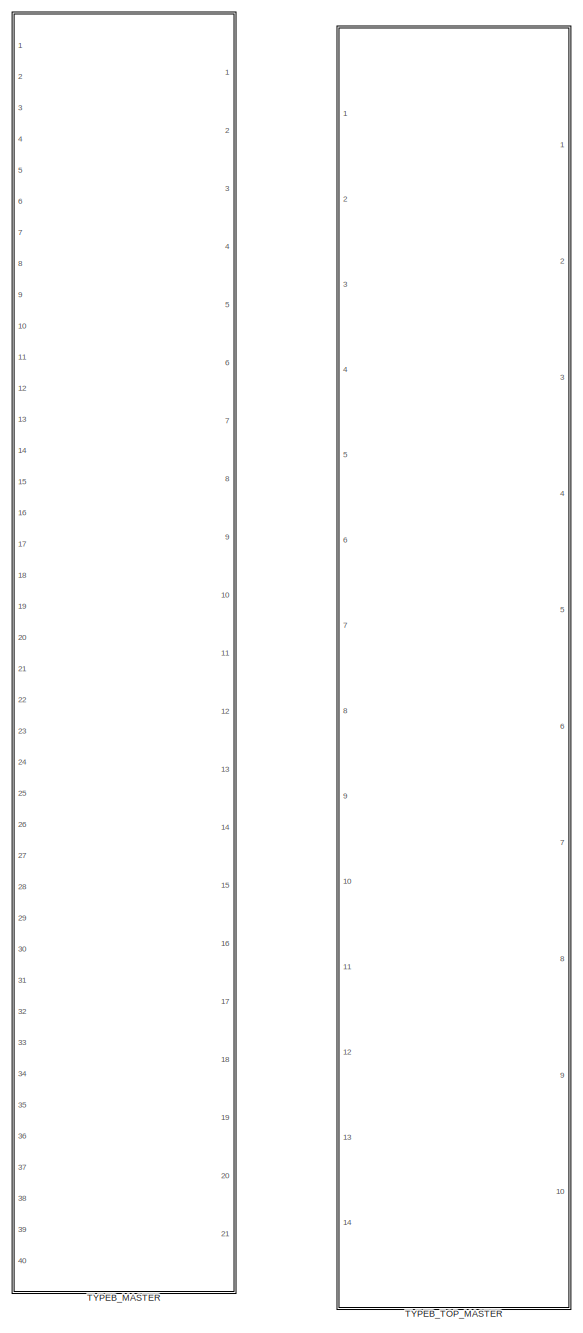
[diagram: root canvas - part 1/3, left side, full height]
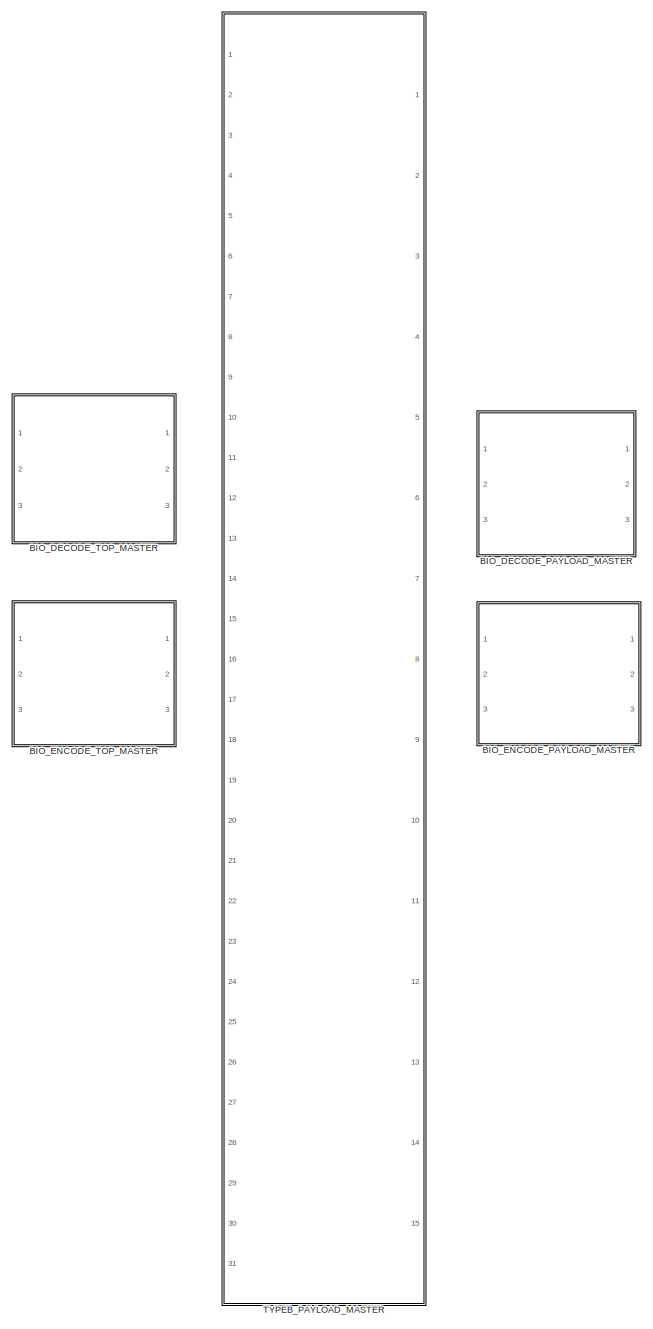
[diagram: root canvas - part 2/3, center side, full height]
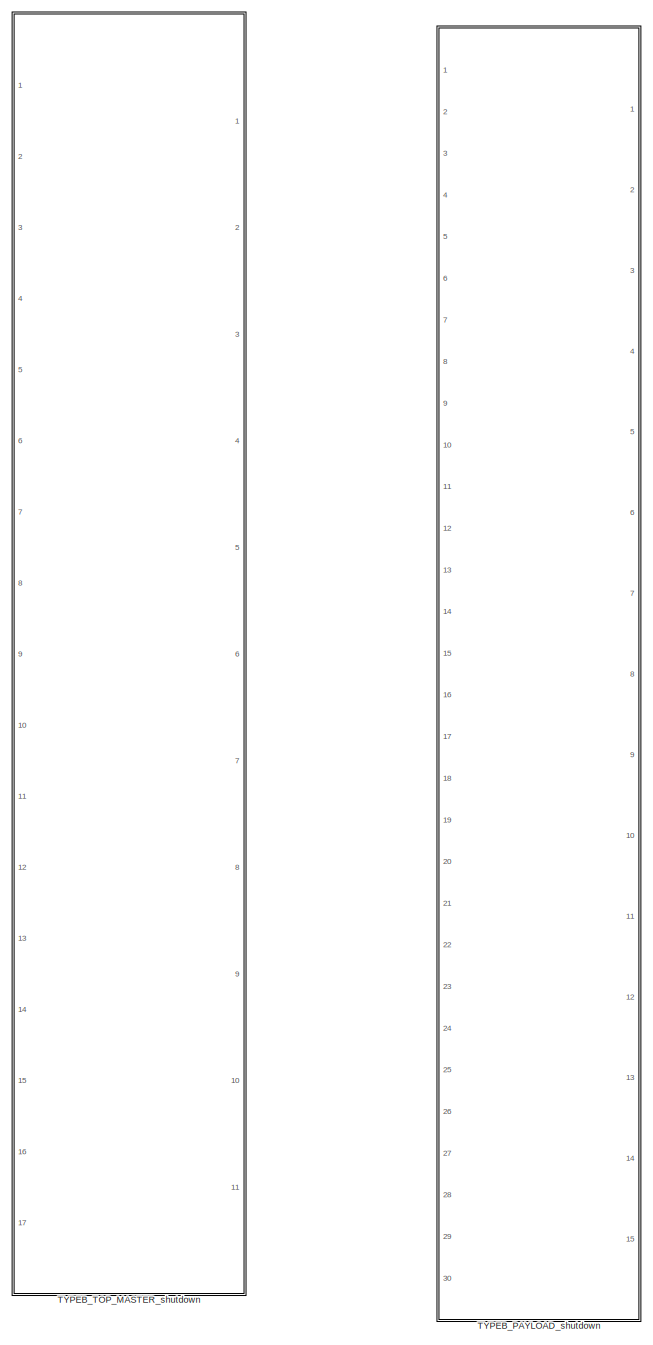
[diagram: root canvas - part 3/3, right side, full height]
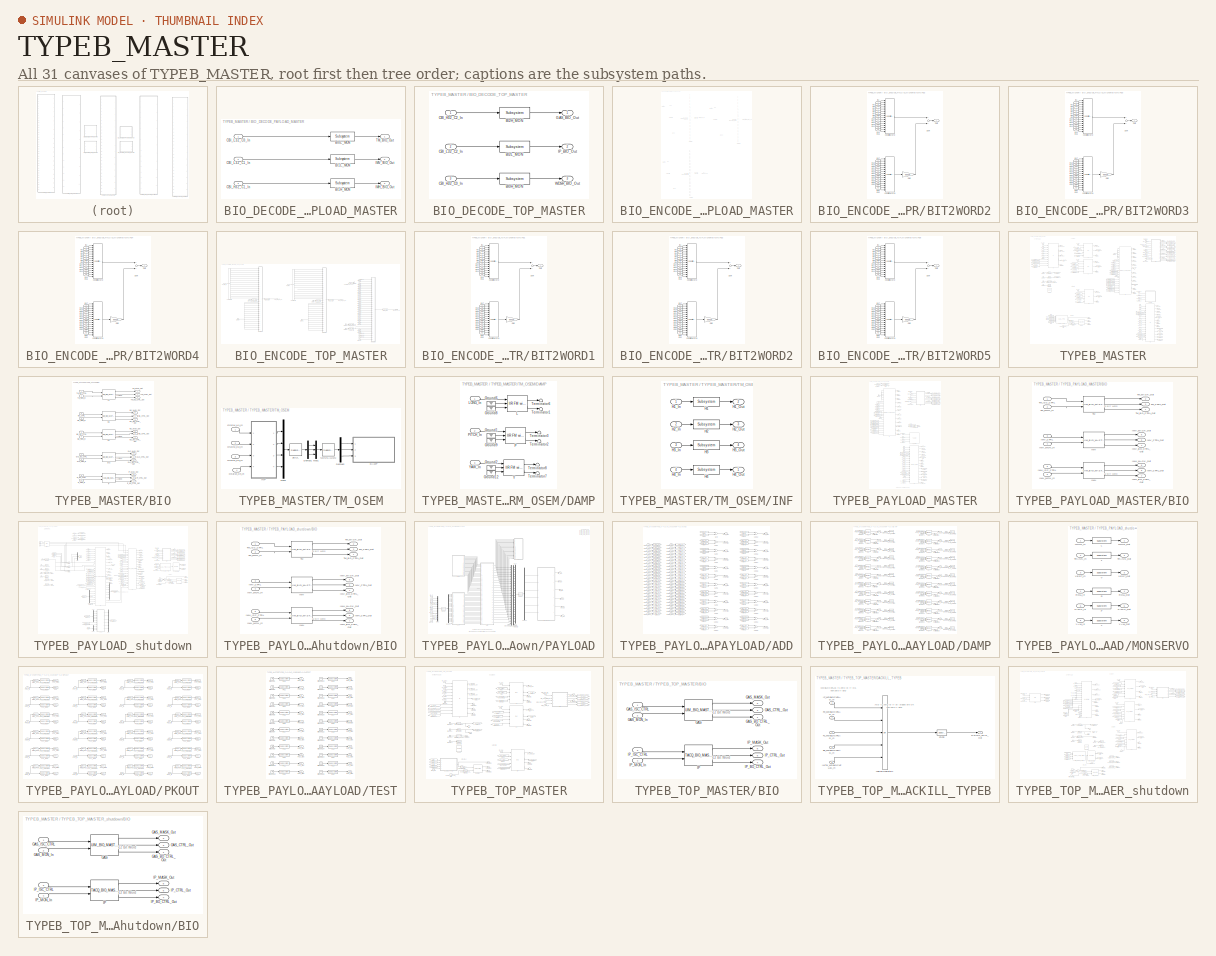
[diagram: thumbnail index - all 31 canvases of the model, root first then tree order]
MODEL TYPEB_MASTER
KIND library
BLOCK [SubSystem] BIO_DECODE_PAYLOAD_MASTER
  Ports = [3, 3]
  RequestExecContextInheritance = off
  SID = 1304
  Variant = off
BLOCK [Reference] BIO_DECODE_PAYLOAD_MASTER/BI0L_MON  REF=cdsEpicsOut/Subsystem
  AttributesFormatString = %<Tag>
  Description = Purpose:                                          \nOutput a FE signal to an EPICS channel.           \n                                                  \nOperation:                                        \nTakes input value and passes it to EPICS record.  \n                                                  \nUsage:                                            \nName the part with the desired EPICS...<+14ch>  <repeated x65 — deduplicated; at blocks: BI0L_MON, BI1H_MON, BI1L_MON, BI0H_MON, BI2H_MON, BI2L_MON, BO0L_OUT, BO1H_OUT, BO1L_OUT, BO0H_MON, BO2H_MON, BO2L_MON, DACKILL_BYPASS_TIMEMON, P01_MON, P01_RMSMON, P02_MON, +48 more>
  Ports = [1, 1]
  SID = 1308
  SourceBlock = cdsEpicsOut/Subsystem
  SourceType = SubSystem
  Tag = cdsEpicsOutput
BLOCK [Reference] BIO_DECODE_PAYLOAD_MASTER/BI1H_MON  REF=cdsEpicsOut/Subsystem
  AttributesFormatString = %<Tag>
  Ports = [1, 1]
  SID = 1310
  SourceBlock = cdsEpicsOut/Subsystem
  SourceType = SubSystem
  Tag = cdsEpicsOutput
BLOCK [Reference] BIO_DECODE_PAYLOAD_MASTER/BI1L_MON  REF=cdsEpicsOut/Subsystem
  AttributesFormatString = %<Tag>
  Ports = [1, 1]
  SID = 1309
  SourceBlock = cdsEpicsOut/Subsystem
  SourceType = SubSystem
  Tag = cdsEpicsOutput
BLOCK [Inport] BIO_DECODE_PAYLOAD_MASTER/CBI_H32_C1_In
  IconDisplay = Port number
  Port = 3
  SID = 1307
BLOCK [Inport] BIO_DECODE_PAYLOAD_MASTER/CBI_L32_C0_In
  IconDisplay = Port number
  SID = 1305
BLOCK [Inport] BIO_DECODE_PAYLOAD_MASTER/CBI_L32_C1_In
  IconDisplay = Port number
  Port = 2
  SID = 1306
BLOCK [Outport] BIO_DECODE_PAYLOAD_MASTER/IMH_BIO_Out
  IconDisplay = Port number
  Port = 3
  SID = 1313
BLOCK [Outport] BIO_DECODE_PAYLOAD_MASTER/IMV_BIO_Out
  IconDisplay = Port number
  Port = 2
  SID = 1312
BLOCK [Outport] BIO_DECODE_PAYLOAD_MASTER/TM_BIO_Out
  IconDisplay = Port number
  SID = 1311
BLOCK [SubSystem] BIO_DECODE_TOP_MASTER
  Ports = [3, 3]
  RequestExecContextInheritance = off
  SID = 1450
  Variant = off
BLOCK [Reference] BIO_DECODE_TOP_MASTER/BI0H_MON  REF=cdsEpicsOut/Subsystem
  AttributesFormatString = %<Tag>
  Ports = [1, 1]
  SID = 1594
  SourceBlock = cdsEpicsOut/Subsystem
  SourceType = SubSystem
  Tag = cdsEpicsOutput
BLOCK [Reference] BIO_DECODE_TOP_MASTER/BI2H_MON  REF=cdsEpicsOut/Subsystem
  AttributesFormatString = %<Tag>
  Ports = [1, 1]
  SID = 1453
  SourceBlock = cdsEpicsOut/Subsystem
  SourceType = SubSystem
  Tag = cdsEpicsOutput
BLOCK [Reference] BIO_DECODE_TOP_MASTER/BI2L_MON  REF=cdsEpicsOut/Subsystem
  AttributesFormatString = %<Tag>
  Ports = [1, 1]
  SID = 1454
  SourceBlock = cdsEpicsOut/Subsystem
  SourceType = SubSystem
  Tag = cdsEpicsOutput
BLOCK [Inport] BIO_DECODE_TOP_MASTER/CBI_H32_C0_In
  IconDisplay = Port number
  Port = 3
  SID = 1593
BLOCK [Inport] BIO_DECODE_TOP_MASTER/CBI_H32_C2_In
  IconDisplay = Port number
  SID = 1451
BLOCK [Inport] BIO_DECODE_TOP_MASTER/CBI_L32_C2_In
  IconDisplay = Port number
  Port = 2
  SID = 1452
BLOCK [Outport] BIO_DECODE_TOP_MASTER/GAS_BIO_Out
  IconDisplay = Port number
  SID = 1455
BLOCK [Outport] BIO_DECODE_TOP_MASTER/IP_BIO_Out
  IconDisplay = Port number
  Port = 2
  SID = 1456
BLOCK [Outport] BIO_DECODE_TOP_MASTER/WDSR_BIO_Out
  IconDisplay = Port number
  Port = 3
  SID = 1596
BLOCK [SubSystem] BIO_ENCODE_PAYLOAD_MASTER
  Ports = [3, 3]
  RequestExecContextInheritance = off
  SID = 1314
  Variant = off
BLOCK [SubSystem] BIO_ENCODE_PAYLOAD_MASTER/BIT2WORD2
  Ports = [32, 1]
  RequestExecContextInheritance = off
  SID = 1318
  Variant = off
BLOCK [Gain] BIO_ENCODE_PAYLOAD_MASTER/BIT2WORD2/Gain
  Gain = 65536
  OutDataTypeStr = Inherit: Inherit via internal rule
  ParamDataTypeStr = Inherit: Inherit via internal rule
  SID = 1351
  SaturateOnIntegerOverflow = off
BLOCK [Inport] BIO_ENCODE_PAYLOAD_MASTER/BIT2WORD2/In1
  IconDisplay = Port number
  SID = 1319
BLOCK [Inport] BIO_ENCODE_PAYLOAD_MASTER/BIT2WORD2/In10
  IconDisplay = Port number
  Port = 10
  SID = 1328
BLOCK [Inport] BIO_ENCODE_PAYLOAD_MASTER/BIT2WORD2/In11
  IconDisplay = Port number
  Port = 11
  SID = 1329
BLOCK [Inport] BIO_ENCODE_PAYLOAD_MASTER/BIT2WORD2/In12
  IconDisplay = Port number
  Port = 12
  SID = 1330
BLOCK [Inport] BIO_ENCODE_PAYLOAD_MASTER/BIT2WORD2/In13
  IconDisplay = Port number
  Port = 13
  SID = 1331
BLOCK [Inport] BIO_ENCODE_PAYLOAD_MASTER/BIT2WORD2/In14
  IconDisplay = Port number
  Port = 14
  SID = 1332
BLOCK [Inport] BIO_ENCODE_PAYLOAD_MASTER/BIT2WORD2/In15
  IconDisplay = Port number
  Port = 15
  SID = 1333
BLOCK [Inport] BIO_ENCODE_PAYLOAD_MASTER/BIT2WORD2/In16
  IconDisplay = Port number
  Port = 16
  SID = 1334
BLOCK [Inport] BIO_ENCODE_PAYLOAD_MASTER/BIT2WORD2/In17
  IconDisplay = Port number
  Port = 17
  SID = 1335
BLOCK [Inport] BIO_ENCODE_PAYLOAD_MASTER/BIT2WORD2/In18
  IconDisplay = Port number
  Port = 18
  SID = 1336
BLOCK [Inport] BIO_ENCODE_PAYLOAD_MASTER/BIT2WORD2/In19
  IconDisplay = Port number
  Port = 19
  SID = 1337
BLOCK [Inport] BIO_ENCODE_PAYLOAD_MASTER/BIT2WORD2/In2
  IconDisplay = Port number
  Port = 2
  SID = 1320
BLOCK [Inport] BIO_ENCODE_PAYLOAD_MASTER/BIT2WORD2/In20
  IconDisplay = Port number
  Port = 20
  SID = 1338
BLOCK [Inport] BIO_ENCODE_PAYLOAD_MASTER/BIT2WORD2/In21
  IconDisplay = Port number
  Port = 21
  SID = 1339
BLOCK [Inport] BIO_ENCODE_PAYLOAD_MASTER/BIT2WORD2/In22
  IconDisplay = Port number
  Port = 22
  SID = 1340
BLOCK [Inport] BIO_ENCODE_PAYLOAD_MASTER/BIT2WORD2/In23
  IconDisplay = Port number
  Port = 23
  SID = 1341
BLOCK [Inport] BIO_ENCODE_PAYLOAD_MASTER/BIT2WORD2/In24
  IconDisplay = Port number
  Port = 24
  SID = 1342
BLOCK [Inport] BIO_ENCODE_PAYLOAD_MASTER/BIT2WORD2/In25
  IconDisplay = Port number
  Port = 25
  SID = 1343
BLOCK [Inport] BIO_ENCODE_PAYLOAD_MASTER/BIT2WORD2/In26
  IconDisplay = Port number
  Port = 26
  SID = 1344
BLOCK [Inport] BIO_ENCODE_PAYLOAD_MASTER/BIT2WORD2/In27
  IconDisplay = Port number
  Port = 27
  SID = 1345
BLOCK [Inport] BIO_ENCODE_PAYLOAD_MASTER/BIT2WORD2/In28
  IconDisplay = Port number
  Port = 28
  SID = 1346
BLOCK [Inport] BIO_ENCODE_PAYLOAD_MASTER/BIT2WORD2/In29
  IconDisplay = Port number
  Port = 29
  SID = 1347
BLOCK [Inport] BIO_ENCODE_PAYLOAD_MASTER/BIT2WORD2/In3
  IconDisplay = Port number
  Port = 3
  SID = 1321
BLOCK [Inport] BIO_ENCODE_PAYLOAD_MASTER/BIT2WORD2/In30
  IconDisplay = Port number
  Port = 30
  SID = 1348
BLOCK [Inport] BIO_ENCODE_PAYLOAD_MASTER/BIT2WORD2/In31
  IconDisplay = Port number
  Port = 31
  SID = 1349
BLOCK [Inport] BIO_ENCODE_PAYLOAD_MASTER/BIT2WORD2/In32
  IconDisplay = Port number
  Port = 32
  SID = 1350
BLOCK [Inport] BIO_ENCODE_PAYLOAD_MASTER/BIT2WORD2/In4
  IconDisplay = Port number
  Port = 4
  SID = 1322
BLOCK [Inport] BIO_ENCODE_PAYLOAD_MASTER/BIT2WORD2/In5
  IconDisplay = Port number
  Port = 5
  SID = 1323
BLOCK [Inport] BIO_ENCODE_PAYLOAD_MASTER/BIT2WORD2/In6
  IconDisplay = Port number
  Port = 6
  SID = 1324
BLOCK [Inport] BIO_ENCODE_PAYLOAD_MASTER/BIT2WORD2/In7
  IconDisplay = Port number
  Port = 7
  SID = 1325
BLOCK [Inport] BIO_ENCODE_PAYLOAD_MASTER/BIT2WORD2/In8
  IconDisplay = Port number
  Port = 8
  SID = 1326
BLOCK [Inport] BIO_ENCODE_PAYLOAD_MASTER/BIT2WORD2/In9
  IconDisplay = Port number
  Port = 9
  SID = 1327
BLOCK [Outport] BIO_ENCODE_PAYLOAD_MASTER/BIT2WORD2/Out1
  IconDisplay = Port number
  SID = 1355
BLOCK [Sum] BIO_ENCODE_PAYLOAD_MASTER/BIT2WORD2/Sum
  InputSameDT = off
  OutDataTypeStr = Inherit: Inherit via internal rule
  Ports = [2, 1]
  SID = 1352
  SaturateOnIntegerOverflow = off
BLOCK [Reference] BIO_ENCODE_PAYLOAD_MASTER/BIT2WORD2/cdsBit2Word  REF=cdsBit2Word/cdsBit2Word
  AttributesFormatString = %<Tag>
  Description = Forms single 16 bit integer from 16 0/1 inputs.
  Ports = [16, 1]
  SID = 1353
  SourceBlock = cdsBit2Word/cdsBit2Word
  SourceType = SubSystem
  Tag = cdsBit2Word
BLOCK [Reference] BIO_ENCODE_PAYLOAD_MASTER/BIT2WORD2/cdsBit2Word1  REF=cdsBit2Word/cdsBit2Word
  AttributesFormatString = %<Tag>
  Description = Forms single 16 bit integer from 16 0/1 inputs.
  Ports = [16, 1]
  SID = 1354
  SourceBlock = cdsBit2Word/cdsBit2Word
  SourceType = SubSystem
  Tag = cdsBit2Word
BLOCK [SubSystem] BIO_ENCODE_PAYLOAD_MASTER/BIT2WORD3
  Ports = [32, 1]
  RequestExecContextInheritance = off
  SID = 1356
  Variant = off
BLOCK [Gain] BIO_ENCODE_PAYLOAD_MASTER/BIT2WORD3/Gain
  Gain = 65536
  OutDataTypeStr = Inherit: Inherit via internal rule
  ParamDataTypeStr = Inherit: Inherit via internal rule
  SID = 1389
  SaturateOnIntegerOverflow = off
BLOCK [Inport] BIO_ENCODE_PAYLOAD_MASTER/BIT2WORD3/In1
  IconDisplay = Port number
  SID = 1357
BLOCK [Inport] BIO_ENCODE_PAYLOAD_MASTER/BIT2WORD3/In10
  IconDisplay = Port number
  Port = 10
  SID = 1366
BLOCK [Inport] BIO_ENCODE_PAYLOAD_MASTER/BIT2WORD3/In11
  IconDisplay = Port number
  Port = 11
  SID = 1367
BLOCK [Inport] BIO_ENCODE_PAYLOAD_MASTER/BIT2WORD3/In12
  IconDisplay = Port number
  Port = 12
  SID = 1368
BLOCK [Inport] BIO_ENCODE_PAYLOAD_MASTER/BIT2WORD3/In13
  IconDisplay = Port number
  Port = 13
  SID = 1369
BLOCK [Inport] BIO_ENCODE_PAYLOAD_MASTER/BIT2WORD3/In14
  IconDisplay = Port number
  Port = 14
  SID = 1370
BLOCK [Inport] BIO_ENCODE_PAYLOAD_MASTER/BIT2WORD3/In15
  IconDisplay = Port number
  Port = 15
  SID = 1371
BLOCK [Inport] BIO_ENCODE_PAYLOAD_MASTER/BIT2WORD3/In16
  IconDisplay = Port number
  Port = 16
  SID = 1372
BLOCK [Inport] BIO_ENCODE_PAYLOAD_MASTER/BIT2WORD3/In17
  IconDisplay = Port number
  Port = 17
  SID = 1373
BLOCK [Inport] BIO_ENCODE_PAYLOAD_MASTER/BIT2WORD3/In18
  IconDisplay = Port number
  Port = 18
  SID = 1374
BLOCK [Inport] BIO_ENCODE_PAYLOAD_MASTER/BIT2WORD3/In19
  IconDisplay = Port number
  Port = 19
  SID = 1375
BLOCK [Inport] BIO_ENCODE_PAYLOAD_MASTER/BIT2WORD3/In2
  IconDisplay = Port number
  Port = 2
  SID = 1358
BLOCK [Inport] BIO_ENCODE_PAYLOAD_MASTER/BIT2WORD3/In20
  IconDisplay = Port number
  Port = 20
  SID = 1376
BLOCK [Inport] BIO_ENCODE_PAYLOAD_MASTER/BIT2WORD3/In21
  IconDisplay = Port number
  Port = 21
  SID = 1377
BLOCK [Inport] BIO_ENCODE_PAYLOAD_MASTER/BIT2WORD3/In22
  IconDisplay = Port number
  Port = 22
  SID = 1378
BLOCK [Inport] BIO_ENCODE_PAYLOAD_MASTER/BIT2WORD3/In23
  IconDisplay = Port number
  Port = 23
  SID = 1379
BLOCK [Inport] BIO_ENCODE_PAYLOAD_MASTER/BIT2WORD3/In24
  IconDisplay = Port number
  Port = 24
  SID = 1380
BLOCK [Inport] BIO_ENCODE_PAYLOAD_MASTER/BIT2WORD3/In25
  IconDisplay = Port number
  Port = 25
  SID = 1381
BLOCK [Inport] BIO_ENCODE_PAYLOAD_MASTER/BIT2WORD3/In26
  IconDisplay = Port number
  Port = 26
  SID = 1382
BLOCK [Inport] BIO_ENCODE_PAYLOAD_MASTER/BIT2WORD3/In27
  IconDisplay = Port number
  Port = 27
  SID = 1383
BLOCK [Inport] BIO_ENCODE_PAYLOAD_MASTER/BIT2WORD3/In28
  IconDisplay = Port number
  Port = 28
  SID = 1384
BLOCK [Inport] BIO_ENCODE_PAYLOAD_MASTER/BIT2WORD3/In29
  IconDisplay = Port number
  Port = 29
  SID = 1385
BLOCK [Inport] BIO_ENCODE_PAYLOAD_MASTER/BIT2WORD3/In3
  IconDisplay = Port number
  Port = 3
  SID = 1359
BLOCK [Inport] BIO_ENCODE_PAYLOAD_MASTER/BIT2WORD3/In30
  IconDisplay = Port number
  Port = 30
  SID = 1386
BLOCK [Inport] BIO_ENCODE_PAYLOAD_MASTER/BIT2WORD3/In31
  IconDisplay = Port number
  Port = 31
  SID = 1387
BLOCK [Inport] BIO_ENCODE_PAYLOAD_MASTER/BIT2WORD3/In32
  IconDisplay = Port number
  Port = 32
  SID = 1388
BLOCK [Inport] BIO_ENCODE_PAYLOAD_MASTER/BIT2WORD3/In4
  IconDisplay = Port number
  Port = 4
  SID = 1360
BLOCK [Inport] BIO_ENCODE_PAYLOAD_MASTER/BIT2WORD3/In5
  IconDisplay = Port number
  Port = 5
  SID = 1361
BLOCK [Inport] BIO_ENCODE_PAYLOAD_MASTER/BIT2WORD3/In6
  IconDisplay = Port number
  Port = 6
  SID = 1362
BLOCK [Inport] BIO_ENCODE_PAYLOAD_MASTER/BIT2WORD3/In7
  IconDisplay = Port number
  Port = 7
  SID = 1363
BLOCK [Inport] BIO_ENCODE_PAYLOAD_MASTER/BIT2WORD3/In8
  IconDisplay = Port number
  Port = 8
  SID = 1364
BLOCK [Inport] BIO_ENCODE_PAYLOAD_MASTER/BIT2WORD3/In9
  IconDisplay = Port number
  Port = 9
  SID = 1365
BLOCK [Outport] BIO_ENCODE_PAYLOAD_MASTER/BIT2WORD3/Out1
  IconDisplay = Port number
  SID = 1393
BLOCK [Sum] BIO_ENCODE_PAYLOAD_MASTER/BIT2WORD3/Sum
  InputSameDT = off
  OutDataTypeStr = Inherit: Inherit via internal rule
  Ports = [2, 1]
  SID = 1390
  SaturateOnIntegerOverflow = off
BLOCK [Reference] BIO_ENCODE_PAYLOAD_MASTER/BIT2WORD3/cdsBit2Word  REF=cdsBit2Word/cdsBit2Word
  AttributesFormatString = %<Tag>
  Description = Forms single 16 bit integer from 16 0/1 inputs.
  Ports = [16, 1]
  SID = 1391
  SourceBlock = cdsBit2Word/cdsBit2Word
  SourceType = SubSystem
  Tag = cdsBit2Word
BLOCK [Reference] BIO_ENCODE_PAYLOAD_MASTER/BIT2WORD3/cdsBit2Word1  REF=cdsBit2Word/cdsBit2Word
  AttributesFormatString = %<Tag>
  Description = Forms single 16 bit integer from 16 0/1 inputs.
  Ports = [16, 1]
  SID = 1392
  SourceBlock = cdsBit2Word/cdsBit2Word
  SourceType = SubSystem
  Tag = cdsBit2Word
BLOCK [SubSystem] BIO_ENCODE_PAYLOAD_MASTER/BIT2WORD4
  Ports = [32, 1]
  RequestExecContextInheritance = off
  SID = 1394
  Variant = off
BLOCK [Gain] BIO_ENCODE_PAYLOAD_MASTER/BIT2WORD4/Gain
  Gain = 65536
  OutDataTypeStr = Inherit: Inherit via internal rule
  ParamDataTypeStr = Inherit: Inherit via internal rule
  SID = 1427
  SaturateOnIntegerOverflow = off
BLOCK [Inport] BIO_ENCODE_PAYLOAD_MASTER/BIT2WORD4/In1
  IconDisplay = Port number
  SID = 1395
BLOCK [Inport] BIO_ENCODE_PAYLOAD_MASTER/BIT2WORD4/In10
  IconDisplay = Port number
  Port = 10
  SID = 1404
BLOCK [Inport] BIO_ENCODE_PAYLOAD_MASTER/BIT2WORD4/In11
  IconDisplay = Port number
  Port = 11
  SID = 1405
BLOCK [Inport] BIO_ENCODE_PAYLOAD_MASTER/BIT2WORD4/In12
  IconDisplay = Port number
  Port = 12
  SID = 1406
BLOCK [Inport] BIO_ENCODE_PAYLOAD_MASTER/BIT2WORD4/In13
  IconDisplay = Port number
  Port = 13
  SID = 1407
BLOCK [Inport] BIO_ENCODE_PAYLOAD_MASTER/BIT2WORD4/In14
  IconDisplay = Port number
  Port = 14
  SID = 1408
BLOCK [Inport] BIO_ENCODE_PAYLOAD_MASTER/BIT2WORD4/In15
  IconDisplay = Port number
  Port = 15
  SID = 1409
BLOCK [Inport] BIO_ENCODE_PAYLOAD_MASTER/BIT2WORD4/In16
  IconDisplay = Port number
  Port = 16
  SID = 1410
BLOCK [Inport] BIO_ENCODE_PAYLOAD_MASTER/BIT2WORD4/In17
  IconDisplay = Port number
  Port = 17
  SID = 1411
BLOCK [Inport] BIO_ENCODE_PAYLOAD_MASTER/BIT2WORD4/In18
  IconDisplay = Port number
  Port = 18
  SID = 1412
BLOCK [Inport] BIO_ENCODE_PAYLOAD_MASTER/BIT2WORD4/In19
  IconDisplay = Port number
  Port = 19
  SID = 1413
BLOCK [Inport] BIO_ENCODE_PAYLOAD_MASTER/BIT2WORD4/In2
  IconDisplay = Port number
  Port = 2
  SID = 1396
BLOCK [Inport] BIO_ENCODE_PAYLOAD_MASTER/BIT2WORD4/In20
  IconDisplay = Port number
  Port = 20
  SID = 1414
BLOCK [Inport] BIO_ENCODE_PAYLOAD_MASTER/BIT2WORD4/In21
  IconDisplay = Port number
  Port = 21
  SID = 1415
BLOCK [Inport] BIO_ENCODE_PAYLOAD_MASTER/BIT2WORD4/In22
  IconDisplay = Port number
  Port = 22
  SID = 1416
BLOCK [Inport] BIO_ENCODE_PAYLOAD_MASTER/BIT2WORD4/In23
  IconDisplay = Port number
  Port = 23
  SID = 1417
BLOCK [Inport] BIO_ENCODE_PAYLOAD_MASTER/BIT2WORD4/In24
  IconDisplay = Port number
  Port = 24
  SID = 1418
BLOCK [Inport] BIO_ENCODE_PAYLOAD_MASTER/BIT2WORD4/In25
  IconDisplay = Port number
  Port = 25
  SID = 1419
BLOCK [Inport] BIO_ENCODE_PAYLOAD_MASTER/BIT2WORD4/In26
  IconDisplay = Port number
  Port = 26
  SID = 1420
BLOCK [Inport] BIO_ENCODE_PAYLOAD_MASTER/BIT2WORD4/In27
  IconDisplay = Port number
  Port = 27
  SID = 1421
BLOCK [Inport] BIO_ENCODE_PAYLOAD_MASTER/BIT2WORD4/In28
  IconDisplay = Port number
  Port = 28
  SID = 1422
BLOCK [Inport] BIO_ENCODE_PAYLOAD_MASTER/BIT2WORD4/In29
  IconDisplay = Port number
  Port = 29
  SID = 1423
BLOCK [Inport] BIO_ENCODE_PAYLOAD_MASTER/BIT2WORD4/In3
  IconDisplay = Port number
  Port = 3
  SID = 1397
BLOCK [Inport] BIO_ENCODE_PAYLOAD_MASTER/BIT2WORD4/In30
  IconDisplay = Port number
  Port = 30
  SID = 1424
BLOCK [Inport] BIO_ENCODE_PAYLOAD_MASTER/BIT2WORD4/In31
  IconDisplay = Port number
  Port = 31
  SID = 1425
BLOCK [Inport] BIO_ENCODE_PAYLOAD_MASTER/BIT2WORD4/In32
  IconDisplay = Port number
  Port = 32
  SID = 1426
BLOCK [Inport] BIO_ENCODE_PAYLOAD_MASTER/BIT2WORD4/In4
  IconDisplay = Port number
  Port = 4
  SID = 1398
BLOCK [Inport] BIO_ENCODE_PAYLOAD_MASTER/BIT2WORD4/In5
  IconDisplay = Port number
  Port = 5
  SID = 1399
BLOCK [Inport] BIO_ENCODE_PAYLOAD_MASTER/BIT2WORD4/In6
  IconDisplay = Port number
  Port = 6
  SID = 1400
BLOCK [Inport] BIO_ENCODE_PAYLOAD_MASTER/BIT2WORD4/In7
  IconDisplay = Port number
  Port = 7
  SID = 1401
BLOCK [Inport] BIO_ENCODE_PAYLOAD_MASTER/BIT2WORD4/In8
  IconDisplay = Port number
  Port = 8
  SID = 1402
BLOCK [Inport] BIO_ENCODE_PAYLOAD_MASTER/BIT2WORD4/In9
  IconDisplay = Port number
  Port = 9
  SID = 1403
BLOCK [Outport] BIO_ENCODE_PAYLOAD_MASTER/BIT2WORD4/Out1
  IconDisplay = Port number
  SID = 1431
BLOCK [Sum] BIO_ENCODE_PAYLOAD_MASTER/BIT2WORD4/Sum
  InputSameDT = off
  OutDataTypeStr = Inherit: Inherit via internal rule
  Ports = [2, 1]
  SID = 1428
  SaturateOnIntegerOverflow = off
BLOCK [Reference] BIO_ENCODE_PAYLOAD_MASTER/BIT2WORD4/cdsBit2Word  REF=cdsBit2Word/cdsBit2Word
  AttributesFormatString = %<Tag>
  Description = Forms single 16 bit integer from 16 0/1 inputs.
  Ports = [16, 1]
  SID = 1429
  SourceBlock = cdsBit2Word/cdsBit2Word
  SourceType = SubSystem
  Tag = cdsBit2Word
BLOCK [Reference] BIO_ENCODE_PAYLOAD_MASTER/BIT2WORD4/cdsBit2Word1  REF=cdsBit2Word/cdsBit2Word
  AttributesFormatString = %<Tag>
  Description = Forms single 16 bit integer from 16 0/1 inputs.
  Ports = [16, 1]
  SID = 1430
  SourceBlock = cdsBit2Word/cdsBit2Word
  SourceType = SubSystem
  Tag = cdsBit2Word
BLOCK [Reference] BIO_ENCODE_PAYLOAD_MASTER/BO0L_OUT  REF=cdsEpicsOut/Subsystem
  AttributesFormatString = %<Tag>
  Ports = [1, 1]
  SID = 1432
  SourceBlock = cdsEpicsOut/Subsystem
  SourceType = SubSystem
  Tag = cdsEpicsOutput
BLOCK [Reference] BIO_ENCODE_PAYLOAD_MASTER/BO1H_OUT  REF=cdsEpicsOut/Subsystem
  AttributesFormatString = %<Tag>
  Ports = [1, 1]
  SID = 1434
  SourceBlock = cdsEpicsOut/Subsystem
  SourceType = SubSystem
  Tag = cdsEpicsOutput
BLOCK [Reference] BIO_ENCODE_PAYLOAD_MASTER/BO1L_OUT  REF=cdsEpicsOut/Subsystem
  AttributesFormatString = %<Tag>
  Ports = [1, 1]
  SID = 1433
  SourceBlock = cdsEpicsOut/Subsystem
  SourceType = SubSystem
  Tag = cdsEpicsOutput
BLOCK [Outport] BIO_ENCODE_PAYLOAD_MASTER/CBO_H32_C1_Out
  IconDisplay = Port number
  Port = 3
  SID = 1449
BLOCK [Outport] BIO_ENCODE_PAYLOAD_MASTER/CBO_L32_C0_Out
  IconDisplay = Port number
  SID = 1447
BLOCK [Outport] BIO_ENCODE_PAYLOAD_MASTER/CBO_L32_C1_Out
  IconDisplay = Port number
  Port = 2
  SID = 1448
BLOCK [Ground] BIO_ENCODE_PAYLOAD_MASTER/Ground1
  SID = 1435
BLOCK [Ground] BIO_ENCODE_PAYLOAD_MASTER/Ground2
  SID = 1436
BLOCK [Ground] BIO_ENCODE_PAYLOAD_MASTER/Ground26
  SID = 1437
BLOCK [Ground] BIO_ENCODE_PAYLOAD_MASTER/Ground3
  SID = 1438
BLOCK [Ground] BIO_ENCODE_PAYLOAD_MASTER/Ground66
  SID = 1439
BLOCK [Ground] BIO_ENCODE_PAYLOAD_MASTER/Ground67
  SID = 1440
BLOCK [Inport] BIO_ENCODE_PAYLOAD_MASTER/IMH_BIO_In
  IconDisplay = Port number
  Port = 3
  SID = 1317
BLOCK [Reference] BIO_ENCODE_PAYLOAD_MASTER/IMH_WD_RSET  REF=cdsEpicsBinIn/Subsystem
  AttributesFormatString = %<Tag>
  Description = Purpose:                                                                            \nCreate an EPICS binary (0 or 1) input channel to the FE realtime controls.          \n                                                                                    \nOperation:                                                                          \nOutputs value from an EPICS ai record. Value is binary i...<+252ch>  <repeated x15 — deduplicated; at blocks: IMH_WD_RSET, IMV_WD_RSET, TM_WD_RSET, GAS_WD_RSET, IP_WD_RSET, STEP_GAS_SW, STEP_IP_SW, COMMISH_STATUS, MASTERSWITCH, HIER_SWITCH>
  Ports = [1, 1]
  SID = 1441
  SourceBlock = cdsEpicsBinIn/Subsystem
  SourceType = SubSystem
  Tag = cdsEpicsBinIn
BLOCK [Inport] BIO_ENCODE_PAYLOAD_MASTER/IMV_BIO_In
  IconDisplay = Port number
  Port = 2
  SID = 1316
BLOCK [Reference] BIO_ENCODE_PAYLOAD_MASTER/IMV_WD_RSET  REF=cdsEpicsBinIn/Subsystem
  AttributesFormatString = %<Tag>
  Ports = [1, 1]
  SID = 1442
  SourceBlock = cdsEpicsBinIn/Subsystem
  SourceType = SubSystem
  Tag = cdsEpicsBinIn
BLOCK [Inport] BIO_ENCODE_PAYLOAD_MASTER/TM_BIO_In
  IconDisplay = Port number
  SID = 1315
BLOCK [Reference] BIO_ENCODE_PAYLOAD_MASTER/TM_WD_RSET  REF=cdsEpicsBinIn/Subsystem
  AttributesFormatString = %<Tag>
  Ports = [1, 1]
  SID = 1443
  SourceBlock = cdsEpicsBinIn/Subsystem
  SourceType = SubSystem
  Tag = cdsEpicsBinIn
BLOCK [Reference] BIO_ENCODE_PAYLOAD_MASTER/cdsWord2Bit  REF=cdsWord2Bit/cdsWord2Bit
  AttributesFormatString = cdsWord2Bit
  Description = Generate 16 0/1 outputs from single 16-bit integer input
  Ports = [1, 16]
  SID = 1444
  SourceBlock = cdsWord2Bit/cdsWord2Bit
  SourceType = SubSystem
  Tag = cdsWord2Bit
BLOCK [Reference] BIO_ENCODE_PAYLOAD_MASTER/cdsWord2Bit1  REF=cdsWord2Bit/cdsWord2Bit
  AttributesFormatString = cdsWord2Bit
  Description = Generate 16 0/1 outputs from single 16-bit integer input
  Ports = [1, 16]
  SID = 1445
  SourceBlock = cdsWord2Bit/cdsWord2Bit
  SourceType = SubSystem
  Tag = cdsWord2Bit
BLOCK [Reference] BIO_ENCODE_PAYLOAD_MASTER/cdsWord2Bit2  REF=cdsWord2Bit/cdsWord2Bit
  AttributesFormatString = cdsWord2Bit
  Description = Generate 16 0/1 outputs from single 16-bit integer input
  Ports = [1, 16]
  SID = 1446
  SourceBlock = cdsWord2Bit/cdsWord2Bit
  SourceType = SubSystem
  Tag = cdsWord2Bit
BLOCK [SubSystem] BIO_ENCODE_TOP_MASTER
  Ports = [3, 3]
  RequestExecContextInheritance = off
  SID = 1457
  Variant = off
BLOCK [SubSystem] BIO_ENCODE_TOP_MASTER/BIT2WORD1
  Ports = [32, 1]
  RequestExecContextInheritance = off
  SID = 1460
  Variant = off
BLOCK [Gain] BIO_ENCODE_TOP_MASTER/BIT2WORD1/Gain
  Gain = 65536
  OutDataTypeStr = Inherit: Inherit via internal rule
  ParamDataTypeStr = Inherit: Inherit via internal rule
  SID = 1493
  SaturateOnIntegerOverflow = off
BLOCK [Inport] BIO_ENCODE_TOP_MASTER/BIT2WORD1/In1
  IconDisplay = Port number
  SID = 1461
BLOCK [Inport] BIO_ENCODE_TOP_MASTER/BIT2WORD1/In10
  IconDisplay = Port number
  Port = 10
  SID = 1470
BLOCK [Inport] BIO_ENCODE_TOP_MASTER/BIT2WORD1/In11
  IconDisplay = Port number
  Port = 11
  SID = 1471
BLOCK [Inport] BIO_ENCODE_TOP_MASTER/BIT2WORD1/In12
  IconDisplay = Port number
  Port = 12
  SID = 1472
BLOCK [Inport] BIO_ENCODE_TOP_MASTER/BIT2WORD1/In13
  IconDisplay = Port number
  Port = 13
  SID = 1473
BLOCK [Inport] BIO_ENCODE_TOP_MASTER/BIT2WORD1/In14
  IconDisplay = Port number
  Port = 14
  SID = 1474
BLOCK [Inport] BIO_ENCODE_TOP_MASTER/BIT2WORD1/In15
  IconDisplay = Port number
  Port = 15
  SID = 1475
BLOCK [Inport] BIO_ENCODE_TOP_MASTER/BIT2WORD1/In16
  IconDisplay = Port number
  Port = 16
  SID = 1476
BLOCK [Inport] BIO_ENCODE_TOP_MASTER/BIT2WORD1/In17
  IconDisplay = Port number
  Port = 17
  SID = 1477
BLOCK [Inport] BIO_ENCODE_TOP_MASTER/BIT2WORD1/In18
  IconDisplay = Port number
  Port = 18
  SID = 1478
BLOCK [Inport] BIO_ENCODE_TOP_MASTER/BIT2WORD1/In19
  IconDisplay = Port number
  Port = 19
  SID = 1479
BLOCK [Inport] BIO_ENCODE_TOP_MASTER/BIT2WORD1/In2
  IconDisplay = Port number
  Port = 2
  SID = 1462
BLOCK [Inport] BIO_ENCODE_TOP_MASTER/BIT2WORD1/In20
  IconDisplay = Port number
  Port = 20
  SID = 1480
BLOCK [Inport] BIO_ENCODE_TOP_MASTER/BIT2WORD1/In21
  IconDisplay = Port number
  Port = 21
  SID = 1481
BLOCK [Inport] BIO_ENCODE_TOP_MASTER/BIT2WORD1/In22
  IconDisplay = Port number
  Port = 22
  SID = 1482
BLOCK [Inport] BIO_ENCODE_TOP_MASTER/BIT2WORD1/In23
  IconDisplay = Port number
  Port = 23
  SID = 1483
BLOCK [Inport] BIO_ENCODE_TOP_MASTER/BIT2WORD1/In24
  IconDisplay = Port number
  Port = 24
  SID = 1484
BLOCK [Inport] BIO_ENCODE_TOP_MASTER/BIT2WORD1/In25
  IconDisplay = Port number
  Port = 25
  SID = 1485
BLOCK [Inport] BIO_ENCODE_TOP_MASTER/BIT2WORD1/In26
  IconDisplay = Port number
  Port = 26
  SID = 1486
BLOCK [Inport] BIO_ENCODE_TOP_MASTER/BIT2WORD1/In27
  IconDisplay = Port number
  Port = 27
  SID = 1487
BLOCK [Inport] BIO_ENCODE_TOP_MASTER/BIT2WORD1/In28
  IconDisplay = Port number
  Port = 28
  SID = 1488
BLOCK [Inport] BIO_ENCODE_TOP_MASTER/BIT2WORD1/In29
  IconDisplay = Port number
  Port = 29
  SID = 1489
BLOCK [Inport] BIO_ENCODE_TOP_MASTER/BIT2WORD1/In3
  IconDisplay = Port number
  Port = 3
  SID = 1463
BLOCK [Inport] BIO_ENCODE_TOP_MASTER/BIT2WORD1/In30
  IconDisplay = Port number
  Port = 30
  SID = 1490
BLOCK [Inport] BIO_ENCODE_TOP_MASTER/BIT2WORD1/In31
  IconDisplay = Port number
  Port = 31
  SID = 1491
BLOCK [Inport] BIO_ENCODE_TOP_MASTER/BIT2WORD1/In32
  IconDisplay = Port number
  Port = 32
  SID = 1492
BLOCK [Inport] BIO_ENCODE_TOP_MASTER/BIT2WORD1/In4
  IconDisplay = Port number
  Port = 4
  SID = 1464
BLOCK [Inport] BIO_ENCODE_TOP_MASTER/BIT2WORD1/In5
  IconDisplay = Port number
  Port = 5
  SID = 1465
BLOCK [Inport] BIO_ENCODE_TOP_MASTER/BIT2WORD1/In6
  IconDisplay = Port number
  Port = 6
  SID = 1466
BLOCK [Inport] BIO_ENCODE_TOP_MASTER/BIT2WORD1/In7
  IconDisplay = Port number
  Port = 7
  SID = 1467
BLOCK [Inport] BIO_ENCODE_TOP_MASTER/BIT2WORD1/In8
  IconDisplay = Port number
  Port = 8
  SID = 1468
BLOCK [Inport] BIO_ENCODE_TOP_MASTER/BIT2WORD1/In9
  IconDisplay = Port number
  Port = 9
  SID = 1469
BLOCK [Outport] BIO_ENCODE_TOP_MASTER/BIT2WORD1/Out1
  IconDisplay = Port number
  SID = 1497
BLOCK [Sum] BIO_ENCODE_TOP_MASTER/BIT2WORD1/Sum
  InputSameDT = off
  OutDataTypeStr = Inherit: Inherit via internal rule
  Ports = [2, 1]
  SID = 1494
  SaturateOnIntegerOverflow = off
BLOCK [Reference] BIO_ENCODE_TOP_MASTER/BIT2WORD1/cdsBit2Word  REF=cdsBit2Word/cdsBit2Word
  AttributesFormatString = %<Tag>
  Description = Forms single 16 bit integer from 16 0/1 inputs.
  Ports = [16, 1]
  SID = 1495
  SourceBlock = cdsBit2Word/cdsBit2Word
  SourceType = SubSystem
  Tag = cdsBit2Word
BLOCK [Reference] BIO_ENCODE_TOP_MASTER/BIT2WORD1/cdsBit2Word1  REF=cdsBit2Word/cdsBit2Word
  AttributesFormatString = %<Tag>
  Description = Forms single 16 bit integer from 16 0/1 inputs.
  Ports = [16, 1]
  SID = 1496
  SourceBlock = cdsBit2Word/cdsBit2Word
  SourceType = SubSystem
  Tag = cdsBit2Word
BLOCK [SubSystem] BIO_ENCODE_TOP_MASTER/BIT2WORD2
  Ports = [32, 1]
  RequestExecContextInheritance = off
  SID = 1600
  Variant = off
BLOCK [Gain] BIO_ENCODE_TOP_MASTER/BIT2WORD2/Gain
  Gain = 65536
  OutDataTypeStr = Inherit: Inherit via internal rule
  ParamDataTypeStr = Inherit: Inherit via internal rule
  SID = 1633
  SaturateOnIntegerOverflow = off
BLOCK [Inport] BIO_ENCODE_TOP_MASTER/BIT2WORD2/In1
  IconDisplay = Port number
  SID = 1601
BLOCK [Inport] BIO_ENCODE_TOP_MASTER/BIT2WORD2/In10
  IconDisplay = Port number
  Port = 10
  SID = 1610
BLOCK [Inport] BIO_ENCODE_TOP_MASTER/BIT2WORD2/In11
  IconDisplay = Port number
  Port = 11
  SID = 1611
BLOCK [Inport] BIO_ENCODE_TOP_MASTER/BIT2WORD2/In12
  IconDisplay = Port number
  Port = 12
  SID = 1612
BLOCK [Inport] BIO_ENCODE_TOP_MASTER/BIT2WORD2/In13
  IconDisplay = Port number
  Port = 13
  SID = 1613
BLOCK [Inport] BIO_ENCODE_TOP_MASTER/BIT2WORD2/In14
  IconDisplay = Port number
  Port = 14
  SID = 1614
BLOCK [Inport] BIO_ENCODE_TOP_MASTER/BIT2WORD2/In15
  IconDisplay = Port number
  Port = 15
  SID = 1615
BLOCK [Inport] BIO_ENCODE_TOP_MASTER/BIT2WORD2/In16
  IconDisplay = Port number
  Port = 16
  SID = 1616
BLOCK [Inport] BIO_ENCODE_TOP_MASTER/BIT2WORD2/In17
  IconDisplay = Port number
  Port = 17
  SID = 1617
BLOCK [Inport] BIO_ENCODE_TOP_MASTER/BIT2WORD2/In18
  IconDisplay = Port number
  Port = 18
  SID = 1618
BLOCK [Inport] BIO_ENCODE_TOP_MASTER/BIT2WORD2/In19
  IconDisplay = Port number
  Port = 19
  SID = 1619
BLOCK [Inport] BIO_ENCODE_TOP_MASTER/BIT2WORD2/In2
  IconDisplay = Port number
  Port = 2
  SID = 1602
BLOCK [Inport] BIO_ENCODE_TOP_MASTER/BIT2WORD2/In20
  IconDisplay = Port number
  Port = 20
  SID = 1620
BLOCK [Inport] BIO_ENCODE_TOP_MASTER/BIT2WORD2/In21
  IconDisplay = Port number
  Port = 21
  SID = 1621
BLOCK [Inport] BIO_ENCODE_TOP_MASTER/BIT2WORD2/In22
  IconDisplay = Port number
  Port = 22
  SID = 1622
BLOCK [Inport] BIO_ENCODE_TOP_MASTER/BIT2WORD2/In23
  IconDisplay = Port number
  Port = 23
  SID = 1623
BLOCK [Inport] BIO_ENCODE_TOP_MASTER/BIT2WORD2/In24
  IconDisplay = Port number
  Port = 24
  SID = 1624
BLOCK [Inport] BIO_ENCODE_TOP_MASTER/BIT2WORD2/In25
  IconDisplay = Port number
  Port = 25
  SID = 1625
BLOCK [Inport] BIO_ENCODE_TOP_MASTER/BIT2WORD2/In26
  IconDisplay = Port number
  Port = 26
  SID = 1626
BLOCK [Inport] BIO_ENCODE_TOP_MASTER/BIT2WORD2/In27
  IconDisplay = Port number
  Port = 27
  SID = 1627
BLOCK [Inport] BIO_ENCODE_TOP_MASTER/BIT2WORD2/In28
  IconDisplay = Port number
  Port = 28
  SID = 1628
BLOCK [Inport] BIO_ENCODE_TOP_MASTER/BIT2WORD2/In29
  IconDisplay = Port number
  Port = 29
  SID = 1629
BLOCK [Inport] BIO_ENCODE_TOP_MASTER/BIT2WORD2/In3
  IconDisplay = Port number
  Port = 3
  SID = 1603
BLOCK [Inport] BIO_ENCODE_TOP_MASTER/BIT2WORD2/In30
  IconDisplay = Port number
  Port = 30
  SID = 1630
BLOCK [Inport] BIO_ENCODE_TOP_MASTER/BIT2WORD2/In31
  IconDisplay = Port number
  Port = 31
  SID = 1631
BLOCK [Inport] BIO_ENCODE_TOP_MASTER/BIT2WORD2/In32
  IconDisplay = Port number
  Port = 32
  SID = 1632
BLOCK [Inport] BIO_ENCODE_TOP_MASTER/BIT2WORD2/In4
  IconDisplay = Port number
  Port = 4
  SID = 1604
BLOCK [Inport] BIO_ENCODE_TOP_MASTER/BIT2WORD2/In5
  IconDisplay = Port number
  Port = 5
  SID = 1605
BLOCK [Inport] BIO_ENCODE_TOP_MASTER/BIT2WORD2/In6
  IconDisplay = Port number
  Port = 6
  SID = 1606
BLOCK [Inport] BIO_ENCODE_TOP_MASTER/BIT2WORD2/In7
  IconDisplay = Port number
  Port = 7
  SID = 1607
BLOCK [Inport] BIO_ENCODE_TOP_MASTER/BIT2WORD2/In8
  IconDisplay = Port number
  Port = 8
  SID = 1608
BLOCK [Inport] BIO_ENCODE_TOP_MASTER/BIT2WORD2/In9
  IconDisplay = Port number
  Port = 9
  SID = 1609
BLOCK [Outport] BIO_ENCODE_TOP_MASTER/BIT2WORD2/Out1
  IconDisplay = Port number
  SID = 1637
BLOCK [Sum] BIO_ENCODE_TOP_MASTER/BIT2WORD2/Sum
  InputSameDT = off
  OutDataTypeStr = Inherit: Inherit via internal rule
  Ports = [2, 1]
  SID = 1634
  SaturateOnIntegerOverflow = off
BLOCK [Reference] BIO_ENCODE_TOP_MASTER/BIT2WORD2/cdsBit2Word  REF=cdsBit2Word/cdsBit2Word
  AttributesFormatString = %<Tag>
  Description = Forms single 16 bit integer from 16 0/1 inputs.
  Ports = [16, 1]
  SID = 1635
  SourceBlock = cdsBit2Word/cdsBit2Word
  SourceType = SubSystem
  Tag = cdsBit2Word
BLOCK [Reference] BIO_ENCODE_TOP_MASTER/BIT2WORD2/cdsBit2Word1  REF=cdsBit2Word/cdsBit2Word
  AttributesFormatString = %<Tag>
  Description = Forms single 16 bit integer from 16 0/1 inputs.
  Ports = [16, 1]
  SID = 1636
  SourceBlock = cdsBit2Word/cdsBit2Word
  SourceType = SubSystem
  Tag = cdsBit2Word
BLOCK [SubSystem] BIO_ENCODE_TOP_MASTER/BIT2WORD5
  Ports = [32, 1]
  RequestExecContextInheritance = off
  SID = 1498
  Variant = off
BLOCK [Gain] BIO_ENCODE_TOP_MASTER/BIT2WORD5/Gain
  Gain = 65536
  OutDataTypeStr = Inherit: Inherit via internal rule
  ParamDataTypeStr = Inherit: Inherit via internal rule
  SID = 1531
  SaturateOnIntegerOverflow = off
BLOCK [Inport] BIO_ENCODE_TOP_MASTER/BIT2WORD5/In1
  IconDisplay = Port number
  SID = 1499
BLOCK [Inport] BIO_ENCODE_TOP_MASTER/BIT2WORD5/In10
  IconDisplay = Port number
  Port = 10
  SID = 1508
BLOCK [Inport] BIO_ENCODE_TOP_MASTER/BIT2WORD5/In11
  IconDisplay = Port number
  Port = 11
  SID = 1509
BLOCK [Inport] BIO_ENCODE_TOP_MASTER/BIT2WORD5/In12
  IconDisplay = Port number
  Port = 12
  SID = 1510
BLOCK [Inport] BIO_ENCODE_TOP_MASTER/BIT2WORD5/In13
  IconDisplay = Port number
  Port = 13
  SID = 1511
BLOCK [Inport] BIO_ENCODE_TOP_MASTER/BIT2WORD5/In14
  IconDisplay = Port number
  Port = 14
  SID = 1512
BLOCK [Inport] BIO_ENCODE_TOP_MASTER/BIT2WORD5/In15
  IconDisplay = Port number
  Port = 15
  SID = 1513
BLOCK [Inport] BIO_ENCODE_TOP_MASTER/BIT2WORD5/In16
  IconDisplay = Port number
  Port = 16
  SID = 1514
BLOCK [Inport] BIO_ENCODE_TOP_MASTER/BIT2WORD5/In17
  IconDisplay = Port number
  Port = 17
  SID = 1515
BLOCK [Inport] BIO_ENCODE_TOP_MASTER/BIT2WORD5/In18
  IconDisplay = Port number
  Port = 18
  SID = 1516
BLOCK [Inport] BIO_ENCODE_TOP_MASTER/BIT2WORD5/In19
  IconDisplay = Port number
  Port = 19
  SID = 1517
BLOCK [Inport] BIO_ENCODE_TOP_MASTER/BIT2WORD5/In2
  IconDisplay = Port number
  Port = 2
  SID = 1500
BLOCK [Inport] BIO_ENCODE_TOP_MASTER/BIT2WORD5/In20
  IconDisplay = Port number
  Port = 20
  SID = 1518
BLOCK [Inport] BIO_ENCODE_TOP_MASTER/BIT2WORD5/In21
  IconDisplay = Port number
  Port = 21
  SID = 1519
BLOCK [Inport] BIO_ENCODE_TOP_MASTER/BIT2WORD5/In22
  IconDisplay = Port number
  Port = 22
  SID = 1520
BLOCK [Inport] BIO_ENCODE_TOP_MASTER/BIT2WORD5/In23
  IconDisplay = Port number
  Port = 23
  SID = 1521
BLOCK [Inport] BIO_ENCODE_TOP_MASTER/BIT2WORD5/In24
  IconDisplay = Port number
  Port = 24
  SID = 1522
BLOCK [Inport] BIO_ENCODE_TOP_MASTER/BIT2WORD5/In25
  IconDisplay = Port number
  Port = 25
  SID = 1523
BLOCK [Inport] BIO_ENCODE_TOP_MASTER/BIT2WORD5/In26
  IconDisplay = Port number
  Port = 26
  SID = 1524
BLOCK [Inport] BIO_ENCODE_TOP_MASTER/BIT2WORD5/In27
  IconDisplay = Port number
  Port = 27
  SID = 1525
BLOCK [Inport] BIO_ENCODE_TOP_MASTER/BIT2WORD5/In28
  IconDisplay = Port number
  Port = 28
  SID = 1526
BLOCK [Inport] BIO_ENCODE_TOP_MASTER/BIT2WORD5/In29
  IconDisplay = Port number
  Port = 29
  SID = 1527
BLOCK [Inport] BIO_ENCODE_TOP_MASTER/BIT2WORD5/In3
  IconDisplay = Port number
  Port = 3
  SID = 1501
BLOCK [Inport] BIO_ENCODE_TOP_MASTER/BIT2WORD5/In30
  IconDisplay = Port number
  Port = 30
  SID = 1528
BLOCK [Inport] BIO_ENCODE_TOP_MASTER/BIT2WORD5/In31
  IconDisplay = Port number
  Port = 31
  SID = 1529
BLOCK [Inport] BIO_ENCODE_TOP_MASTER/BIT2WORD5/In32
  IconDisplay = Port number
  Port = 32
  SID = 1530
BLOCK [Inport] BIO_ENCODE_TOP_MASTER/BIT2WORD5/In4
  IconDisplay = Port number
  Port = 4
  SID = 1502
BLOCK [Inport] BIO_ENCODE_TOP_MASTER/BIT2WORD5/In5
  IconDisplay = Port number
  Port = 5
  SID = 1503
BLOCK [Inport] BIO_ENCODE_TOP_MASTER/BIT2WORD5/In6
  IconDisplay = Port number
  Port = 6
  SID = 1504
BLOCK [Inport] BIO_ENCODE_TOP_MASTER/BIT2WORD5/In7
  IconDisplay = Port number
  Port = 7
  SID = 1505
BLOCK [Inport] BIO_ENCODE_TOP_MASTER/BIT2WORD5/In8
  IconDisplay = Port number
  Port = 8
  SID = 1506
BLOCK [Inport] BIO_ENCODE_TOP_MASTER/BIT2WORD5/In9
  IconDisplay = Port number
  Port = 9
  SID = 1507
BLOCK [Outport] BIO_ENCODE_TOP_MASTER/BIT2WORD5/Out1
  IconDisplay = Port number
  SID = 1535
BLOCK [Sum] BIO_ENCODE_TOP_MASTER/BIT2WORD5/Sum
  InputSameDT = off
  OutDataTypeStr = Inherit: Inherit via internal rule
  Ports = [2, 1]
  SID = 1532
  SaturateOnIntegerOverflow = off
BLOCK [Reference] BIO_ENCODE_TOP_MASTER/BIT2WORD5/cdsBit2Word  REF=cdsBit2Word/cdsBit2Word
  AttributesFormatString = %<Tag>
  Description = Forms single 16 bit integer from 16 0/1 inputs.
  Ports = [16, 1]
  SID = 1533
  SourceBlock = cdsBit2Word/cdsBit2Word
  SourceType = SubSystem
  Tag = cdsBit2Word
BLOCK [Reference] BIO_ENCODE_TOP_MASTER/BIT2WORD5/cdsBit2Word1  REF=cdsBit2Word/cdsBit2Word
  AttributesFormatString = %<Tag>
  Description = Forms single 16 bit integer from 16 0/1 inputs.
  Ports = [16, 1]
  SID = 1534
  SourceBlock = cdsBit2Word/cdsBit2Word
  SourceType = SubSystem
  Tag = cdsBit2Word
BLOCK [Reference] BIO_ENCODE_TOP_MASTER/BO0H_MON  REF=cdsEpicsOut/Subsystem
  AttributesFormatString = %<Tag>
  Ports = [1, 1]
  SID = 1592
  SourceBlock = cdsEpicsOut/Subsystem
  SourceType = SubSystem
  Tag = cdsEpicsOutput
BLOCK [Reference] BIO_ENCODE_TOP_MASTER/BO2H_MON  REF=cdsEpicsOut/Subsystem
  AttributesFormatString = %<Tag>
  Ports = [1, 1]
  SID = 1536
  SourceBlock = cdsEpicsOut/Subsystem
  SourceType = SubSystem
  Tag = cdsEpicsOutput
BLOCK [Reference] BIO_ENCODE_TOP_MASTER/BO2L_MON  REF=cdsEpicsOut/Subsystem
  AttributesFormatString = %<Tag>
  Ports = [1, 1]
  SID = 1537
  SourceBlock = cdsEpicsOut/Subsystem
  SourceType = SubSystem
  Tag = cdsEpicsOutput
BLOCK [Outport] BIO_ENCODE_TOP_MASTER/CBO_H32_C0_Out
  IconDisplay = Port number
  Port = 3
  SID = 1587
BLOCK [Outport] BIO_ENCODE_TOP_MASTER/CBO_L32_C2_Out
  IconDisplay = Port number
  Port = 2
  SID = 1547
BLOCK [Outport] BIO_ENCODE_TOP_MASTER/CHO_H32_C2_Out
  IconDisplay = Port number
  SID = 1546
BLOCK [Inport] BIO_ENCODE_TOP_MASTER/GAS_BIO_In
  IconDisplay = Port number
  SID = 1458
BLOCK [Reference] BIO_ENCODE_TOP_MASTER/GAS_WD_RSET  REF=cdsEpicsBinIn/Subsystem
  AttributesFormatString = %<Tag>
  Ports = [1, 1]
  SID = 1538
  SourceBlock = cdsEpicsBinIn/Subsystem
  SourceType = SubSystem
  Tag = cdsEpicsBinIn
BLOCK [Ground] BIO_ENCODE_TOP_MASTER/Ground1
  SID = 1549
BLOCK [Ground] BIO_ENCODE_TOP_MASTER/Ground10
  SID = 1550
BLOCK [Ground] BIO_ENCODE_TOP_MASTER/Ground11
  SID = 1551
BLOCK [Ground] BIO_ENCODE_TOP_MASTER/Ground12
  SID = 1552
BLOCK [Ground] BIO_ENCODE_TOP_MASTER/Ground13
  SID = 1553
BLOCK [Ground] BIO_ENCODE_TOP_MASTER/Ground14
  SID = 1554
BLOCK [Ground] BIO_ENCODE_TOP_MASTER/Ground15
  SID = 1555
BLOCK [Ground] BIO_ENCODE_TOP_MASTER/Ground16
  SID = 1556
BLOCK [Ground] BIO_ENCODE_TOP_MASTER/Ground17
  SID = 1557
BLOCK [Ground] BIO_ENCODE_TOP_MASTER/Ground18
  SID = 1558
BLOCK [Ground] BIO_ENCODE_TOP_MASTER/Ground19
  SID = 1559
BLOCK [Ground] BIO_ENCODE_TOP_MASTER/Ground2
  SID = 1560
BLOCK [Ground] BIO_ENCODE_TOP_MASTER/Ground20
  SID = 1561
BLOCK [Ground] BIO_ENCODE_TOP_MASTER/Ground21
  SID = 1562
BLOCK [Ground] BIO_ENCODE_TOP_MASTER/Ground22
  SID = 1563
BLOCK [Ground] BIO_ENCODE_TOP_MASTER/Ground23
  SID = 1564
BLOCK [Ground] BIO_ENCODE_TOP_MASTER/Ground24
  SID = 1565
BLOCK [Ground] BIO_ENCODE_TOP_MASTER/Ground25
  SID = 1566
BLOCK [Ground] BIO_ENCODE_TOP_MASTER/Ground26
  SID = 1567
BLOCK [Ground] BIO_ENCODE_TOP_MASTER/Ground27
  SID = 1568
BLOCK [Ground] BIO_ENCODE_TOP_MASTER/Ground28
  SID = 1569
BLOCK [Ground] BIO_ENCODE_TOP_MASTER/Ground29
  SID = 1570
BLOCK [Ground] BIO_ENCODE_TOP_MASTER/Ground3
  SID = 1571
BLOCK [Ground] BIO_ENCODE_TOP_MASTER/Ground30
  SID = 1572
BLOCK [Ground] BIO_ENCODE_TOP_MASTER/Ground31
  SID = 1573
BLOCK [Ground] BIO_ENCODE_TOP_MASTER/Ground32
  SID = 1574
BLOCK [Ground] BIO_ENCODE_TOP_MASTER/Ground33
  SID = 1577
BLOCK [Ground] BIO_ENCODE_TOP_MASTER/Ground34
  SID = 1578
BLOCK [Ground] BIO_ENCODE_TOP_MASTER/Ground35
  SID = 1579
BLOCK [Ground] BIO_ENCODE_TOP_MASTER/Ground36
  SID = 1580
BLOCK [Ground] BIO_ENCODE_TOP_MASTER/Ground4
  SID = 1539
BLOCK [Ground] BIO_ENCODE_TOP_MASTER/Ground5
  SID = 1540
BLOCK [Ground] BIO_ENCODE_TOP_MASTER/Ground6
  SID = 1541
BLOCK [Ground] BIO_ENCODE_TOP_MASTER/Ground7
  SID = 1542
BLOCK [Ground] BIO_ENCODE_TOP_MASTER/Ground8
  SID = 1575
BLOCK [Ground] BIO_ENCODE_TOP_MASTER/Ground9
  SID = 1576
BLOCK [Inport] BIO_ENCODE_TOP_MASTER/IP_BIO_In
  IconDisplay = Port number
  Port = 2
  SID = 1459
BLOCK [Reference] BIO_ENCODE_TOP_MASTER/IP_WD_RSET  REF=cdsEpicsBinIn/Subsystem
  AttributesFormatString = %<Tag>
  Ports = [1, 1]
  SID = 1543
  SourceBlock = cdsEpicsBinIn/Subsystem
  SourceType = SubSystem
  Tag = cdsEpicsBinIn
BLOCK [Reference] BIO_ENCODE_TOP_MASTER/STEP_GAS_SW  REF=cdsEpicsBinIn/Subsystem
  AttributesFormatString = %<Tag>
  Ports = [1, 1]
  SID = 1581
  SourceBlock = cdsEpicsBinIn/Subsystem
  SourceType = SubSystem
  Tag = cdsEpicsBinIn
BLOCK [Reference] BIO_ENCODE_TOP_MASTER/STEP_IP_SW  REF=cdsEpicsBinIn/Subsystem
  AttributesFormatString = %<Tag>
  Ports = [1, 1]
  SID = 1582
  SourceBlock = cdsEpicsBinIn/Subsystem
  SourceType = SubSystem
  Tag = cdsEpicsBinIn
BLOCK [Terminator] BIO_ENCODE_TOP_MASTER/Terminator1
  SID = 1590
BLOCK [Inport] BIO_ENCODE_TOP_MASTER/WD_BIO_In
  IconDisplay = Port number
  Port = 3
  SID = 1548
BLOCK [Reference] BIO_ENCODE_TOP_MASTER/cdsWord2Bit3  REF=cdsWord2Bit/cdsWord2Bit
  AttributesFormatString = cdsWord2Bit
  Description = Generate 16 0/1 outputs from single 16-bit integer input
  Ports = [1, 16]
  SID = 1544
  SourceBlock = cdsWord2Bit/cdsWord2Bit
  SourceType = SubSystem
  Tag = cdsWord2Bit
BLOCK [Reference] BIO_ENCODE_TOP_MASTER/cdsWord2Bit4  REF=cdsWord2Bit/cdsWord2Bit
  AttributesFormatString = cdsWord2Bit
  Description = Generate 16 0/1 outputs from single 16-bit integer input
  Ports = [1, 16]
  SID = 1545
  SourceBlock = cdsWord2Bit/cdsWord2Bit
  SourceType = SubSystem
  Tag = cdsWord2Bit
BLOCK [SubSystem] TYPEB_MASTER
  Ports = [40, 21]
  RequestExecContextInheritance = off
  SID = 587
  Variant = off
BLOCK [Reference] TYPEB_MASTER/BF  REF=GAS_MASTER/GAS
  Ports = [5, 4]
  SID = 619
  SourceBlock = GAS_MASTER/GAS
  SourceType = SubSystem
BLOCK [Inport] TYPEB_MASTER/BF_GAS
  IconDisplay = Port number
  Port = 9
  SID = 596
BLOCK [Outport] TYPEB_MASTER/BF_GAS_OUT
  IconDisplay = Port number
  Port = 6
  SID = 746
BLOCK [SubSystem] TYPEB_MASTER/BIO
  Ports = [10, 15]
  RequestExecContextInheritance = off
  SID = 620
  Variant = off
BLOCK [Reference] TYPEB_MASTER/BIO/GAS  REF=STATE_BIO_MASTER/UIM_BIO_MASTER
  Ports = [2, 3]
  SID = 810
  SourceBlock = STATE_BIO_MASTER/UIM_BIO_MASTER
  SourceType = SubSystem
BLOCK [Outport] TYPEB_MASTER/BIO/GAS_BO_CTRL_Out
  IconDisplay = Port number
  Port = 10
  SID = 642
BLOCK [Outport] TYPEB_MASTER/BIO/GAS_CTRL_Out
  IconDisplay = Port number
  Port = 12
  SID = 644
BLOCK [Inport] TYPEB_MASTER/BIO/GAS_ISC_CTRL
  IconDisplay = Port number
  Port = 7
  SID = 627
BLOCK [Outport] TYPEB_MASTER/BIO/GAS_MASK_Out
  IconDisplay = Port number
  Port = 11
  SID = 643
BLOCK [Inport] TYPEB_MASTER/BIO/GAS_MON_In
  IconDisplay = Port number
  Port = 8
  SID = 628
BLOCK [Reference] TYPEB_MASTER/BIO/IM1  REF=STATE_BIO_MASTER/UIM_BIO_MASTER
  Ports = [2, 3]
  SID = 800
  SourceBlock = STATE_BIO_MASTER/UIM_BIO_MASTER
  SourceType = SubSystem
BLOCK [Outport] TYPEB_MASTER/BIO/IM1_BO_CTRL_Out
  IconDisplay = Port number
  Port = 4
  SID = 636
BLOCK [Inport] TYPEB_MASTER/BIO/IM1_CTRL
  IconDisplay = Port number
  Port = 3
  SID = 623
BLOCK [Outport] TYPEB_MASTER/BIO/IM1_CTRL_Out
  IconDisplay = Port number
  Port = 6
  SID = 638
BLOCK [Outport] TYPEB_MASTER/BIO/IM1_MASK_Out
  IconDisplay = Port number
  Port = 5
  SID = 637
BLOCK [Inport] TYPEB_MASTER/BIO/IM1_MON_In
  IconDisplay = Port number
  Port = 4
  SID = 624
BLOCK [Reference] TYPEB_MASTER/BIO/IM2  REF=STATE_BIO_MASTER/UIM_BIO_MASTER
  Ports = [2, 3]
  SID = 804
  SourceBlock = STATE_BIO_MASTER/UIM_BIO_MASTER
  SourceType = SubSystem
BLOCK [Outport] TYPEB_MASTER/BIO/IM2_BO_CTRL_Out
  IconDisplay = Port number
  Port = 7
  SID = 639
BLOCK [Outport] TYPEB_MASTER/BIO/IM2_CTRL_Out
  IconDisplay = Port number
  Port = 9
  SID = 641
BLOCK [Inport] TYPEB_MASTER/BIO/IM2_ISC_CTRL
  IconDisplay = Port number
  Port = 5
  SID = 625
BLOCK [Outport] TYPEB_MASTER/BIO/IM2_MASK_Out
  IconDisplay = Port number
  Port = 8
  SID = 640
BLOCK [Inport] TYPEB_MASTER/BIO/IM2_MON_In
  IconDisplay = Port number
  Port = 6
  SID = 626
BLOCK [Reference] TYPEB_MASTER/BIO/IP  REF=STATE_BIO_MASTER/TACQ_BIO_MASTER
  Ports = [2, 3]
  SID = 629
  SourceBlock = STATE_BIO_MASTER/TACQ_BIO_MASTER
  SourceType = SubSystem
BLOCK [Outport] TYPEB_MASTER/BIO/IP_BO_CTRL_Out
  IconDisplay = Port number
  Port = 13
  SID = 805
BLOCK [Outport] TYPEB_MASTER/BIO/IP_CTRL_Out
  IconDisplay = Port number
  Port = 15
  SID = 807
BLOCK [Inport] TYPEB_MASTER/BIO/IP_ISC_CTRL
  IconDisplay = Port number
  Port = 9
  SID = 802
BLOCK [Outport] TYPEB_MASTER/BIO/IP_MASK_Out
  IconDisplay = Port number
  Port = 14
  SID = 806
BLOCK [Inport] TYPEB_MASTER/BIO/IP_MON_In
  IconDisplay = Port number
  Port = 10
  SID = 803
BLOCK [Reference] TYPEB_MASTER/BIO/TM  REF=STATE_BIO_MASTER/UIM_BIO_MASTER
  Ports = [2, 3]
  SID = 801
  SourceBlock = STATE_BIO_MASTER/UIM_BIO_MASTER
  SourceType = SubSystem
BLOCK [Outport] TYPEB_MASTER/BIO/TM_BO_CTRL_Out
  IconDisplay = Port number
  SID = 633
BLOCK [Outport] TYPEB_MASTER/BIO/TM_CTRL_Out
  IconDisplay = Port number
  Port = 3
  SID = 635
BLOCK [Inport] TYPEB_MASTER/BIO/TM_ISC_CTRL
  IconDisplay = Port number
  SID = 621
BLOCK [Outport] TYPEB_MASTER/BIO/TM_MASK_Out
  IconDisplay = Port number
  Port = 2
  SID = 634
BLOCK [Inport] TYPEB_MASTER/BIO/TM_MON_In
  IconDisplay = Port number
  Port = 2
  SID = 622
BLOCK [Inport] TYPEB_MASTER/BIO_GAS_ISC_CTRL_In
  IconDisplay = Port number
  Port = 30
  SID = 617
BLOCK [Inport] TYPEB_MASTER/BIO_GAS_MON_In
  IconDisplay = Port number
  Port = 31
  SID = 618
BLOCK [Inport] TYPEB_MASTER/BIO_IM1_ISC_CTRL_In
  IconDisplay = Port number
  Port = 26
  SID = 613
BLOCK [Inport] TYPEB_MASTER/BIO_IM1_MON_In
  IconDisplay = Port number
  Port = 27
  SID = 614
BLOCK [Inport] TYPEB_MASTER/BIO_IM2_ISC_CTRL_In
  IconDisplay = Port number
  Port = 28
  SID = 615
BLOCK [Inport] TYPEB_MASTER/BIO_IM2_MON_In
  IconDisplay = Port number
  Port = 29
  SID = 616
BLOCK [Inport] TYPEB_MASTER/BIO_IP_ISC_CTRL_In
  IconDisplay = Port number
  Port = 32
  SID = 857
BLOCK [Inport] TYPEB_MASTER/BIO_IP_MON_In
  IconDisplay = Port number
  Port = 33
  SID = 858
BLOCK [Inport] TYPEB_MASTER/BIO_TM_ISC_CTRL_In
  IconDisplay = Port number
  Port = 24
  SID = 611
BLOCK [Inport] TYPEB_MASTER/BIO_TM_MON_In
  IconDisplay = Port number
  Port = 25
  SID = 612
BLOCK [Reference] TYPEB_MASTER/COMMISH_MESSAGE  REF=cdsEpicsStringIn/EpicsStringIn
  AttributesFormatString = %<Tag>
  Description = cdsEpicsStringIn
  Ports = [1]
  SID = 653
  SourceBlock = cdsEpicsStringIn/EpicsStringIn
  SourceType = SubSystem
  Tag = cdsEpicsStringIn
BLOCK [Reference] TYPEB_MASTER/COMMISH_STATUS  REF=cdsEpicsBinIn/Subsystem
  AttributesFormatString = %<Tag>
  Ports = [1, 1]
  SID = 654
  SourceBlock = cdsEpicsBinIn/Subsystem
  SourceType = SubSystem
  Tag = cdsEpicsBinIn
BLOCK [Reference] TYPEB_MASTER/DACKILL  REF=cdsDacKill/Subsystem
  AttributesFormatString = %<Description>
  Description = cdsDacKill
  Ports = [2, 2]
  SID = 655
  SourceBlock = cdsDacKill/Subsystem
  SourceType = SubSystem
BLOCK [Constant] TYPEB_MASTER/DACKILL_BYPASS_TIME
  SID = 656
  Value = 0
BLOCK [Reference] TYPEB_MASTER/DACKILL_BYPASS_TIMEMON  REF=cdsEpicsOut/Subsystem
  AttributesFormatString = %<Tag>
  Ports = [1, 1]
  SID = 657
  SourceBlock = cdsEpicsOut/Subsystem
  SourceType = SubSystem
  Tag = cdsEpicsOutput
BLOCK [Reference] TYPEB_MASTER/DACKILL_TYPEB  REF=VIS_LIB/DACKILL_TYPEB
  Ports = [6, 1]
  SID = 658
  SourceBlock = VIS_LIB/DACKILL_TYPEB
  SourceType = SubSystem
BLOCK [Reference] TYPEB_MASTER/F0  REF=GAS_MASTER/GAS
  Ports = [5, 4]
  SID = 659
  SourceBlock = GAS_MASTER/GAS
  SourceType = SubSystem
BLOCK [Goto] TYPEB_MASTER/F0_COILOUTF_CTRL1
  GotoTag = GAS_COILOUTF_CTRL
  SID = 815
BLOCK [Goto] TYPEB_MASTER/F0_COILOUTF_CTRL2
  GotoTag = IP_COILOUTF_CTRL
  SID = 868
BLOCK [Goto] TYPEB_MASTER/F0_COILOUTF_MASK1
  GotoTag = GAS_COILOUTF_MASK
  SID = 816
BLOCK [Goto] TYPEB_MASTER/F0_COILOUTF_MASK2
  GotoTag = IP_COILOUTF_MASK
  SID = 869
BLOCK [Inport] TYPEB_MASTER/F0_GAS
  IconDisplay = Port number
  Port = 7
  SID = 594
BLOCK [Outport] TYPEB_MASTER/F0_GAS_OUT
  IconDisplay = Port number
  Port = 4
  SID = 744
BLOCK [Reference] TYPEB_MASTER/F1  REF=GAS_MASTER/GAS
  Ports = [5, 4]
  SID = 664
  SourceBlock = GAS_MASTER/GAS
  SourceType = SubSystem
BLOCK [Inport] TYPEB_MASTER/F1_GAS
  IconDisplay = Port number
  Port = 8
  SID = 595
BLOCK [Outport] TYPEB_MASTER/F1_GAS_CTR_OUT
  IconDisplay = Port number
  Port = 5
  SID = 745
BLOCK [From] TYPEB_MASTER/From
  GotoTag = GAS_COILOUTF_MASK
  SID = 819
BLOCK [From] TYPEB_MASTER/From1
  CloseFcn = tagdialog Close
  GotoTag = IP_WD
  SID = 665
BLOCK [From] TYPEB_MASTER/From10
  GotoTag = GAS_COILOUTF_MASK
  SID = 872
BLOCK [From] TYPEB_MASTER/From11
  GotoTag = GAS_COILOUTF_CTRL
  SID = 873
BLOCK [From] TYPEB_MASTER/From2
  CloseFcn = tagdialog Close
  GotoTag = F0_WD
  SID = 666
BLOCK [From] TYPEB_MASTER/From3
  CloseFcn = tagdialog Close
  GotoTag = F1_WD
  SID = 667
BLOCK [From] TYPEB_MASTER/From4
  CloseFcn = tagdialog Close
  GotoTag = BF_WD
  SID = 668
BLOCK [From] TYPEB_MASTER/From5
  CloseFcn = tagdialog Close
  GotoTag = IM_WD
  SID = 669
BLOCK [From] TYPEB_MASTER/From6
  CloseFcn = tagdialog Close
  GotoTag = TM_WD
  SID = 670
BLOCK [From] TYPEB_MASTER/From7
  GotoTag = GAS_COILOUTF_CTRL
  SID = 820
BLOCK [From] TYPEB_MASTER/From8
  GotoTag = GAS_COILOUTF_MASK
  SID = 870
BLOCK [From] TYPEB_MASTER/From9
  GotoTag = GAS_COILOUTF_CTRL
  SID = 871
BLOCK [Outport] TYPEB_MASTER/GAS_BO_CTRL
  IconDisplay = Port number
  Port = 20
  SID = 813
BLOCK [Reference] TYPEB_MASTER/GUARD  REF=ISC_common/GUARD
  Ports = []
  SID = 671
  SourceBlock = ISC_common/GUARD
  SourceType = SubSystem
BLOCK [Goto] TYPEB_MASTER/Goto1
  GotoTag = IP_WD
  SID = 672
BLOCK [Goto] TYPEB_MASTER/Goto10
  GotoTag = ISC_PIT
  SID = 887
BLOCK [Goto] TYPEB_MASTER/Goto11
  GotoTag = ISC_YAW
  SID = 888
BLOCK [Goto] TYPEB_MASTER/Goto14
  GotoTag = MASTERSWITCH
  SID = 673
BLOCK [Goto] TYPEB_MASTER/Goto2
  GotoTag = F0_WD
  SID = 674
BLOCK [Goto] TYPEB_MASTER/Goto3
  GotoTag = F1_WD
  SID = 675
BLOCK [Goto] TYPEB_MASTER/Goto30
  GotoTag = WD_RESET
  SID = 676
BLOCK [Goto] TYPEB_MASTER/Goto4
  GotoTag = BF_WD
  SID = 677
BLOCK [Goto] TYPEB_MASTER/Goto5
  GotoTag = TM_WD
  SID = 678
BLOCK [Goto] TYPEB_MASTER/Goto6
  GotoTag = IM_WD
  SID = 679
BLOCK [Goto] TYPEB_MASTER/Goto7
  GotoTag = TM_OL_PIT
  SID = 851
BLOCK [Goto] TYPEB_MASTER/Goto8
  GotoTag = TM_OL_YAW
  SID = 852
BLOCK [Goto] TYPEB_MASTER/Goto9
  GotoTag = ISC_LONG
  SID = 886
BLOCK [Ground] TYPEB_MASTER/Ground10
  SID = 681
BLOCK [Ground] TYPEB_MASTER/Ground11
  SID = 682
BLOCK [Ground] TYPEB_MASTER/Ground13
  SID = 684
BLOCK [Ground] TYPEB_MASTER/Ground14
  SID = 685
BLOCK [Ground] TYPEB_MASTER/Ground3
  SID = 688
BLOCK [Ground] TYPEB_MASTER/Ground5
  SID = 690
BLOCK [Ground] TYPEB_MASTER/Ground7
  SID = 776
BLOCK [Ground] TYPEB_MASTER/Ground9
  SID = 693
BLOCK [Reference] TYPEB_MASTER/IM  REF=SIXOSEM_F_STAGE_MASTER/SIXOSEM_F_STAGE_MASTER
  Description = SIXOSEMSTAGE_FACE_MASTER
  Ports = [25, 12]
  SID = 694
  SourceBlock = SIXOSEM_F_STAGE_MASTER/SIXOSEM_F_STAGE_MASTER
  SourceType = SubSystem
BLOCK [Outport] TYPEB_MASTER/IM1_BIO_CTRL
  IconDisplay = Port number
  Port = 18
  SID = 758
BLOCK [Outport] TYPEB_MASTER/IM2_BO_CTRL
  IconDisplay = Port number
  Port = 19
  SID = 759
BLOCK [Outport] TYPEB_MASTER/IM_H1_OUT
  IconDisplay = Port number
  Port = 10
  SID = 750
BLOCK [Outport] TYPEB_MASTER/IM_H2_OUT
  IconDisplay = Port number
  Port = 11
  SID = 751
BLOCK [Outport] TYPEB_MASTER/IM_H3_OUT
  IconDisplay = Port number
  Port = 12
  SID = 752
BLOCK [Inport] TYPEB_MASTER/IM_OSEM_H1
  IconDisplay = Port number
  Port = 13
  SID = 600
BLOCK [Inport] TYPEB_MASTER/IM_OSEM_H2
  IconDisplay = Port number
  Port = 14
  SID = 601
BLOCK [Inport] TYPEB_MASTER/IM_OSEM_H3
  IconDisplay = Port number
  Port = 15
  SID = 602
BLOCK [Inport] TYPEB_MASTER/IM_OSEM_V1
  IconDisplay = Port number
  Port = 10
  SID = 597
BLOCK [Inport] TYPEB_MASTER/IM_OSEM_V2
  IconDisplay = Port number
  Port = 11
  SID = 598
BLOCK [Inport] TYPEB_MASTER/IM_OSEM_V3
  IconDisplay = Port number
  Port = 12
  SID = 599
BLOCK [Outport] TYPEB_MASTER/IM_V1_OUT
  IconDisplay = Port number
  Port = 7
  SID = 747
BLOCK [Outport] TYPEB_MASTER/IM_V2_OUT
  IconDisplay = Port number
  Port = 8
  SID = 748
BLOCK [Outport] TYPEB_MASTER/IM_V3_OUT
  IconDisplay = Port number
  Port = 9
  SID = 749
BLOCK [Reference] TYPEB_MASTER/IP  REF=IP_MASTER/IP
  Ports = [11, 7]
  SID = 695
  SourceBlock = IP_MASTER/IP
  SourceType = SubSystem
BLOCK [Inport] TYPEB_MASTER/IP_ACC1
  IconDisplay = Port number
  Port = 4
  SID = 591
BLOCK [Inport] TYPEB_MASTER/IP_ACC2
  IconDisplay = Port number
  Port = 5
  SID = 592
BLOCK [Inport] TYPEB_MASTER/IP_ACC3
  IconDisplay = Port number
  Port = 6
  SID = 593
BLOCK [Outport] TYPEB_MASTER/IP_BO_CTRL
  IconDisplay = Port number
  Port = 21
  SID = 814
BLOCK [Outport] TYPEB_MASTER/IP_COIL_H1_out
  IconDisplay = Port number
  SID = 741
BLOCK [Outport] TYPEB_MASTER/IP_COIL_H2_out
  IconDisplay = Port number
  Port = 2
  SID = 742
BLOCK [Outport] TYPEB_MASTER/IP_COIL_H3_out
  IconDisplay = Port number
  Port = 3
  SID = 743
BLOCK [Inport] TYPEB_MASTER/IP_LVDT1
  IconDisplay = Port number
  SID = 588
BLOCK [Inport] TYPEB_MASTER/IP_LVDT2
  IconDisplay = Port number
  Port = 2
  SID = 589
BLOCK [Inport] TYPEB_MASTER/IP_LVDT3
  IconDisplay = Port number
  Port = 3
  SID = 590
BLOCK [Inport] TYPEB_MASTER/ISC_L
  IconDisplay = Port number
  Port = 38
  SID = 895
BLOCK [Inport] TYPEB_MASTER/ISC_P
  IconDisplay = Port number
  Port = 39
  SID = 896
BLOCK [Inport] TYPEB_MASTER/ISC_Y
  IconDisplay = Port number
  Port = 40
  SID = 897
BLOCK [Logic] TYPEB_MASTER/LogicalOperator
  AllPortsSameDT = off
  Operator = NOT
  OutDataTypeStr = boolean
  Ports = [1, 1]
  SID = 696
BLOCK [Goto] TYPEB_MASTER/M1_COILOUTF_CTRL1
  GotoTag = TM_COILOUTF_CTRL
  SID = 698
BLOCK [Goto] TYPEB_MASTER/M1_COILOUTF_CTRL2
  GotoTag = IM1_COILOUTF_CTRL
  SID = 772
BLOCK [From] TYPEB_MASTER/M1_COILOUTF_CTRL3
  CloseFcn = tagdialog Close
  GotoTag = TM_COILOUTF_CTRL
  SID = 700
BLOCK [From] TYPEB_MASTER/M1_COILOUTF_CTRL4
  CloseFcn = tagdialog Close
  GotoTag = IM1_COILOUTF_CTRL
  SID = 774
BLOCK [Goto] TYPEB_MASTER/M1_COILOUTF_CTRL5
  GotoTag = IM2_COILOUTF_CTRL
  SID = 862
BLOCK [From] TYPEB_MASTER/M1_COILOUTF_CTRL6
  CloseFcn = tagdialog Close
  GotoTag = IM2_COILOUTF_CTRL
  SID = 863
BLOCK [From] TYPEB_MASTER/M1_COILOUTF_CTRL7
  CloseFcn = tagdialog Close
  GotoTag = IP_COILOUTF_CTRL
  SID = 865
BLOCK [Goto] TYPEB_MASTER/M1_COILOUTF_MASK1
  GotoTag = TM_COILOUTF_MASK
  SID = 702
BLOCK [Goto] TYPEB_MASTER/M1_COILOUTF_MASK2
  GotoTag = IM1_COILOUTF_MASK
  SID = 773
BLOCK [From] TYPEB_MASTER/M1_COILOUTF_MASK3
  CloseFcn = tagdialog Close
  GotoTag = TM_COILOUTF_MASK
  SID = 704
BLOCK [From] TYPEB_MASTER/M1_COILOUTF_MASK4
  CloseFcn = tagdialog Close
  GotoTag = IM1_COILOUTF_MASK
  SID = 775
BLOCK [Goto] TYPEB_MASTER/M1_COILOUTF_MASK5
  GotoTag = IM2_COILOUTF_MASK
  SID = 861
BLOCK [From] TYPEB_MASTER/M1_COILOUTF_MASK6
  CloseFcn = tagdialog Close
  GotoTag = IM2_COILOUTF_MASK
  SID = 864
BLOCK [From] TYPEB_MASTER/M1_COILOUTF_MASK7
  CloseFcn = tagdialog Close
  GotoTag = IP_COILOUTF_MASK
  SID = 866
BLOCK [From] TYPEB_MASTER/MASTERSW1
  CloseFcn = tagdialog Close
  GotoTag = MASTERSWITCH
  SID = 705
BLOCK [From] TYPEB_MASTER/MASTERSW2
  CloseFcn = tagdialog Close
  GotoTag = MASTERSWITCH
  SID = 706
BLOCK [From] TYPEB_MASTER/MASTERSW3
  CloseFcn = tagdialog Close
  GotoTag = MASTERSWITCH
  SID = 707
BLOCK [From] TYPEB_MASTER/MASTERSW4
  CloseFcn = tagdialog Close
  GotoTag = MASTERSWITCH
  SID = 708
BLOCK [From] TYPEB_MASTER/MASTERSW5
  CloseFcn = tagdialog Close
  GotoTag = MASTERSWITCH
  SID = 709
BLOCK [From] TYPEB_MASTER/MASTERSW6
  CloseFcn = tagdialog Close
  GotoTag = MASTERSWITCH
  SID = 710
BLOCK [Reference] TYPEB_MASTER/MASTERSWITCH  REF=cdsEpicsBinIn/Subsystem
  AttributesFormatString = %<Tag>
  Ports = [1, 1]
  SID = 711
  SourceBlock = cdsEpicsBinIn/Subsystem
  SourceType = SubSystem
  Tag = cdsEpicsBinIn
BLOCK [Inport] TYPEB_MASTER/OL_L_Q1
  IconDisplay = Port number
  Port = 34
  SID = 847
BLOCK [Inport] TYPEB_MASTER/OL_L_Q2
  IconDisplay = Port number
  Port = 35
  SID = 848
BLOCK [Inport] TYPEB_MASTER/OL_L_Q3
  IconDisplay = Port number
  Port = 36
  SID = 849
BLOCK [Inport] TYPEB_MASTER/OL_L_Q4
  IconDisplay = Port number
  Port = 37
  SID = 850
BLOCK [From] TYPEB_MASTER/OL_P
  CloseFcn = tagdialog Close
  GotoTag = TM_OL_PIT
  SID = 853
BLOCK [Inport] TYPEB_MASTER/OL_T_Q1
  IconDisplay = Port number
  Port = 20
  SID = 607
BLOCK [Inport] TYPEB_MASTER/OL_T_Q2
  IconDisplay = Port number
  Port = 21
  SID = 608
BLOCK [Inport] TYPEB_MASTER/OL_T_Q3
  IconDisplay = Port number
  Port = 22
  SID = 609
BLOCK [Inport] TYPEB_MASTER/OL_T_Q4
  IconDisplay = Port number
  Port = 23
  SID = 610
BLOCK [From] TYPEB_MASTER/OL_Y
  CloseFcn = tagdialog Close
  GotoTag = TM_OL_YAW
  SID = 854
BLOCK [Reference] TYPEB_MASTER/TM  REF=TM_MASTER/TM
  Ports = [17, 13]
  SID = 824
  SourceBlock = TM_MASTER/TM
  SourceType = SubSystem
BLOCK [Outport] TYPEB_MASTER/TM_BIO_CTRL
  IconDisplay = Port number
  Port = 17
  SID = 757
BLOCK [Outport] TYPEB_MASTER/TM_H1_OUT
  IconDisplay = Port number
  Port = 13
  SID = 753
BLOCK [Outport] TYPEB_MASTER/TM_H2_Out
  IconDisplay = Port number
  Port = 14
  SID = 754
BLOCK [Outport] TYPEB_MASTER/TM_H3_OUT
  IconDisplay = Port number
  Port = 15
  SID = 755
BLOCK [Outport] TYPEB_MASTER/TM_H4_OUT
  IconDisplay = Port number
  Port = 16
  SID = 756
BLOCK [SubSystem] TYPEB_MASTER/TM_OSEM
  Ports = [4]
  RequestExecContextInheritance = off
  SID = 833
  Variant = off
BLOCK [Reference] TYPEB_MASTER/TM_OSEM/2EUL  REF=cdsMuxMatrix/Subsystem
  AttributesFormatString = %<Tag>
  Description = Any size matrix. Inputs and outputs must be connected using Mux and Demux parts.
  Ports = [1, 1]
  SID = 830
  SourceBlock = cdsMuxMatrix/Subsystem
  SourceType = SubSystem
  Tag = cdsMuxMatrix
BLOCK [SubSystem] TYPEB_MASTER/TM_OSEM/DAMP
  AncestorBlock = SIXOSEM_F_STAGE_MASTER/SIXOSEM_F_STAGE_MASTER/DAMP
  Ports = [3]
  RequestExecContextInheritance = off
  SID = 825
  Variant = off
BLOCK [Ground] TYPEB_MASTER/TM_OSEM/DAMP/Ground1
  SID = 825:652
BLOCK [Ground] TYPEB_MASTER/TM_OSEM/DAMP/Ground12
  SID = 825:875
BLOCK [Ground] TYPEB_MASTER/TM_OSEM/DAMP/Ground2
  SID = 825:653
BLOCK [Ground] TYPEB_MASTER/TM_OSEM/DAMP/Ground6
  SID = 825:657
BLOCK [Ground] TYPEB_MASTER/TM_OSEM/DAMP/Ground8
  SID = 825:870
BLOCK [Ground] TYPEB_MASTER/TM_OSEM/DAMP/Ground9
  SID = 825:871
BLOCK [Reference] TYPEB_MASTER/TM_OSEM/DAMP/L  REF=cdsFiltCtrl/IIR FM with control
  AttributesFormatString = %<Tag>
  Description = cdsFiltCntrl is the standard IIR filter module (exactly the same as cdsFilt) but with added control data output 'Ctrl'. Filter module digital signal output appears on the first output, which is called 'Val'. 'Ctrl' output has a bit pattern encoding the state of filter's on/off switches (FM1 through FM10). The bit values are:\n                                                                        ...<+4621ch>  <repeated x27 — deduplicated; at blocks: L, P, Y, P01, P02, P03, P04, P05, P06, P07, P08, P09, P10, P11, P12, P13, +11 more>
  Ports = [3, 2]
  SID = 825:677
  SourceBlock = cdsFiltCtrl/IIR FM with control
  SourceType = SubSystem
  Tag = cdsFiltCtrl
BLOCK [Inport] TYPEB_MASTER/TM_OSEM/DAMP/LONG_In
  IconDisplay = Port number
  SID = 825:646
BLOCK [Reference] TYPEB_MASTER/TM_OSEM/DAMP/P  REF=cdsFiltCtrl/IIR FM with control
  AttributesFormatString = %<Tag>
  Ports = [3, 2]
  SID = 825:681
  SourceBlock = cdsFiltCtrl/IIR FM with control
  SourceType = SubSystem
  Tag = cdsFiltCtrl
BLOCK [Inport] TYPEB_MASTER/TM_OSEM/DAMP/PITCH_In
  IconDisplay = Port number
  Port = 2
  SID = 825:647
BLOCK [Terminator] TYPEB_MASTER/TM_OSEM/DAMP/Terminator1
  SID = 825:939
BLOCK [Terminator] TYPEB_MASTER/TM_OSEM/DAMP/Terminator2
  SID = 825:940
BLOCK [Terminator] TYPEB_MASTER/TM_OSEM/DAMP/Terminator3
  SID = 825:941
BLOCK [Terminator] TYPEB_MASTER/TM_OSEM/DAMP/Terminator6
  SID = 825:938
BLOCK [Terminator] TYPEB_MASTER/TM_OSEM/DAMP/Terminator7
  SID = 825:944
BLOCK [Terminator] TYPEB_MASTER/TM_OSEM/DAMP/Terminator8
  SID = 825:945
BLOCK [Reference] TYPEB_MASTER/TM_OSEM/DAMP/Y  REF=cdsFiltCtrl/IIR FM with control
  AttributesFormatString = %<Tag>
  Ports = [3, 2]
  SID = 825:673
  SourceBlock = cdsFiltCtrl/IIR FM with control
  SourceType = SubSystem
  Tag = cdsFiltCtrl
BLOCK [Inport] TYPEB_MASTER/TM_OSEM/DAMP/YAW_In
  IconDisplay = Port number
  Port = 3
  SID = 825:648
BLOCK [Demux] TYPEB_MASTER/TM_OSEM/Demux1
  DisplayOption = bar
  Outputs = 3
  Ports = [1, 3]
  SID = 826
BLOCK [Demux] TYPEB_MASTER/TM_OSEM/Demux2
  DisplayOption = bar
  Outputs = 3
  Ports = [1, 3]
  SID = 827
BLOCK [SubSystem] TYPEB_MASTER/TM_OSEM/INF
  AncestorBlock = SIXOSEM_F_STAGE_MASTER/SIXOSEM_F_STAGE_MASTER/OSEMINF
  Ports = [4, 4]
  RequestExecContextInheritance = off
  SID = 831
  Variant = off
BLOCK [Reference] TYPEB_MASTER/TM_OSEM/INF/H1  REF=cdsFilt/Subsystem
  AttributesFormatString = %<Tag>
  Description = Purpose:                                                                                                                                                                                                                                  \nStandard CDS IIR filter module.                                                                                                                                     ...<+1302ch>  <repeated x34 — deduplicated; at blocks: H1, H2, H3, H4, L, P, R, T, V, Y, P01, P02, P03, P04, P05, P06, +18 more>
  Ports = [1, 1]
  SID = 831:242
  SourceBlock = cdsFilt/Subsystem
  SourceType = SubSystem
  Tag = cdsFilt
BLOCK [Inport] TYPEB_MASTER/TM_OSEM/INF/H1_In
  IconDisplay = Port number
  SID = 831:236
BLOCK [Outport] TYPEB_MASTER/TM_OSEM/INF/H1_Out
  IconDisplay = Port number
  Port = 2
  SID = 831:248
BLOCK [Reference] TYPEB_MASTER/TM_OSEM/INF/H2  REF=cdsFilt/Subsystem
  AttributesFormatString = %<Tag>
  Ports = [1, 1]
  SID = 831:243
  SourceBlock = cdsFilt/Subsystem
  SourceType = SubSystem
  Tag = cdsFilt
BLOCK [Inport] TYPEB_MASTER/TM_OSEM/INF/H2_In
  IconDisplay = Port number
  Port = 2
  SID = 831:237
BLOCK [Outport] TYPEB_MASTER/TM_OSEM/INF/H2_Out
  IconDisplay = Port number
  Port = 3
  SID = 831:249
BLOCK [Reference] TYPEB_MASTER/TM_OSEM/INF/H3  REF=cdsFilt/Subsystem
  AttributesFormatString = %<Tag>
  Ports = [1, 1]
  SID = 831:244
  SourceBlock = cdsFilt/Subsystem
  SourceType = SubSystem
  Tag = cdsFilt
BLOCK [Inport] TYPEB_MASTER/TM_OSEM/INF/H3_In
  IconDisplay = Port number
  Port = 3
  SID = 831:238
BLOCK [Outport] TYPEB_MASTER/TM_OSEM/INF/H3_Out
  IconDisplay = Port number
  Port = 4
  SID = 831:250
BLOCK [Reference] TYPEB_MASTER/TM_OSEM/INF/H4  REF=cdsFilt/Subsystem
  AttributesFormatString = %<Tag>
  Ports = [1, 1]
  SID = 831:241
  SourceBlock = cdsFilt/Subsystem
  SourceType = SubSystem
  Tag = cdsFilt
BLOCK [Inport] TYPEB_MASTER/TM_OSEM/INF/H4_In
  IconDisplay = Port number
  Port = 4
  SID = 831:235
BLOCK [Outport] TYPEB_MASTER/TM_OSEM/INF/H4_Out
  IconDisplay = Port number
  SID = 831:247
BLOCK [Mux] TYPEB_MASTER/TM_OSEM/Mux1
  DisplayOption = bar
  Inputs = 3
  Ports = [3, 1]
  SID = 828
BLOCK [Mux] TYPEB_MASTER/TM_OSEM/Mux2
  DisplayOption = bar
  Ports = [4, 1]
  SID = 829
BLOCK [Inport] TYPEB_MASTER/TM_OSEM/OSEM_H1_In
  IconDisplay = Port number
  SID = 834
BLOCK [Inport] TYPEB_MASTER/TM_OSEM/OSEM_H2_In
  IconDisplay = Port number
  Port = 2
  SID = 835
BLOCK [Inport] TYPEB_MASTER/TM_OSEM/OSEM_H3_In
  IconDisplay = Port number
  Port = 3
  SID = 836
BLOCK [Inport] TYPEB_MASTER/TM_OSEM/OSEM_H4_In
  IconDisplay = Port number
  Port = 4
  SID = 837
BLOCK [Reference] TYPEB_MASTER/TM_OSEM/SENSALIGN  REF=cdsMuxMatrix/Subsystem
  AttributesFormatString = %<Tag>
  Description = Any size matrix. Inputs and outputs must be connected using Mux and Demux parts.
  Ports = [1, 1]
  SID = 832
  SourceBlock = cdsMuxMatrix/Subsystem
  SourceType = SubSystem
  Tag = cdsMuxMatrix
BLOCK [Inport] TYPEB_MASTER/TM_OSEM_H1
  IconDisplay = Port number
  Port = 16
  SID = 603
BLOCK [Inport] TYPEB_MASTER/TM_OSEM_H2
  IconDisplay = Port number
  Port = 17
  SID = 604
BLOCK [Inport] TYPEB_MASTER/TM_OSEM_H3
  IconDisplay = Port number
  Port = 18
  SID = 605
BLOCK [Inport] TYPEB_MASTER/TM_OSEM_H4
  IconDisplay = Port number
  Port = 19
  SID = 606
BLOCK [Terminator] TYPEB_MASTER/Terminator1
  SID = 713
BLOCK [Terminator] TYPEB_MASTER/Terminator10
  SID = 714
BLOCK [Terminator] TYPEB_MASTER/Terminator11
  SID = 715
BLOCK [Terminator] TYPEB_MASTER/Terminator12
  SID = 716
BLOCK [Terminator] TYPEB_MASTER/Terminator13
  SID = 717
BLOCK [Terminator] TYPEB_MASTER/Terminator15
  SID = 718
BLOCK [Terminator] TYPEB_MASTER/Terminator16
  SID = 719
BLOCK [Terminator] TYPEB_MASTER/Terminator17
  SID = 720
BLOCK [Terminator] TYPEB_MASTER/Terminator2
  SID = 723
BLOCK [Terminator] TYPEB_MASTER/Terminator21
  SID = 724
BLOCK [Terminator] TYPEB_MASTER/Terminator22
  SID = 725
BLOCK [Terminator] TYPEB_MASTER/Terminator23
  SID = 726
BLOCK [Terminator] TYPEB_MASTER/Terminator5
  SID = 729
BLOCK [Terminator] TYPEB_MASTER/Terminator6
  SID = 730
BLOCK [Terminator] TYPEB_MASTER/Terminator7
  SID = 731
BLOCK [Terminator] TYPEB_MASTER/Terminator9
  SID = 733
BLOCK [From] TYPEB_MASTER/WDRESET
  CloseFcn = tagdialog Close
  GotoTag = WD_RESET
  SID = 734
BLOCK [From] TYPEB_MASTER/WDRESET1
  CloseFcn = tagdialog Close
  GotoTag = WD_RESET
  SID = 735
BLOCK [From] TYPEB_MASTER/WDRESET10
  CloseFcn = tagdialog Close
  GotoTag = ISC_PIT
  SID = 893
BLOCK [From] TYPEB_MASTER/WDRESET11
  CloseFcn = tagdialog Close
  GotoTag = ISC_YAW
  SID = 894
BLOCK [From] TYPEB_MASTER/WDRESET2
  CloseFcn = tagdialog Close
  GotoTag = WD_RESET
  SID = 736
BLOCK [From] TYPEB_MASTER/WDRESET3
  CloseFcn = tagdialog Close
  GotoTag = WD_RESET
  SID = 737
BLOCK [From] TYPEB_MASTER/WDRESET4
  CloseFcn = tagdialog Close
  GotoTag = WD_RESET
  SID = 738
BLOCK [From] TYPEB_MASTER/WDRESET5
  CloseFcn = tagdialog Close
  GotoTag = WD_RESET
  SID = 739
BLOCK [From] TYPEB_MASTER/WDRESET9
  CloseFcn = tagdialog Close
  GotoTag = ISC_LONG
  SID = 892
BLOCK [Reference] TYPEB_MASTER/WD_RESET  REF=cdsEpicsMomentary/EpicsMomentary
  AttributesFormatString = %<Tag>
  Ports = [1, 1]
  SID = 740
  SourceBlock = cdsEpicsMomentary/EpicsMomentary
  SourceType = SubSystem
  Tag = cdsEpicsMomentary
BLOCK [SubSystem] TYPEB_PAYLOAD_MASTER
  Ports = [31, 15]
  RequestExecContextInheritance = off
  SID = 1119
  Variant = off
BLOCK [SubSystem] TYPEB_PAYLOAD_MASTER/BIO
  Ports = [6, 9]
  RequestExecContextInheritance = off
  SID = 1235
  Variant = off
BLOCK [Reference] TYPEB_PAYLOAD_MASTER/BIO/IMH  REF=STATE_BIO_MASTER/UIM_BIO_MASTER
  Ports = [2, 3]
  SID = 1222
  SourceBlock = STATE_BIO_MASTER/UIM_BIO_MASTER
  SourceType = SubSystem
BLOCK [Outport] TYPEB_PAYLOAD_MASTER/BIO/IMH_BO_CTRL_Out
  IconDisplay = Port number
  Port = 7
  SID = 1248
BLOCK [Outport] TYPEB_PAYLOAD_MASTER/BIO/IMH_CTRL_Out
  IconDisplay = Port number
  Port = 9
  SID = 1250
BLOCK [Inport] TYPEB_PAYLOAD_MASTER/BIO/IMH_ISC_CTRL
  IconDisplay = Port number
  Port = 5
  SID = 1240
BLOCK [Outport] TYPEB_PAYLOAD_MASTER/BIO/IMH_MASK_Out
  IconDisplay = Port number
  Port = 8
  SID = 1249
BLOCK [Inport] TYPEB_PAYLOAD_MASTER/BIO/IMH_MON_In
  IconDisplay = Port number
  Port = 6
  SID = 1241
BLOCK [Reference] TYPEB_PAYLOAD_MASTER/BIO/IMV  REF=STATE_BIO_MASTER/UIM_BIO_MASTER
  Ports = [2, 3]
  SID = 1221
  SourceBlock = STATE_BIO_MASTER/UIM_BIO_MASTER
  SourceType = SubSystem
BLOCK [Outport] TYPEB_PAYLOAD_MASTER/BIO/IMV_BO_CTRL_Out
  IconDisplay = Port number
  Port = 4
  SID = 1245
BLOCK [Inport] TYPEB_PAYLOAD_MASTER/BIO/IMV_CTRL
  IconDisplay = Port number
  Port = 3
  SID = 1238
BLOCK [Outport] TYPEB_PAYLOAD_MASTER/BIO/IMV_CTRL_Out
  IconDisplay = Port number
  Port = 6
  SID = 1247
BLOCK [Outport] TYPEB_PAYLOAD_MASTER/BIO/IMV_MASK_Out
  IconDisplay = Port number
  Port = 5
  SID = 1246
BLOCK [Inport] TYPEB_PAYLOAD_MASTER/BIO/IMV_MON_In
  IconDisplay = Port number
  Port = 4
  SID = 1239
BLOCK [Reference] TYPEB_PAYLOAD_MASTER/BIO/TM  REF=STATE_BIO_MASTER/UIM_BIO_MASTER
  Ports = [2, 3]
  SID = 1223
  SourceBlock = STATE_BIO_MASTER/UIM_BIO_MASTER
  SourceType = SubSystem
BLOCK [Outport] TYPEB_PAYLOAD_MASTER/BIO/TM_BO_CTRL_Out
  IconDisplay = Port number
  SID = 1242
BLOCK [Outport] TYPEB_PAYLOAD_MASTER/BIO/TM_CTRL_Out
  IconDisplay = Port number
  Port = 3
  SID = 1244
BLOCK [Inport] TYPEB_PAYLOAD_MASTER/BIO/TM_ISC_CTRL
  IconDisplay = Port number
  SID = 1236
BLOCK [Outport] TYPEB_PAYLOAD_MASTER/BIO/TM_MASK_Out
  IconDisplay = Port number
  Port = 2
  SID = 1243
BLOCK [Inport] TYPEB_PAYLOAD_MASTER/BIO/TM_MON_In
  IconDisplay = Port number
  Port = 2
  SID = 1237
BLOCK [Inport] TYPEB_PAYLOAD_MASTER/BIO_IMH_ISC_CTRL_In
  IconDisplay = Port number
  Port = 26
  SID = 1178
BLOCK [Inport] TYPEB_PAYLOAD_MASTER/BIO_IMH_MON_In
  IconDisplay = Port number
  Port = 27
  SID = 1179
BLOCK [Inport] TYPEB_PAYLOAD_MASTER/BIO_IMV_ISC_CTRL_In
  IconDisplay = Port number
  Port = 24
  SID = 1176
BLOCK [Inport] TYPEB_PAYLOAD_MASTER/BIO_IMV_MON_In
  IconDisplay = Port number
  Port = 25
  SID = 1177
BLOCK [Inport] TYPEB_PAYLOAD_MASTER/BIO_TM_ISC_CTRL_In
  IconDisplay = Port number
  Port = 22
  SID = 1174
BLOCK [Inport] TYPEB_PAYLOAD_MASTER/BIO_TM_MON_In
  IconDisplay = Port number
  Port = 23
  SID = 1175
BLOCK [Outport] TYPEB_PAYLOAD_MASTER/CAL_CTRL_OUT
  IconDisplay = Port number
  Port = 15
  SID = 1292
BLOCK [Inport] TYPEB_PAYLOAD_MASTER/CAL_LINE_CTRL
  IconDisplay = Port number
  Port = 30
  SID = 1289
BLOCK [Inport] TYPEB_PAYLOAD_MASTER/CAL_LINE_TM
  IconDisplay = Port number
  Port = 31
  SID = 1290
BLOCK [From] TYPEB_PAYLOAD_MASTER/From1
  CloseFcn = tagdialog Close
  GotoTag = IM_WD
  SID = 1158
BLOCK [From] TYPEB_PAYLOAD_MASTER/From2
  CloseFcn = tagdialog Close
  GotoTag = TM_WD
  SID = 1160
BLOCK [Goto] TYPEB_PAYLOAD_MASTER/Goto1
  GotoTag = MASTERSWITCH
  SID = 1277
BLOCK [Goto] TYPEB_PAYLOAD_MASTER/Goto10
  GotoTag = ISC_PIT
  SID = 1074
BLOCK [Goto] TYPEB_PAYLOAD_MASTER/Goto11
  GotoTag = ISC_YAW
  SID = 1075
BLOCK [Goto] TYPEB_PAYLOAD_MASTER/Goto2
  GotoTag = WD_RESET
  SID = 1281
BLOCK [Goto] TYPEB_PAYLOAD_MASTER/Goto5
  GotoTag = TM_WD
  SID = 1076
BLOCK [Goto] TYPEB_PAYLOAD_MASTER/Goto6
  GotoTag = IM_WD
  SID = 1077
BLOCK [Goto] TYPEB_PAYLOAD_MASTER/Goto7
  GotoTag = TM_OL_PIT
  SID = 1078
BLOCK [Goto] TYPEB_PAYLOAD_MASTER/Goto8
  GotoTag = TM_OL_YAW
  SID = 1079
BLOCK [Goto] TYPEB_PAYLOAD_MASTER/Goto9
  GotoTag = ISC_LONG
  SID = 1080
BLOCK [Ground] TYPEB_PAYLOAD_MASTER/Ground1
  SID = 1154
BLOCK [Ground] TYPEB_PAYLOAD_MASTER/Ground7
  SID = 1081
BLOCK [Ground] TYPEB_PAYLOAD_MASTER/Ground9
  SID = 1082
BLOCK [Reference] TYPEB_PAYLOAD_MASTER/IM  REF=SIXOSEM_F_STAGE_MASTER/SIXOSEM_F_STAGE_MASTER
  Description = SIXOSEMSTAGE_FACE_MASTER
  Ports = [25, 12]
  SID = 1083
  SourceBlock = SIXOSEM_F_STAGE_MASTER/SIXOSEM_F_STAGE_MASTER
  SourceType = SubSystem
BLOCK [Outport] TYPEB_PAYLOAD_MASTER/IM1_BIO_CTRL
  IconDisplay = Port number
  Port = 13
  SID = 1196
BLOCK [Outport] TYPEB_PAYLOAD_MASTER/IM2_BO_CTRL
  IconDisplay = Port number
  Port = 14
  SID = 1197
BLOCK [Outport] TYPEB_PAYLOAD_MASTER/IMTM_WD
  IconDisplay = Port number
  Port = 11
  SID = 1162
BLOCK [Outport] TYPEB_PAYLOAD_MASTER/IM_H1_OUT
  IconDisplay = Port number
  Port = 4
  SID = 1145
BLOCK [Outport] TYPEB_PAYLOAD_MASTER/IM_H2_OUT
  IconDisplay = Port number
  Port = 5
  SID = 1146
BLOCK [Outport] TYPEB_PAYLOAD_MASTER/IM_H3_OUT
  IconDisplay = Port number
  Port = 6
  SID = 1147
BLOCK [Inport] TYPEB_PAYLOAD_MASTER/IM_OSEM_H1
  IconDisplay = Port number
  Port = 4
  SID = 1123
BLOCK [Inport] TYPEB_PAYLOAD_MASTER/IM_OSEM_H2
  IconDisplay = Port number
  Port = 5
  SID = 1124
BLOCK [Inport] TYPEB_PAYLOAD_MASTER/IM_OSEM_H3
  IconDisplay = Port number
  Port = 6
  SID = 1125
BLOCK [Inport] TYPEB_PAYLOAD_MASTER/IM_OSEM_V1
  IconDisplay = Port number
  SID = 1120
BLOCK [Inport] TYPEB_PAYLOAD_MASTER/IM_OSEM_V2
  IconDisplay = Port number
  Port = 2
  SID = 1121
BLOCK [Inport] TYPEB_PAYLOAD_MASTER/IM_OSEM_V3
  IconDisplay = Port number
  Port = 3
  SID = 1122
BLOCK [Outport] TYPEB_PAYLOAD_MASTER/IM_V1_OUT
  IconDisplay = Port number
  SID = 1142
BLOCK [Outport] TYPEB_PAYLOAD_MASTER/IM_V2_OUT
  IconDisplay = Port number
  Port = 2
  SID = 1143
BLOCK [Outport] TYPEB_PAYLOAD_MASTER/IM_V3_OUT
  IconDisplay = Port number
  Port = 3
  SID = 1144
BLOCK [Inport] TYPEB_PAYLOAD_MASTER/ISC_L
  IconDisplay = Port number
  Port = 11
  SID = 1130
BLOCK [Inport] TYPEB_PAYLOAD_MASTER/ISC_P
  IconDisplay = Port number
  Port = 12
  SID = 1131
BLOCK [Inport] TYPEB_PAYLOAD_MASTER/ISC_Y
  IconDisplay = Port number
  Port = 13
  SID = 1132
BLOCK [Logic] TYPEB_PAYLOAD_MASTER/LogicalOperator1
  AllPortsSameDT = off
  Operator = OR
  OutDataTypeStr = boolean
  Ports = [2, 1]
  SID = 1161
BLOCK [Goto] TYPEB_PAYLOAD_MASTER/M1_COILOUTF_CTRL1
  GotoTag = TM_COILOUTF_CTRL
  SID = 1189
BLOCK [Goto] TYPEB_PAYLOAD_MASTER/M1_COILOUTF_CTRL2
  GotoTag = IMV_COILOUTF_CTRL
  SID = 1190
BLOCK [From] TYPEB_PAYLOAD_MASTER/M1_COILOUTF_CTRL3
  CloseFcn = tagdialog Close
  GotoTag = TM_COILOUTF_CTRL
  SID = 1084
BLOCK [From] TYPEB_PAYLOAD_MASTER/M1_COILOUTF_CTRL4
  CloseFcn = tagdialog Close
  GotoTag = IMV_COILOUTF_CTRL
  SID = 1085
BLOCK [Goto] TYPEB_PAYLOAD_MASTER/M1_COILOUTF_CTRL5
  GotoTag = IMH_COILOUTF_CTRL
  SID = 1191
BLOCK [From] TYPEB_PAYLOAD_MASTER/M1_COILOUTF_CTRL6
  CloseFcn = tagdialog Close
  GotoTag = IMH_COILOUTF_CTRL
  SID = 1086
BLOCK [Goto] TYPEB_PAYLOAD_MASTER/M1_COILOUTF_MASK1
  GotoTag = TM_COILOUTF_MASK
  SID = 1192
BLOCK [Goto] TYPEB_PAYLOAD_MASTER/M1_COILOUTF_MASK2
  GotoTag = IMV_COILOUTF_MASK
  SID = 1193
BLOCK [From] TYPEB_PAYLOAD_MASTER/M1_COILOUTF_MASK3
  CloseFcn = tagdialog Close
  GotoTag = TM_COILOUTF_MASK
  SID = 1087
BLOCK [From] TYPEB_PAYLOAD_MASTER/M1_COILOUTF_MASK4
  CloseFcn = tagdialog Close
  GotoTag = IMV_COILOUTF_MASK
  SID = 1088
BLOCK [Goto] TYPEB_PAYLOAD_MASTER/M1_COILOUTF_MASK5
  GotoTag = IMH_COILOUTF_MASK
  SID = 1194
BLOCK [From] TYPEB_PAYLOAD_MASTER/M1_COILOUTF_MASK6
  CloseFcn = tagdialog Close
  GotoTag = IMH_COILOUTF_MASK
  SID = 1089
BLOCK [From] TYPEB_PAYLOAD_MASTER/MASTERSW5
  CloseFcn = tagdialog Close
  GotoTag = MASTERSWITCH
  SID = 1090
BLOCK [From] TYPEB_PAYLOAD_MASTER/MASTERSW6
  CloseFcn = tagdialog Close
  GotoTag = MASTERSWITCH
  SID = 1091
BLOCK [Inport] TYPEB_PAYLOAD_MASTER/MASTER_SWITCH
  IconDisplay = Port number
  Port = 28
  SID = 1278
BLOCK [Inport] TYPEB_PAYLOAD_MASTER/OL_L_Q1
  IconDisplay = Port number
  Port = 18
  SID = 1137
BLOCK [Inport] TYPEB_PAYLOAD_MASTER/OL_L_Q2
  IconDisplay = Port number
  Port = 19
  SID = 1138
BLOCK [Inport] TYPEB_PAYLOAD_MASTER/OL_L_Q3
  IconDisplay = Port number
  Port = 20
  SID = 1139
BLOCK [Inport] TYPEB_PAYLOAD_MASTER/OL_L_Q4
  IconDisplay = Port number
  Port = 21
  SID = 1140
BLOCK [From] TYPEB_PAYLOAD_MASTER/OL_P
  CloseFcn = tagdialog Close
  GotoTag = TM_OL_PIT
  SID = 1092
BLOCK [Inport] TYPEB_PAYLOAD_MASTER/OL_T_Q1
  IconDisplay = Port number
  Port = 14
  SID = 1133
BLOCK [Inport] TYPEB_PAYLOAD_MASTER/OL_T_Q2
  IconDisplay = Port number
  Port = 15
  SID = 1134
BLOCK [Inport] TYPEB_PAYLOAD_MASTER/OL_T_Q3
  IconDisplay = Port number
  Port = 16
  SID = 1135
BLOCK [Inport] TYPEB_PAYLOAD_MASTER/OL_T_Q4
  IconDisplay = Port number
  Port = 17
  SID = 1136
BLOCK [From] TYPEB_PAYLOAD_MASTER/OL_Y
  CloseFcn = tagdialog Close
  GotoTag = TM_OL_YAW
  SID = 1093
BLOCK [Reference] TYPEB_PAYLOAD_MASTER/TM  REF=TM_MASTER/PHASE1_TM_NEW
  Ports = [19, 14]
  SID = 1299
  SourceBlock = TM_MASTER/PHASE1_TM_NEW
  SourceType = SubSystem
BLOCK [Outport] TYPEB_PAYLOAD_MASTER/TM_BIO_CTRL
  IconDisplay = Port number
  Port = 12
  SID = 1195
BLOCK [Outport] TYPEB_PAYLOAD_MASTER/TM_H1_OUT
  IconDisplay = Port number
  Port = 7
  SID = 1148
BLOCK [Outport] TYPEB_PAYLOAD_MASTER/TM_H2_Out
  IconDisplay = Port number
  Port = 8
  SID = 1149
BLOCK [Outport] TYPEB_PAYLOAD_MASTER/TM_H3_OUT
  IconDisplay = Port number
  Port = 9
  SID = 1150
BLOCK [Outport] TYPEB_PAYLOAD_MASTER/TM_H4_OUT
  IconDisplay = Port number
  Port = 10
  SID = 1151
BLOCK [Reference] TYPEB_PAYLOAD_MASTER/TM_OSEM  REF=TYPEB_MASTER/TYPEB_MASTER/TM_OSEM
  Ports = [4]
  SID = 1095
  SourceBlock = TYPEB_MASTER/TYPEB_MASTER/TM_OSEM
  SourceType = SubSystem
BLOCK [Inport] TYPEB_PAYLOAD_MASTER/TM_OSEM_H1
  IconDisplay = Port number
  Port = 7
  SID = 1126
BLOCK [Inport] TYPEB_PAYLOAD_MASTER/TM_OSEM_H2
  IconDisplay = Port number
  Port = 8
  SID = 1127
BLOCK [Inport] TYPEB_PAYLOAD_MASTER/TM_OSEM_H3
  IconDisplay = Port number
  Port = 9
  SID = 1128
BLOCK [Inport] TYPEB_PAYLOAD_MASTER/TM_OSEM_H4
  IconDisplay = Port number
  Port = 10
  SID = 1129
BLOCK [Terminator] TYPEB_PAYLOAD_MASTER/Terminator12
  SID = 1096
BLOCK [Terminator] TYPEB_PAYLOAD_MASTER/Terminator13
  SID = 1097
BLOCK [Terminator] TYPEB_PAYLOAD_MASTER/Terminator15
  SID = 1098
BLOCK [Terminator] TYPEB_PAYLOAD_MASTER/Terminator16
  SID = 1099
BLOCK [Terminator] TYPEB_PAYLOAD_MASTER/Terminator17
  SID = 1100
BLOCK [Terminator] TYPEB_PAYLOAD_MASTER/Terminator5
  SID = 1101
BLOCK [Terminator] TYPEB_PAYLOAD_MASTER/Terminator6
  SID = 1102
BLOCK [Terminator] TYPEB_PAYLOAD_MASTER/Terminator7
  SID = 1103
BLOCK [From] TYPEB_PAYLOAD_MASTER/WDRESET10
  CloseFcn = tagdialog Close
  GotoTag = ISC_PIT
  SID = 1104
BLOCK [From] TYPEB_PAYLOAD_MASTER/WDRESET11
  CloseFcn = tagdialog Close
  GotoTag = ISC_YAW
  SID = 1105
BLOCK [From] TYPEB_PAYLOAD_MASTER/WDRESET4
  CloseFcn = tagdialog Close
  GotoTag = WD_RESET
  SID = 1106
BLOCK [From] TYPEB_PAYLOAD_MASTER/WDRESET5
  CloseFcn = tagdialog Close
  GotoTag = WD_RESET
  SID = 1107
BLOCK [From] TYPEB_PAYLOAD_MASTER/WDRESET9
  CloseFcn = tagdialog Close
  GotoTag = ISC_LONG
  SID = 1108
BLOCK [Inport] TYPEB_PAYLOAD_MASTER/WD_RESET
  IconDisplay = Port number
  Port = 29
  SID = 1280
BLOCK [SubSystem] TYPEB_PAYLOAD_shutdown
  AncestorBlock = TYPEB_MASTER/TYPEB_PAYLOAD_MASTER
  Ports = [30, 15]
  RequestExecContextInheritance = off
  SID = 1640
  Variant = off
BLOCK [SubSystem] TYPEB_PAYLOAD_shutdown/BIO
  Ports = [6, 9]
  RequestExecContextInheritance = off
  SID = 1640:3408
  Variant = off
BLOCK [Reference] TYPEB_PAYLOAD_shutdown/BIO/IMH  REF=STATE_BIO_MASTER/UIM_BIO_MASTER
  Ports = [2, 3]
  SID = 1640:3415
  SourceBlock = STATE_BIO_MASTER/UIM_BIO_MASTER
  SourceType = SubSystem
BLOCK [Outport] TYPEB_PAYLOAD_shutdown/BIO/IMH_BO_CTRL_Out
  IconDisplay = Port number
  Port = 7
  SID = 1640:3424
BLOCK [Outport] TYPEB_PAYLOAD_shutdown/BIO/IMH_CTRL_Out
  IconDisplay = Port number
  Port = 9
  SID = 1640:3426
BLOCK [Inport] TYPEB_PAYLOAD_shutdown/BIO/IMH_ISC_CTRL
  IconDisplay = Port number
  Port = 5
  SID = 1640:3413
BLOCK [Outport] TYPEB_PAYLOAD_shutdown/BIO/IMH_MASK_Out
  IconDisplay = Port number
  Port = 8
  SID = 1640:3425
BLOCK [Inport] TYPEB_PAYLOAD_shutdown/BIO/IMH_MON_In
  IconDisplay = Port number
  Port = 6
  SID = 1640:3414
BLOCK [Reference] TYPEB_PAYLOAD_shutdown/BIO/IMV  REF=STATE_BIO_MASTER/UIM_BIO_MASTER
  Ports = [2, 3]
  SID = 1640:3416
  SourceBlock = STATE_BIO_MASTER/UIM_BIO_MASTER
  SourceType = SubSystem
BLOCK [Outport] TYPEB_PAYLOAD_shutdown/BIO/IMV_BO_CTRL_Out
  IconDisplay = Port number
  Port = 4
  SID = 1640:3421
BLOCK [Inport] TYPEB_PAYLOAD_shutdown/BIO/IMV_CTRL
  IconDisplay = Port number
  Port = 3
  SID = 1640:3411
BLOCK [Outport] TYPEB_PAYLOAD_shutdown/BIO/IMV_CTRL_Out
  IconDisplay = Port number
  Port = 6
  SID = 1640:3423
BLOCK [Outport] TYPEB_PAYLOAD_shutdown/BIO/IMV_MASK_Out
  IconDisplay = Port number
  Port = 5
  SID = 1640:3422
BLOCK [Inport] TYPEB_PAYLOAD_shutdown/BIO/IMV_MON_In
  IconDisplay = Port number
  Port = 4
  SID = 1640:3412
BLOCK [Reference] TYPEB_PAYLOAD_shutdown/BIO/TM  REF=STATE_BIO_MASTER/UIM_BIO_MASTER
  Ports = [2, 3]
  SID = 1640:3417
  SourceBlock = STATE_BIO_MASTER/UIM_BIO_MASTER
  SourceType = SubSystem
BLOCK [Outport] TYPEB_PAYLOAD_shutdown/BIO/TM_BO_CTRL_Out
  IconDisplay = Port number
  SID = 1640:3418
BLOCK [Outport] TYPEB_PAYLOAD_shutdown/BIO/TM_CTRL_Out
  IconDisplay = Port number
  Port = 3
  SID = 1640:3420
BLOCK [Inport] TYPEB_PAYLOAD_shutdown/BIO/TM_ISC_CTRL
  IconDisplay = Port number
  SID = 1640:3409
BLOCK [Outport] TYPEB_PAYLOAD_shutdown/BIO/TM_MASK_Out
  IconDisplay = Port number
  Port = 2
  SID = 1640:3419
BLOCK [Inport] TYPEB_PAYLOAD_shutdown/BIO/TM_MON_In
  IconDisplay = Port number
  Port = 2
  SID = 1640:3410
BLOCK [Inport] TYPEB_PAYLOAD_shutdown/BIO_IMH_ISC_CTRL_In
  IconDisplay = Port number
  Port = 22
  SID = 1640:3399
BLOCK [Inport] TYPEB_PAYLOAD_shutdown/BIO_IMH_MON_In
  IconDisplay = Port number
  Port = 23
  SID = 1640:3400
BLOCK [Inport] TYPEB_PAYLOAD_shutdown/BIO_IMV_ISC_CTRL_In
  IconDisplay = Port number
  Port = 20
  SID = 1640:3397
BLOCK [Inport] TYPEB_PAYLOAD_shutdown/BIO_IMV_MON_In
  IconDisplay = Port number
  Port = 21
  SID = 1640:3398
BLOCK [Inport] TYPEB_PAYLOAD_shutdown/BIO_TM_ISC_CTRL_In
  IconDisplay = Port number
  Port = 18
  SID = 1640:3395
BLOCK [Inport] TYPEB_PAYLOAD_shutdown/BIO_TM_MON_In
  IconDisplay = Port number
  Port = 19
  SID = 1640:3396
BLOCK [Outport] TYPEB_PAYLOAD_shutdown/CAL_CTRL_OUT
  IconDisplay = Port number
  Port = 14
  SID = 1640:4182
BLOCK [Inport] TYPEB_PAYLOAD_shutdown/CAL_LINE_CTRL
  IconDisplay = Port number
  Port = 26
  SID = 1640:3403
BLOCK [Inport] TYPEB_PAYLOAD_shutdown/CAL_LINE_TM
  IconDisplay = Port number
  Port = 27
  SID = 1640:3404
BLOCK [Reference] TYPEB_PAYLOAD_shutdown/COMMISH_MESSAGE  REF=cdsEpicsStringIn/EpicsStringIn
  AttributesFormatString = %<Tag>
  Description = cdsEpicsStringIn
  Ports = [1]
  SID = 1640:4994
  SourceBlock = cdsEpicsStringIn/EpicsStringIn
  SourceType = SubSystem
  Tag = cdsEpicsStringIn
BLOCK [Reference] TYPEB_PAYLOAD_shutdown/COMMISH_STATUS  REF=cdsEpicsBinIn/Subsystem
  AttributesFormatString = %<Tag>
  Ports = [1, 1]
  SID = 1640:4995
  SourceBlock = cdsEpicsBinIn/Subsystem
  SourceType = SubSystem
  Tag = cdsEpicsBinIn
BLOCK [Switch] TYPEB_PAYLOAD_shutdown/Choice
  InputSameDT = off
  SID = 1640:3429
  SaturateOnIntegerOverflow = off
  Threshold = 0.5
BLOCK [Switch] TYPEB_PAYLOAD_shutdown/Choice1
  InputSameDT = off
  SID = 1640:3430
  SaturateOnIntegerOverflow = off
  Threshold = 0.5
BLOCK [Switch] TYPEB_PAYLOAD_shutdown/Choice2
  InputSameDT = off
  SID = 1640:3431
  SaturateOnIntegerOverflow = off
  Threshold = 0.5
BLOCK [Constant] TYPEB_PAYLOAD_shutdown/Constant
  SID = 1640:3432
  Value = 2
BLOCK [Inport] TYPEB_PAYLOAD_shutdown/DITHER_PIT
  IconDisplay = Port number
  Port = 29
  SID = 1640:3406
BLOCK [Inport] TYPEB_PAYLOAD_shutdown/DITHER_YAW
  IconDisplay = Port number
  Port = 30
  SID = 1640:3407
BLOCK [Demux] TYPEB_PAYLOAD_shutdown/Demux
  DisplayOption = bar
  Outputs = 6
  Ports = [1, 6]
  SID = 1640:3433
BLOCK [Demux] TYPEB_PAYLOAD_shutdown/Demux1
  DisplayOption = bar
  Outputs = 6
  Ports = [1, 6]
  SID = 1640:3434
BLOCK [Demux] TYPEB_PAYLOAD_shutdown/Demux2
  DisplayOption = bar
  Outputs = 3
  Ports = [1, 3]
  SID = 1640:3435
BLOCK [From] TYPEB_PAYLOAD_shutdown/From
  CloseFcn = tagdialog Close
  GotoTag = TM_LOCK_L
  SID = 1640:3436
BLOCK [From] TYPEB_PAYLOAD_shutdown/From1
  CloseFcn = tagdialog Close
  GotoTag = IM_WD
  SID = 1640:3437
BLOCK [From] TYPEB_PAYLOAD_shutdown/From10
  GotoTag = IM_OSEMOUT
  SID = 1640:3438
BLOCK [From] TYPEB_PAYLOAD_shutdown/From11
  GotoTag = IM_BPACT
  SID = 1640:3439
BLOCK [From] TYPEB_PAYLOAD_shutdown/From12
  GotoTag = ISC
  SID = 1640:3440
BLOCK [From] TYPEB_PAYLOAD_shutdown/From14
  GotoTag = ShutDown
  SID = 1640:3441
BLOCK [From] TYPEB_PAYLOAD_shutdown/From2
  CloseFcn = tagdialog Close
  GotoTag = TM_WD
  SID = 1640:3442
BLOCK [From] TYPEB_PAYLOAD_shutdown/From3
  GotoTag = ShutDown
  SID = 1640:3443
BLOCK [From] TYPEB_PAYLOAD_shutdown/From4
  CloseFcn = tagdialog Close
  GotoTag = TM_LOCK_P
  SID = 1640:3444
BLOCK [From] TYPEB_PAYLOAD_shutdown/From5
  CloseFcn = tagdialog Close
  GotoTag = TM_LOCK_Y
  SID = 1640:3445
BLOCK [From] TYPEB_PAYLOAD_shutdown/From8
  GotoTag = ShutState
  SID = 1640:3446
BLOCK [From] TYPEB_PAYLOAD_shutdown/From9
  GotoTag = CAS_SW
  SID = 1640:3447
BLOCK [Goto] TYPEB_PAYLOAD_shutdown/Goto
  GotoTag = TM_LOCK_L
  SID = 1640:3448
BLOCK [Goto] TYPEB_PAYLOAD_shutdown/Goto1
  GotoTag = MASTERSWITCH
  SID = 1640:3449
BLOCK [Goto] TYPEB_PAYLOAD_shutdown/Goto10
  GotoTag = TM_LOCK_Y
  SID = 1640:3450
BLOCK [Goto] TYPEB_PAYLOAD_shutdown/Goto11
  GotoTag = TM_OL_DIAGPIT
  SID = 1640:3451
BLOCK [Goto] TYPEB_PAYLOAD_shutdown/Goto12
  GotoTag = ShutState
  SID = 1640:3452
BLOCK [Goto] TYPEB_PAYLOAD_shutdown/Goto13
  GotoTag = DITHER_YAW
  SID = 1640:3453
BLOCK [Goto] TYPEB_PAYLOAD_shutdown/Goto14
  GotoTag = TM_OL_DIAGYAW
  SID = 1640:3454
BLOCK [Goto] TYPEB_PAYLOAD_shutdown/Goto15
  GotoTag = CAS_SW
  SID = 1640:3455
BLOCK [Goto] TYPEB_PAYLOAD_shutdown/Goto16
  GotoTag = IM_OSEMOUT
  SID = 1640:3456
BLOCK [Goto] TYPEB_PAYLOAD_shutdown/Goto17
  GotoTag = IM_BPACT
  SID = 1640:3457
BLOCK [Goto] TYPEB_PAYLOAD_shutdown/Goto18
  GotoTag = ISC
  SID = 1640:3458
BLOCK [Goto] TYPEB_PAYLOAD_shutdown/Goto2
  GotoTag = WD_RESET
  SID = 1640:3459
BLOCK [Goto] TYPEB_PAYLOAD_shutdown/Goto3
  GotoTag = DITHER_PIT
  SID = 1640:3460
BLOCK [Goto] TYPEB_PAYLOAD_shutdown/Goto4
  GotoTag = ShutDown
  SID = 1640:3461
BLOCK [Goto] TYPEB_PAYLOAD_shutdown/Goto5
  GotoTag = TM_WD
  SID = 1640:3462
BLOCK [Goto] TYPEB_PAYLOAD_shutdown/Goto6
  GotoTag = IM_WD
  SID = 1640:3463
BLOCK [Goto] TYPEB_PAYLOAD_shutdown/Goto7
  GotoTag = TM_OL_PIT
  SID = 1640:3464
BLOCK [Goto] TYPEB_PAYLOAD_shutdown/Goto8
  GotoTag = TM_OL_YAW
  SID = 1640:3465
BLOCK [Goto] TYPEB_PAYLOAD_shutdown/Goto9
  GotoTag = TM_LOCK_P
  SID = 1640:3466
BLOCK [Ground] TYPEB_PAYLOAD_shutdown/Ground1
  SID = 1640:3467
BLOCK [Ground] TYPEB_PAYLOAD_shutdown/Ground2
  SID = 1640:4996
BLOCK [Ground] TYPEB_PAYLOAD_shutdown/Ground3
  SID = 1640:4997
BLOCK [Ground] TYPEB_PAYLOAD_shutdown/Ground8
  SID = 1640:4998
BLOCK [Ground] TYPEB_PAYLOAD_shutdown/Ground9
  SID = 1640:4999
BLOCK [Reference] TYPEB_PAYLOAD_shutdown/HEALTHCHECKED_DATE  REF=cdsEpicsStringIn/EpicsStringIn
  AttributesFormatString = %<Tag>
  Description = cdsEpicsStringIn
  Ports = [1]
  SID = 1640:5000
  SourceBlock = cdsEpicsStringIn/EpicsStringIn
  SourceType = SubSystem
  Tag = cdsEpicsStringIn
BLOCK [Reference] TYPEB_PAYLOAD_shutdown/HIER_SWITCH  REF=cdsEpicsBinIn/Subsystem
  AttributesFormatString = %<Tag>
  Ports = [1, 1]
  SID = 1640:3468
  SourceBlock = cdsEpicsBinIn/Subsystem
  SourceType = SubSystem
  Tag = cdsEpicsBinIn
BLOCK [Reference] TYPEB_PAYLOAD_shutdown/IM  REF=SIXOSEM_F_STAGE_MASTER/SIXOSEM_F_STAGE_MASTER_shutdown
  Description = SIXOSEMSTAGE_FACE_MASTER
  Ports = [27, 20]
  SID = 1640:3469
  SourceBlock = SIXOSEM_F_STAGE_MASTER/SIXOSEM_F_STAGE_MASTER_shutdown
  SourceType = SubSystem
BLOCK [Outport] TYPEB_PAYLOAD_shutdown/IM1_BIO_CTRL
  IconDisplay = Port number
  Port = 12
  SID = 1640:4180
BLOCK [Outport] TYPEB_PAYLOAD_shutdown/IM2_BO_CTRL
  IconDisplay = Port number
  Port = 13
  SID = 1640:4181
BLOCK [Outport] TYPEB_PAYLOAD_shutdown/IM_H1_OUT
  IconDisplay = Port number
  Port = 4
  SID = 1640:4172
BLOCK [Outport] TYPEB_PAYLOAD_shutdown/IM_H2_OUT
  IconDisplay = Port number
  Port = 5
  SID = 1640:4173
BLOCK [Outport] TYPEB_PAYLOAD_shutdown/IM_H3_OUT
  IconDisplay = Port number
  Port = 6
  SID = 1640:4174
BLOCK [Inport] TYPEB_PAYLOAD_shutdown/IM_OSEM_H1
  IconDisplay = Port number
  Port = 4
  SID = 1640:3381
BLOCK [Inport] TYPEB_PAYLOAD_shutdown/IM_OSEM_H2
  IconDisplay = Port number
  Port = 5
  SID = 1640:3382
BLOCK [Inport] TYPEB_PAYLOAD_shutdown/IM_OSEM_H3
  IconDisplay = Port number
  Port = 6
  SID = 1640:3383
BLOCK [Inport] TYPEB_PAYLOAD_shutdown/IM_OSEM_V1
  IconDisplay = Port number
  SID = 1640:3378
BLOCK [Inport] TYPEB_PAYLOAD_shutdown/IM_OSEM_V2
  IconDisplay = Port number
  Port = 2
  SID = 1640:3379
BLOCK [Inport] TYPEB_PAYLOAD_shutdown/IM_OSEM_V3
  IconDisplay = Port number
  Port = 3
  SID = 1640:3380
BLOCK [Outport] TYPEB_PAYLOAD_shutdown/IM_V1_OUT
  IconDisplay = Port number
  SID = 1640:4169
BLOCK [Outport] TYPEB_PAYLOAD_shutdown/IM_V2_OUT
  IconDisplay = Port number
  Port = 2
  SID = 1640:4170
BLOCK [Outport] TYPEB_PAYLOAD_shutdown/IM_V3_OUT
  IconDisplay = Port number
  Port = 3
  SID = 1640:4171
BLOCK [Reference] TYPEB_PAYLOAD_shutdown/INSTALLED_DATE_PAY  REF=cdsEpicsStringIn/EpicsStringIn
  AttributesFormatString = %<Tag>
  Description = cdsEpicsStringIn
  Ports = [1]
  SID = 1640:5001
  SourceBlock = cdsEpicsStringIn/EpicsStringIn
  SourceType = SubSystem
  Tag = cdsEpicsStringIn
BLOCK [Reference] TYPEB_PAYLOAD_shutdown/ISCINF  REF=VIS_LIB/ISCINF
  Ports = [3, 3]
  SID = 1640:3470
  SourceBlock = VIS_LIB/ISCINF
  SourceType = SubSystem
BLOCK [Outport] TYPEB_PAYLOAD_shutdown/ISC_IM_OUT
  IconDisplay = Port number
  Port = 15
  SID = 1640:4183
BLOCK [Inport] TYPEB_PAYLOAD_shutdown/ISC_L
  IconDisplay = Port number
  Port = 7
  SID = 1640:3384
BLOCK [Inport] TYPEB_PAYLOAD_shutdown/ISC_P
  IconDisplay = Port number
  Port = 8
  SID = 1640:3385
BLOCK [Inport] TYPEB_PAYLOAD_shutdown/ISC_Y
  IconDisplay = Port number
  Port = 9
  SID = 1640:3386
BLOCK [Logic] TYPEB_PAYLOAD_shutdown/LogicalOperator
  AllPortsSameDT = off
  Operator = NOT
  OutDataTypeStr = boolean
  Ports = [1, 1]
  SID = 1640:3471
BLOCK [Goto] TYPEB_PAYLOAD_shutdown/M1_COILOUTF_CTRL1
  GotoTag = TM_COILOUTF_CTRL
  SID = 1640:3472
BLOCK [Goto] TYPEB_PAYLOAD_shutdown/M1_COILOUTF_CTRL2
  GotoTag = IMV_COILOUTF_CTRL
  SID = 1640:3473
BLOCK [From] TYPEB_PAYLOAD_shutdown/M1_COILOUTF_CTRL3
  CloseFcn = tagdialog Close
  GotoTag = TM_COILOUTF_CTRL
  SID = 1640:3474
BLOCK [From] TYPEB_PAYLOAD_shutdown/M1_COILOUTF_CTRL4
  CloseFcn = tagdialog Close
  GotoTag = IMV_COILOUTF_CTRL
  SID = 1640:3475
BLOCK [Goto] TYPEB_PAYLOAD_shutdown/M1_COILOUTF_CTRL5
  GotoTag = IMH_COILOUTF_CTRL
  SID = 1640:3476
BLOCK [From] TYPEB_PAYLOAD_shutdown/M1_COILOUTF_CTRL6
  CloseFcn = tagdialog Close
  GotoTag = IMH_COILOUTF_CTRL
  SID = 1640:3477
BLOCK [Goto] TYPEB_PAYLOAD_shutdown/M1_COILOUTF_MASK1
  GotoTag = TM_COILOUTF_MASK
  SID = 1640:3478
BLOCK [Goto] TYPEB_PAYLOAD_shutdown/M1_COILOUTF_MASK2
  GotoTag = IMV_COILOUTF_MASK
  SID = 1640:3479
BLOCK [From] TYPEB_PAYLOAD_shutdown/M1_COILOUTF_MASK3
  CloseFcn = tagdialog Close
  GotoTag = TM_COILOUTF_MASK
  SID = 1640:3480
BLOCK [From] TYPEB_PAYLOAD_shutdown/M1_COILOUTF_MASK4
  CloseFcn = tagdialog Close
  GotoTag = IMV_COILOUTF_MASK
  SID = 1640:3481
BLOCK [Goto] TYPEB_PAYLOAD_shutdown/M1_COILOUTF_MASK5
  GotoTag = IMH_COILOUTF_MASK
  SID = 1640:3482
BLOCK [From] TYPEB_PAYLOAD_shutdown/M1_COILOUTF_MASK6
  CloseFcn = tagdialog Close
  GotoTag = IMH_COILOUTF_MASK
  SID = 1640:3483
BLOCK [From] TYPEB_PAYLOAD_shutdown/MASTERSW5
  CloseFcn = tagdialog Close
  GotoTag = MASTERSWITCH
  SID = 1640:3484
BLOCK [From] TYPEB_PAYLOAD_shutdown/MASTERSW6
  CloseFcn = tagdialog Close
  GotoTag = MASTERSWITCH
  SID = 1640:3485
BLOCK [Inport] TYPEB_PAYLOAD_shutdown/MASTER_SWITCH
  IconDisplay = Port number
  Port = 24
  SID = 1640:3401
BLOCK [Mux] TYPEB_PAYLOAD_shutdown/Mux
  DisplayOption = bar
  Inputs = 6
  Ports = [6, 1]
  SID = 1640:3486
BLOCK [Mux] TYPEB_PAYLOAD_shutdown/Mux1
  DisplayOption = bar
  Inputs = 6
  Ports = [6, 1]
  SID = 1640:3487
BLOCK [Mux] TYPEB_PAYLOAD_shutdown/Mux2
  DisplayOption = bar
  Inputs = 3
  Ports = [3, 1]
  SID = 1640:3488
BLOCK [Inport] TYPEB_PAYLOAD_shutdown/OL_L_Q1
  IconDisplay = Port number
  Port = 14
  SID = 1640:3391
BLOCK [Inport] TYPEB_PAYLOAD_shutdown/OL_L_Q2
  IconDisplay = Port number
  Port = 15
  SID = 1640:3392
BLOCK [Inport] TYPEB_PAYLOAD_shutdown/OL_L_Q3
  IconDisplay = Port number
  Port = 16
  SID = 1640:3393
BLOCK [Inport] TYPEB_PAYLOAD_shutdown/OL_L_Q4
  IconDisplay = Port number
  Port = 17
  SID = 1640:3394
BLOCK [From] TYPEB_PAYLOAD_shutdown/OL_P
  CloseFcn = tagdialog Close
  GotoTag = TM_OL_PIT
  SID = 1640:3489
BLOCK [From] TYPEB_PAYLOAD_shutdown/OL_P1
  CloseFcn = tagdialog Close
  GotoTag = TM_OL_DIAGPIT
  SID = 1640:3490
BLOCK [Inport] TYPEB_PAYLOAD_shutdown/OL_T_Q1
  IconDisplay = Port number
  Port = 10
  SID = 1640:3387
BLOCK [Inport] TYPEB_PAYLOAD_shutdown/OL_T_Q2
  IconDisplay = Port number
  Port = 11
  SID = 1640:3388
BLOCK [Inport] TYPEB_PAYLOAD_shutdown/OL_T_Q3
  IconDisplay = Port number
  Port = 12
  SID = 1640:3389
BLOCK [Inport] TYPEB_PAYLOAD_shutdown/OL_T_Q4
  IconDisplay = Port number
  Port = 13
  SID = 1640:3390
BLOCK [From] TYPEB_PAYLOAD_shutdown/OL_Y
  CloseFcn = tagdialog Close
  GotoTag = TM_OL_YAW
  SID = 1640:3491
BLOCK [From] TYPEB_PAYLOAD_shutdown/OL_Y1
  CloseFcn = tagdialog Close
  GotoTag = TM_OL_DIAGYAW
  SID = 1640:3492
BLOCK [SubSystem] TYPEB_PAYLOAD_shutdown/PAYLOAD
  Ports = [11, 6]
  RequestExecContextInheritance = off
  SID = 1640:3493
  Variant = off
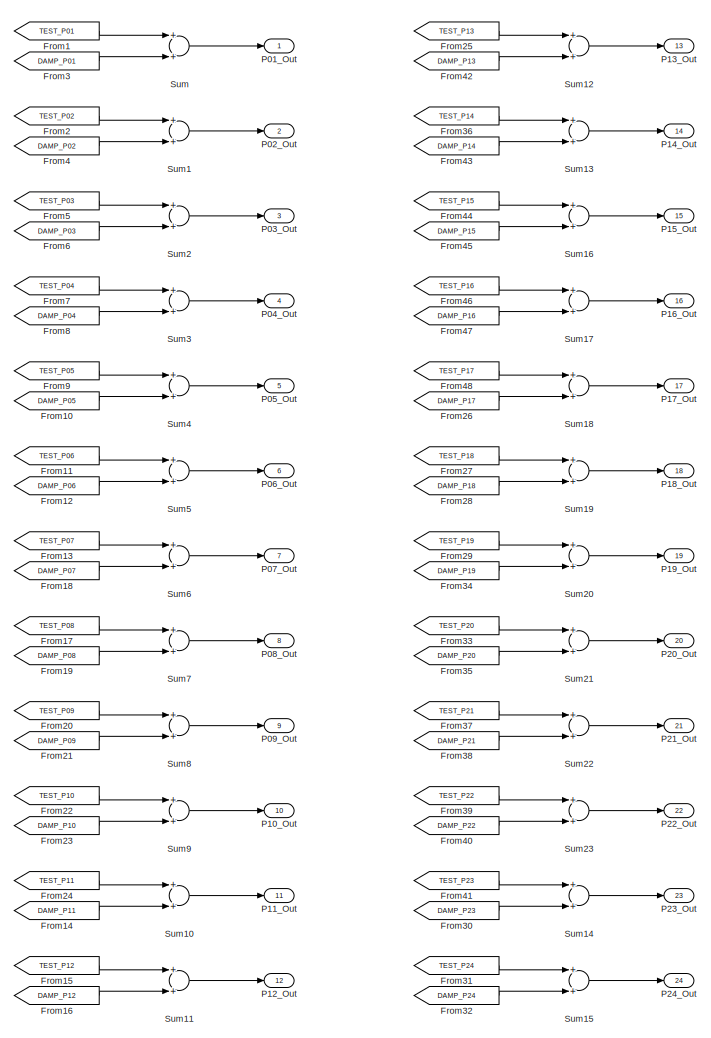
[diagram: TYPEB_PAYLOAD_shutdown/PAYLOAD/ADD - part 1/2, right side, full height]
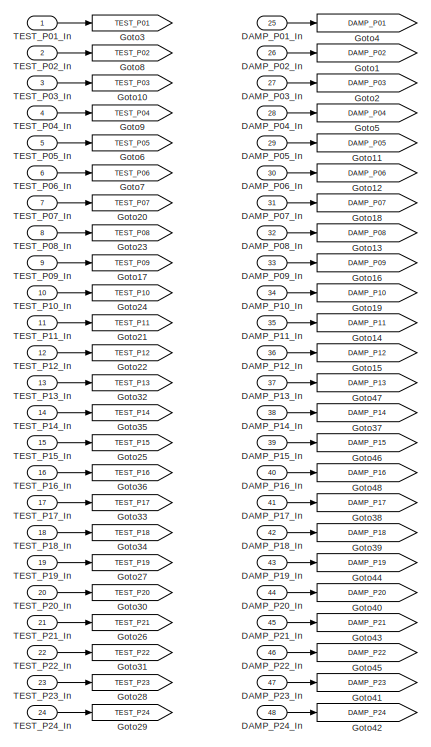
[diagram: TYPEB_PAYLOAD_shutdown/PAYLOAD/ADD - part 2/2, middle left region]
BLOCK [SubSystem] TYPEB_PAYLOAD_shutdown/PAYLOAD/ADD
  Ports = [48, 24]
  RequestExecContextInheritance = off
  SID = 1640:3505
  Variant = off
BLOCK [Inport] TYPEB_PAYLOAD_shutdown/PAYLOAD/ADD/DAMP_P01_In
  IconDisplay = Port number
  Port = 25
  SID = 1640:3530
BLOCK [Inport] TYPEB_PAYLOAD_shutdown/PAYLOAD/ADD/DAMP_P02_In
  IconDisplay = Port number
  Port = 26
  SID = 1640:3531
BLOCK [Inport] TYPEB_PAYLOAD_shutdown/PAYLOAD/ADD/DAMP_P03_In
  IconDisplay = Port number
  Port = 27
  SID = 1640:3532
BLOCK [Inport] TYPEB_PAYLOAD_shutdown/PAYLOAD/ADD/DAMP_P04_In
  IconDisplay = Port number
  Port = 28
  SID = 1640:3533
BLOCK [Inport] TYPEB_PAYLOAD_shutdown/PAYLOAD/ADD/DAMP_P05_In
  IconDisplay = Port number
  Port = 29
  SID = 1640:3534
BLOCK [Inport] TYPEB_PAYLOAD_shutdown/PAYLOAD/ADD/DAMP_P06_In
  IconDisplay = Port number
  Port = 30
  SID = 1640:3535
BLOCK [Inport] TYPEB_PAYLOAD_shutdown/PAYLOAD/ADD/DAMP_P07_In
  IconDisplay = Port number
  Port = 31
  SID = 1640:3536
BLOCK [Inport] TYPEB_PAYLOAD_shutdown/PAYLOAD/ADD/DAMP_P08_In
  IconDisplay = Port number
  Port = 32
  SID = 1640:3537
BLOCK [Inport] TYPEB_PAYLOAD_shutdown/PAYLOAD/ADD/DAMP_P09_In
  IconDisplay = Port number
  Port = 33
  SID = 1640:3538
BLOCK [Inport] TYPEB_PAYLOAD_shutdown/PAYLOAD/ADD/DAMP_P10_In
  IconDisplay = Port number
  Port = 34
  SID = 1640:3539
BLOCK [Inport] TYPEB_PAYLOAD_shutdown/PAYLOAD/ADD/DAMP_P11_In
  IconDisplay = Port number
  Port = 35
  SID = 1640:3540
BLOCK [Inport] TYPEB_PAYLOAD_shutdown/PAYLOAD/ADD/DAMP_P12_In
  IconDisplay = Port number
  Port = 36
  SID = 1640:3541
BLOCK [Inport] TYPEB_PAYLOAD_shutdown/PAYLOAD/ADD/DAMP_P13_In
  IconDisplay = Port number
  Port = 37
  SID = 1640:3542
BLOCK [Inport] TYPEB_PAYLOAD_shutdown/PAYLOAD/ADD/DAMP_P14_In
  IconDisplay = Port number
  Port = 38
  SID = 1640:3543
BLOCK [Inport] TYPEB_PAYLOAD_shutdown/PAYLOAD/ADD/DAMP_P15_In
  IconDisplay = Port number
  Port = 39
  SID = 1640:3544
BLOCK [Inport] TYPEB_PAYLOAD_shutdown/PAYLOAD/ADD/DAMP_P16_In
  IconDisplay = Port number
  Port = 40
  SID = 1640:3545
BLOCK [Inport] TYPEB_PAYLOAD_shutdown/PAYLOAD/ADD/DAMP_P17_In
  IconDisplay = Port number
  Port = 41
  SID = 1640:3546
BLOCK [Inport] TYPEB_PAYLOAD_shutdown/PAYLOAD/ADD/DAMP_P18_In
  IconDisplay = Port number
  Port = 42
  SID = 1640:3547
BLOCK [Inport] TYPEB_PAYLOAD_shutdown/PAYLOAD/ADD/DAMP_P19_In
  IconDisplay = Port number
  Port = 43
  SID = 1640:3548
BLOCK [Inport] TYPEB_PAYLOAD_shutdown/PAYLOAD/ADD/DAMP_P20_In
  IconDisplay = Port number
  Port = 44
  SID = 1640:3549
BLOCK [Inport] TYPEB_PAYLOAD_shutdown/PAYLOAD/ADD/DAMP_P21_In
  IconDisplay = Port number
  Port = 45
  SID = 1640:3550
BLOCK [Inport] TYPEB_PAYLOAD_shutdown/PAYLOAD/ADD/DAMP_P22_In
  IconDisplay = Port number
  Port = 46
  SID = 1640:3551
BLOCK [Inport] TYPEB_PAYLOAD_shutdown/PAYLOAD/ADD/DAMP_P23_In
  IconDisplay = Port number
  Port = 47
  SID = 1640:3552
BLOCK [Inport] TYPEB_PAYLOAD_shutdown/PAYLOAD/ADD/DAMP_P24_In
  IconDisplay = Port number
  Port = 48
  SID = 1640:3553
BLOCK [From] TYPEB_PAYLOAD_shutdown/PAYLOAD/ADD/From1
  CloseFcn = tagdialog Close
  GotoTag = TEST_P01
  SID = 1640:3554
BLOCK [From] TYPEB_PAYLOAD_shutdown/PAYLOAD/ADD/From10
  CloseFcn = tagdialog Close
  GotoTag = DAMP_P05
  SID = 1640:3555
BLOCK [From] TYPEB_PAYLOAD_shutdown/PAYLOAD/ADD/From11
  CloseFcn = tagdialog Close
  GotoTag = TEST_P06
  SID = 1640:3556
BLOCK [From] TYPEB_PAYLOAD_shutdown/PAYLOAD/ADD/From12
  CloseFcn = tagdialog Close
  GotoTag = DAMP_P06
  SID = 1640:3557
BLOCK [From] TYPEB_PAYLOAD_shutdown/PAYLOAD/ADD/From13
  CloseFcn = tagdialog Close
  GotoTag = TEST_P07
  SID = 1640:3558
BLOCK [From] TYPEB_PAYLOAD_shutdown/PAYLOAD/ADD/From14
  CloseFcn = tagdialog Close
  GotoTag = DAMP_P11
  SID = 1640:3559
BLOCK [From] TYPEB_PAYLOAD_shutdown/PAYLOAD/ADD/From15
  CloseFcn = tagdialog Close
  GotoTag = TEST_P12
  SID = 1640:3560
BLOCK [From] TYPEB_PAYLOAD_shutdown/PAYLOAD/ADD/From16
  CloseFcn = tagdialog Close
  GotoTag = DAMP_P12
  SID = 1640:3561
BLOCK [From] TYPEB_PAYLOAD_shutdown/PAYLOAD/ADD/From17
  CloseFcn = tagdialog Close
  GotoTag = TEST_P08
  SID = 1640:3562
BLOCK [From] TYPEB_PAYLOAD_shutdown/PAYLOAD/ADD/From18
  CloseFcn = tagdialog Close
  GotoTag = DAMP_P07
  SID = 1640:3563
BLOCK [From] TYPEB_PAYLOAD_shutdown/PAYLOAD/ADD/From19
  CloseFcn = tagdialog Close
  GotoTag = DAMP_P08
  SID = 1640:3564
BLOCK [From] TYPEB_PAYLOAD_shutdown/PAYLOAD/ADD/From2
  CloseFcn = tagdialog Close
  GotoTag = TEST_P02
  SID = 1640:3565
BLOCK [From] TYPEB_PAYLOAD_shutdown/PAYLOAD/ADD/From20
  CloseFcn = tagdialog Close
  GotoTag = TEST_P09
  SID = 1640:3566
BLOCK [From] TYPEB_PAYLOAD_shutdown/PAYLOAD/ADD/From21
  CloseFcn = tagdialog Close
  GotoTag = DAMP_P09
  SID = 1640:3567
BLOCK [From] TYPEB_PAYLOAD_shutdown/PAYLOAD/ADD/From22
  CloseFcn = tagdialog Close
  GotoTag = TEST_P10
  SID = 1640:3568
BLOCK [From] TYPEB_PAYLOAD_shutdown/PAYLOAD/ADD/From23
  CloseFcn = tagdialog Close
  GotoTag = DAMP_P10
  SID = 1640:3569
BLOCK [From] TYPEB_PAYLOAD_shutdown/PAYLOAD/ADD/From24
  CloseFcn = tagdialog Close
  GotoTag = TEST_P11
  SID = 1640:3570
BLOCK [From] TYPEB_PAYLOAD_shutdown/PAYLOAD/ADD/From25
  CloseFcn = tagdialog Close
  GotoTag = TEST_P13
  SID = 1640:3571
BLOCK [From] TYPEB_PAYLOAD_shutdown/PAYLOAD/ADD/From26
  CloseFcn = tagdialog Close
  GotoTag = DAMP_P17
  SID = 1640:3572
BLOCK [From] TYPEB_PAYLOAD_shutdown/PAYLOAD/ADD/From27
  CloseFcn = tagdialog Close
  GotoTag = TEST_P18
  SID = 1640:3573
BLOCK [From] TYPEB_PAYLOAD_shutdown/PAYLOAD/ADD/From28
  CloseFcn = tagdialog Close
  GotoTag = DAMP_P18
  SID = 1640:3574
BLOCK [From] TYPEB_PAYLOAD_shutdown/PAYLOAD/ADD/From29
  CloseFcn = tagdialog Close
  GotoTag = TEST_P19
  SID = 1640:3575
BLOCK [From] TYPEB_PAYLOAD_shutdown/PAYLOAD/ADD/From3
  CloseFcn = tagdialog Close
  GotoTag = DAMP_P01
  SID = 1640:3576
BLOCK [From] TYPEB_PAYLOAD_shutdown/PAYLOAD/ADD/From30
  CloseFcn = tagdialog Close
  GotoTag = DAMP_P23
  SID = 1640:3577
BLOCK [From] TYPEB_PAYLOAD_shutdown/PAYLOAD/ADD/From31
  CloseFcn = tagdialog Close
  GotoTag = TEST_P24
  SID = 1640:3578
BLOCK [From] TYPEB_PAYLOAD_shutdown/PAYLOAD/ADD/From32
  CloseFcn = tagdialog Close
  GotoTag = DAMP_P24
  SID = 1640:3579
BLOCK [From] TYPEB_PAYLOAD_shutdown/PAYLOAD/ADD/From33
  CloseFcn = tagdialog Close
  GotoTag = TEST_P20
  SID = 1640:3580
BLOCK [From] TYPEB_PAYLOAD_shutdown/PAYLOAD/ADD/From34
  CloseFcn = tagdialog Close
  GotoTag = DAMP_P19
  SID = 1640:3581
BLOCK [From] TYPEB_PAYLOAD_shutdown/PAYLOAD/ADD/From35
  CloseFcn = tagdialog Close
  GotoTag = DAMP_P20
  SID = 1640:3582
BLOCK [From] TYPEB_PAYLOAD_shutdown/PAYLOAD/ADD/From36
  CloseFcn = tagdialog Close
  GotoTag = TEST_P14
  SID = 1640:3583
BLOCK [From] TYPEB_PAYLOAD_shutdown/PAYLOAD/ADD/From37
  CloseFcn = tagdialog Close
  GotoTag = TEST_P21
  SID = 1640:3584
BLOCK [From] TYPEB_PAYLOAD_shutdown/PAYLOAD/ADD/From38
  CloseFcn = tagdialog Close
  GotoTag = DAMP_P21
  SID = 1640:3585
BLOCK [From] TYPEB_PAYLOAD_shutdown/PAYLOAD/ADD/From39
  CloseFcn = tagdialog Close
  GotoTag = TEST_P22
  SID = 1640:3586
BLOCK [From] TYPEB_PAYLOAD_shutdown/PAYLOAD/ADD/From4
  CloseFcn = tagdialog Close
  GotoTag = DAMP_P02
  SID = 1640:3587
BLOCK [From] TYPEB_PAYLOAD_shutdown/PAYLOAD/ADD/From40
  CloseFcn = tagdialog Close
  GotoTag = DAMP_P22
  SID = 1640:3588
BLOCK [From] TYPEB_PAYLOAD_shutdown/PAYLOAD/ADD/From41
  CloseFcn = tagdialog Close
  GotoTag = TEST_P23
  SID = 1640:3589
BLOCK [From] TYPEB_PAYLOAD_shutdown/PAYLOAD/ADD/From42
  CloseFcn = tagdialog Close
  GotoTag = DAMP_P13
  SID = 1640:3590
BLOCK [From] TYPEB_PAYLOAD_shutdown/PAYLOAD/ADD/From43
  CloseFcn = tagdialog Close
  GotoTag = DAMP_P14
  SID = 1640:3591
BLOCK [From] TYPEB_PAYLOAD_shutdown/PAYLOAD/ADD/From44
  CloseFcn = tagdialog Close
  GotoTag = TEST_P15
  SID = 1640:3592
BLOCK [From] TYPEB_PAYLOAD_shutdown/PAYLOAD/ADD/From45
  CloseFcn = tagdialog Close
  GotoTag = DAMP_P15
  SID = 1640:3593
BLOCK [From] TYPEB_PAYLOAD_shutdown/PAYLOAD/ADD/From46
  CloseFcn = tagdialog Close
  GotoTag = TEST_P16
  SID = 1640:3594
BLOCK [From] TYPEB_PAYLOAD_shutdown/PAYLOAD/ADD/From47
  CloseFcn = tagdialog Close
  GotoTag = DAMP_P16
  SID = 1640:3595
BLOCK [From] TYPEB_PAYLOAD_shutdown/PAYLOAD/ADD/From48
  CloseFcn = tagdialog Close
  GotoTag = TEST_P17
  SID = 1640:3596
BLOCK [From] TYPEB_PAYLOAD_shutdown/PAYLOAD/ADD/From5
  CloseFcn = tagdialog Close
  GotoTag = TEST_P03
  SID = 1640:3597
BLOCK [From] TYPEB_PAYLOAD_shutdown/PAYLOAD/ADD/From6
  CloseFcn = tagdialog Close
  GotoTag = DAMP_P03
  SID = 1640:3598
BLOCK [From] TYPEB_PAYLOAD_shutdown/PAYLOAD/ADD/From7
  CloseFcn = tagdialog Close
  GotoTag = TEST_P04
  SID = 1640:3599
BLOCK [From] TYPEB_PAYLOAD_shutdown/PAYLOAD/ADD/From8
  CloseFcn = tagdialog Close
  GotoTag = DAMP_P04
  SID = 1640:3600
BLOCK [From] TYPEB_PAYLOAD_shutdown/PAYLOAD/ADD/From9
  CloseFcn = tagdialog Close
  GotoTag = TEST_P05
  SID = 1640:3601
BLOCK [Goto] TYPEB_PAYLOAD_shutdown/PAYLOAD/ADD/Goto1
  GotoTag = DAMP_P02
  SID = 1640:3602
BLOCK [Goto] TYPEB_PAYLOAD_shutdown/PAYLOAD/ADD/Goto10
  GotoTag = TEST_P03
  SID = 1640:3603
BLOCK [Goto] TYPEB_PAYLOAD_shutdown/PAYLOAD/ADD/Goto11
  GotoTag = DAMP_P05
  SID = 1640:3604
BLOCK [Goto] TYPEB_PAYLOAD_shutdown/PAYLOAD/ADD/Goto12
  GotoTag = DAMP_P06
  SID = 1640:3605
BLOCK [Goto] TYPEB_PAYLOAD_shutdown/PAYLOAD/ADD/Goto13
  GotoTag = DAMP_P08
  SID = 1640:3606
BLOCK [Goto] TYPEB_PAYLOAD_shutdown/PAYLOAD/ADD/Goto14
  GotoTag = DAMP_P11
  SID = 1640:3607
BLOCK [Goto] TYPEB_PAYLOAD_shutdown/PAYLOAD/ADD/Goto15
  GotoTag = DAMP_P12
  SID = 1640:3608
BLOCK [Goto] TYPEB_PAYLOAD_shutdown/PAYLOAD/ADD/Goto16
  GotoTag = DAMP_P09
  SID = 1640:3609
BLOCK [Goto] TYPEB_PAYLOAD_shutdown/PAYLOAD/ADD/Goto17
  GotoTag = TEST_P09
  SID = 1640:3610
BLOCK [Goto] TYPEB_PAYLOAD_shutdown/PAYLOAD/ADD/Goto18
  GotoTag = DAMP_P07
  SID = 1640:3611
BLOCK [Goto] TYPEB_PAYLOAD_shutdown/PAYLOAD/ADD/Goto19
  GotoTag = DAMP_P10
  SID = 1640:3612
BLOCK [Goto] TYPEB_PAYLOAD_shutdown/PAYLOAD/ADD/Goto2
  GotoTag = DAMP_P03
  SID = 1640:3613
BLOCK [Goto] TYPEB_PAYLOAD_shutdown/PAYLOAD/ADD/Goto20
  GotoTag = TEST_P07
  SID = 1640:3614
BLOCK [Goto] TYPEB_PAYLOAD_shutdown/PAYLOAD/ADD/Goto21
  GotoTag = TEST_P11
  SID = 1640:3615
BLOCK [Goto] TYPEB_PAYLOAD_shutdown/PAYLOAD/ADD/Goto22
  GotoTag = TEST_P12
  SID = 1640:3616
BLOCK [Goto] TYPEB_PAYLOAD_shutdown/PAYLOAD/ADD/Goto23
  GotoTag = TEST_P08
  SID = 1640:3617
BLOCK [Goto] TYPEB_PAYLOAD_shutdown/PAYLOAD/ADD/Goto24
  GotoTag = TEST_P10
  SID = 1640:3618
BLOCK [Goto] TYPEB_PAYLOAD_shutdown/PAYLOAD/ADD/Goto25
  GotoTag = TEST_P15
  SID = 1640:3619
BLOCK [Goto] TYPEB_PAYLOAD_shutdown/PAYLOAD/ADD/Goto26
  GotoTag = TEST_P21
  SID = 1640:3620
BLOCK [Goto] TYPEB_PAYLOAD_shutdown/PAYLOAD/ADD/Goto27
  GotoTag = TEST_P19
  SID = 1640:3621
BLOCK [Goto] TYPEB_PAYLOAD_shutdown/PAYLOAD/ADD/Goto28
  GotoTag = TEST_P23
  SID = 1640:3622
BLOCK [Goto] TYPEB_PAYLOAD_shutdown/PAYLOAD/ADD/Goto29
  GotoTag = TEST_P24
  SID = 1640:3623
BLOCK [Goto] TYPEB_PAYLOAD_shutdown/PAYLOAD/ADD/Goto3
  GotoTag = TEST_P01
  SID = 1640:3624
BLOCK [Goto] TYPEB_PAYLOAD_shutdown/PAYLOAD/ADD/Goto30
  GotoTag = TEST_P20
  SID = 1640:3625
BLOCK [Goto] TYPEB_PAYLOAD_shutdown/PAYLOAD/ADD/Goto31
  GotoTag = TEST_P22
  SID = 1640:3626
BLOCK [Goto] TYPEB_PAYLOAD_shutdown/PAYLOAD/ADD/Goto32
  GotoTag = TEST_P13
  SID = 1640:3627
BLOCK [Goto] TYPEB_PAYLOAD_shutdown/PAYLOAD/ADD/Goto33
  GotoTag = TEST_P17
  SID = 1640:3628
BLOCK [Goto] TYPEB_PAYLOAD_shutdown/PAYLOAD/ADD/Goto34
  GotoTag = TEST_P18
  SID = 1640:3629
BLOCK [Goto] TYPEB_PAYLOAD_shutdown/PAYLOAD/ADD/Goto35
  GotoTag = TEST_P14
  SID = 1640:3630
BLOCK [Goto] TYPEB_PAYLOAD_shutdown/PAYLOAD/ADD/Goto36
  GotoTag = TEST_P16
  SID = 1640:3631
BLOCK [Goto] TYPEB_PAYLOAD_shutdown/PAYLOAD/ADD/Goto37
  GotoTag = DAMP_P14
  SID = 1640:3632
BLOCK [Goto] TYPEB_PAYLOAD_shutdown/PAYLOAD/ADD/Goto38
  GotoTag = DAMP_P17
  SID = 1640:3633
BLOCK [Goto] TYPEB_PAYLOAD_shutdown/PAYLOAD/ADD/Goto39
  GotoTag = DAMP_P18
  SID = 1640:3634
BLOCK [Goto] TYPEB_PAYLOAD_shutdown/PAYLOAD/ADD/Goto4
  GotoTag = DAMP_P01
  SID = 1640:3635
BLOCK [Goto] TYPEB_PAYLOAD_shutdown/PAYLOAD/ADD/Goto40
  GotoTag = DAMP_P20
  SID = 1640:3636
BLOCK [Goto] TYPEB_PAYLOAD_shutdown/PAYLOAD/ADD/Goto41
  GotoTag = DAMP_P23
  SID = 1640:3637
BLOCK [Goto] TYPEB_PAYLOAD_shutdown/PAYLOAD/ADD/Goto42
  GotoTag = DAMP_P24
  SID = 1640:3638
BLOCK [Goto] TYPEB_PAYLOAD_shutdown/PAYLOAD/ADD/Goto43
  GotoTag = DAMP_P21
  SID = 1640:3639
BLOCK [Goto] TYPEB_PAYLOAD_shutdown/PAYLOAD/ADD/Goto44
  GotoTag = DAMP_P19
  SID = 1640:3640
BLOCK [Goto] TYPEB_PAYLOAD_shutdown/PAYLOAD/ADD/Goto45
  GotoTag = DAMP_P22
  SID = 1640:3641
BLOCK [Goto] TYPEB_PAYLOAD_shutdown/PAYLOAD/ADD/Goto46
  GotoTag = DAMP_P15
  SID = 1640:3642
BLOCK [Goto] TYPEB_PAYLOAD_shutdown/PAYLOAD/ADD/Goto47
  GotoTag = DAMP_P13
  SID = 1640:3643
BLOCK [Goto] TYPEB_PAYLOAD_shutdown/PAYLOAD/ADD/Goto48
  GotoTag = DAMP_P16
  SID = 1640:3644
BLOCK [Goto] TYPEB_PAYLOAD_shutdown/PAYLOAD/ADD/Goto5
  GotoTag = DAMP_P04
  SID = 1640:3645
BLOCK [Goto] TYPEB_PAYLOAD_shutdown/PAYLOAD/ADD/Goto6
  GotoTag = TEST_P05
  SID = 1640:3646
BLOCK [Goto] TYPEB_PAYLOAD_shutdown/PAYLOAD/ADD/Goto7
  GotoTag = TEST_P06
  SID = 1640:3647
BLOCK [Goto] TYPEB_PAYLOAD_shutdown/PAYLOAD/ADD/Goto8
  GotoTag = TEST_P02
  SID = 1640:3648
BLOCK [Goto] TYPEB_PAYLOAD_shutdown/PAYLOAD/ADD/Goto9
  GotoTag = TEST_P04
  SID = 1640:3649
BLOCK [Outport] TYPEB_PAYLOAD_shutdown/PAYLOAD/ADD/P01_Out
  IconDisplay = Port number
  SID = 1640:3674
BLOCK [Outport] TYPEB_PAYLOAD_shutdown/PAYLOAD/ADD/P02_Out
  IconDisplay = Port number
  Port = 2
  SID = 1640:3675
BLOCK [Outport] TYPEB_PAYLOAD_shutdown/PAYLOAD/ADD/P03_Out
  IconDisplay = Port number
  Port = 3
  SID = 1640:3676
BLOCK [Outport] TYPEB_PAYLOAD_shutdown/PAYLOAD/ADD/P04_Out
  IconDisplay = Port number
  Port = 4
  SID = 1640:3677
BLOCK [Outport] TYPEB_PAYLOAD_shutdown/PAYLOAD/ADD/P05_Out
  IconDisplay = Port number
  Port = 5
  SID = 1640:3678
BLOCK [Outport] TYPEB_PAYLOAD_shutdown/PAYLOAD/ADD/P06_Out
  IconDisplay = Port number
  Port = 6
  SID = 1640:3679
BLOCK [Outport] TYPEB_PAYLOAD_shutdown/PAYLOAD/ADD/P07_Out
  IconDisplay = Port number
  Port = 7
  SID = 1640:3680
BLOCK [Outport] TYPEB_PAYLOAD_shutdown/PAYLOAD/ADD/P08_Out
  IconDisplay = Port number
  Port = 8
  SID = 1640:3681
BLOCK [Outport] TYPEB_PAYLOAD_shutdown/PAYLOAD/ADD/P09_Out
  IconDisplay = Port number
  Port = 9
  SID = 1640:3682
BLOCK [Outport] TYPEB_PAYLOAD_shutdown/PAYLOAD/ADD/P10_Out
  IconDisplay = Port number
  Port = 10
  SID = 1640:3683
BLOCK [Outport] TYPEB_PAYLOAD_shutdown/PAYLOAD/ADD/P11_Out
  IconDisplay = Port number
  Port = 11
  SID = 1640:3684
BLOCK [Outport] TYPEB_PAYLOAD_shutdown/PAYLOAD/ADD/P12_Out
  IconDisplay = Port number
  Port = 12
  SID = 1640:3685
BLOCK [Outport] TYPEB_PAYLOAD_shutdown/PAYLOAD/ADD/P13_Out
  IconDisplay = Port number
  Port = 13
  SID = 1640:3686
BLOCK [Outport] TYPEB_PAYLOAD_shutdown/PAYLOAD/ADD/P14_Out
  IconDisplay = Port number
  Port = 14
  SID = 1640:3687
BLOCK [Outport] TYPEB_PAYLOAD_shutdown/PAYLOAD/ADD/P15_Out
  IconDisplay = Port number
  Port = 15
  SID = 1640:3688
BLOCK [Outport] TYPEB_PAYLOAD_shutdown/PAYLOAD/ADD/P16_Out
  IconDisplay = Port number
  Port = 16
  SID = 1640:3689
BLOCK [Outport] TYPEB_PAYLOAD_shutdown/PAYLOAD/ADD/P17_Out
  IconDisplay = Port number
  Port = 17
  SID = 1640:3690
BLOCK [Outport] TYPEB_PAYLOAD_shutdown/PAYLOAD/ADD/P18_Out
  IconDisplay = Port number
  Port = 18
  SID = 1640:3691
BLOCK [Outport] TYPEB_PAYLOAD_shutdown/PAYLOAD/ADD/P19_Out
  IconDisplay = Port number
  Port = 19
  SID = 1640:3692
BLOCK [Outport] TYPEB_PAYLOAD_shutdown/PAYLOAD/ADD/P20_Out
  IconDisplay = Port number
  Port = 20
  SID = 1640:3693
BLOCK [Outport] TYPEB_PAYLOAD_shutdown/PAYLOAD/ADD/P21_Out
  IconDisplay = Port number
  Port = 21
  SID = 1640:3694
BLOCK [Outport] TYPEB_PAYLOAD_shutdown/PAYLOAD/ADD/P22_Out
  IconDisplay = Port number
  Port = 22
  SID = 1640:3695
BLOCK [Outport] TYPEB_PAYLOAD_shutdown/PAYLOAD/ADD/P23_Out
  IconDisplay = Port number
  Port = 23
  SID = 1640:3696
BLOCK [Outport] TYPEB_PAYLOAD_shutdown/PAYLOAD/ADD/P24_Out
  IconDisplay = Port number
  Port = 24
  SID = 1640:3697
BLOCK [Sum] TYPEB_PAYLOAD_shutdown/PAYLOAD/ADD/Sum
  InputSameDT = off
  OutDataTypeStr = Inherit: Inherit via internal rule
  Ports = [2, 1]
  SID = 1640:3650
  SaturateOnIntegerOverflow = off
BLOCK [Sum] TYPEB_PAYLOAD_shutdown/PAYLOAD/ADD/Sum1
  InputSameDT = off
  OutDataTypeStr = Inherit: Inherit via internal rule
  Ports = [2, 1]
  SID = 1640:3651
  SaturateOnIntegerOverflow = off
BLOCK [Sum] TYPEB_PAYLOAD_shutdown/PAYLOAD/ADD/Sum10
  InputSameDT = off
  OutDataTypeStr = Inherit: Inherit via internal rule
  Ports = [2, 1]
  SID = 1640:3652
  SaturateOnIntegerOverflow = off
BLOCK [Sum] TYPEB_PAYLOAD_shutdown/PAYLOAD/ADD/Sum11
  InputSameDT = off
  OutDataTypeStr = Inherit: Inherit via internal rule
  Ports = [2, 1]
  SID = 1640:3653
  SaturateOnIntegerOverflow = off
BLOCK [Sum] TYPEB_PAYLOAD_shutdown/PAYLOAD/ADD/Sum12
  InputSameDT = off
  OutDataTypeStr = Inherit: Inherit via internal rule
  Ports = [2, 1]
  SID = 1640:3654
  SaturateOnIntegerOverflow = off
BLOCK [Sum] TYPEB_PAYLOAD_shutdown/PAYLOAD/ADD/Sum13
  InputSameDT = off
  OutDataTypeStr = Inherit: Inherit via internal rule
  Ports = [2, 1]
  SID = 1640:3655
  SaturateOnIntegerOverflow = off
BLOCK [Sum] TYPEB_PAYLOAD_shutdown/PAYLOAD/ADD/Sum14
  InputSameDT = off
  OutDataTypeStr = Inherit: Inherit via internal rule
  Ports = [2, 1]
  SID = 1640:3656
  SaturateOnIntegerOverflow = off
BLOCK [Sum] TYPEB_PAYLOAD_shutdown/PAYLOAD/ADD/Sum15
  InputSameDT = off
  OutDataTypeStr = Inherit: Inherit via internal rule
  Ports = [2, 1]
  SID = 1640:3657
  SaturateOnIntegerOverflow = off
BLOCK [Sum] TYPEB_PAYLOAD_shutdown/PAYLOAD/ADD/Sum16
  InputSameDT = off
  OutDataTypeStr = Inherit: Inherit via internal rule
  Ports = [2, 1]
  SID = 1640:3658
  SaturateOnIntegerOverflow = off
BLOCK [Sum] TYPEB_PAYLOAD_shutdown/PAYLOAD/ADD/Sum17
  InputSameDT = off
  OutDataTypeStr = Inherit: Inherit via internal rule
  Ports = [2, 1]
  SID = 1640:3659
  SaturateOnIntegerOverflow = off
BLOCK [Sum] TYPEB_PAYLOAD_shutdown/PAYLOAD/ADD/Sum18
  InputSameDT = off
  OutDataTypeStr = Inherit: Inherit via internal rule
  Ports = [2, 1]
  SID = 1640:3660
  SaturateOnIntegerOverflow = off
BLOCK [Sum] TYPEB_PAYLOAD_shutdown/PAYLOAD/ADD/Sum19
  InputSameDT = off
  OutDataTypeStr = Inherit: Inherit via internal rule
  Ports = [2, 1]
  SID = 1640:3661
  SaturateOnIntegerOverflow = off
BLOCK [Sum] TYPEB_PAYLOAD_shutdown/PAYLOAD/ADD/Sum2
  InputSameDT = off
  OutDataTypeStr = Inherit: Inherit via internal rule
  Ports = [2, 1]
  SID = 1640:3662
  SaturateOnIntegerOverflow = off
BLOCK [Sum] TYPEB_PAYLOAD_shutdown/PAYLOAD/ADD/Sum20
  InputSameDT = off
  OutDataTypeStr = Inherit: Inherit via internal rule
  Ports = [2, 1]
  SID = 1640:3663
  SaturateOnIntegerOverflow = off
BLOCK [Sum] TYPEB_PAYLOAD_shutdown/PAYLOAD/ADD/Sum21
  InputSameDT = off
  OutDataTypeStr = Inherit: Inherit via internal rule
  Ports = [2, 1]
  SID = 1640:3664
  SaturateOnIntegerOverflow = off
BLOCK [Sum] TYPEB_PAYLOAD_shutdown/PAYLOAD/ADD/Sum22
  InputSameDT = off
  OutDataTypeStr = Inherit: Inherit via internal rule
  Ports = [2, 1]
  SID = 1640:3665
  SaturateOnIntegerOverflow = off
BLOCK [Sum] TYPEB_PAYLOAD_shutdown/PAYLOAD/ADD/Sum23
  InputSameDT = off
  OutDataTypeStr = Inherit: Inherit via internal rule
  Ports = [2, 1]
  SID = 1640:3666
  SaturateOnIntegerOverflow = off
BLOCK [Sum] TYPEB_PAYLOAD_shutdown/PAYLOAD/ADD/Sum3
  InputSameDT = off
  OutDataTypeStr = Inherit: Inherit via internal rule
  Ports = [2, 1]
  SID = 1640:3667
  SaturateOnIntegerOverflow = off
BLOCK [Sum] TYPEB_PAYLOAD_shutdown/PAYLOAD/ADD/Sum4
  InputSameDT = off
  OutDataTypeStr = Inherit: Inherit via internal rule
  Ports = [2, 1]
  SID = 1640:3668
  SaturateOnIntegerOverflow = off
BLOCK [Sum] TYPEB_PAYLOAD_shutdown/PAYLOAD/ADD/Sum5
  InputSameDT = off
  OutDataTypeStr = Inherit: Inherit via internal rule
  Ports = [2, 1]
  SID = 1640:3669
  SaturateOnIntegerOverflow = off
BLOCK [Sum] TYPEB_PAYLOAD_shutdown/PAYLOAD/ADD/Sum6
  InputSameDT = off
  OutDataTypeStr = Inherit: Inherit via internal rule
  Ports = [2, 1]
  SID = 1640:3670
  SaturateOnIntegerOverflow = off
BLOCK [Sum] TYPEB_PAYLOAD_shutdown/PAYLOAD/ADD/Sum7
  InputSameDT = off
  OutDataTypeStr = Inherit: Inherit via internal rule
  Ports = [2, 1]
  SID = 1640:3671
  SaturateOnIntegerOverflow = off
BLOCK [Sum] TYPEB_PAYLOAD_shutdown/PAYLOAD/ADD/Sum8
  InputSameDT = off
  OutDataTypeStr = Inherit: Inherit via internal rule
  Ports = [2, 1]
  SID = 1640:3672
  SaturateOnIntegerOverflow = off
BLOCK [Sum] TYPEB_PAYLOAD_shutdown/PAYLOAD/ADD/Sum9
  InputSameDT = off
  OutDataTypeStr = Inherit: Inherit via internal rule
  Ports = [2, 1]
  SID = 1640:3673
  SaturateOnIntegerOverflow = off
BLOCK [Inport] TYPEB_PAYLOAD_shutdown/PAYLOAD/ADD/TEST_P01_In
  IconDisplay = Port number
  SID = 1640:3506
BLOCK [Inport] TYPEB_PAYLOAD_shutdown/PAYLOAD/ADD/TEST_P02_In
  IconDisplay = Port number
  Port = 2
  SID = 1640:3507
BLOCK [Inport] TYPEB_PAYLOAD_shutdown/PAYLOAD/ADD/TEST_P03_In
  IconDisplay = Port number
  Port = 3
  SID = 1640:3508
BLOCK [Inport] TYPEB_PAYLOAD_shutdown/PAYLOAD/ADD/TEST_P04_In
  IconDisplay = Port number
  Port = 4
  SID = 1640:3509
BLOCK [Inport] TYPEB_PAYLOAD_shutdown/PAYLOAD/ADD/TEST_P05_In
  IconDisplay = Port number
  Port = 5
  SID = 1640:3510
BLOCK [Inport] TYPEB_PAYLOAD_shutdown/PAYLOAD/ADD/TEST_P06_In
  IconDisplay = Port number
  Port = 6
  SID = 1640:3511
BLOCK [Inport] TYPEB_PAYLOAD_shutdown/PAYLOAD/ADD/TEST_P07_In
  IconDisplay = Port number
  Port = 7
  SID = 1640:3512
BLOCK [Inport] TYPEB_PAYLOAD_shutdown/PAYLOAD/ADD/TEST_P08_In
  IconDisplay = Port number
  Port = 8
  SID = 1640:3513
BLOCK [Inport] TYPEB_PAYLOAD_shutdown/PAYLOAD/ADD/TEST_P09_In
  IconDisplay = Port number
  Port = 9
  SID = 1640:3514
BLOCK [Inport] TYPEB_PAYLOAD_shutdown/PAYLOAD/ADD/TEST_P10_In
  IconDisplay = Port number
  Port = 10
  SID = 1640:3515
BLOCK [Inport] TYPEB_PAYLOAD_shutdown/PAYLOAD/ADD/TEST_P11_In
  IconDisplay = Port number
  Port = 11
  SID = 1640:3516
BLOCK [Inport] TYPEB_PAYLOAD_shutdown/PAYLOAD/ADD/TEST_P12_In
  IconDisplay = Port number
  Port = 12
  SID = 1640:3517
BLOCK [Inport] TYPEB_PAYLOAD_shutdown/PAYLOAD/ADD/TEST_P13_In
  IconDisplay = Port number
  Port = 13
  SID = 1640:3518
BLOCK [Inport] TYPEB_PAYLOAD_shutdown/PAYLOAD/ADD/TEST_P14_In
  IconDisplay = Port number
  Port = 14
  SID = 1640:3519
BLOCK [Inport] TYPEB_PAYLOAD_shutdown/PAYLOAD/ADD/TEST_P15_In
  IconDisplay = Port number
  Port = 15
  SID = 1640:3520
BLOCK [Inport] TYPEB_PAYLOAD_shutdown/PAYLOAD/ADD/TEST_P16_In
  IconDisplay = Port number
  Port = 16
  SID = 1640:3521
BLOCK [Inport] TYPEB_PAYLOAD_shutdown/PAYLOAD/ADD/TEST_P17_In
  IconDisplay = Port number
  Port = 17
  SID = 1640:3522
BLOCK [Inport] TYPEB_PAYLOAD_shutdown/PAYLOAD/ADD/TEST_P18_In
  IconDisplay = Port number
  Port = 18
  SID = 1640:3523
BLOCK [Inport] TYPEB_PAYLOAD_shutdown/PAYLOAD/ADD/TEST_P19_In
  IconDisplay = Port number
  Port = 19
  SID = 1640:3524
BLOCK [Inport] TYPEB_PAYLOAD_shutdown/PAYLOAD/ADD/TEST_P20_In
  IconDisplay = Port number
  Port = 20
  SID = 1640:3525
BLOCK [Inport] TYPEB_PAYLOAD_shutdown/PAYLOAD/ADD/TEST_P21_In
  IconDisplay = Port number
  Port = 21
  SID = 1640:3526
BLOCK [Inport] TYPEB_PAYLOAD_shutdown/PAYLOAD/ADD/TEST_P22_In
  IconDisplay = Port number
  Port = 22
  SID = 1640:3527
BLOCK [Inport] TYPEB_PAYLOAD_shutdown/PAYLOAD/ADD/TEST_P23_In
  IconDisplay = Port number
  Port = 23
  SID = 1640:3528
BLOCK [Inport] TYPEB_PAYLOAD_shutdown/PAYLOAD/ADD/TEST_P24_In
  IconDisplay = Port number
  Port = 24
  SID = 1640:3529
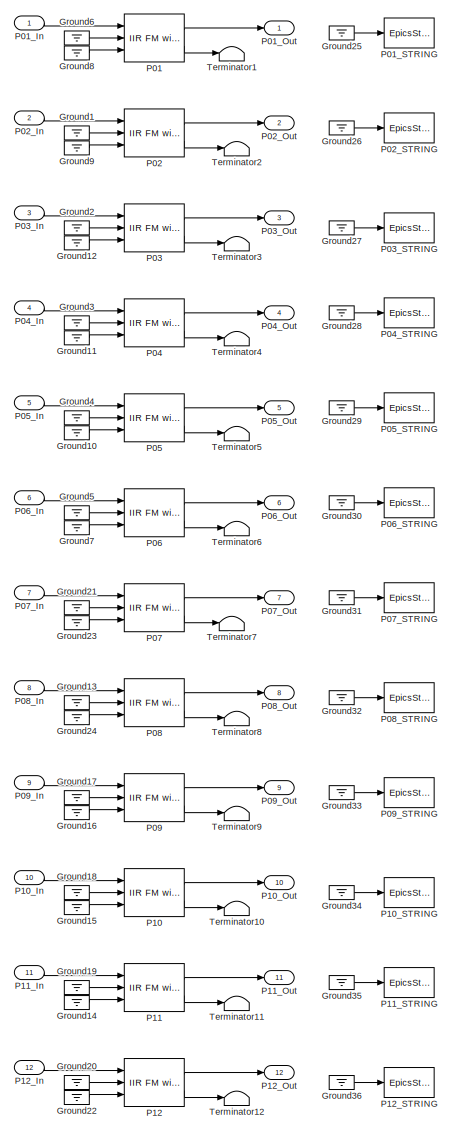
[diagram: TYPEB_PAYLOAD_shutdown/PAYLOAD/DAMP - part 1/2, left side, full height]
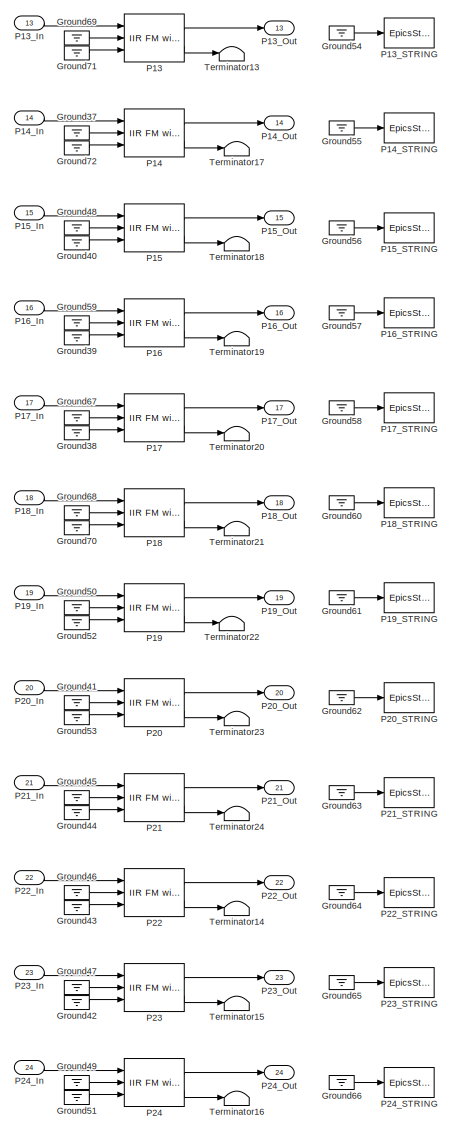
[diagram: TYPEB_PAYLOAD_shutdown/PAYLOAD/DAMP - part 2/2, right side, full height]
BLOCK [SubSystem] TYPEB_PAYLOAD_shutdown/PAYLOAD/DAMP
  Ports = [24, 24]
  RequestExecContextInheritance = off
  SID = 1640:3698
  Variant = off
BLOCK [Ground] TYPEB_PAYLOAD_shutdown/PAYLOAD/DAMP/Ground1
  SID = 1640:3723
BLOCK [Ground] TYPEB_PAYLOAD_shutdown/PAYLOAD/DAMP/Ground10
  SID = 1640:3724
BLOCK [Ground] TYPEB_PAYLOAD_shutdown/PAYLOAD/DAMP/Ground11
  SID = 1640:3725
BLOCK [Ground] TYPEB_PAYLOAD_shutdown/PAYLOAD/DAMP/Ground12
  SID = 1640:3726
BLOCK [Ground] TYPEB_PAYLOAD_shutdown/PAYLOAD/DAMP/Ground13
  SID = 1640:3727
BLOCK [Ground] TYPEB_PAYLOAD_shutdown/PAYLOAD/DAMP/Ground14
  SID = 1640:3728
BLOCK [Ground] TYPEB_PAYLOAD_shutdown/PAYLOAD/DAMP/Ground15
  SID = 1640:3729
BLOCK [Ground] TYPEB_PAYLOAD_shutdown/PAYLOAD/DAMP/Ground16
  SID = 1640:3730
BLOCK [Ground] TYPEB_PAYLOAD_shutdown/PAYLOAD/DAMP/Ground17
  SID = 1640:3731
BLOCK [Ground] TYPEB_PAYLOAD_shutdown/PAYLOAD/DAMP/Ground18
  SID = 1640:3732
BLOCK [Ground] TYPEB_PAYLOAD_shutdown/PAYLOAD/DAMP/Ground19
  SID = 1640:3733
BLOCK [Ground] TYPEB_PAYLOAD_shutdown/PAYLOAD/DAMP/Ground2
  SID = 1640:3734
BLOCK [Ground] TYPEB_PAYLOAD_shutdown/PAYLOAD/DAMP/Ground20
  SID = 1640:3735
BLOCK [Ground] TYPEB_PAYLOAD_shutdown/PAYLOAD/DAMP/Ground21
  SID = 1640:3736
BLOCK [Ground] TYPEB_PAYLOAD_shutdown/PAYLOAD/DAMP/Ground22
  SID = 1640:3737
BLOCK [Ground] TYPEB_PAYLOAD_shutdown/PAYLOAD/DAMP/Ground23
  SID = 1640:3738
BLOCK [Ground] TYPEB_PAYLOAD_shutdown/PAYLOAD/DAMP/Ground24
  SID = 1640:3739
BLOCK [Ground] TYPEB_PAYLOAD_shutdown/PAYLOAD/DAMP/Ground25
  SID = 1640:3740
BLOCK [Ground] TYPEB_PAYLOAD_shutdown/PAYLOAD/DAMP/Ground26
  SID = 1640:3741
BLOCK [Ground] TYPEB_PAYLOAD_shutdown/PAYLOAD/DAMP/Ground27
  SID = 1640:3742
BLOCK [Ground] TYPEB_PAYLOAD_shutdown/PAYLOAD/DAMP/Ground28
  SID = 1640:3743
BLOCK [Ground] TYPEB_PAYLOAD_shutdown/PAYLOAD/DAMP/Ground29
  SID = 1640:3744
BLOCK [Ground] TYPEB_PAYLOAD_shutdown/PAYLOAD/DAMP/Ground3
  SID = 1640:3745
BLOCK [Ground] TYPEB_PAYLOAD_shutdown/PAYLOAD/DAMP/Ground30
  SID = 1640:3746
BLOCK [Ground] TYPEB_PAYLOAD_shutdown/PAYLOAD/DAMP/Ground31
  SID = 1640:3747
BLOCK [Ground] TYPEB_PAYLOAD_shutdown/PAYLOAD/DAMP/Ground32
  SID = 1640:3748
BLOCK [Ground] TYPEB_PAYLOAD_shutdown/PAYLOAD/DAMP/Ground33
  SID = 1640:3749
BLOCK [Ground] TYPEB_PAYLOAD_shutdown/PAYLOAD/DAMP/Ground34
  SID = 1640:3750
BLOCK [Ground] TYPEB_PAYLOAD_shutdown/PAYLOAD/DAMP/Ground35
  SID = 1640:3751
BLOCK [Ground] TYPEB_PAYLOAD_shutdown/PAYLOAD/DAMP/Ground36
  SID = 1640:3752
BLOCK [Ground] TYPEB_PAYLOAD_shutdown/PAYLOAD/DAMP/Ground37
  SID = 1640:3753
BLOCK [Ground] TYPEB_PAYLOAD_shutdown/PAYLOAD/DAMP/Ground38
  SID = 1640:3754
BLOCK [Ground] TYPEB_PAYLOAD_shutdown/PAYLOAD/DAMP/Ground39
  SID = 1640:3755
BLOCK [Ground] TYPEB_PAYLOAD_shutdown/PAYLOAD/DAMP/Ground4
  SID = 1640:3756
BLOCK [Ground] TYPEB_PAYLOAD_shutdown/PAYLOAD/DAMP/Ground40
  SID = 1640:3757
BLOCK [Ground] TYPEB_PAYLOAD_shutdown/PAYLOAD/DAMP/Ground41
  SID = 1640:3758
BLOCK [Ground] TYPEB_PAYLOAD_shutdown/PAYLOAD/DAMP/Ground42
  SID = 1640:3759
BLOCK [Ground] TYPEB_PAYLOAD_shutdown/PAYLOAD/DAMP/Ground43
  SID = 1640:3760
BLOCK [Ground] TYPEB_PAYLOAD_shutdown/PAYLOAD/DAMP/Ground44
  SID = 1640:3761
BLOCK [Ground] TYPEB_PAYLOAD_shutdown/PAYLOAD/DAMP/Ground45
  SID = 1640:3762
BLOCK [Ground] TYPEB_PAYLOAD_shutdown/PAYLOAD/DAMP/Ground46
  SID = 1640:3763
BLOCK [Ground] TYPEB_PAYLOAD_shutdown/PAYLOAD/DAMP/Ground47
  SID = 1640:3764
BLOCK [Ground] TYPEB_PAYLOAD_shutdown/PAYLOAD/DAMP/Ground48
  SID = 1640:3765
BLOCK [Ground] TYPEB_PAYLOAD_shutdown/PAYLOAD/DAMP/Ground49
  SID = 1640:3766
BLOCK [Ground] TYPEB_PAYLOAD_shutdown/PAYLOAD/DAMP/Ground5
  SID = 1640:3767
BLOCK [Ground] TYPEB_PAYLOAD_shutdown/PAYLOAD/DAMP/Ground50
  SID = 1640:3768
BLOCK [Ground] TYPEB_PAYLOAD_shutdown/PAYLOAD/DAMP/Ground51
  SID = 1640:3769
BLOCK [Ground] TYPEB_PAYLOAD_shutdown/PAYLOAD/DAMP/Ground52
  SID = 1640:3770
BLOCK [Ground] TYPEB_PAYLOAD_shutdown/PAYLOAD/DAMP/Ground53
  SID = 1640:3771
BLOCK [Ground] TYPEB_PAYLOAD_shutdown/PAYLOAD/DAMP/Ground54
  SID = 1640:3772
BLOCK [Ground] TYPEB_PAYLOAD_shutdown/PAYLOAD/DAMP/Ground55
  SID = 1640:3773
BLOCK [Ground] TYPEB_PAYLOAD_shutdown/PAYLOAD/DAMP/Ground56
  SID = 1640:3774
BLOCK [Ground] TYPEB_PAYLOAD_shutdown/PAYLOAD/DAMP/Ground57
  SID = 1640:3775
BLOCK [Ground] TYPEB_PAYLOAD_shutdown/PAYLOAD/DAMP/Ground58
  SID = 1640:3776
BLOCK [Ground] TYPEB_PAYLOAD_shutdown/PAYLOAD/DAMP/Ground59
  SID = 1640:3777
BLOCK [Ground] TYPEB_PAYLOAD_shutdown/PAYLOAD/DAMP/Ground6
  SID = 1640:3778
BLOCK [Ground] TYPEB_PAYLOAD_shutdown/PAYLOAD/DAMP/Ground60
  SID = 1640:3779
BLOCK [Ground] TYPEB_PAYLOAD_shutdown/PAYLOAD/DAMP/Ground61
  SID = 1640:3780
BLOCK [Ground] TYPEB_PAYLOAD_shutdown/PAYLOAD/DAMP/Ground62
  SID = 1640:3781
BLOCK [Ground] TYPEB_PAYLOAD_shutdown/PAYLOAD/DAMP/Ground63
  SID = 1640:3782
BLOCK [Ground] TYPEB_PAYLOAD_shutdown/PAYLOAD/DAMP/Ground64
  SID = 1640:3783
BLOCK [Ground] TYPEB_PAYLOAD_shutdown/PAYLOAD/DAMP/Ground65
  SID = 1640:3784
BLOCK [Ground] TYPEB_PAYLOAD_shutdown/PAYLOAD/DAMP/Ground66
  SID = 1640:3785
BLOCK [Ground] TYPEB_PAYLOAD_shutdown/PAYLOAD/DAMP/Ground67
  SID = 1640:3786
BLOCK [Ground] TYPEB_PAYLOAD_shutdown/PAYLOAD/DAMP/Ground68
  SID = 1640:3787
BLOCK [Ground] TYPEB_PAYLOAD_shutdown/PAYLOAD/DAMP/Ground69
  SID = 1640:3788
BLOCK [Ground] TYPEB_PAYLOAD_shutdown/PAYLOAD/DAMP/Ground7
  SID = 1640:3789
BLOCK [Ground] TYPEB_PAYLOAD_shutdown/PAYLOAD/DAMP/Ground70
  SID = 1640:3790
BLOCK [Ground] TYPEB_PAYLOAD_shutdown/PAYLOAD/DAMP/Ground71
  SID = 1640:3791
BLOCK [Ground] TYPEB_PAYLOAD_shutdown/PAYLOAD/DAMP/Ground72
  SID = 1640:3792
BLOCK [Ground] TYPEB_PAYLOAD_shutdown/PAYLOAD/DAMP/Ground8
  SID = 1640:3793
BLOCK [Ground] TYPEB_PAYLOAD_shutdown/PAYLOAD/DAMP/Ground9
  SID = 1640:3794
BLOCK [Reference] TYPEB_PAYLOAD_shutdown/PAYLOAD/DAMP/P01  REF=cdsFiltCtrl/IIR FM with control
  AttributesFormatString = %<Tag>
  Ports = [3, 2]
  SID = 1640:3795
  SourceBlock = cdsFiltCtrl/IIR FM with control
  SourceType = SubSystem
  Tag = cdsFiltCtrl
BLOCK [Inport] TYPEB_PAYLOAD_shutdown/PAYLOAD/DAMP/P01_In
  IconDisplay = Port number
  SID = 1640:3699
BLOCK [Outport] TYPEB_PAYLOAD_shutdown/PAYLOAD/DAMP/P01_Out
  IconDisplay = Port number
  SID = 1640:3867
BLOCK [Reference] TYPEB_PAYLOAD_shutdown/PAYLOAD/DAMP/P01_STRING  REF=cdsEpicsStringIn/EpicsStringIn
  AttributesFormatString = %<Tag>
  Description = cdsEpicsStringIn
  Ports = [1]
  SID = 1640:3796
  SourceBlock = cdsEpicsStringIn/EpicsStringIn
  SourceType = SubSystem
  Tag = cdsEpicsStringIn
BLOCK [Reference] TYPEB_PAYLOAD_shutdown/PAYLOAD/DAMP/P02  REF=cdsFiltCtrl/IIR FM with control
  AttributesFormatString = %<Tag>
  Ports = [3, 2]
  SID = 1640:3797
  SourceBlock = cdsFiltCtrl/IIR FM with control
  SourceType = SubSystem
  Tag = cdsFiltCtrl
BLOCK [Inport] TYPEB_PAYLOAD_shutdown/PAYLOAD/DAMP/P02_In
  IconDisplay = Port number
  Port = 2
  SID = 1640:3700
BLOCK [Outport] TYPEB_PAYLOAD_shutdown/PAYLOAD/DAMP/P02_Out
  IconDisplay = Port number
  Port = 2
  SID = 1640:3868
BLOCK [Reference] TYPEB_PAYLOAD_shutdown/PAYLOAD/DAMP/P02_STRING  REF=cdsEpicsStringIn/EpicsStringIn
  AttributesFormatString = %<Tag>
  Description = cdsEpicsStringIn
  Ports = [1]
  SID = 1640:3798
  SourceBlock = cdsEpicsStringIn/EpicsStringIn
  SourceType = SubSystem
  Tag = cdsEpicsStringIn
BLOCK [Reference] TYPEB_PAYLOAD_shutdown/PAYLOAD/DAMP/P03  REF=cdsFiltCtrl/IIR FM with control
  AttributesFormatString = %<Tag>
  Ports = [3, 2]
  SID = 1640:3799
  SourceBlock = cdsFiltCtrl/IIR FM with control
  SourceType = SubSystem
  Tag = cdsFiltCtrl
BLOCK [Inport] TYPEB_PAYLOAD_shutdown/PAYLOAD/DAMP/P03_In
  IconDisplay = Port number
  Port = 3
  SID = 1640:3701
BLOCK [Outport] TYPEB_PAYLOAD_shutdown/PAYLOAD/DAMP/P03_Out
  IconDisplay = Port number
  Port = 3
  SID = 1640:3869
BLOCK [Reference] TYPEB_PAYLOAD_shutdown/PAYLOAD/DAMP/P03_STRING  REF=cdsEpicsStringIn/EpicsStringIn
  AttributesFormatString = %<Tag>
  Description = cdsEpicsStringIn
  Ports = [1]
  SID = 1640:3800
  SourceBlock = cdsEpicsStringIn/EpicsStringIn
  SourceType = SubSystem
  Tag = cdsEpicsStringIn
BLOCK [Reference] TYPEB_PAYLOAD_shutdown/PAYLOAD/DAMP/P04  REF=cdsFiltCtrl/IIR FM with control
  AttributesFormatString = %<Tag>
  Ports = [3, 2]
  SID = 1640:3801
  SourceBlock = cdsFiltCtrl/IIR FM with control
  SourceType = SubSystem
  Tag = cdsFiltCtrl
BLOCK [Inport] TYPEB_PAYLOAD_shutdown/PAYLOAD/DAMP/P04_In
  IconDisplay = Port number
  Port = 4
  SID = 1640:3702
BLOCK [Outport] TYPEB_PAYLOAD_shutdown/PAYLOAD/DAMP/P04_Out
  IconDisplay = Port number
  Port = 4
  SID = 1640:3870
BLOCK [Reference] TYPEB_PAYLOAD_shutdown/PAYLOAD/DAMP/P04_STRING  REF=cdsEpicsStringIn/EpicsStringIn
  AttributesFormatString = %<Tag>
  Description = cdsEpicsStringIn
  Ports = [1]
  SID = 1640:3802
  SourceBlock = cdsEpicsStringIn/EpicsStringIn
  SourceType = SubSystem
  Tag = cdsEpicsStringIn
BLOCK [Reference] TYPEB_PAYLOAD_shutdown/PAYLOAD/DAMP/P05  REF=cdsFiltCtrl/IIR FM with control
  AttributesFormatString = %<Tag>
  Ports = [3, 2]
  SID = 1640:3803
  SourceBlock = cdsFiltCtrl/IIR FM with control
  SourceType = SubSystem
  Tag = cdsFiltCtrl
BLOCK [Inport] TYPEB_PAYLOAD_shutdown/PAYLOAD/DAMP/P05_In
  IconDisplay = Port number
  Port = 5
  SID = 1640:3703
BLOCK [Outport] TYPEB_PAYLOAD_shutdown/PAYLOAD/DAMP/P05_Out
  IconDisplay = Port number
  Port = 5
  SID = 1640:3871
BLOCK [Reference] TYPEB_PAYLOAD_shutdown/PAYLOAD/DAMP/P05_STRING  REF=cdsEpicsStringIn/EpicsStringIn
  AttributesFormatString = %<Tag>
  Description = cdsEpicsStringIn
  Ports = [1]
  SID = 1640:3804
  SourceBlock = cdsEpicsStringIn/EpicsStringIn
  SourceType = SubSystem
  Tag = cdsEpicsStringIn
BLOCK [Reference] TYPEB_PAYLOAD_shutdown/PAYLOAD/DAMP/P06  REF=cdsFiltCtrl/IIR FM with control
  AttributesFormatString = %<Tag>
  Ports = [3, 2]
  SID = 1640:3805
  SourceBlock = cdsFiltCtrl/IIR FM with control
  SourceType = SubSystem
  Tag = cdsFiltCtrl
BLOCK [Inport] TYPEB_PAYLOAD_shutdown/PAYLOAD/DAMP/P06_In
  IconDisplay = Port number
  Port = 6
  SID = 1640:3704
BLOCK [Outport] TYPEB_PAYLOAD_shutdown/PAYLOAD/DAMP/P06_Out
  IconDisplay = Port number
  Port = 6
  SID = 1640:3872
BLOCK [Reference] TYPEB_PAYLOAD_shutdown/PAYLOAD/DAMP/P06_STRING  REF=cdsEpicsStringIn/EpicsStringIn
  AttributesFormatString = %<Tag>
  Description = cdsEpicsStringIn
  Ports = [1]
  SID = 1640:3806
  SourceBlock = cdsEpicsStringIn/EpicsStringIn
  SourceType = SubSystem
  Tag = cdsEpicsStringIn
BLOCK [Reference] TYPEB_PAYLOAD_shutdown/PAYLOAD/DAMP/P07  REF=cdsFiltCtrl/IIR FM with control
  AttributesFormatString = %<Tag>
  Ports = [3, 2]
  SID = 1640:3807
  SourceBlock = cdsFiltCtrl/IIR FM with control
  SourceType = SubSystem
  Tag = cdsFiltCtrl
BLOCK [Inport] TYPEB_PAYLOAD_shutdown/PAYLOAD/DAMP/P07_In
  IconDisplay = Port number
  Port = 7
  SID = 1640:3705
BLOCK [Outport] TYPEB_PAYLOAD_shutdown/PAYLOAD/DAMP/P07_Out
  IconDisplay = Port number
  Port = 7
  SID = 1640:3873
BLOCK [Reference] TYPEB_PAYLOAD_shutdown/PAYLOAD/DAMP/P07_STRING  REF=cdsEpicsStringIn/EpicsStringIn
  AttributesFormatString = %<Tag>
  Description = cdsEpicsStringIn
  Ports = [1]
  SID = 1640:3808
  SourceBlock = cdsEpicsStringIn/EpicsStringIn
  SourceType = SubSystem
  Tag = cdsEpicsStringIn
BLOCK [Reference] TYPEB_PAYLOAD_shutdown/PAYLOAD/DAMP/P08  REF=cdsFiltCtrl/IIR FM with control
  AttributesFormatString = %<Tag>
  Ports = [3, 2]
  SID = 1640:3809
  SourceBlock = cdsFiltCtrl/IIR FM with control
  SourceType = SubSystem
  Tag = cdsFiltCtrl
BLOCK [Inport] TYPEB_PAYLOAD_shutdown/PAYLOAD/DAMP/P08_In
  IconDisplay = Port number
  Port = 8
  SID = 1640:3706
BLOCK [Outport] TYPEB_PAYLOAD_shutdown/PAYLOAD/DAMP/P08_Out
  IconDisplay = Port number
  Port = 8
  SID = 1640:3874
BLOCK [Reference] TYPEB_PAYLOAD_shutdown/PAYLOAD/DAMP/P08_STRING  REF=cdsEpicsStringIn/EpicsStringIn
  AttributesFormatString = %<Tag>
  Description = cdsEpicsStringIn
  Ports = [1]
  SID = 1640:3810
  SourceBlock = cdsEpicsStringIn/EpicsStringIn
  SourceType = SubSystem
  Tag = cdsEpicsStringIn
BLOCK [Reference] TYPEB_PAYLOAD_shutdown/PAYLOAD/DAMP/P09  REF=cdsFiltCtrl/IIR FM with control
  AttributesFormatString = %<Tag>
  Ports = [3, 2]
  SID = 1640:3811
  SourceBlock = cdsFiltCtrl/IIR FM with control
  SourceType = SubSystem
  Tag = cdsFiltCtrl
BLOCK [Inport] TYPEB_PAYLOAD_shutdown/PAYLOAD/DAMP/P09_In
  IconDisplay = Port number
  Port = 9
  SID = 1640:3707
BLOCK [Outport] TYPEB_PAYLOAD_shutdown/PAYLOAD/DAMP/P09_Out
  IconDisplay = Port number
  Port = 9
  SID = 1640:3875
BLOCK [Reference] TYPEB_PAYLOAD_shutdown/PAYLOAD/DAMP/P09_STRING  REF=cdsEpicsStringIn/EpicsStringIn
  AttributesFormatString = %<Tag>
  Description = cdsEpicsStringIn
  Ports = [1]
  SID = 1640:3812
  SourceBlock = cdsEpicsStringIn/EpicsStringIn
  SourceType = SubSystem
  Tag = cdsEpicsStringIn
BLOCK [Reference] TYPEB_PAYLOAD_shutdown/PAYLOAD/DAMP/P10  REF=cdsFiltCtrl/IIR FM with control
  AttributesFormatString = %<Tag>
  Ports = [3, 2]
  SID = 1640:3813
  SourceBlock = cdsFiltCtrl/IIR FM with control
  SourceType = SubSystem
  Tag = cdsFiltCtrl
BLOCK [Inport] TYPEB_PAYLOAD_shutdown/PAYLOAD/DAMP/P10_In
  IconDisplay = Port number
  Port = 10
  SID = 1640:3708
BLOCK [Outport] TYPEB_PAYLOAD_shutdown/PAYLOAD/DAMP/P10_Out
  IconDisplay = Port number
  Port = 10
  SID = 1640:3876
BLOCK [Reference] TYPEB_PAYLOAD_shutdown/PAYLOAD/DAMP/P10_STRING  REF=cdsEpicsStringIn/EpicsStringIn
  AttributesFormatString = %<Tag>
  Description = cdsEpicsStringIn
  Ports = [1]
  SID = 1640:3814
  SourceBlock = cdsEpicsStringIn/EpicsStringIn
  SourceType = SubSystem
  Tag = cdsEpicsStringIn
BLOCK [Reference] TYPEB_PAYLOAD_shutdown/PAYLOAD/DAMP/P11  REF=cdsFiltCtrl/IIR FM with control
  AttributesFormatString = %<Tag>
  Ports = [3, 2]
  SID = 1640:3815
  SourceBlock = cdsFiltCtrl/IIR FM with control
  SourceType = SubSystem
  Tag = cdsFiltCtrl
BLOCK [Inport] TYPEB_PAYLOAD_shutdown/PAYLOAD/DAMP/P11_In
  IconDisplay = Port number
  Port = 11
  SID = 1640:3709
BLOCK [Outport] TYPEB_PAYLOAD_shutdown/PAYLOAD/DAMP/P11_Out
  IconDisplay = Port number
  Port = 11
  SID = 1640:3877
BLOCK [Reference] TYPEB_PAYLOAD_shutdown/PAYLOAD/DAMP/P11_STRING  REF=cdsEpicsStringIn/EpicsStringIn
  AttributesFormatString = %<Tag>
  Description = cdsEpicsStringIn
  Ports = [1]
  SID = 1640:3816
  SourceBlock = cdsEpicsStringIn/EpicsStringIn
  SourceType = SubSystem
  Tag = cdsEpicsStringIn
BLOCK [Reference] TYPEB_PAYLOAD_shutdown/PAYLOAD/DAMP/P12  REF=cdsFiltCtrl/IIR FM with control
  AttributesFormatString = %<Tag>
  Ports = [3, 2]
  SID = 1640:3817
  SourceBlock = cdsFiltCtrl/IIR FM with control
  SourceType = SubSystem
  Tag = cdsFiltCtrl
BLOCK [Inport] TYPEB_PAYLOAD_shutdown/PAYLOAD/DAMP/P12_In
  IconDisplay = Port number
  Port = 12
  SID = 1640:3710
BLOCK [Outport] TYPEB_PAYLOAD_shutdown/PAYLOAD/DAMP/P12_Out
  IconDisplay = Port number
  Port = 12
  SID = 1640:3878
BLOCK [Reference] TYPEB_PAYLOAD_shutdown/PAYLOAD/DAMP/P12_STRING  REF=cdsEpicsStringIn/EpicsStringIn
  AttributesFormatString = %<Tag>
  Description = cdsEpicsStringIn
  Ports = [1]
  SID = 1640:3818
  SourceBlock = cdsEpicsStringIn/EpicsStringIn
  SourceType = SubSystem
  Tag = cdsEpicsStringIn
BLOCK [Reference] TYPEB_PAYLOAD_shutdown/PAYLOAD/DAMP/P13  REF=cdsFiltCtrl/IIR FM with control
  AttributesFormatString = %<Tag>
  Ports = [3, 2]
  SID = 1640:3819
  SourceBlock = cdsFiltCtrl/IIR FM with control
  SourceType = SubSystem
  Tag = cdsFiltCtrl
BLOCK [Inport] TYPEB_PAYLOAD_shutdown/PAYLOAD/DAMP/P13_In
  IconDisplay = Port number
  Port = 13
  SID = 1640:3711
BLOCK [Outport] TYPEB_PAYLOAD_shutdown/PAYLOAD/DAMP/P13_Out
  IconDisplay = Port number
  Port = 13
  SID = 1640:3879
BLOCK [Reference] TYPEB_PAYLOAD_shutdown/PAYLOAD/DAMP/P13_STRING  REF=cdsEpicsStringIn/EpicsStringIn
  AttributesFormatString = %<Tag>
  Description = cdsEpicsStringIn
  Ports = [1]
  SID = 1640:3820
  SourceBlock = cdsEpicsStringIn/EpicsStringIn
  SourceType = SubSystem
  Tag = cdsEpicsStringIn
BLOCK [Reference] TYPEB_PAYLOAD_shutdown/PAYLOAD/DAMP/P14  REF=cdsFiltCtrl/IIR FM with control
  AttributesFormatString = %<Tag>
  Ports = [3, 2]
  SID = 1640:3821
  SourceBlock = cdsFiltCtrl/IIR FM with control
  SourceType = SubSystem
  Tag = cdsFiltCtrl
BLOCK [Inport] TYPEB_PAYLOAD_shutdown/PAYLOAD/DAMP/P14_In
  IconDisplay = Port number
  Port = 14
  SID = 1640:3712
BLOCK [Outport] TYPEB_PAYLOAD_shutdown/PAYLOAD/DAMP/P14_Out
  IconDisplay = Port number
  Port = 14
  SID = 1640:3880
BLOCK [Reference] TYPEB_PAYLOAD_shutdown/PAYLOAD/DAMP/P14_STRING  REF=cdsEpicsStringIn/EpicsStringIn
  AttributesFormatString = %<Tag>
  Description = cdsEpicsStringIn
  Ports = [1]
  SID = 1640:3822
  SourceBlock = cdsEpicsStringIn/EpicsStringIn
  SourceType = SubSystem
  Tag = cdsEpicsStringIn
BLOCK [Reference] TYPEB_PAYLOAD_shutdown/PAYLOAD/DAMP/P15  REF=cdsFiltCtrl/IIR FM with control
  AttributesFormatString = %<Tag>
  Ports = [3, 2]
  SID = 1640:3823
  SourceBlock = cdsFiltCtrl/IIR FM with control
  SourceType = SubSystem
  Tag = cdsFiltCtrl
BLOCK [Inport] TYPEB_PAYLOAD_shutdown/PAYLOAD/DAMP/P15_In
  IconDisplay = Port number
  Port = 15
  SID = 1640:3713
BLOCK [Outport] TYPEB_PAYLOAD_shutdown/PAYLOAD/DAMP/P15_Out
  IconDisplay = Port number
  Port = 15
  SID = 1640:3881
BLOCK [Reference] TYPEB_PAYLOAD_shutdown/PAYLOAD/DAMP/P15_STRING  REF=cdsEpicsStringIn/EpicsStringIn
  AttributesFormatString = %<Tag>
  Description = cdsEpicsStringIn
  Ports = [1]
  SID = 1640:3824
  SourceBlock = cdsEpicsStringIn/EpicsStringIn
  SourceType = SubSystem
  Tag = cdsEpicsStringIn
BLOCK [Reference] TYPEB_PAYLOAD_shutdown/PAYLOAD/DAMP/P16  REF=cdsFiltCtrl/IIR FM with control
  AttributesFormatString = %<Tag>
  Ports = [3, 2]
  SID = 1640:3825
  SourceBlock = cdsFiltCtrl/IIR FM with control
  SourceType = SubSystem
  Tag = cdsFiltCtrl
BLOCK [Inport] TYPEB_PAYLOAD_shutdown/PAYLOAD/DAMP/P16_In
  IconDisplay = Port number
  Port = 16
  SID = 1640:3714
BLOCK [Outport] TYPEB_PAYLOAD_shutdown/PAYLOAD/DAMP/P16_Out
  IconDisplay = Port number
  Port = 16
  SID = 1640:3882
BLOCK [Reference] TYPEB_PAYLOAD_shutdown/PAYLOAD/DAMP/P16_STRING  REF=cdsEpicsStringIn/EpicsStringIn
  AttributesFormatString = %<Tag>
  Description = cdsEpicsStringIn
  Ports = [1]
  SID = 1640:3826
  SourceBlock = cdsEpicsStringIn/EpicsStringIn
  SourceType = SubSystem
  Tag = cdsEpicsStringIn
BLOCK [Reference] TYPEB_PAYLOAD_shutdown/PAYLOAD/DAMP/P17  REF=cdsFiltCtrl/IIR FM with control
  AttributesFormatString = %<Tag>
  Ports = [3, 2]
  SID = 1640:3827
  SourceBlock = cdsFiltCtrl/IIR FM with control
  SourceType = SubSystem
  Tag = cdsFiltCtrl
BLOCK [Inport] TYPEB_PAYLOAD_shutdown/PAYLOAD/DAMP/P17_In
  IconDisplay = Port number
  Port = 17
  SID = 1640:3715
BLOCK [Outport] TYPEB_PAYLOAD_shutdown/PAYLOAD/DAMP/P17_Out
  IconDisplay = Port number
  Port = 17
  SID = 1640:3883
BLOCK [Reference] TYPEB_PAYLOAD_shutdown/PAYLOAD/DAMP/P17_STRING  REF=cdsEpicsStringIn/EpicsStringIn
  AttributesFormatString = %<Tag>
  Description = cdsEpicsStringIn
  Ports = [1]
  SID = 1640:3828
  SourceBlock = cdsEpicsStringIn/EpicsStringIn
  SourceType = SubSystem
  Tag = cdsEpicsStringIn
BLOCK [Reference] TYPEB_PAYLOAD_shutdown/PAYLOAD/DAMP/P18  REF=cdsFiltCtrl/IIR FM with control
  AttributesFormatString = %<Tag>
  Ports = [3, 2]
  SID = 1640:3829
  SourceBlock = cdsFiltCtrl/IIR FM with control
  SourceType = SubSystem
  Tag = cdsFiltCtrl
BLOCK [Inport] TYPEB_PAYLOAD_shutdown/PAYLOAD/DAMP/P18_In
  IconDisplay = Port number
  Port = 18
  SID = 1640:3716
BLOCK [Outport] TYPEB_PAYLOAD_shutdown/PAYLOAD/DAMP/P18_Out
  IconDisplay = Port number
  Port = 18
  SID = 1640:3884
BLOCK [Reference] TYPEB_PAYLOAD_shutdown/PAYLOAD/DAMP/P18_STRING  REF=cdsEpicsStringIn/EpicsStringIn
  AttributesFormatString = %<Tag>
  Description = cdsEpicsStringIn
  Ports = [1]
  SID = 1640:3830
  SourceBlock = cdsEpicsStringIn/EpicsStringIn
  SourceType = SubSystem
  Tag = cdsEpicsStringIn
BLOCK [Reference] TYPEB_PAYLOAD_shutdown/PAYLOAD/DAMP/P19  REF=cdsFiltCtrl/IIR FM with control
  AttributesFormatString = %<Tag>
  Ports = [3, 2]
  SID = 1640:3831
  SourceBlock = cdsFiltCtrl/IIR FM with control
  SourceType = SubSystem
  Tag = cdsFiltCtrl
BLOCK [Inport] TYPEB_PAYLOAD_shutdown/PAYLOAD/DAMP/P19_In
  IconDisplay = Port number
  Port = 19
  SID = 1640:3717
BLOCK [Outport] TYPEB_PAYLOAD_shutdown/PAYLOAD/DAMP/P19_Out
  IconDisplay = Port number
  Port = 19
  SID = 1640:3885
BLOCK [Reference] TYPEB_PAYLOAD_shutdown/PAYLOAD/DAMP/P19_STRING  REF=cdsEpicsStringIn/EpicsStringIn
  AttributesFormatString = %<Tag>
  Description = cdsEpicsStringIn
  Ports = [1]
  SID = 1640:3832
  SourceBlock = cdsEpicsStringIn/EpicsStringIn
  SourceType = SubSystem
  Tag = cdsEpicsStringIn
BLOCK [Reference] TYPEB_PAYLOAD_shutdown/PAYLOAD/DAMP/P20  REF=cdsFiltCtrl/IIR FM with control
  AttributesFormatString = %<Tag>
  Ports = [3, 2]
  SID = 1640:3833
  SourceBlock = cdsFiltCtrl/IIR FM with control
  SourceType = SubSystem
  Tag = cdsFiltCtrl
BLOCK [Inport] TYPEB_PAYLOAD_shutdown/PAYLOAD/DAMP/P20_In
  IconDisplay = Port number
  Port = 20
  SID = 1640:3718
BLOCK [Outport] TYPEB_PAYLOAD_shutdown/PAYLOAD/DAMP/P20_Out
  IconDisplay = Port number
  Port = 20
  SID = 1640:3886
BLOCK [Reference] TYPEB_PAYLOAD_shutdown/PAYLOAD/DAMP/P20_STRING  REF=cdsEpicsStringIn/EpicsStringIn
  AttributesFormatString = %<Tag>
  Description = cdsEpicsStringIn
  Ports = [1]
  SID = 1640:3834
  SourceBlock = cdsEpicsStringIn/EpicsStringIn
  SourceType = SubSystem
  Tag = cdsEpicsStringIn
BLOCK [Reference] TYPEB_PAYLOAD_shutdown/PAYLOAD/DAMP/P21  REF=cdsFiltCtrl/IIR FM with control
  AttributesFormatString = %<Tag>
  Ports = [3, 2]
  SID = 1640:3835
  SourceBlock = cdsFiltCtrl/IIR FM with control
  SourceType = SubSystem
  Tag = cdsFiltCtrl
BLOCK [Inport] TYPEB_PAYLOAD_shutdown/PAYLOAD/DAMP/P21_In
  IconDisplay = Port number
  Port = 21
  SID = 1640:3719
BLOCK [Outport] TYPEB_PAYLOAD_shutdown/PAYLOAD/DAMP/P21_Out
  IconDisplay = Port number
  Port = 21
  SID = 1640:3887
BLOCK [Reference] TYPEB_PAYLOAD_shutdown/PAYLOAD/DAMP/P21_STRING  REF=cdsEpicsStringIn/EpicsStringIn
  AttributesFormatString = %<Tag>
  Description = cdsEpicsStringIn
  Ports = [1]
  SID = 1640:3836
  SourceBlock = cdsEpicsStringIn/EpicsStringIn
  SourceType = SubSystem
  Tag = cdsEpicsStringIn
BLOCK [Reference] TYPEB_PAYLOAD_shutdown/PAYLOAD/DAMP/P22  REF=cdsFiltCtrl/IIR FM with control
  AttributesFormatString = %<Tag>
  Ports = [3, 2]
  SID = 1640:3837
  SourceBlock = cdsFiltCtrl/IIR FM with control
  SourceType = SubSystem
  Tag = cdsFiltCtrl
BLOCK [Inport] TYPEB_PAYLOAD_shutdown/PAYLOAD/DAMP/P22_In
  IconDisplay = Port number
  Port = 22
  SID = 1640:3720
BLOCK [Outport] TYPEB_PAYLOAD_shutdown/PAYLOAD/DAMP/P22_Out
  IconDisplay = Port number
  Port = 22
  SID = 1640:3888
BLOCK [Reference] TYPEB_PAYLOAD_shutdown/PAYLOAD/DAMP/P22_STRING  REF=cdsEpicsStringIn/EpicsStringIn
  AttributesFormatString = %<Tag>
  Description = cdsEpicsStringIn
  Ports = [1]
  SID = 1640:3838
  SourceBlock = cdsEpicsStringIn/EpicsStringIn
  SourceType = SubSystem
  Tag = cdsEpicsStringIn
BLOCK [Reference] TYPEB_PAYLOAD_shutdown/PAYLOAD/DAMP/P23  REF=cdsFiltCtrl/IIR FM with control
  AttributesFormatString = %<Tag>
  Ports = [3, 2]
  SID = 1640:3839
  SourceBlock = cdsFiltCtrl/IIR FM with control
  SourceType = SubSystem
  Tag = cdsFiltCtrl
BLOCK [Inport] TYPEB_PAYLOAD_shutdown/PAYLOAD/DAMP/P23_In
  IconDisplay = Port number
  Port = 23
  SID = 1640:3721
BLOCK [Outport] TYPEB_PAYLOAD_shutdown/PAYLOAD/DAMP/P23_Out
  IconDisplay = Port number
  Port = 23
  SID = 1640:3889
BLOCK [Reference] TYPEB_PAYLOAD_shutdown/PAYLOAD/DAMP/P23_STRING  REF=cdsEpicsStringIn/EpicsStringIn
  AttributesFormatString = %<Tag>
  Description = cdsEpicsStringIn
  Ports = [1]
  SID = 1640:3840
  SourceBlock = cdsEpicsStringIn/EpicsStringIn
  SourceType = SubSystem
  Tag = cdsEpicsStringIn
BLOCK [Reference] TYPEB_PAYLOAD_shutdown/PAYLOAD/DAMP/P24  REF=cdsFiltCtrl/IIR FM with control
  AttributesFormatString = %<Tag>
  Ports = [3, 2]
  SID = 1640:3841
  SourceBlock = cdsFiltCtrl/IIR FM with control
  SourceType = SubSystem
  Tag = cdsFiltCtrl
BLOCK [Inport] TYPEB_PAYLOAD_shutdown/PAYLOAD/DAMP/P24_In
  IconDisplay = Port number
  Port = 24
  SID = 1640:3722
BLOCK [Outport] TYPEB_PAYLOAD_shutdown/PAYLOAD/DAMP/P24_Out
  IconDisplay = Port number
  Port = 24
  SID = 1640:3890
BLOCK [Reference] TYPEB_PAYLOAD_shutdown/PAYLOAD/DAMP/P24_STRING  REF=cdsEpicsStringIn/EpicsStringIn
  AttributesFormatString = %<Tag>
  Description = cdsEpicsStringIn
  Ports = [1]
  SID = 1640:3842
  SourceBlock = cdsEpicsStringIn/EpicsStringIn
  SourceType = SubSystem
  Tag = cdsEpicsStringIn
BLOCK [Terminator] TYPEB_PAYLOAD_shutdown/PAYLOAD/DAMP/Terminator1
  SID = 1640:3843
BLOCK [Terminator] TYPEB_PAYLOAD_shutdown/PAYLOAD/DAMP/Terminator10
  SID = 1640:3844
BLOCK [Terminator] TYPEB_PAYLOAD_shutdown/PAYLOAD/DAMP/Terminator11
  SID = 1640:3845
BLOCK [Terminator] TYPEB_PAYLOAD_shutdown/PAYLOAD/DAMP/Terminator12
  SID = 1640:3846
BLOCK [Terminator] TYPEB_PAYLOAD_shutdown/PAYLOAD/DAMP/Terminator13
  SID = 1640:3847
BLOCK [Terminator] TYPEB_PAYLOAD_shutdown/PAYLOAD/DAMP/Terminator14
  SID = 1640:3848
BLOCK [Terminator] TYPEB_PAYLOAD_shutdown/PAYLOAD/DAMP/Terminator15
  SID = 1640:3849
BLOCK [Terminator] TYPEB_PAYLOAD_shutdown/PAYLOAD/DAMP/Terminator16
  SID = 1640:3850
BLOCK [Terminator] TYPEB_PAYLOAD_shutdown/PAYLOAD/DAMP/Terminator17
  SID = 1640:3851
BLOCK [Terminator] TYPEB_PAYLOAD_shutdown/PAYLOAD/DAMP/Terminator18
  SID = 1640:3852
BLOCK [Terminator] TYPEB_PAYLOAD_shutdown/PAYLOAD/DAMP/Terminator19
  SID = 1640:3853
BLOCK [Terminator] TYPEB_PAYLOAD_shutdown/PAYLOAD/DAMP/Terminator2
  SID = 1640:3854
BLOCK [Terminator] TYPEB_PAYLOAD_shutdown/PAYLOAD/DAMP/Terminator20
  SID = 1640:3855
BLOCK [Terminator] TYPEB_PAYLOAD_shutdown/PAYLOAD/DAMP/Terminator21
  SID = 1640:3856
BLOCK [Terminator] TYPEB_PAYLOAD_shutdown/PAYLOAD/DAMP/Terminator22
  SID = 1640:3857
BLOCK [Terminator] TYPEB_PAYLOAD_shutdown/PAYLOAD/DAMP/Terminator23
  SID = 1640:3858
BLOCK [Terminator] TYPEB_PAYLOAD_shutdown/PAYLOAD/DAMP/Terminator24
  SID = 1640:3859
BLOCK [Terminator] TYPEB_PAYLOAD_shutdown/PAYLOAD/DAMP/Terminator3
  SID = 1640:3860
BLOCK [Terminator] TYPEB_PAYLOAD_shutdown/PAYLOAD/DAMP/Terminator4
  SID = 1640:3861
BLOCK [Terminator] TYPEB_PAYLOAD_shutdown/PAYLOAD/DAMP/Terminator5
  SID = 1640:3862
BLOCK [Terminator] TYPEB_PAYLOAD_shutdown/PAYLOAD/DAMP/Terminator6
  SID = 1640:3863
BLOCK [Terminator] TYPEB_PAYLOAD_shutdown/PAYLOAD/DAMP/Terminator7
  SID = 1640:3864
BLOCK [Terminator] TYPEB_PAYLOAD_shutdown/PAYLOAD/DAMP/Terminator8
  SID = 1640:3865
BLOCK [Terminator] TYPEB_PAYLOAD_shutdown/PAYLOAD/DAMP/Terminator9
  SID = 1640:3866
BLOCK [Demux] TYPEB_PAYLOAD_shutdown/PAYLOAD/Demux1
  DisplayOption = bar
  Outputs = 24
  Ports = [1, 24]
  SID = 1640:3891
BLOCK [Demux] TYPEB_PAYLOAD_shutdown/PAYLOAD/Demux2
  DisplayOption = bar
  Outputs = 6
  Ports = [1, 6]
  SID = 1640:3892
BLOCK [Demux] TYPEB_PAYLOAD_shutdown/PAYLOAD/Demux4
  DisplayOption = bar
  Outputs = 25
  Ports = [1, 25]
  SID = 1640:3893
BLOCK [Ground] TYPEB_PAYLOAD_shutdown/PAYLOAD/Ground12
  SID = 1640:3894
BLOCK [Inport] TYPEB_PAYLOAD_shutdown/PAYLOAD/IML_In
  IconDisplay = Port number
  SID = 1640:3494
BLOCK [Outport] TYPEB_PAYLOAD_shutdown/PAYLOAD/IML_Out
  IconDisplay = Port number
  SID = 1640:4138
BLOCK [Inport] TYPEB_PAYLOAD_shutdown/PAYLOAD/IMP_In
  IconDisplay = Port number
  Port = 5
  SID = 1640:3498
BLOCK [Outport] TYPEB_PAYLOAD_shutdown/PAYLOAD/IMP_Out
  IconDisplay = Port number
  Port = 5
  SID = 1640:4142
BLOCK [Outport] TYPEB_PAYLOAD_shutdown/PAYLOAD/IMR_Out
  IconDisplay = Port number
  Port = 4
  SID = 1640:4141
BLOCK [Inport] TYPEB_PAYLOAD_shutdown/PAYLOAD/IMT_In
  IconDisplay = Port number
  Port = 2
  SID = 1640:3495
BLOCK [Outport] TYPEB_PAYLOAD_shutdown/PAYLOAD/IMT_Out
  IconDisplay = Port number
  Port = 2
  SID = 1640:4139
BLOCK [Inport] TYPEB_PAYLOAD_shutdown/PAYLOAD/IMV_In
  IconDisplay = Port number
  Port = 3
  SID = 1640:3496
BLOCK [Outport] TYPEB_PAYLOAD_shutdown/PAYLOAD/IMV_Out
  IconDisplay = Port number
  Port = 3
  SID = 1640:4140
BLOCK [Inport] TYPEB_PAYLOAD_shutdown/PAYLOAD/IMY_In
  IconDisplay = Port number
  Port = 6
  SID = 1640:3499
BLOCK [Outport] TYPEB_PAYLOAD_shutdown/PAYLOAD/IMY_Out
  IconDisplay = Port number
  Port = 6
  SID = 1640:4143
BLOCK [Inport] TYPEB_PAYLOAD_shutdown/PAYLOAD/ISCL_In
  IconDisplay = Port number
  Port = 9
  SID = 1640:3502
BLOCK [Inport] TYPEB_PAYLOAD_shutdown/PAYLOAD/ISCP_In
  IconDisplay = Port number
  Port = 10
  SID = 1640:3503
BLOCK [Inport] TYPEB_PAYLOAD_shutdown/PAYLOAD/ISCY_In
  IconDisplay = Port number
  Port = 11
  SID = 1640:3504
BLOCK [SubSystem] TYPEB_PAYLOAD_shutdown/PAYLOAD/MONSERVO
  Ports = [6, 6]
  RequestExecContextInheritance = off
  SID = 1640:3895
  Variant = off
BLOCK [Reference] TYPEB_PAYLOAD_shutdown/PAYLOAD/MONSERVO/L  REF=cdsFilt/Subsystem
  AttributesFormatString = %<Tag>
  Ports = [1, 1]
  SID = 1640:3902
  SourceBlock = cdsFilt/Subsystem
  SourceType = SubSystem
  Tag = cdsFilt
BLOCK [Inport] TYPEB_PAYLOAD_shutdown/PAYLOAD/MONSERVO/LONG_In
  IconDisplay = Port number
  SID = 1640:3896
BLOCK [Outport] TYPEB_PAYLOAD_shutdown/PAYLOAD/MONSERVO/LONG_Out
  IconDisplay = Port number
  SID = 1640:3908
BLOCK [Reference] TYPEB_PAYLOAD_shutdown/PAYLOAD/MONSERVO/P  REF=cdsFilt/Subsystem
  AttributesFormatString = %<Tag>
  Ports = [1, 1]
  SID = 1640:3903
  SourceBlock = cdsFilt/Subsystem
  SourceType = SubSystem
  Tag = cdsFilt
BLOCK [Inport] TYPEB_PAYLOAD_shutdown/PAYLOAD/MONSERVO/PITCH_In
  IconDisplay = Port number
  Port = 5
  SID = 1640:3900
BLOCK [Outport] TYPEB_PAYLOAD_shutdown/PAYLOAD/MONSERVO/PITCH_Out
  IconDisplay = Port number
  Port = 5
  SID = 1640:3912
BLOCK [Reference] TYPEB_PAYLOAD_shutdown/PAYLOAD/MONSERVO/R  REF=cdsFilt/Subsystem
  AttributesFormatString = %<Tag>
  Ports = [1, 1]
  SID = 1640:3904
  SourceBlock = cdsFilt/Subsystem
  SourceType = SubSystem
  Tag = cdsFilt
BLOCK [Inport] TYPEB_PAYLOAD_shutdown/PAYLOAD/MONSERVO/ROLL_In
  IconDisplay = Port number
  Port = 4
  SID = 1640:3899
BLOCK [Outport] TYPEB_PAYLOAD_shutdown/PAYLOAD/MONSERVO/ROLL_Out
  IconDisplay = Port number
  Port = 4
  SID = 1640:3911
BLOCK [Reference] TYPEB_PAYLOAD_shutdown/PAYLOAD/MONSERVO/T  REF=cdsFilt/Subsystem
  AttributesFormatString = %<Tag>
  Ports = [1, 1]
  SID = 1640:3905
  SourceBlock = cdsFilt/Subsystem
  SourceType = SubSystem
  Tag = cdsFilt
BLOCK [Inport] TYPEB_PAYLOAD_shutdown/PAYLOAD/MONSERVO/TRANS_In
  IconDisplay = Port number
  Port = 2
  SID = 1640:3897
BLOCK [Outport] TYPEB_PAYLOAD_shutdown/PAYLOAD/MONSERVO/TRANS_Out
  IconDisplay = Port number
  Port = 2
  SID = 1640:3909
BLOCK [Reference] TYPEB_PAYLOAD_shutdown/PAYLOAD/MONSERVO/V  REF=cdsFilt/Subsystem
  AttributesFormatString = %<Tag>
  Ports = [1, 1]
  SID = 1640:3906
  SourceBlock = cdsFilt/Subsystem
  SourceType = SubSystem
  Tag = cdsFilt
BLOCK [Inport] TYPEB_PAYLOAD_shutdown/PAYLOAD/MONSERVO/VERT_In
  IconDisplay = Port number
  Port = 3
  SID = 1640:3898
BLOCK [Outport] TYPEB_PAYLOAD_shutdown/PAYLOAD/MONSERVO/VERT_Out
  IconDisplay = Port number
  Port = 3
  SID = 1640:3910
BLOCK [Reference] TYPEB_PAYLOAD_shutdown/PAYLOAD/MONSERVO/Y  REF=cdsFilt/Subsystem
  AttributesFormatString = %<Tag>
  Ports = [1, 1]
  SID = 1640:3907
  SourceBlock = cdsFilt/Subsystem
  SourceType = SubSystem
  Tag = cdsFilt
BLOCK [Inport] TYPEB_PAYLOAD_shutdown/PAYLOAD/MONSERVO/YAW_In
  IconDisplay = Port number
  Port = 6
  SID = 1640:3901
BLOCK [Outport] TYPEB_PAYLOAD_shutdown/PAYLOAD/MONSERVO/YAW_Out
  IconDisplay = Port number
  Port = 6
  SID = 1640:3913
BLOCK [Mux] TYPEB_PAYLOAD_shutdown/PAYLOAD/Mux1
  DisplayOption = bar
  Inputs = 25
  Ports = [25, 1]
  SID = 1640:3914
BLOCK [Mux] TYPEB_PAYLOAD_shutdown/PAYLOAD/Mux2
  DisplayOption = bar
  Inputs = 11
  Ports = [11, 1]
  SID = 1640:3915
BLOCK [Mux] TYPEB_PAYLOAD_shutdown/PAYLOAD/Mux4
  DisplayOption = bar
  Inputs = 24
  Ports = [24, 1]
  SID = 1640:3916
BLOCK [Reference] TYPEB_PAYLOAD_shutdown/PAYLOAD/OL2PK  REF=cdsMuxMatrix/Subsystem
  AttributesFormatString = %<Tag>
  Description = Any size matrix. Inputs and outputs must be connected using Mux and Demux parts.
  Ports = [1, 1]
  SID = 1640:3917
  SourceBlock = cdsMuxMatrix/Subsystem
  SourceType = SubSystem
  Tag = cdsMuxMatrix
BLOCK [Inport] TYPEB_PAYLOAD_shutdown/PAYLOAD/OLP_In
  IconDisplay = Port number
  Port = 7
  SID = 1640:3500
BLOCK [Inport] TYPEB_PAYLOAD_shutdown/PAYLOAD/OLY_In1
  IconDisplay = Port number
  Port = 8
  SID = 1640:3501
BLOCK [Reference] TYPEB_PAYLOAD_shutdown/PAYLOAD/PK2EUL  REF=cdsMuxMatrix/Subsystem
  AttributesFormatString = %<Tag>
  Description = Any size matrix. Inputs and outputs must be connected using Mux and Demux parts.
  Ports = [1, 1]
  SID = 1640:3918
  SourceBlock = cdsMuxMatrix/Subsystem
  SourceType = SubSystem
  Tag = cdsMuxMatrix
BLOCK [SubSystem] TYPEB_PAYLOAD_shutdown/PAYLOAD/PKOUT
  Ports = [24]
  RequestExecContextInheritance = off
  SID = 1640:3919
  Variant = off
BLOCK [Reference] TYPEB_PAYLOAD_shutdown/PAYLOAD/PKOUT/P01  REF=cdsTP/Subsystem
  AttributesFormatString = %<Tag>
  Ports = [1]
  SID = 1640:3944
  SourceBlock = cdsTP/Subsystem
  SourceType = SubSystem
  Tag = Test Point
BLOCK [Inport] TYPEB_PAYLOAD_shutdown/PAYLOAD/PKOUT/P01_In
  IconDisplay = Port number
  SID = 1640:3920
BLOCK [Reference] TYPEB_PAYLOAD_shutdown/PAYLOAD/PKOUT/P01_MON  REF=cdsEpicsOut/Subsystem
  AttributesFormatString = %<Tag>
  Ports = [1, 1]
  SID = 1640:3945
  SourceBlock = cdsEpicsOut/Subsystem
  SourceType = SubSystem
  Tag = cdsEpicsOutput
BLOCK [Reference] TYPEB_PAYLOAD_shutdown/PAYLOAD/PKOUT/P01_RMS  REF=cdsTP/Subsystem
  AttributesFormatString = %<Tag>
  Ports = [1]
  SID = 1640:3946
  SourceBlock = cdsTP/Subsystem
  SourceType = SubSystem
  Tag = Test Point
BLOCK [Reference] TYPEB_PAYLOAD_shutdown/PAYLOAD/PKOUT/P01_RMSMON  REF=cdsEpicsOut/Subsystem
  AttributesFormatString = %<Tag>
  Ports = [1, 1]
  SID = 1640:3947
  SourceBlock = cdsEpicsOut/Subsystem
  SourceType = SubSystem
  Tag = cdsEpicsOutput
BLOCK [Reference] TYPEB_PAYLOAD_shutdown/PAYLOAD/PKOUT/P02  REF=cdsTP/Subsystem
  AttributesFormatString = %<Tag>
  Ports = [1]
  SID = 1640:3948
  SourceBlock = cdsTP/Subsystem
  SourceType = SubSystem
  Tag = Test Point
BLOCK [Inport] TYPEB_PAYLOAD_shutdown/PAYLOAD/PKOUT/P02_In
  IconDisplay = Port number
  Port = 2
  SID = 1640:3921
BLOCK [Reference] TYPEB_PAYLOAD_shutdown/PAYLOAD/PKOUT/P02_MON  REF=cdsEpicsOut/Subsystem
  AttributesFormatString = %<Tag>
  Ports = [1, 1]
  SID = 1640:3949
  SourceBlock = cdsEpicsOut/Subsystem
  SourceType = SubSystem
  Tag = cdsEpicsOutput
BLOCK [Reference] TYPEB_PAYLOAD_shutdown/PAYLOAD/PKOUT/P02_RMS  REF=cdsTP/Subsystem
  AttributesFormatString = %<Tag>
  Ports = [1]
  SID = 1640:3950
  SourceBlock = cdsTP/Subsystem
  SourceType = SubSystem
  Tag = Test Point
BLOCK [Reference] TYPEB_PAYLOAD_shutdown/PAYLOAD/PKOUT/P02_RMSMON  REF=cdsEpicsOut/Subsystem
  AttributesFormatString = %<Tag>
  Ports = [1, 1]
  SID = 1640:3951
  SourceBlock = cdsEpicsOut/Subsystem
  SourceType = SubSystem
  Tag = cdsEpicsOutput
BLOCK [Reference] TYPEB_PAYLOAD_shutdown/PAYLOAD/PKOUT/P03  REF=cdsTP/Subsystem
  AttributesFormatString = %<Tag>
  Ports = [1]
  SID = 1640:3952
  SourceBlock = cdsTP/Subsystem
  SourceType = SubSystem
  Tag = Test Point
BLOCK [Inport] TYPEB_PAYLOAD_shutdown/PAYLOAD/PKOUT/P03_In
  IconDisplay = Port number
  Port = 3
  SID = 1640:3922
BLOCK [Reference] TYPEB_PAYLOAD_shutdown/PAYLOAD/PKOUT/P03_MON  REF=cdsEpicsOut/Subsystem
  AttributesFormatString = %<Tag>
  Ports = [1, 1]
  SID = 1640:3953
  SourceBlock = cdsEpicsOut/Subsystem
  SourceType = SubSystem
  Tag = cdsEpicsOutput
BLOCK [Reference] TYPEB_PAYLOAD_shutdown/PAYLOAD/PKOUT/P03_RMS  REF=cdsTP/Subsystem
  AttributesFormatString = %<Tag>
  Ports = [1]
  SID = 1640:3954
  SourceBlock = cdsTP/Subsystem
  SourceType = SubSystem
  Tag = Test Point
BLOCK [Reference] TYPEB_PAYLOAD_shutdown/PAYLOAD/PKOUT/P03_RMSMON  REF=cdsEpicsOut/Subsystem
  AttributesFormatString = %<Tag>
  Ports = [1, 1]
  SID = 1640:3955
  SourceBlock = cdsEpicsOut/Subsystem
  SourceType = SubSystem
  Tag = cdsEpicsOutput
BLOCK [Reference] TYPEB_PAYLOAD_shutdown/PAYLOAD/PKOUT/P04  REF=cdsTP/Subsystem
  AttributesFormatString = %<Tag>
  Ports = [1]
  SID = 1640:3956
  SourceBlock = cdsTP/Subsystem
  SourceType = SubSystem
  Tag = Test Point
BLOCK [Inport] TYPEB_PAYLOAD_shutdown/PAYLOAD/PKOUT/P04_In
  IconDisplay = Port number
  Port = 4
  SID = 1640:3923
BLOCK [Reference] TYPEB_PAYLOAD_shutdown/PAYLOAD/PKOUT/P04_MON  REF=cdsEpicsOut/Subsystem
  AttributesFormatString = %<Tag>
  Ports = [1, 1]
  SID = 1640:3957
  SourceBlock = cdsEpicsOut/Subsystem
  SourceType = SubSystem
  Tag = cdsEpicsOutput
BLOCK [Reference] TYPEB_PAYLOAD_shutdown/PAYLOAD/PKOUT/P04_RMS  REF=cdsTP/Subsystem
  AttributesFormatString = %<Tag>
  Ports = [1]
  SID = 1640:3958
  SourceBlock = cdsTP/Subsystem
  SourceType = SubSystem
  Tag = Test Point
BLOCK [Reference] TYPEB_PAYLOAD_shutdown/PAYLOAD/PKOUT/P04_RMSMON  REF=cdsEpicsOut/Subsystem
  AttributesFormatString = %<Tag>
  Ports = [1, 1]
  SID = 1640:3959
  SourceBlock = cdsEpicsOut/Subsystem
  SourceType = SubSystem
  Tag = cdsEpicsOutput
BLOCK [Reference] TYPEB_PAYLOAD_shutdown/PAYLOAD/PKOUT/P05  REF=cdsTP/Subsystem
  AttributesFormatString = %<Tag>
  Ports = [1]
  SID = 1640:3960
  SourceBlock = cdsTP/Subsystem
  SourceType = SubSystem
  Tag = Test Point
BLOCK [Inport] TYPEB_PAYLOAD_shutdown/PAYLOAD/PKOUT/P05_In
  IconDisplay = Port number
  Port = 5
  SID = 1640:3924
BLOCK [Reference] TYPEB_PAYLOAD_shutdown/PAYLOAD/PKOUT/P05_MON  REF=cdsEpicsOut/Subsystem
  AttributesFormatString = %<Tag>
  Ports = [1, 1]
  SID = 1640:3961
  SourceBlock = cdsEpicsOut/Subsystem
  SourceType = SubSystem
  Tag = cdsEpicsOutput
BLOCK [Reference] TYPEB_PAYLOAD_shutdown/PAYLOAD/PKOUT/P05_RMS  REF=cdsTP/Subsystem
  AttributesFormatString = %<Tag>
  Ports = [1]
  SID = 1640:3962
  SourceBlock = cdsTP/Subsystem
  SourceType = SubSystem
  Tag = Test Point
BLOCK [Reference] TYPEB_PAYLOAD_shutdown/PAYLOAD/PKOUT/P05_RMSMON  REF=cdsEpicsOut/Subsystem
  AttributesFormatString = %<Tag>
  Ports = [1, 1]
  SID = 1640:3963
  SourceBlock = cdsEpicsOut/Subsystem
  SourceType = SubSystem
  Tag = cdsEpicsOutput
BLOCK [Reference] TYPEB_PAYLOAD_shutdown/PAYLOAD/PKOUT/P06  REF=cdsTP/Subsystem
  AttributesFormatString = %<Tag>
  Ports = [1]
  SID = 1640:3964
  SourceBlock = cdsTP/Subsystem
  SourceType = SubSystem
  Tag = Test Point
BLOCK [Inport] TYPEB_PAYLOAD_shutdown/PAYLOAD/PKOUT/P06_In
  IconDisplay = Port number
  Port = 6
  SID = 1640:3925
BLOCK [Reference] TYPEB_PAYLOAD_shutdown/PAYLOAD/PKOUT/P06_MON  REF=cdsEpicsOut/Subsystem
  AttributesFormatString = %<Tag>
  Ports = [1, 1]
  SID = 1640:3965
  SourceBlock = cdsEpicsOut/Subsystem
  SourceType = SubSystem
  Tag = cdsEpicsOutput
BLOCK [Reference] TYPEB_PAYLOAD_shutdown/PAYLOAD/PKOUT/P06_RMS  REF=cdsTP/Subsystem
  AttributesFormatString = %<Tag>
  Ports = [1]
  SID = 1640:3966
  SourceBlock = cdsTP/Subsystem
  SourceType = SubSystem
  Tag = Test Point
BLOCK [Reference] TYPEB_PAYLOAD_shutdown/PAYLOAD/PKOUT/P06_RMSMON  REF=cdsEpicsOut/Subsystem
  AttributesFormatString = %<Tag>
  Ports = [1, 1]
  SID = 1640:3967
  SourceBlock = cdsEpicsOut/Subsystem
  SourceType = SubSystem
  Tag = cdsEpicsOutput
BLOCK [Reference] TYPEB_PAYLOAD_shutdown/PAYLOAD/PKOUT/P07  REF=cdsTP/Subsystem
  AttributesFormatString = %<Tag>
  Ports = [1]
  SID = 1640:3968
  SourceBlock = cdsTP/Subsystem
  SourceType = SubSystem
  Tag = Test Point
BLOCK [Inport] TYPEB_PAYLOAD_shutdown/PAYLOAD/PKOUT/P07_In
  IconDisplay = Port number
  Port = 7
  SID = 1640:3926
BLOCK [Reference] TYPEB_PAYLOAD_shutdown/PAYLOAD/PKOUT/P07_MON  REF=cdsEpicsOut/Subsystem
  AttributesFormatString = %<Tag>
  Ports = [1, 1]
  SID = 1640:3969
  SourceBlock = cdsEpicsOut/Subsystem
  SourceType = SubSystem
  Tag = cdsEpicsOutput
BLOCK [Reference] TYPEB_PAYLOAD_shutdown/PAYLOAD/PKOUT/P07_RMS  REF=cdsTP/Subsystem
  AttributesFormatString = %<Tag>
  Ports = [1]
  SID = 1640:3970
  SourceBlock = cdsTP/Subsystem
  SourceType = SubSystem
  Tag = Test Point
BLOCK [Reference] TYPEB_PAYLOAD_shutdown/PAYLOAD/PKOUT/P07_RMSMON  REF=cdsEpicsOut/Subsystem
  AttributesFormatString = %<Tag>
  Ports = [1, 1]
  SID = 1640:3971
  SourceBlock = cdsEpicsOut/Subsystem
  SourceType = SubSystem
  Tag = cdsEpicsOutput
BLOCK [Reference] TYPEB_PAYLOAD_shutdown/PAYLOAD/PKOUT/P08  REF=cdsTP/Subsystem
  AttributesFormatString = %<Tag>
  Ports = [1]
  SID = 1640:3972
  SourceBlock = cdsTP/Subsystem
  SourceType = SubSystem
  Tag = Test Point
BLOCK [Inport] TYPEB_PAYLOAD_shutdown/PAYLOAD/PKOUT/P08_In
  IconDisplay = Port number
  Port = 8
  SID = 1640:3927
BLOCK [Reference] TYPEB_PAYLOAD_shutdown/PAYLOAD/PKOUT/P08_MON  REF=cdsEpicsOut/Subsystem
  AttributesFormatString = %<Tag>
  Ports = [1, 1]
  SID = 1640:3973
  SourceBlock = cdsEpicsOut/Subsystem
  SourceType = SubSystem
  Tag = cdsEpicsOutput
BLOCK [Reference] TYPEB_PAYLOAD_shutdown/PAYLOAD/PKOUT/P08_RMS  REF=cdsTP/Subsystem
  AttributesFormatString = %<Tag>
  Ports = [1]
  SID = 1640:3974
  SourceBlock = cdsTP/Subsystem
  SourceType = SubSystem
  Tag = Test Point
BLOCK [Reference] TYPEB_PAYLOAD_shutdown/PAYLOAD/PKOUT/P08_RMSMON  REF=cdsEpicsOut/Subsystem
  AttributesFormatString = %<Tag>
  Ports = [1, 1]
  SID = 1640:3975
  SourceBlock = cdsEpicsOut/Subsystem
  SourceType = SubSystem
  Tag = cdsEpicsOutput
BLOCK [Reference] TYPEB_PAYLOAD_shutdown/PAYLOAD/PKOUT/P09  REF=cdsTP/Subsystem
  AttributesFormatString = %<Tag>
  Ports = [1]
  SID = 1640:3976
  SourceBlock = cdsTP/Subsystem
  SourceType = SubSystem
  Tag = Test Point
BLOCK [Inport] TYPEB_PAYLOAD_shutdown/PAYLOAD/PKOUT/P09_In
  IconDisplay = Port number
  Port = 9
  SID = 1640:3928
BLOCK [Reference] TYPEB_PAYLOAD_shutdown/PAYLOAD/PKOUT/P09_MON  REF=cdsEpicsOut/Subsystem
  AttributesFormatString = %<Tag>
  Ports = [1, 1]
  SID = 1640:3977
  SourceBlock = cdsEpicsOut/Subsystem
  SourceType = SubSystem
  Tag = cdsEpicsOutput
BLOCK [Reference] TYPEB_PAYLOAD_shutdown/PAYLOAD/PKOUT/P09_RMS  REF=cdsTP/Subsystem
  AttributesFormatString = %<Tag>
  Ports = [1]
  SID = 1640:3978
  SourceBlock = cdsTP/Subsystem
  SourceType = SubSystem
  Tag = Test Point
BLOCK [Reference] TYPEB_PAYLOAD_shutdown/PAYLOAD/PKOUT/P09_RMSMON  REF=cdsEpicsOut/Subsystem
  AttributesFormatString = %<Tag>
  Ports = [1, 1]
  SID = 1640:3979
  SourceBlock = cdsEpicsOut/Subsystem
  SourceType = SubSystem
  Tag = cdsEpicsOutput
BLOCK [Reference] TYPEB_PAYLOAD_shutdown/PAYLOAD/PKOUT/P10  REF=cdsTP/Subsystem
  AttributesFormatString = %<Tag>
  Ports = [1]
  SID = 1640:3980
  SourceBlock = cdsTP/Subsystem
  SourceType = SubSystem
  Tag = Test Point
BLOCK [Inport] TYPEB_PAYLOAD_shutdown/PAYLOAD/PKOUT/P10_In
  IconDisplay = Port number
  Port = 10
  SID = 1640:3929
BLOCK [Reference] TYPEB_PAYLOAD_shutdown/PAYLOAD/PKOUT/P10_MON  REF=cdsEpicsOut/Subsystem
  AttributesFormatString = %<Tag>
  Ports = [1, 1]
  SID = 1640:3981
  SourceBlock = cdsEpicsOut/Subsystem
  SourceType = SubSystem
  Tag = cdsEpicsOutput
BLOCK [Reference] TYPEB_PAYLOAD_shutdown/PAYLOAD/PKOUT/P10_RMS  REF=cdsTP/Subsystem
  AttributesFormatString = %<Tag>
  Ports = [1]
  SID = 1640:3982
  SourceBlock = cdsTP/Subsystem
  SourceType = SubSystem
  Tag = Test Point
BLOCK [Reference] TYPEB_PAYLOAD_shutdown/PAYLOAD/PKOUT/P10_RMSMON  REF=cdsEpicsOut/Subsystem
  AttributesFormatString = %<Tag>
  Ports = [1, 1]
  SID = 1640:3983
  SourceBlock = cdsEpicsOut/Subsystem
  SourceType = SubSystem
  Tag = cdsEpicsOutput
BLOCK [Reference] TYPEB_PAYLOAD_shutdown/PAYLOAD/PKOUT/P11  REF=cdsTP/Subsystem
  AttributesFormatString = %<Tag>
  Ports = [1]
  SID = 1640:3984
  SourceBlock = cdsTP/Subsystem
  SourceType = SubSystem
  Tag = Test Point
BLOCK [Inport] TYPEB_PAYLOAD_shutdown/PAYLOAD/PKOUT/P11_In
  IconDisplay = Port number
  Port = 11
  SID = 1640:3930
BLOCK [Reference] TYPEB_PAYLOAD_shutdown/PAYLOAD/PKOUT/P11_MON  REF=cdsEpicsOut/Subsystem
  AttributesFormatString = %<Tag>
  Ports = [1, 1]
  SID = 1640:3985
  SourceBlock = cdsEpicsOut/Subsystem
  SourceType = SubSystem
  Tag = cdsEpicsOutput
BLOCK [Reference] TYPEB_PAYLOAD_shutdown/PAYLOAD/PKOUT/P11_RMS  REF=cdsTP/Subsystem
  AttributesFormatString = %<Tag>
  Ports = [1]
  SID = 1640:3986
  SourceBlock = cdsTP/Subsystem
  SourceType = SubSystem
  Tag = Test Point
BLOCK [Reference] TYPEB_PAYLOAD_shutdown/PAYLOAD/PKOUT/P11_RMSMON  REF=cdsEpicsOut/Subsystem
  AttributesFormatString = %<Tag>
  Ports = [1, 1]
  SID = 1640:3987
  SourceBlock = cdsEpicsOut/Subsystem
  SourceType = SubSystem
  Tag = cdsEpicsOutput
BLOCK [Reference] TYPEB_PAYLOAD_shutdown/PAYLOAD/PKOUT/P12  REF=cdsTP/Subsystem
  AttributesFormatString = %<Tag>
  Ports = [1]
  SID = 1640:3988
  SourceBlock = cdsTP/Subsystem
  SourceType = SubSystem
  Tag = Test Point
BLOCK [Inport] TYPEB_PAYLOAD_shutdown/PAYLOAD/PKOUT/P12_In
  IconDisplay = Port number
  Port = 12
  SID = 1640:3931
BLOCK [Reference] TYPEB_PAYLOAD_shutdown/PAYLOAD/PKOUT/P12_MON  REF=cdsEpicsOut/Subsystem
  AttributesFormatString = %<Tag>
  Ports = [1, 1]
  SID = 1640:3989
  SourceBlock = cdsEpicsOut/Subsystem
  SourceType = SubSystem
  Tag = cdsEpicsOutput
BLOCK [Reference] TYPEB_PAYLOAD_shutdown/PAYLOAD/PKOUT/P12_RMS  REF=cdsTP/Subsystem
  AttributesFormatString = %<Tag>
  Ports = [1]
  SID = 1640:3990
  SourceBlock = cdsTP/Subsystem
  SourceType = SubSystem
  Tag = Test Point
BLOCK [Reference] TYPEB_PAYLOAD_shutdown/PAYLOAD/PKOUT/P12_RMSMON  REF=cdsEpicsOut/Subsystem
  AttributesFormatString = %<Tag>
  Ports = [1, 1]
  SID = 1640:3991
  SourceBlock = cdsEpicsOut/Subsystem
  SourceType = SubSystem
  Tag = cdsEpicsOutput
BLOCK [Reference] TYPEB_PAYLOAD_shutdown/PAYLOAD/PKOUT/P13  REF=cdsTP/Subsystem
  AttributesFormatString = %<Tag>
  Ports = [1]
  SID = 1640:3992
  SourceBlock = cdsTP/Subsystem
  SourceType = SubSystem
  Tag = Test Point
BLOCK [Inport] TYPEB_PAYLOAD_shutdown/PAYLOAD/PKOUT/P13_In
  IconDisplay = Port number
  Port = 13
  SID = 1640:3932
BLOCK [Reference] TYPEB_PAYLOAD_shutdown/PAYLOAD/PKOUT/P13_MON  REF=cdsEpicsOut/Subsystem
  AttributesFormatString = %<Tag>
  Ports = [1, 1]
  SID = 1640:3993
  SourceBlock = cdsEpicsOut/Subsystem
  SourceType = SubSystem
  Tag = cdsEpicsOutput
BLOCK [Reference] TYPEB_PAYLOAD_shutdown/PAYLOAD/PKOUT/P13_RMS  REF=cdsTP/Subsystem
  AttributesFormatString = %<Tag>
  Ports = [1]
  SID = 1640:3994
  SourceBlock = cdsTP/Subsystem
  SourceType = SubSystem
  Tag = Test Point
BLOCK [Reference] TYPEB_PAYLOAD_shutdown/PAYLOAD/PKOUT/P13_RMSMON  REF=cdsEpicsOut/Subsystem
  AttributesFormatString = %<Tag>
  Ports = [1, 1]
  SID = 1640:3995
  SourceBlock = cdsEpicsOut/Subsystem
  SourceType = SubSystem
  Tag = cdsEpicsOutput
BLOCK [Reference] TYPEB_PAYLOAD_shutdown/PAYLOAD/PKOUT/P14  REF=cdsTP/Subsystem
  AttributesFormatString = %<Tag>
  Ports = [1]
  SID = 1640:3996
  SourceBlock = cdsTP/Subsystem
  SourceType = SubSystem
  Tag = Test Point
BLOCK [Inport] TYPEB_PAYLOAD_shutdown/PAYLOAD/PKOUT/P14_In
  IconDisplay = Port number
  Port = 14
  SID = 1640:3933
BLOCK [Reference] TYPEB_PAYLOAD_shutdown/PAYLOAD/PKOUT/P14_MON  REF=cdsEpicsOut/Subsystem
  AttributesFormatString = %<Tag>
  Ports = [1, 1]
  SID = 1640:3997
  SourceBlock = cdsEpicsOut/Subsystem
  SourceType = SubSystem
  Tag = cdsEpicsOutput
BLOCK [Reference] TYPEB_PAYLOAD_shutdown/PAYLOAD/PKOUT/P14_RMS  REF=cdsTP/Subsystem
  AttributesFormatString = %<Tag>
  Ports = [1]
  SID = 1640:3998
  SourceBlock = cdsTP/Subsystem
  SourceType = SubSystem
  Tag = Test Point
BLOCK [Reference] TYPEB_PAYLOAD_shutdown/PAYLOAD/PKOUT/P14_RMSMON  REF=cdsEpicsOut/Subsystem
  AttributesFormatString = %<Tag>
  Ports = [1, 1]
  SID = 1640:3999
  SourceBlock = cdsEpicsOut/Subsystem
  SourceType = SubSystem
  Tag = cdsEpicsOutput
BLOCK [Reference] TYPEB_PAYLOAD_shutdown/PAYLOAD/PKOUT/P15  REF=cdsTP/Subsystem
  AttributesFormatString = %<Tag>
  Ports = [1]
  SID = 1640:4000
  SourceBlock = cdsTP/Subsystem
  SourceType = SubSystem
  Tag = Test Point
BLOCK [Inport] TYPEB_PAYLOAD_shutdown/PAYLOAD/PKOUT/P15_In
  IconDisplay = Port number
  Port = 15
  SID = 1640:3934
BLOCK [Reference] TYPEB_PAYLOAD_shutdown/PAYLOAD/PKOUT/P15_MON  REF=cdsEpicsOut/Subsystem
  AttributesFormatString = %<Tag>
  Ports = [1, 1]
  SID = 1640:4001
  SourceBlock = cdsEpicsOut/Subsystem
  SourceType = SubSystem
  Tag = cdsEpicsOutput
BLOCK [Reference] TYPEB_PAYLOAD_shutdown/PAYLOAD/PKOUT/P15_RMS  REF=cdsTP/Subsystem
  AttributesFormatString = %<Tag>
  Ports = [1]
  SID = 1640:4002
  SourceBlock = cdsTP/Subsystem
  SourceType = SubSystem
  Tag = Test Point
BLOCK [Reference] TYPEB_PAYLOAD_shutdown/PAYLOAD/PKOUT/P15_RMSMON  REF=cdsEpicsOut/Subsystem
  AttributesFormatString = %<Tag>
  Ports = [1, 1]
  SID = 1640:4003
  SourceBlock = cdsEpicsOut/Subsystem
  SourceType = SubSystem
  Tag = cdsEpicsOutput
BLOCK [Reference] TYPEB_PAYLOAD_shutdown/PAYLOAD/PKOUT/P16  REF=cdsTP/Subsystem
  AttributesFormatString = %<Tag>
  Ports = [1]
  SID = 1640:4004
  SourceBlock = cdsTP/Subsystem
  SourceType = SubSystem
  Tag = Test Point
BLOCK [Inport] TYPEB_PAYLOAD_shutdown/PAYLOAD/PKOUT/P16_In
  IconDisplay = Port number
  Port = 16
  SID = 1640:3935
BLOCK [Reference] TYPEB_PAYLOAD_shutdown/PAYLOAD/PKOUT/P16_MON  REF=cdsEpicsOut/Subsystem
  AttributesFormatString = %<Tag>
  Ports = [1, 1]
  SID = 1640:4005
  SourceBlock = cdsEpicsOut/Subsystem
  SourceType = SubSystem
  Tag = cdsEpicsOutput
BLOCK [Reference] TYPEB_PAYLOAD_shutdown/PAYLOAD/PKOUT/P16_RMS  REF=cdsTP/Subsystem
  AttributesFormatString = %<Tag>
  Ports = [1]
  SID = 1640:4006
  SourceBlock = cdsTP/Subsystem
  SourceType = SubSystem
  Tag = Test Point
BLOCK [Reference] TYPEB_PAYLOAD_shutdown/PAYLOAD/PKOUT/P16_RMSMON  REF=cdsEpicsOut/Subsystem
  AttributesFormatString = %<Tag>
  Ports = [1, 1]
  SID = 1640:4007
  SourceBlock = cdsEpicsOut/Subsystem
  SourceType = SubSystem
  Tag = cdsEpicsOutput
BLOCK [Reference] TYPEB_PAYLOAD_shutdown/PAYLOAD/PKOUT/P17  REF=cdsTP/Subsystem
  AttributesFormatString = %<Tag>
  Ports = [1]
  SID = 1640:4008
  SourceBlock = cdsTP/Subsystem
  SourceType = SubSystem
  Tag = Test Point
BLOCK [Inport] TYPEB_PAYLOAD_shutdown/PAYLOAD/PKOUT/P17_In
  IconDisplay = Port number
  Port = 17
  SID = 1640:3936
BLOCK [Reference] TYPEB_PAYLOAD_shutdown/PAYLOAD/PKOUT/P17_MON  REF=cdsEpicsOut/Subsystem
  AttributesFormatString = %<Tag>
  Ports = [1, 1]
  SID = 1640:4009
  SourceBlock = cdsEpicsOut/Subsystem
  SourceType = SubSystem
  Tag = cdsEpicsOutput
BLOCK [Reference] TYPEB_PAYLOAD_shutdown/PAYLOAD/PKOUT/P17_RMS  REF=cdsTP/Subsystem
  AttributesFormatString = %<Tag>
  Ports = [1]
  SID = 1640:4010
  SourceBlock = cdsTP/Subsystem
  SourceType = SubSystem
  Tag = Test Point
BLOCK [Reference] TYPEB_PAYLOAD_shutdown/PAYLOAD/PKOUT/P17_RMSMON  REF=cdsEpicsOut/Subsystem
  AttributesFormatString = %<Tag>
  Ports = [1, 1]
  SID = 1640:4011
  SourceBlock = cdsEpicsOut/Subsystem
  SourceType = SubSystem
  Tag = cdsEpicsOutput
BLOCK [Reference] TYPEB_PAYLOAD_shutdown/PAYLOAD/PKOUT/P18  REF=cdsTP/Subsystem
  AttributesFormatString = %<Tag>
  Ports = [1]
  SID = 1640:4012
  SourceBlock = cdsTP/Subsystem
  SourceType = SubSystem
  Tag = Test Point
BLOCK [Inport] TYPEB_PAYLOAD_shutdown/PAYLOAD/PKOUT/P18_In
  IconDisplay = Port number
  Port = 18
  SID = 1640:3937
BLOCK [Reference] TYPEB_PAYLOAD_shutdown/PAYLOAD/PKOUT/P18_MON  REF=cdsEpicsOut/Subsystem
  AttributesFormatString = %<Tag>
  Ports = [1, 1]
  SID = 1640:4013
  SourceBlock = cdsEpicsOut/Subsystem
  SourceType = SubSystem
  Tag = cdsEpicsOutput
BLOCK [Reference] TYPEB_PAYLOAD_shutdown/PAYLOAD/PKOUT/P18_RMS  REF=cdsTP/Subsystem
  AttributesFormatString = %<Tag>
  Ports = [1]
  SID = 1640:4014
  SourceBlock = cdsTP/Subsystem
  SourceType = SubSystem
  Tag = Test Point
BLOCK [Reference] TYPEB_PAYLOAD_shutdown/PAYLOAD/PKOUT/P18_RMSMON  REF=cdsEpicsOut/Subsystem
  AttributesFormatString = %<Tag>
  Ports = [1, 1]
  SID = 1640:4015
  SourceBlock = cdsEpicsOut/Subsystem
  SourceType = SubSystem
  Tag = cdsEpicsOutput
BLOCK [Reference] TYPEB_PAYLOAD_shutdown/PAYLOAD/PKOUT/P19  REF=cdsTP/Subsystem
  AttributesFormatString = %<Tag>
  Ports = [1]
  SID = 1640:4016
  SourceBlock = cdsTP/Subsystem
  SourceType = SubSystem
  Tag = Test Point
BLOCK [Inport] TYPEB_PAYLOAD_shutdown/PAYLOAD/PKOUT/P19_In
  IconDisplay = Port number
  Port = 19
  SID = 1640:3938
BLOCK [Reference] TYPEB_PAYLOAD_shutdown/PAYLOAD/PKOUT/P19_MON  REF=cdsEpicsOut/Subsystem
  AttributesFormatString = %<Tag>
  Ports = [1, 1]
  SID = 1640:4017
  SourceBlock = cdsEpicsOut/Subsystem
  SourceType = SubSystem
  Tag = cdsEpicsOutput
BLOCK [Reference] TYPEB_PAYLOAD_shutdown/PAYLOAD/PKOUT/P19_RMS  REF=cdsTP/Subsystem
  AttributesFormatString = %<Tag>
  Ports = [1]
  SID = 1640:4018
  SourceBlock = cdsTP/Subsystem
  SourceType = SubSystem
  Tag = Test Point
BLOCK [Reference] TYPEB_PAYLOAD_shutdown/PAYLOAD/PKOUT/P19_RMSMON  REF=cdsEpicsOut/Subsystem
  AttributesFormatString = %<Tag>
  Ports = [1, 1]
  SID = 1640:4019
  SourceBlock = cdsEpicsOut/Subsystem
  SourceType = SubSystem
  Tag = cdsEpicsOutput
BLOCK [Reference] TYPEB_PAYLOAD_shutdown/PAYLOAD/PKOUT/P20  REF=cdsTP/Subsystem
  AttributesFormatString = %<Tag>
  Ports = [1]
  SID = 1640:4020
  SourceBlock = cdsTP/Subsystem
  SourceType = SubSystem
  Tag = Test Point
BLOCK [Inport] TYPEB_PAYLOAD_shutdown/PAYLOAD/PKOUT/P20_In
  IconDisplay = Port number
  Port = 20
  SID = 1640:3939
BLOCK [Reference] TYPEB_PAYLOAD_shutdown/PAYLOAD/PKOUT/P20_MON  REF=cdsEpicsOut/Subsystem
  AttributesFormatString = %<Tag>
  Ports = [1, 1]
  SID = 1640:4021
  SourceBlock = cdsEpicsOut/Subsystem
  SourceType = SubSystem
  Tag = cdsEpicsOutput
BLOCK [Reference] TYPEB_PAYLOAD_shutdown/PAYLOAD/PKOUT/P20_RMS  REF=cdsTP/Subsystem
  AttributesFormatString = %<Tag>
  Ports = [1]
  SID = 1640:4022
  SourceBlock = cdsTP/Subsystem
  SourceType = SubSystem
  Tag = Test Point
BLOCK [Reference] TYPEB_PAYLOAD_shutdown/PAYLOAD/PKOUT/P20_RMSMON  REF=cdsEpicsOut/Subsystem
  AttributesFormatString = %<Tag>
  Ports = [1, 1]
  SID = 1640:4023
  SourceBlock = cdsEpicsOut/Subsystem
  SourceType = SubSystem
  Tag = cdsEpicsOutput
BLOCK [Reference] TYPEB_PAYLOAD_shutdown/PAYLOAD/PKOUT/P21  REF=cdsTP/Subsystem
  AttributesFormatString = %<Tag>
  Ports = [1]
  SID = 1640:4024
  SourceBlock = cdsTP/Subsystem
  SourceType = SubSystem
  Tag = Test Point
BLOCK [Inport] TYPEB_PAYLOAD_shutdown/PAYLOAD/PKOUT/P21_In
  IconDisplay = Port number
  Port = 21
  SID = 1640:3940
BLOCK [Reference] TYPEB_PAYLOAD_shutdown/PAYLOAD/PKOUT/P21_MON1  REF=cdsEpicsOut/Subsystem
  AttributesFormatString = %<Tag>
  Ports = [1, 1]
  SID = 1640:4025
  SourceBlock = cdsEpicsOut/Subsystem
  SourceType = SubSystem
  Tag = cdsEpicsOutput
BLOCK [Reference] TYPEB_PAYLOAD_shutdown/PAYLOAD/PKOUT/P21_RMS  REF=cdsTP/Subsystem
  AttributesFormatString = %<Tag>
  Ports = [1]
  SID = 1640:4026
  SourceBlock = cdsTP/Subsystem
  SourceType = SubSystem
  Tag = Test Point
BLOCK [Reference] TYPEB_PAYLOAD_shutdown/PAYLOAD/PKOUT/P21_RMSMON  REF=cdsEpicsOut/Subsystem
  AttributesFormatString = %<Tag>
  Ports = [1, 1]
  SID = 1640:4027
  SourceBlock = cdsEpicsOut/Subsystem
  SourceType = SubSystem
  Tag = cdsEpicsOutput
BLOCK [Reference] TYPEB_PAYLOAD_shutdown/PAYLOAD/PKOUT/P22  REF=cdsTP/Subsystem
  AttributesFormatString = %<Tag>
  Ports = [1]
  SID = 1640:4028
  SourceBlock = cdsTP/Subsystem
  SourceType = SubSystem
  Tag = Test Point
BLOCK [Inport] TYPEB_PAYLOAD_shutdown/PAYLOAD/PKOUT/P22_In
  IconDisplay = Port number
  Port = 22
  SID = 1640:3941
BLOCK [Reference] TYPEB_PAYLOAD_shutdown/PAYLOAD/PKOUT/P22_MON  REF=cdsEpicsOut/Subsystem
  AttributesFormatString = %<Tag>
  Ports = [1, 1]
  SID = 1640:4029
  SourceBlock = cdsEpicsOut/Subsystem
  SourceType = SubSystem
  Tag = cdsEpicsOutput
BLOCK [Reference] TYPEB_PAYLOAD_shutdown/PAYLOAD/PKOUT/P22_RMS  REF=cdsTP/Subsystem
  AttributesFormatString = %<Tag>
  Ports = [1]
  SID = 1640:4030
  SourceBlock = cdsTP/Subsystem
  SourceType = SubSystem
  Tag = Test Point
BLOCK [Reference] TYPEB_PAYLOAD_shutdown/PAYLOAD/PKOUT/P22_RMSMON  REF=cdsEpicsOut/Subsystem
  AttributesFormatString = %<Tag>
  Ports = [1, 1]
  SID = 1640:4031
  SourceBlock = cdsEpicsOut/Subsystem
  SourceType = SubSystem
  Tag = cdsEpicsOutput
BLOCK [Reference] TYPEB_PAYLOAD_shutdown/PAYLOAD/PKOUT/P23  REF=cdsTP/Subsystem
  AttributesFormatString = %<Tag>
  Ports = [1]
  SID = 1640:4032
  SourceBlock = cdsTP/Subsystem
  SourceType = SubSystem
  Tag = Test Point
BLOCK [Inport] TYPEB_PAYLOAD_shutdown/PAYLOAD/PKOUT/P23_In
  IconDisplay = Port number
  Port = 23
  SID = 1640:3942
BLOCK [Reference] TYPEB_PAYLOAD_shutdown/PAYLOAD/PKOUT/P23_MON  REF=cdsEpicsOut/Subsystem
  AttributesFormatString = %<Tag>
  Ports = [1, 1]
  SID = 1640:4033
  SourceBlock = cdsEpicsOut/Subsystem
  SourceType = SubSystem
  Tag = cdsEpicsOutput
BLOCK [Reference] TYPEB_PAYLOAD_shutdown/PAYLOAD/PKOUT/P23_RMS  REF=cdsTP/Subsystem
  AttributesFormatString = %<Tag>
  Ports = [1]
  SID = 1640:4034
  SourceBlock = cdsTP/Subsystem
  SourceType = SubSystem
  Tag = Test Point
BLOCK [Reference] TYPEB_PAYLOAD_shutdown/PAYLOAD/PKOUT/P23_RMSMON  REF=cdsEpicsOut/Subsystem
  AttributesFormatString = %<Tag>
  Ports = [1, 1]
  SID = 1640:4035
  SourceBlock = cdsEpicsOut/Subsystem
  SourceType = SubSystem
  Tag = cdsEpicsOutput
BLOCK [Reference] TYPEB_PAYLOAD_shutdown/PAYLOAD/PKOUT/P24  REF=cdsTP/Subsystem
  AttributesFormatString = %<Tag>
  Ports = [1]
  SID = 1640:4036
  SourceBlock = cdsTP/Subsystem
  SourceType = SubSystem
  Tag = Test Point
BLOCK [Inport] TYPEB_PAYLOAD_shutdown/PAYLOAD/PKOUT/P24_In
  IconDisplay = Port number
  Port = 24
  SID = 1640:3943
BLOCK [Reference] TYPEB_PAYLOAD_shutdown/PAYLOAD/PKOUT/P24_MON  REF=cdsEpicsOut/Subsystem
  AttributesFormatString = %<Tag>
  Ports = [1, 1]
  SID = 1640:4037
  SourceBlock = cdsEpicsOut/Subsystem
  SourceType = SubSystem
  Tag = cdsEpicsOutput
BLOCK [Reference] TYPEB_PAYLOAD_shutdown/PAYLOAD/PKOUT/P24_RMS  REF=cdsTP/Subsystem
  AttributesFormatString = %<Tag>
  Ports = [1]
  SID = 1640:4038
  SourceBlock = cdsTP/Subsystem
  SourceType = SubSystem
  Tag = Test Point
BLOCK [Reference] TYPEB_PAYLOAD_shutdown/PAYLOAD/PKOUT/P24_RMSMON  REF=cdsEpicsOut/Subsystem
  AttributesFormatString = %<Tag>
  Ports = [1, 1]
  SID = 1640:4039
  SourceBlock = cdsEpicsOut/Subsystem
  SourceType = SubSystem
  Tag = cdsEpicsOutput
BLOCK [Reference] TYPEB_PAYLOAD_shutdown/PAYLOAD/PKOUT/RMS_P01  REF=cdsRms/Subsystem
  AttributesFormatString = %<Tag>
  Description = Purpose:                                   \nCalculate an RMS based on the input signal.
  Ports = [1, 1]
  SID = 1640:4040
  SourceBlock = cdsRms/Subsystem
  SourceType = SubSystem
  Tag = cdsRms
BLOCK [Reference] TYPEB_PAYLOAD_shutdown/PAYLOAD/PKOUT/RMS_P02  REF=cdsRms/Subsystem
  AttributesFormatString = %<Tag>
  Description = Purpose:                                   \nCalculate an RMS based on the input signal.
  Ports = [1, 1]
  SID = 1640:4041
  SourceBlock = cdsRms/Subsystem
  SourceType = SubSystem
  Tag = cdsRms
BLOCK [Reference] TYPEB_PAYLOAD_shutdown/PAYLOAD/PKOUT/RMS_P03  REF=cdsRms/Subsystem
  AttributesFormatString = %<Tag>
  Description = Purpose:                                   \nCalculate an RMS based on the input signal.
  Ports = [1, 1]
  SID = 1640:4042
  SourceBlock = cdsRms/Subsystem
  SourceType = SubSystem
  Tag = cdsRms
BLOCK [Reference] TYPEB_PAYLOAD_shutdown/PAYLOAD/PKOUT/RMS_P04  REF=cdsRms/Subsystem
  AttributesFormatString = %<Tag>
  Description = Purpose:                                   \nCalculate an RMS based on the input signal.
  Ports = [1, 1]
  SID = 1640:4043
  SourceBlock = cdsRms/Subsystem
  SourceType = SubSystem
  Tag = cdsRms
BLOCK [Reference] TYPEB_PAYLOAD_shutdown/PAYLOAD/PKOUT/RMS_P05  REF=cdsRms/Subsystem
  AttributesFormatString = %<Tag>
  Description = Purpose:                                   \nCalculate an RMS based on the input signal.
  Ports = [1, 1]
  SID = 1640:4044
  SourceBlock = cdsRms/Subsystem
  SourceType = SubSystem
  Tag = cdsRms
BLOCK [Reference] TYPEB_PAYLOAD_shutdown/PAYLOAD/PKOUT/RMS_P06  REF=cdsRms/Subsystem
  AttributesFormatString = %<Tag>
  Description = Purpose:                                   \nCalculate an RMS based on the input signal.
  Ports = [1, 1]
  SID = 1640:4045
  SourceBlock = cdsRms/Subsystem
  SourceType = SubSystem
  Tag = cdsRms
BLOCK [Reference] TYPEB_PAYLOAD_shutdown/PAYLOAD/PKOUT/RMS_P07  REF=cdsRms/Subsystem
  AttributesFormatString = %<Tag>
  Description = Purpose:                                   \nCalculate an RMS based on the input signal.
  Ports = [1, 1]
  SID = 1640:4046
  SourceBlock = cdsRms/Subsystem
  SourceType = SubSystem
  Tag = cdsRms
BLOCK [Reference] TYPEB_PAYLOAD_shutdown/PAYLOAD/PKOUT/RMS_P08  REF=cdsRms/Subsystem
  AttributesFormatString = %<Tag>
  Description = Purpose:                                   \nCalculate an RMS based on the input signal.
  Ports = [1, 1]
  SID = 1640:4047
  SourceBlock = cdsRms/Subsystem
  SourceType = SubSystem
  Tag = cdsRms
BLOCK [Reference] TYPEB_PAYLOAD_shutdown/PAYLOAD/PKOUT/RMS_P09  REF=cdsRms/Subsystem
  AttributesFormatString = %<Tag>
  Description = Purpose:                                   \nCalculate an RMS based on the input signal.
  Ports = [1, 1]
  SID = 1640:4048
  SourceBlock = cdsRms/Subsystem
  SourceType = SubSystem
  Tag = cdsRms
BLOCK [Reference] TYPEB_PAYLOAD_shutdown/PAYLOAD/PKOUT/RMS_P10  REF=cdsRms/Subsystem
  AttributesFormatString = %<Tag>
  Description = Purpose:                                   \nCalculate an RMS based on the input signal.
  Ports = [1, 1]
  SID = 1640:4049
  SourceBlock = cdsRms/Subsystem
  SourceType = SubSystem
  Tag = cdsRms
BLOCK [Reference] TYPEB_PAYLOAD_shutdown/PAYLOAD/PKOUT/RMS_P11  REF=cdsRms/Subsystem
  AttributesFormatString = %<Tag>
  Description = Purpose:                                   \nCalculate an RMS based on the input signal.
  Ports = [1, 1]
  SID = 1640:4050
  SourceBlock = cdsRms/Subsystem
  SourceType = SubSystem
  Tag = cdsRms
BLOCK [Reference] TYPEB_PAYLOAD_shutdown/PAYLOAD/PKOUT/RMS_P12  REF=cdsRms/Subsystem
  AttributesFormatString = %<Tag>
  Description = Purpose:                                   \nCalculate an RMS based on the input signal.
  Ports = [1, 1]
  SID = 1640:4051
  SourceBlock = cdsRms/Subsystem
  SourceType = SubSystem
  Tag = cdsRms
BLOCK [Reference] TYPEB_PAYLOAD_shutdown/PAYLOAD/PKOUT/RMS_P13  REF=cdsRms/Subsystem
  AttributesFormatString = %<Tag>
  Description = Purpose:                                   \nCalculate an RMS based on the input signal.
  Ports = [1, 1]
  SID = 1640:4052
  SourceBlock = cdsRms/Subsystem
  SourceType = SubSystem
  Tag = cdsRms
BLOCK [Reference] TYPEB_PAYLOAD_shutdown/PAYLOAD/PKOUT/RMS_P14  REF=cdsRms/Subsystem
  AttributesFormatString = %<Tag>
  Description = Purpose:                                   \nCalculate an RMS based on the input signal.
  Ports = [1, 1]
  SID = 1640:4053
  SourceBlock = cdsRms/Subsystem
  SourceType = SubSystem
  Tag = cdsRms
BLOCK [Reference] TYPEB_PAYLOAD_shutdown/PAYLOAD/PKOUT/RMS_P15  REF=cdsRms/Subsystem
  AttributesFormatString = %<Tag>
  Description = Purpose:                                   \nCalculate an RMS based on the input signal.
  Ports = [1, 1]
  SID = 1640:4054
  SourceBlock = cdsRms/Subsystem
  SourceType = SubSystem
  Tag = cdsRms
BLOCK [Reference] TYPEB_PAYLOAD_shutdown/PAYLOAD/PKOUT/RMS_P16  REF=cdsRms/Subsystem
  AttributesFormatString = %<Tag>
  Description = Purpose:                                   \nCalculate an RMS based on the input signal.
  Ports = [1, 1]
  SID = 1640:4055
  SourceBlock = cdsRms/Subsystem
  SourceType = SubSystem
  Tag = cdsRms
BLOCK [Reference] TYPEB_PAYLOAD_shutdown/PAYLOAD/PKOUT/RMS_P17  REF=cdsRms/Subsystem
  AttributesFormatString = %<Tag>
  Description = Purpose:                                   \nCalculate an RMS based on the input signal.
  Ports = [1, 1]
  SID = 1640:4056
  SourceBlock = cdsRms/Subsystem
  SourceType = SubSystem
  Tag = cdsRms
BLOCK [Reference] TYPEB_PAYLOAD_shutdown/PAYLOAD/PKOUT/RMS_P18  REF=cdsRms/Subsystem
  AttributesFormatString = %<Tag>
  Description = Purpose:                                   \nCalculate an RMS based on the input signal.
  Ports = [1, 1]
  SID = 1640:4057
  SourceBlock = cdsRms/Subsystem
  SourceType = SubSystem
  Tag = cdsRms
BLOCK [Reference] TYPEB_PAYLOAD_shutdown/PAYLOAD/PKOUT/RMS_P19  REF=cdsRms/Subsystem
  AttributesFormatString = %<Tag>
  Description = Purpose:                                   \nCalculate an RMS based on the input signal.
  Ports = [1, 1]
  SID = 1640:4058
  SourceBlock = cdsRms/Subsystem
  SourceType = SubSystem
  Tag = cdsRms
BLOCK [Reference] TYPEB_PAYLOAD_shutdown/PAYLOAD/PKOUT/RMS_P20  REF=cdsRms/Subsystem
  AttributesFormatString = %<Tag>
  Description = Purpose:                                   \nCalculate an RMS based on the input signal.
  Ports = [1, 1]
  SID = 1640:4059
  SourceBlock = cdsRms/Subsystem
  SourceType = SubSystem
  Tag = cdsRms
BLOCK [Reference] TYPEB_PAYLOAD_shutdown/PAYLOAD/PKOUT/RMS_P21  REF=cdsRms/Subsystem
  AttributesFormatString = %<Tag>
  Description = Purpose:                                   \nCalculate an RMS based on the input signal.
  Ports = [1, 1]
  SID = 1640:4060
  SourceBlock = cdsRms/Subsystem
  SourceType = SubSystem
  Tag = cdsRms
BLOCK [Reference] TYPEB_PAYLOAD_shutdown/PAYLOAD/PKOUT/RMS_P22  REF=cdsRms/Subsystem
  AttributesFormatString = %<Tag>
  Description = Purpose:                                   \nCalculate an RMS based on the input signal.
  Ports = [1, 1]
  SID = 1640:4061
  SourceBlock = cdsRms/Subsystem
  SourceType = SubSystem
  Tag = cdsRms
BLOCK [Reference] TYPEB_PAYLOAD_shutdown/PAYLOAD/PKOUT/RMS_P23  REF=cdsRms/Subsystem
  AttributesFormatString = %<Tag>
  Description = Purpose:                                   \nCalculate an RMS based on the input signal.
  Ports = [1, 1]
  SID = 1640:4062
  SourceBlock = cdsRms/Subsystem
  SourceType = SubSystem
  Tag = cdsRms
BLOCK [Reference] TYPEB_PAYLOAD_shutdown/PAYLOAD/PKOUT/RMS_P24  REF=cdsRms/Subsystem
  AttributesFormatString = %<Tag>
  Description = Purpose:                                   \nCalculate an RMS based on the input signal.
  Ports = [1, 1]
  SID = 1640:4063
  SourceBlock = cdsRms/Subsystem
  SourceType = SubSystem
  Tag = cdsRms
BLOCK [SubSystem] TYPEB_PAYLOAD_shutdown/PAYLOAD/TEST
  Ports = [0, 24]
  RequestExecContextInheritance = off
  SID = 1640:4064
  Variant = off
BLOCK [Ground] TYPEB_PAYLOAD_shutdown/PAYLOAD/TEST/Ground1
  SID = 1640:4065
BLOCK [Ground] TYPEB_PAYLOAD_shutdown/PAYLOAD/TEST/Ground10
  SID = 1640:4066
BLOCK [Ground] TYPEB_PAYLOAD_shutdown/PAYLOAD/TEST/Ground11
  SID = 1640:4067
BLOCK [Ground] TYPEB_PAYLOAD_shutdown/PAYLOAD/TEST/Ground12
  SID = 1640:4068
BLOCK [Ground] TYPEB_PAYLOAD_shutdown/PAYLOAD/TEST/Ground13
  SID = 1640:4069
BLOCK [Ground] TYPEB_PAYLOAD_shutdown/PAYLOAD/TEST/Ground14
  SID = 1640:4070
BLOCK [Ground] TYPEB_PAYLOAD_shutdown/PAYLOAD/TEST/Ground15
  SID = 1640:4071
BLOCK [Ground] TYPEB_PAYLOAD_shutdown/PAYLOAD/TEST/Ground16
  SID = 1640:4072
BLOCK [Ground] TYPEB_PAYLOAD_shutdown/PAYLOAD/TEST/Ground17
  SID = 1640:4073
BLOCK [Ground] TYPEB_PAYLOAD_shutdown/PAYLOAD/TEST/Ground18
  SID = 1640:4074
BLOCK [Ground] TYPEB_PAYLOAD_shutdown/PAYLOAD/TEST/Ground19
  SID = 1640:4075
BLOCK [Ground] TYPEB_PAYLOAD_shutdown/PAYLOAD/TEST/Ground2
  SID = 1640:4076
BLOCK [Ground] TYPEB_PAYLOAD_shutdown/PAYLOAD/TEST/Ground20
  SID = 1640:4077
BLOCK [Ground] TYPEB_PAYLOAD_shutdown/PAYLOAD/TEST/Ground21
  SID = 1640:4078
BLOCK [Ground] TYPEB_PAYLOAD_shutdown/PAYLOAD/TEST/Ground22
  SID = 1640:4079
BLOCK [Ground] TYPEB_PAYLOAD_shutdown/PAYLOAD/TEST/Ground23
  SID = 1640:4080
BLOCK [Ground] TYPEB_PAYLOAD_shutdown/PAYLOAD/TEST/Ground24
  SID = 1640:4081
BLOCK [Ground] TYPEB_PAYLOAD_shutdown/PAYLOAD/TEST/Ground3
  SID = 1640:4082
BLOCK [Ground] TYPEB_PAYLOAD_shutdown/PAYLOAD/TEST/Ground4
  SID = 1640:4083
BLOCK [Ground] TYPEB_PAYLOAD_shutdown/PAYLOAD/TEST/Ground5
  SID = 1640:4084
BLOCK [Ground] TYPEB_PAYLOAD_shutdown/PAYLOAD/TEST/Ground6
  SID = 1640:4085
BLOCK [Ground] TYPEB_PAYLOAD_shutdown/PAYLOAD/TEST/Ground7
  SID = 1640:4086
BLOCK [Ground] TYPEB_PAYLOAD_shutdown/PAYLOAD/TEST/Ground8
  SID = 1640:4087
BLOCK [Ground] TYPEB_PAYLOAD_shutdown/PAYLOAD/TEST/Ground9
  SID = 1640:4088
BLOCK [Reference] TYPEB_PAYLOAD_shutdown/PAYLOAD/TEST/P01  REF=cdsFilt/Subsystem
  AttributesFormatString = %<Tag>
  Ports = [1, 1]
  SID = 1640:4089
  SourceBlock = cdsFilt/Subsystem
  SourceType = SubSystem
  Tag = cdsFilt
BLOCK [Outport] TYPEB_PAYLOAD_shutdown/PAYLOAD/TEST/P01_Out
  IconDisplay = Port number
  SID = 1640:4113
BLOCK [Reference] TYPEB_PAYLOAD_shutdown/PAYLOAD/TEST/P02  REF=cdsFilt/Subsystem
  AttributesFormatString = %<Tag>
  Ports = [1, 1]
  SID = 1640:4090
  SourceBlock = cdsFilt/Subsystem
  SourceType = SubSystem
  Tag = cdsFilt
BLOCK [Outport] TYPEB_PAYLOAD_shutdown/PAYLOAD/TEST/P02_Out
  IconDisplay = Port number
  Port = 2
  SID = 1640:4114
BLOCK [Reference] TYPEB_PAYLOAD_shutdown/PAYLOAD/TEST/P03  REF=cdsFilt/Subsystem
  AttributesFormatString = %<Tag>
  Ports = [1, 1]
  SID = 1640:4091
  SourceBlock = cdsFilt/Subsystem
  SourceType = SubSystem
  Tag = cdsFilt
BLOCK [Outport] TYPEB_PAYLOAD_shutdown/PAYLOAD/TEST/P03_Out
  IconDisplay = Port number
  Port = 3
  SID = 1640:4115
BLOCK [Reference] TYPEB_PAYLOAD_shutdown/PAYLOAD/TEST/P04  REF=cdsFilt/Subsystem
  AttributesFormatString = %<Tag>
  Ports = [1, 1]
  SID = 1640:4092
  SourceBlock = cdsFilt/Subsystem
  SourceType = SubSystem
  Tag = cdsFilt
BLOCK [Outport] TYPEB_PAYLOAD_shutdown/PAYLOAD/TEST/P04_Out
  IconDisplay = Port number
  Port = 4
  SID = 1640:4116
BLOCK [Reference] TYPEB_PAYLOAD_shutdown/PAYLOAD/TEST/P05  REF=cdsFilt/Subsystem
  AttributesFormatString = %<Tag>
  Ports = [1, 1]
  SID = 1640:4093
  SourceBlock = cdsFilt/Subsystem
  SourceType = SubSystem
  Tag = cdsFilt
BLOCK [Outport] TYPEB_PAYLOAD_shutdown/PAYLOAD/TEST/P05_Out
  IconDisplay = Port number
  Port = 5
  SID = 1640:4117
BLOCK [Reference] TYPEB_PAYLOAD_shutdown/PAYLOAD/TEST/P06  REF=cdsFilt/Subsystem
  AttributesFormatString = %<Tag>
  Ports = [1, 1]
  SID = 1640:4094
  SourceBlock = cdsFilt/Subsystem
  SourceType = SubSystem
  Tag = cdsFilt
BLOCK [Outport] TYPEB_PAYLOAD_shutdown/PAYLOAD/TEST/P06_Out
  IconDisplay = Port number
  Port = 6
  SID = 1640:4118
BLOCK [Reference] TYPEB_PAYLOAD_shutdown/PAYLOAD/TEST/P07  REF=cdsFilt/Subsystem
  AttributesFormatString = %<Tag>
  Ports = [1, 1]
  SID = 1640:4095
  SourceBlock = cdsFilt/Subsystem
  SourceType = SubSystem
  Tag = cdsFilt
BLOCK [Outport] TYPEB_PAYLOAD_shutdown/PAYLOAD/TEST/P07_Out
  IconDisplay = Port number
  Port = 7
  SID = 1640:4119
BLOCK [Reference] TYPEB_PAYLOAD_shutdown/PAYLOAD/TEST/P08  REF=cdsFilt/Subsystem
  AttributesFormatString = %<Tag>
  Ports = [1, 1]
  SID = 1640:4096
  SourceBlock = cdsFilt/Subsystem
  SourceType = SubSystem
  Tag = cdsFilt
BLOCK [Outport] TYPEB_PAYLOAD_shutdown/PAYLOAD/TEST/P08_Out
  IconDisplay = Port number
  Port = 8
  SID = 1640:4120
BLOCK [Reference] TYPEB_PAYLOAD_shutdown/PAYLOAD/TEST/P09  REF=cdsFilt/Subsystem
  AttributesFormatString = %<Tag>
  Ports = [1, 1]
  SID = 1640:4097
  SourceBlock = cdsFilt/Subsystem
  SourceType = SubSystem
  Tag = cdsFilt
BLOCK [Outport] TYPEB_PAYLOAD_shutdown/PAYLOAD/TEST/P09_Out
  IconDisplay = Port number
  Port = 9
  SID = 1640:4121
BLOCK [Reference] TYPEB_PAYLOAD_shutdown/PAYLOAD/TEST/P10  REF=cdsFilt/Subsystem
  AttributesFormatString = %<Tag>
  Ports = [1, 1]
  SID = 1640:4098
  SourceBlock = cdsFilt/Subsystem
  SourceType = SubSystem
  Tag = cdsFilt
BLOCK [Outport] TYPEB_PAYLOAD_shutdown/PAYLOAD/TEST/P10_Out
  IconDisplay = Port number
  Port = 10
  SID = 1640:4122
BLOCK [Reference] TYPEB_PAYLOAD_shutdown/PAYLOAD/TEST/P11  REF=cdsFilt/Subsystem
  AttributesFormatString = %<Tag>
  Ports = [1, 1]
  SID = 1640:4099
  SourceBlock = cdsFilt/Subsystem
  SourceType = SubSystem
  Tag = cdsFilt
BLOCK [Outport] TYPEB_PAYLOAD_shutdown/PAYLOAD/TEST/P11_Out
  IconDisplay = Port number
  Port = 11
  SID = 1640:4123
BLOCK [Reference] TYPEB_PAYLOAD_shutdown/PAYLOAD/TEST/P12  REF=cdsFilt/Subsystem
  AttributesFormatString = %<Tag>
  Ports = [1, 1]
  SID = 1640:4100
  SourceBlock = cdsFilt/Subsystem
  SourceType = SubSystem
  Tag = cdsFilt
BLOCK [Outport] TYPEB_PAYLOAD_shutdown/PAYLOAD/TEST/P12_Out
  IconDisplay = Port number
  Port = 12
  SID = 1640:4124
BLOCK [Reference] TYPEB_PAYLOAD_shutdown/PAYLOAD/TEST/P13  REF=cdsFilt/Subsystem
  AttributesFormatString = %<Tag>
  Ports = [1, 1]
  SID = 1640:4101
  SourceBlock = cdsFilt/Subsystem
  SourceType = SubSystem
  Tag = cdsFilt
BLOCK [Outport] TYPEB_PAYLOAD_shutdown/PAYLOAD/TEST/P13_Out
  IconDisplay = Port number
  Port = 13
  SID = 1640:4125
BLOCK [Reference] TYPEB_PAYLOAD_shutdown/PAYLOAD/TEST/P14  REF=cdsFilt/Subsystem
  AttributesFormatString = %<Tag>
  Ports = [1, 1]
  SID = 1640:4102
  SourceBlock = cdsFilt/Subsystem
  SourceType = SubSystem
  Tag = cdsFilt
BLOCK [Outport] TYPEB_PAYLOAD_shutdown/PAYLOAD/TEST/P14_Out
  IconDisplay = Port number
  Port = 14
  SID = 1640:4126
BLOCK [Reference] TYPEB_PAYLOAD_shutdown/PAYLOAD/TEST/P15  REF=cdsFilt/Subsystem
  AttributesFormatString = %<Tag>
  Ports = [1, 1]
  SID = 1640:4103
  SourceBlock = cdsFilt/Subsystem
  SourceType = SubSystem
  Tag = cdsFilt
BLOCK [Outport] TYPEB_PAYLOAD_shutdown/PAYLOAD/TEST/P15_Out
  IconDisplay = Port number
  Port = 15
  SID = 1640:4127
BLOCK [Reference] TYPEB_PAYLOAD_shutdown/PAYLOAD/TEST/P16  REF=cdsFilt/Subsystem
  AttributesFormatString = %<Tag>
  Ports = [1, 1]
  SID = 1640:4104
  SourceBlock = cdsFilt/Subsystem
  SourceType = SubSystem
  Tag = cdsFilt
BLOCK [Outport] TYPEB_PAYLOAD_shutdown/PAYLOAD/TEST/P16_Out
  IconDisplay = Port number
  Port = 16
  SID = 1640:4128
BLOCK [Reference] TYPEB_PAYLOAD_shutdown/PAYLOAD/TEST/P17  REF=cdsFilt/Subsystem
  AttributesFormatString = %<Tag>
  Ports = [1, 1]
  SID = 1640:4105
  SourceBlock = cdsFilt/Subsystem
  SourceType = SubSystem
  Tag = cdsFilt
BLOCK [Outport] TYPEB_PAYLOAD_shutdown/PAYLOAD/TEST/P17_Out
  IconDisplay = Port number
  Port = 17
  SID = 1640:4129
BLOCK [Reference] TYPEB_PAYLOAD_shutdown/PAYLOAD/TEST/P18  REF=cdsFilt/Subsystem
  AttributesFormatString = %<Tag>
  Ports = [1, 1]
  SID = 1640:4106
  SourceBlock = cdsFilt/Subsystem
  SourceType = SubSystem
  Tag = cdsFilt
BLOCK [Outport] TYPEB_PAYLOAD_shutdown/PAYLOAD/TEST/P18_Out
  IconDisplay = Port number
  Port = 18
  SID = 1640:4130
BLOCK [Reference] TYPEB_PAYLOAD_shutdown/PAYLOAD/TEST/P19  REF=cdsFilt/Subsystem
  AttributesFormatString = %<Tag>
  Ports = [1, 1]
  SID = 1640:4107
  SourceBlock = cdsFilt/Subsystem
  SourceType = SubSystem
  Tag = cdsFilt
BLOCK [Outport] TYPEB_PAYLOAD_shutdown/PAYLOAD/TEST/P19_Out
  IconDisplay = Port number
  Port = 19
  SID = 1640:4131
BLOCK [Reference] TYPEB_PAYLOAD_shutdown/PAYLOAD/TEST/P20  REF=cdsFilt/Subsystem
  AttributesFormatString = %<Tag>
  Ports = [1, 1]
  SID = 1640:4108
  SourceBlock = cdsFilt/Subsystem
  SourceType = SubSystem
  Tag = cdsFilt
BLOCK [Outport] TYPEB_PAYLOAD_shutdown/PAYLOAD/TEST/P20_Out
  IconDisplay = Port number
  Port = 20
  SID = 1640:4132
BLOCK [Reference] TYPEB_PAYLOAD_shutdown/PAYLOAD/TEST/P21  REF=cdsFilt/Subsystem
  AttributesFormatString = %<Tag>
  Ports = [1, 1]
  SID = 1640:4109
  SourceBlock = cdsFilt/Subsystem
  SourceType = SubSystem
  Tag = cdsFilt
BLOCK [Outport] TYPEB_PAYLOAD_shutdown/PAYLOAD/TEST/P21_Out
  IconDisplay = Port number
  Port = 21
  SID = 1640:4133
BLOCK [Reference] TYPEB_PAYLOAD_shutdown/PAYLOAD/TEST/P22  REF=cdsFilt/Subsystem
  AttributesFormatString = %<Tag>
  Ports = [1, 1]
  SID = 1640:4110
  SourceBlock = cdsFilt/Subsystem
  SourceType = SubSystem
  Tag = cdsFilt
BLOCK [Outport] TYPEB_PAYLOAD_shutdown/PAYLOAD/TEST/P22_Out
  IconDisplay = Port number
  Port = 22
  SID = 1640:4134
BLOCK [Reference] TYPEB_PAYLOAD_shutdown/PAYLOAD/TEST/P23  REF=cdsFilt/Subsystem
  AttributesFormatString = %<Tag>
  Ports = [1, 1]
  SID = 1640:4111
  SourceBlock = cdsFilt/Subsystem
  SourceType = SubSystem
  Tag = cdsFilt
BLOCK [Outport] TYPEB_PAYLOAD_shutdown/PAYLOAD/TEST/P23_Out
  IconDisplay = Port number
  Port = 23
  SID = 1640:4135
BLOCK [Reference] TYPEB_PAYLOAD_shutdown/PAYLOAD/TEST/P24  REF=cdsFilt/Subsystem
  AttributesFormatString = %<Tag>
  Ports = [1, 1]
  SID = 1640:4112
  SourceBlock = cdsFilt/Subsystem
  SourceType = SubSystem
  Tag = cdsFilt
BLOCK [Outport] TYPEB_PAYLOAD_shutdown/PAYLOAD/TEST/P24_Out
  IconDisplay = Port number
  Port = 24
  SID = 1640:4136
BLOCK [Inport] TYPEB_PAYLOAD_shutdown/PAYLOAD/TMR_In
  IconDisplay = Port number
  Port = 4
  SID = 1640:3497
BLOCK [Terminator] TYPEB_PAYLOAD_shutdown/PAYLOAD/Terminator3
  SID = 1640:4137
BLOCK [Reference] TYPEB_PAYLOAD_shutdown/PAY_DACKILL  REF=cdsDacKill/Subsystem
  AttributesFormatString = %<Description>
  Description = cdsDacKill
  Ports = [2, 2]
  SID = 1640:4146
  SourceBlock = cdsDacKill/Subsystem
  SourceType = SubSystem
BLOCK [Constant] TYPEB_PAYLOAD_shutdown/PAY_DACKILL_BYPASS_TIME
  SID = 1640:4147
  Value = 0
BLOCK [Reference] TYPEB_PAYLOAD_shutdown/PAY_DACKILL_BYPASS_TIMEMON  REF=cdsEpicsOut/Subsystem
  AttributesFormatString = %<Tag>
  Ports = [1, 1]
  SID = 1640:4148
  SourceBlock = cdsEpicsOut/Subsystem
  SourceType = SubSystem
  Tag = cdsEpicsOutput
BLOCK [Reference] TYPEB_PAYLOAD_shutdown/PAY_DACKILL_TYPEB  REF=VIS_LIB/DACKILL_TYPEB_PAYLOAD
  Ports = [3, 1]
  SID = 1640:4149
  SourceBlock = VIS_LIB/DACKILL_TYPEB_PAYLOAD
  SourceType = SubSystem
BLOCK [Reference] TYPEB_PAYLOAD_shutdown/PAY_SHUTDOWN  REF=SHUTDOWN/SHUTDOWN
  Ports = [1, 2]
  SID = 1640:4150
  SourceBlock = SHUTDOWN/SHUTDOWN
  SourceType = SubSystem
BLOCK [Reference] TYPEB_PAYLOAD_shutdown/PICO_IM_STATUS  REF=cdsEpicsIn/Subsystem
  AttributesFormatString = %<Tag>
  Description = Purpose:                                                                              \nCreate an EPICS input channel connection to the FE realtime controls.                 \n                                                                                      \nOperation:                                                                            \nOutputs value from an EPICS ai record. Value is ...<+266ch>  <repeated x5 — deduplicated; at blocks: PICO_IM_STATUS, PICO_OP_STATUS, PICO_BF_STATUS, STEP_GAS_STATUS, STEP_IP_STATUS>
  Ports = [0, 1]
  SID = 1640:4990
  SourceBlock = cdsEpicsIn/Subsystem
  SourceType = SubSystem
  Tag = cdsEpicsIn
BLOCK [Reference] TYPEB_PAYLOAD_shutdown/PICO_OP_STATUS  REF=cdsEpicsIn/Subsystem
  AttributesFormatString = %<Tag>
  Ports = [0, 1]
  SID = 1640:4991
  SourceBlock = cdsEpicsIn/Subsystem
  SourceType = SubSystem
  Tag = cdsEpicsIn
BLOCK [RelationalOperator] TYPEB_PAYLOAD_shutdown/RO
  InputSameDT = off
  Operator = ==
  OutDataTypeStr = boolean
  Ports = [2, 1]
  SID = 1640:4151
BLOCK [Reference] TYPEB_PAYLOAD_shutdown/TM  REF=TM_MASTER/PHASE1_TM_NEW_shutdown
  Ports = [22, 17]
  SID = 1640:4152
  SourceBlock = TM_MASTER/PHASE1_TM_NEW_shutdown
  SourceType = SubSystem
BLOCK [Outport] TYPEB_PAYLOAD_shutdown/TM_BIO_CTRL
  IconDisplay = Port number
  Port = 11
  SID = 1640:4179
BLOCK [Outport] TYPEB_PAYLOAD_shutdown/TM_H1_OUT
  IconDisplay = Port number
  Port = 7
  SID = 1640:4175
BLOCK [Outport] TYPEB_PAYLOAD_shutdown/TM_H2_Out
  IconDisplay = Port number
  Port = 8
  SID = 1640:4176
BLOCK [Outport] TYPEB_PAYLOAD_shutdown/TM_H3_OUT
  IconDisplay = Port number
  Port = 9
  SID = 1640:4177
BLOCK [Outport] TYPEB_PAYLOAD_shutdown/TM_H4_OUT
  IconDisplay = Port number
  Port = 10
  SID = 1640:4178
BLOCK [Inport] TYPEB_PAYLOAD_shutdown/TWR_BLOCKFLAG
  IconDisplay = Port number
  Port = 28
  SID = 1640:3405
BLOCK [Terminator] TYPEB_PAYLOAD_shutdown/Terminator11
  SID = 1640:4153
BLOCK [Terminator] TYPEB_PAYLOAD_shutdown/Terminator12
  SID = 1640:4154
BLOCK [Terminator] TYPEB_PAYLOAD_shutdown/Terminator13
  SID = 1640:4155
BLOCK [Terminator] TYPEB_PAYLOAD_shutdown/Terminator15
  SID = 1640:4156
BLOCK [Terminator] TYPEB_PAYLOAD_shutdown/Terminator16
  SID = 1640:4157
BLOCK [Terminator] TYPEB_PAYLOAD_shutdown/Terminator17
  SID = 1640:4158
BLOCK [Terminator] TYPEB_PAYLOAD_shutdown/Terminator2
  SID = 1640:5002
BLOCK [Terminator] TYPEB_PAYLOAD_shutdown/Terminator22
  SID = 1640:4159
BLOCK [Terminator] TYPEB_PAYLOAD_shutdown/Terminator23
  SID = 1640:4160
BLOCK [Terminator] TYPEB_PAYLOAD_shutdown/Terminator3
  SID = 1640:4992
BLOCK [Terminator] TYPEB_PAYLOAD_shutdown/Terminator4
  SID = 1640:4993
BLOCK [Terminator] TYPEB_PAYLOAD_shutdown/Terminator5
  SID = 1640:4161
BLOCK [Terminator] TYPEB_PAYLOAD_shutdown/Terminator6
  SID = 1640:4162
BLOCK [From] TYPEB_PAYLOAD_shutdown/WDRESET1
  CloseFcn = tagdialog Close
  GotoTag = DITHER_PIT
  SID = 1640:4163
BLOCK [From] TYPEB_PAYLOAD_shutdown/WDRESET2
  CloseFcn = tagdialog Close
  GotoTag = DITHER_YAW
  SID = 1640:4164
BLOCK [From] TYPEB_PAYLOAD_shutdown/WDRESET3
  CloseFcn = tagdialog Close
  GotoTag = DITHER_PIT
  SID = 1640:4165
BLOCK [From] TYPEB_PAYLOAD_shutdown/WDRESET4
  CloseFcn = tagdialog Close
  GotoTag = WD_RESET
  SID = 1640:4166
BLOCK [From] TYPEB_PAYLOAD_shutdown/WDRESET5
  CloseFcn = tagdialog Close
  GotoTag = WD_RESET
  SID = 1640:4167
BLOCK [From] TYPEB_PAYLOAD_shutdown/WDRESET6
  CloseFcn = tagdialog Close
  GotoTag = DITHER_YAW
  SID = 1640:4168
BLOCK [Inport] TYPEB_PAYLOAD_shutdown/WD_RESET
  IconDisplay = Port number
  Port = 25
  SID = 1640:3402
BLOCK [SubSystem] TYPEB_TOP_MASTER
  Ports = [14, 10]
  RequestExecContextInheritance = off
  SID = 1022
  Variant = off
BLOCK [Reference] TYPEB_TOP_MASTER/BF  REF=GAS_MASTER/GAS
  Ports = [5, 4]
  SID = 942
  SourceBlock = GAS_MASTER/GAS
  SourceType = SubSystem
BLOCK [Inport] TYPEB_TOP_MASTER/BF_GAS
  IconDisplay = Port number
  Port = 9
  SID = 1031
BLOCK [Outport] TYPEB_TOP_MASTER/BF_GAS_OUT
  IconDisplay = Port number
  Port = 6
  SID = 1047
BLOCK [SubSystem] TYPEB_TOP_MASTER/BIO
  Ports = [4, 6]
  RequestExecContextInheritance = off
  SID = 1265
  Variant = off
BLOCK [Reference] TYPEB_TOP_MASTER/BIO/GAS  REF=STATE_BIO_MASTER/UIM_BIO_MASTER
  Ports = [2, 3]
  SID = 1255
  SourceBlock = STATE_BIO_MASTER/UIM_BIO_MASTER
  SourceType = SubSystem
BLOCK [Outport] TYPEB_TOP_MASTER/BIO/GAS_BO_CTRL_Out
  IconDisplay = Port number
  SID = 1270
BLOCK [Outport] TYPEB_TOP_MASTER/BIO/GAS_CTRL_Out
  IconDisplay = Port number
  Port = 3
  SID = 1272
BLOCK [Inport] TYPEB_TOP_MASTER/BIO/GAS_ISC_CTRL
  IconDisplay = Port number
  SID = 1266
BLOCK [Outport] TYPEB_TOP_MASTER/BIO/GAS_MASK_Out
  IconDisplay = Port number
  Port = 2
  SID = 1271
BLOCK [Inport] TYPEB_TOP_MASTER/BIO/GAS_MON_In
  IconDisplay = Port number
  Port = 2
  SID = 1267
BLOCK [Reference] TYPEB_TOP_MASTER/BIO/IP  REF=STATE_BIO_MASTER/TACQ_BIO_MASTER
  Ports = [2, 3]
  SID = 1256
  SourceBlock = STATE_BIO_MASTER/TACQ_BIO_MASTER
  SourceType = SubSystem
BLOCK [Outport] TYPEB_TOP_MASTER/BIO/IP_BO_CTRL_Out
  IconDisplay = Port number
  Port = 4
  SID = 1273
BLOCK [Outport] TYPEB_TOP_MASTER/BIO/IP_CTRL_Out
  IconDisplay = Port number
  Port = 6
  SID = 1275
BLOCK [Inport] TYPEB_TOP_MASTER/BIO/IP_ISC_CTRL
  IconDisplay = Port number
  Port = 3
  SID = 1268
BLOCK [Outport] TYPEB_TOP_MASTER/BIO/IP_MASK_Out
  IconDisplay = Port number
  Port = 5
  SID = 1274
BLOCK [Inport] TYPEB_TOP_MASTER/BIO/IP_MON_In
  IconDisplay = Port number
  Port = 4
  SID = 1269
BLOCK [Inport] TYPEB_TOP_MASTER/BIO_GAS_ISC_CTRL_In
  IconDisplay = Port number
  Port = 10
  SID = 1038
BLOCK [Inport] TYPEB_TOP_MASTER/BIO_GAS_MON_In
  IconDisplay = Port number
  Port = 11
  SID = 1039
BLOCK [Inport] TYPEB_TOP_MASTER/BIO_IP_ISC_CTRL_In
  IconDisplay = Port number
  Port = 12
  SID = 1040
BLOCK [Inport] TYPEB_TOP_MASTER/BIO_IP_MON_In
  IconDisplay = Port number
  Port = 13
  SID = 1041
BLOCK [Reference] TYPEB_TOP_MASTER/COMMISH_MESSAGE  REF=cdsEpicsStringIn/EpicsStringIn
  AttributesFormatString = %<Tag>
  Description = cdsEpicsStringIn
  Ports = [1]
  SID = 984
  SourceBlock = cdsEpicsStringIn/EpicsStringIn
  SourceType = SubSystem
  Tag = cdsEpicsStringIn
BLOCK [Reference] TYPEB_TOP_MASTER/COMMISH_STATUS  REF=cdsEpicsBinIn/Subsystem
  AttributesFormatString = %<Tag>
  Ports = [1, 1]
  SID = 985
  SourceBlock = cdsEpicsBinIn/Subsystem
  SourceType = SubSystem
  Tag = cdsEpicsBinIn
BLOCK [Reference] TYPEB_TOP_MASTER/DACKILL  REF=cdsDacKill/Subsystem
  AttributesFormatString = %<Description>
  Description = cdsDacKill
  Ports = [2, 2]
  SID = 968
  SourceBlock = cdsDacKill/Subsystem
  SourceType = SubSystem
BLOCK [Constant] TYPEB_TOP_MASTER/DACKILL_BYPASS_TIME
  SID = 969
  Value = 0
BLOCK [Reference] TYPEB_TOP_MASTER/DACKILL_BYPASS_TIMEMON  REF=cdsEpicsOut/Subsystem
  AttributesFormatString = %<Tag>
  Ports = [1, 1]
  SID = 970
  SourceBlock = cdsEpicsOut/Subsystem
  SourceType = SubSystem
  Tag = cdsEpicsOutput
BLOCK [SubSystem] TYPEB_TOP_MASTER/DACKILL_TYPEB
  Ports = [5, 1]
  RequestExecContextInheritance = off
  SID = 971
  Variant = off
BLOCK [Inport] TYPEB_TOP_MASTER/DACKILL_TYPEB/BF_WDBLOCKFLAG_In
  IconDisplay = Port number
  Port = 4
  SID = 1166
BLOCK [Outport] TYPEB_TOP_MASTER/DACKILL_TYPEB/DACKILL_TRIG_Out
  IconDisplay = Port number
  SID = 1170
BLOCK [Inport] TYPEB_TOP_MASTER/DACKILL_TYPEB/F0_WDBLOCKFLAG_In
  IconDisplay = Port number
  Port = 2
  SID = 1164
BLOCK [Inport] TYPEB_TOP_MASTER/DACKILL_TYPEB/F1_WDBLOCKFLAG_In
  IconDisplay = Port number
  Port = 3
  SID = 1165
BLOCK [Inport] TYPEB_TOP_MASTER/DACKILL_TYPEB/IMTM_WDBLOCKFLAG_In
  IconDisplay = Port number
  Port = 5
  SID = 1167
BLOCK [Inport] TYPEB_TOP_MASTER/DACKILL_TYPEB/IP_WDBLOCKFLAG_In
  IconDisplay = Port number
  SID = 1163
BLOCK [Logic] TYPEB_TOP_MASTER/DACKILL_TYPEB/LogicalOperator1
  AllPortsSameDT = off
  Inputs = 5
  Operator = OR
  OutDataTypeStr = boolean
  Ports = [5, 1]
  SID = 1168
BLOCK [Reference] TYPEB_TOP_MASTER/DACKILL_TYPEB/STATE  REF=cdsEpicsOut/Subsystem
  AttributesFormatString = %<Tag>
  Ports = [1, 1]
  SID = 1169
  SourceBlock = cdsEpicsOut/Subsystem
  SourceType = SubSystem
  Tag = cdsEpicsOutput
BLOCK [Reference] TYPEB_TOP_MASTER/F0  REF=GAS_MASTER/GAS
  Ports = [5, 4]
  SID = 943
  SourceBlock = GAS_MASTER/GAS
  SourceType = SubSystem
BLOCK [Goto] TYPEB_TOP_MASTER/F0_COILOUTF_CTRL1
  GotoTag = GAS_COILOUTF_CTRL
  SID = 1007
BLOCK [Goto] TYPEB_TOP_MASTER/F0_COILOUTF_CTRL2
  GotoTag = IP_COILOUTF_CTRL
  SID = 1008
BLOCK [Goto] TYPEB_TOP_MASTER/F0_COILOUTF_MASK1
  GotoTag = GAS_COILOUTF_MASK
  SID = 1009
BLOCK [Goto] TYPEB_TOP_MASTER/F0_COILOUTF_MASK2
  GotoTag = IP_COILOUTF_MASK
  SID = 1010
BLOCK [Inport] TYPEB_TOP_MASTER/F0_GAS
  IconDisplay = Port number
  Port = 7
  SID = 1029
BLOCK [Outport] TYPEB_TOP_MASTER/F0_GAS_OUT
  IconDisplay = Port number
  Port = 4
  SID = 1045
BLOCK [Reference] TYPEB_TOP_MASTER/F1  REF=GAS_MASTER/GAS
  Ports = [5, 4]
  SID = 944
  SourceBlock = GAS_MASTER/GAS
  SourceType = SubSystem
BLOCK [Inport] TYPEB_TOP_MASTER/F1_GAS
  IconDisplay = Port number
  Port = 8
  SID = 1030
BLOCK [Outport] TYPEB_TOP_MASTER/F1_GAS_CTR_OUT
  IconDisplay = Port number
  Port = 5
  SID = 1046
BLOCK [From] TYPEB_TOP_MASTER/From
  GotoTag = GAS_COILOUTF_MASK
  SID = 945
BLOCK [From] TYPEB_TOP_MASTER/From1
  CloseFcn = tagdialog Close
  GotoTag = IP_WD
  SID = 972
BLOCK [From] TYPEB_TOP_MASTER/From10
  GotoTag = GAS_COILOUTF_MASK
  SID = 946
BLOCK [From] TYPEB_TOP_MASTER/From11
  GotoTag = GAS_COILOUTF_CTRL
  SID = 947
BLOCK [From] TYPEB_TOP_MASTER/From2
  CloseFcn = tagdialog Close
  GotoTag = F0_WD
  SID = 973
BLOCK [From] TYPEB_TOP_MASTER/From3
  CloseFcn = tagdialog Close
  GotoTag = F1_WD
  SID = 974
BLOCK [From] TYPEB_TOP_MASTER/From4
  CloseFcn = tagdialog Close
  GotoTag = BF_WD
  SID = 975
BLOCK [From] TYPEB_TOP_MASTER/From7
  GotoTag = GAS_COILOUTF_CTRL
  SID = 948
BLOCK [From] TYPEB_TOP_MASTER/From8
  GotoTag = GAS_COILOUTF_MASK
  SID = 949
BLOCK [From] TYPEB_TOP_MASTER/From9
  GotoTag = GAS_COILOUTF_CTRL
  SID = 950
BLOCK [Outport] TYPEB_TOP_MASTER/GAS_BO_CTRL
  IconDisplay = Port number
  Port = 7
  SID = 1051
BLOCK [Reference] TYPEB_TOP_MASTER/GUARD  REF=ISC_common/GUARD
  Ports = []
  SID = 986
  SourceBlock = ISC_common/GUARD
  SourceType = SubSystem
BLOCK [Goto] TYPEB_TOP_MASTER/Goto1
  GotoTag = IP_WD
  SID = 927
BLOCK [Goto] TYPEB_TOP_MASTER/Goto14
  GotoTag = MASTERSWITCH
  SID = 987
BLOCK [Goto] TYPEB_TOP_MASTER/Goto2
  GotoTag = F0_WD
  SID = 951
BLOCK [Goto] TYPEB_TOP_MASTER/Goto3
  GotoTag = F1_WD
  SID = 952
BLOCK [Goto] TYPEB_TOP_MASTER/Goto30
  GotoTag = WD_RESET
  SID = 988
BLOCK [Goto] TYPEB_TOP_MASTER/Goto4
  GotoTag = BF_WD
  SID = 953
BLOCK [Ground] TYPEB_TOP_MASTER/Ground10
  SID = 989
BLOCK [Ground] TYPEB_TOP_MASTER/Ground11
  SID = 990
BLOCK [Ground] TYPEB_TOP_MASTER/Ground13
  SID = 991
BLOCK [Ground] TYPEB_TOP_MASTER/Ground14
  SID = 992
BLOCK [Ground] TYPEB_TOP_MASTER/Ground3
  SID = 928
BLOCK [Inport] TYPEB_TOP_MASTER/IMTM_WD
  IconDisplay = Port number
  Port = 14
  SID = 1173
BLOCK [Reference] TYPEB_TOP_MASTER/IP  REF=IP_MASTER/IP
  Ports = [11, 7]
  SID = 929
  SourceBlock = IP_MASTER/IP
  SourceType = SubSystem
BLOCK [Inport] TYPEB_TOP_MASTER/IP_ACC1
  IconDisplay = Port number
  Port = 4
  SID = 1026
BLOCK [Inport] TYPEB_TOP_MASTER/IP_ACC2
  IconDisplay = Port number
  Port = 5
  SID = 1027
BLOCK [Inport] TYPEB_TOP_MASTER/IP_ACC3
  IconDisplay = Port number
  Port = 6
  SID = 1028
BLOCK [Outport] TYPEB_TOP_MASTER/IP_BO_CTRL
  IconDisplay = Port number
  Port = 8
  SID = 1052
BLOCK [Outport] TYPEB_TOP_MASTER/IP_COIL_H1_out
  IconDisplay = Port number
  SID = 1042
BLOCK [Outport] TYPEB_TOP_MASTER/IP_COIL_H2_out
  IconDisplay = Port number
  Port = 2
  SID = 1043
BLOCK [Outport] TYPEB_TOP_MASTER/IP_COIL_H3_out
  IconDisplay = Port number
  Port = 3
  SID = 1044
BLOCK [Inport] TYPEB_TOP_MASTER/IP_LVDT1
  IconDisplay = Port number
  SID = 1023
BLOCK [Inport] TYPEB_TOP_MASTER/IP_LVDT2
  IconDisplay = Port number
  Port = 2
  SID = 1024
BLOCK [Inport] TYPEB_TOP_MASTER/IP_LVDT3
  IconDisplay = Port number
  Port = 3
  SID = 1025
BLOCK [Logic] TYPEB_TOP_MASTER/LogicalOperator
  AllPortsSameDT = off
  Operator = NOT
  OutDataTypeStr = boolean
  Ports = [1, 1]
  SID = 978
BLOCK [From] TYPEB_TOP_MASTER/M1_COILOUTF_CTRL7
  CloseFcn = tagdialog Close
  GotoTag = IP_COILOUTF_CTRL
  SID = 930
BLOCK [From] TYPEB_TOP_MASTER/M1_COILOUTF_MASK7
  CloseFcn = tagdialog Close
  GotoTag = IP_COILOUTF_MASK
  SID = 931
BLOCK [From] TYPEB_TOP_MASTER/MASTERSW1
  CloseFcn = tagdialog Close
  GotoTag = MASTERSWITCH
  SID = 932
BLOCK [From] TYPEB_TOP_MASTER/MASTERSW2
  CloseFcn = tagdialog Close
  GotoTag = MASTERSWITCH
  SID = 954
BLOCK [From] TYPEB_TOP_MASTER/MASTERSW3
  CloseFcn = tagdialog Close
  GotoTag = MASTERSWITCH
  SID = 955
BLOCK [From] TYPEB_TOP_MASTER/MASTERSW4
  CloseFcn = tagdialog Close
  GotoTag = MASTERSWITCH
  SID = 956
BLOCK [Reference] TYPEB_TOP_MASTER/MASTERSWITCH  REF=cdsEpicsBinIn/Subsystem
  AttributesFormatString = %<Tag>
  Ports = [1, 1]
  SID = 993
  SourceBlock = cdsEpicsBinIn/Subsystem
  SourceType = SubSystem
  Tag = cdsEpicsBinIn
BLOCK [Outport] TYPEB_TOP_MASTER/MS
  IconDisplay = Port number
  Port = 9
  SID = 1286
BLOCK [Terminator] TYPEB_TOP_MASTER/Terminator1
  SID = 957
BLOCK [Terminator] TYPEB_TOP_MASTER/Terminator10
  SID = 933
BLOCK [Terminator] TYPEB_TOP_MASTER/Terminator11
  SID = 979
BLOCK [Terminator] TYPEB_TOP_MASTER/Terminator2
  SID = 958
BLOCK [Terminator] TYPEB_TOP_MASTER/Terminator21
  SID = 994
BLOCK [Terminator] TYPEB_TOP_MASTER/Terminator22
  SID = 980
BLOCK [Terminator] TYPEB_TOP_MASTER/Terminator23
  SID = 981
BLOCK [Terminator] TYPEB_TOP_MASTER/Terminator3
  SID = 1294
BLOCK [Terminator] TYPEB_TOP_MASTER/Terminator4
  SID = 1295
BLOCK [Terminator] TYPEB_TOP_MASTER/Terminator5
  SID = 1296
BLOCK [Terminator] TYPEB_TOP_MASTER/Terminator6
  SID = 1297
BLOCK [Terminator] TYPEB_TOP_MASTER/Terminator7
  SID = 1638
BLOCK [Terminator] TYPEB_TOP_MASTER/Terminator9
  SID = 959
BLOCK [Outport] TYPEB_TOP_MASTER/WDR
  IconDisplay = Port number
  Port = 10
  SID = 1287
BLOCK [From] TYPEB_TOP_MASTER/WDRESET
  CloseFcn = tagdialog Close
  GotoTag = WD_RESET
  SID = 960
BLOCK [From] TYPEB_TOP_MASTER/WDRESET1
  CloseFcn = tagdialog Close
  GotoTag = WD_RESET
  SID = 934
BLOCK [From] TYPEB_TOP_MASTER/WDRESET2
  CloseFcn = tagdialog Close
  GotoTag = WD_RESET
  SID = 961
BLOCK [From] TYPEB_TOP_MASTER/WDRESET3
  CloseFcn = tagdialog Close
  GotoTag = WD_RESET
  SID = 962
BLOCK [Reference] TYPEB_TOP_MASTER/WD_RESET  REF=cdsEpicsMomentary/EpicsMomentary
  AttributesFormatString = %<Tag>
  Ports = [1, 1]
  SID = 995
  SourceBlock = cdsEpicsMomentary/EpicsMomentary
  SourceType = SubSystem
  Tag = cdsEpicsMomentary
BLOCK [SubSystem] TYPEB_TOP_MASTER_shutdown
  AncestorBlock = TYPEB_MASTER/TYPEB_TOP_MASTER
  Ports = [17, 11]
  RequestExecContextInheritance = off
  SID = 1639
  Variant = off
BLOCK [Reference] TYPEB_TOP_MASTER_shutdown/BF  REF=GAS_MASTER/GAS_shutdown
  Ports = [7, 4]
  SID = 1639:1657
  SourceBlock = GAS_MASTER/GAS_shutdown
  SourceType = SubSystem
BLOCK [Inport] TYPEB_TOP_MASTER_shutdown/BF_GAS
  IconDisplay = Port number
  Port = 9
  SID = 1639:1649
BLOCK [Outport] TYPEB_TOP_MASTER_shutdown/BF_GAS_OUT
  IconDisplay = Port number
  Port = 6
  SID = 1639:1757
BLOCK [SubSystem] TYPEB_TOP_MASTER_shutdown/BIO
  Ports = [4, 6]
  RequestExecContextInheritance = off
  SID = 1639:1658
  Variant = off
BLOCK [Reference] TYPEB_TOP_MASTER_shutdown/BIO/GAS  REF=STATE_BIO_MASTER/UIM_BIO_MASTER
  Ports = [2, 3]
  SID = 1639:1663
  SourceBlock = STATE_BIO_MASTER/UIM_BIO_MASTER
  SourceType = SubSystem
BLOCK [Outport] TYPEB_TOP_MASTER_shutdown/BIO/GAS_BO_CTRL_Out
  IconDisplay = Port number
  SID = 1639:1665
BLOCK [Outport] TYPEB_TOP_MASTER_shutdown/BIO/GAS_CTRL_Out
  IconDisplay = Port number
  Port = 3
  SID = 1639:1667
BLOCK [Inport] TYPEB_TOP_MASTER_shutdown/BIO/GAS_ISC_CTRL
  IconDisplay = Port number
  SID = 1639:1659
BLOCK [Outport] TYPEB_TOP_MASTER_shutdown/BIO/GAS_MASK_Out
  IconDisplay = Port number
  Port = 2
  SID = 1639:1666
BLOCK [Inport] TYPEB_TOP_MASTER_shutdown/BIO/GAS_MON_In
  IconDisplay = Port number
  Port = 2
  SID = 1639:1660
BLOCK [Reference] TYPEB_TOP_MASTER_shutdown/BIO/IP  REF=STATE_BIO_MASTER/TACQ_BIO_MASTER
  Ports = [2, 3]
  SID = 1639:1664
  SourceBlock = STATE_BIO_MASTER/TACQ_BIO_MASTER
  SourceType = SubSystem
BLOCK [Outport] TYPEB_TOP_MASTER_shutdown/BIO/IP_BO_CTRL_Out
  IconDisplay = Port number
  Port = 4
  SID = 1639:1668
BLOCK [Outport] TYPEB_TOP_MASTER_shutdown/BIO/IP_CTRL_Out
  IconDisplay = Port number
  Port = 6
  SID = 1639:1670
BLOCK [Inport] TYPEB_TOP_MASTER_shutdown/BIO/IP_ISC_CTRL
  IconDisplay = Port number
  Port = 3
  SID = 1639:1661
BLOCK [Outport] TYPEB_TOP_MASTER_shutdown/BIO/IP_MASK_Out
  IconDisplay = Port number
  Port = 5
  SID = 1639:1669
BLOCK [Inport] TYPEB_TOP_MASTER_shutdown/BIO/IP_MON_In
  IconDisplay = Port number
  Port = 4
  SID = 1639:1662
BLOCK [Inport] TYPEB_TOP_MASTER_shutdown/BIO_GAS_ISC_CTRL_In
  IconDisplay = Port number
  Port = 10
  SID = 1639:1650
BLOCK [Inport] TYPEB_TOP_MASTER_shutdown/BIO_GAS_MON_In
  IconDisplay = Port number
  Port = 11
  SID = 1639:1651
BLOCK [Inport] TYPEB_TOP_MASTER_shutdown/BIO_IP_ISC_CTRL_In
  IconDisplay = Port number
  Port = 12
  SID = 1639:1652
BLOCK [Inport] TYPEB_TOP_MASTER_shutdown/BIO_IP_MON_In
  IconDisplay = Port number
  Port = 13
  SID = 1639:1653
BLOCK [Outport] TYPEB_TOP_MASTER_shutdown/BLOCKFLAG
  IconDisplay = Port number
  Port = 11
  SID = 1639:1762
BLOCK [Reference] TYPEB_TOP_MASTER_shutdown/COMMISH_MESSAGE  REF=cdsEpicsStringIn/EpicsStringIn
  AttributesFormatString = %<Tag>
  Description = cdsEpicsStringIn
  Ports = [1]
  SID = 1639:1673
  SourceBlock = cdsEpicsStringIn/EpicsStringIn
  SourceType = SubSystem
  Tag = cdsEpicsStringIn
BLOCK [Reference] TYPEB_TOP_MASTER_shutdown/COMMISH_STATUS  REF=cdsEpicsBinIn/Subsystem
  AttributesFormatString = %<Tag>
  Ports = [1, 1]
  SID = 1639:1674
  SourceBlock = cdsEpicsBinIn/Subsystem
  SourceType = SubSystem
  Tag = cdsEpicsBinIn
BLOCK [Constant] TYPEB_TOP_MASTER_shutdown/Constant
  SID = 1639:1675
  Value = 2
BLOCK [Reference] TYPEB_TOP_MASTER_shutdown/F0  REF=GAS_MASTER/GAS_shutdown
  Ports = [7, 4]
  SID = 1639:1676
  SourceBlock = GAS_MASTER/GAS_shutdown
  SourceType = SubSystem
BLOCK [Goto] TYPEB_TOP_MASTER_shutdown/F0_COILOUTF_CTRL1
  GotoTag = GAS_COILOUTF_CTRL
  SID = 1639:1677
BLOCK [Goto] TYPEB_TOP_MASTER_shutdown/F0_COILOUTF_CTRL2
  GotoTag = IP_COILOUTF_CTRL
  SID = 1639:1678
BLOCK [Goto] TYPEB_TOP_MASTER_shutdown/F0_COILOUTF_MASK1
  GotoTag = GAS_COILOUTF_MASK
  SID = 1639:1679
BLOCK [Goto] TYPEB_TOP_MASTER_shutdown/F0_COILOUTF_MASK2
  GotoTag = IP_COILOUTF_MASK
  SID = 1639:1680
BLOCK [Inport] TYPEB_TOP_MASTER_shutdown/F0_GAS
  IconDisplay = Port number
  Port = 7
  SID = 1639:1647
BLOCK [Outport] TYPEB_TOP_MASTER_shutdown/F0_GAS_OUT
  IconDisplay = Port number
  Port = 4
  SID = 1639:1755
BLOCK [Reference] TYPEB_TOP_MASTER_shutdown/F1  REF=GAS_MASTER/GAS_shutdown
  Ports = [7, 4]
  SID = 1639:1681
  SourceBlock = GAS_MASTER/GAS_shutdown
  SourceType = SubSystem
BLOCK [Inport] TYPEB_TOP_MASTER_shutdown/F1_GAS
  IconDisplay = Port number
  Port = 8
  SID = 1639:1648
BLOCK [Outport] TYPEB_TOP_MASTER_shutdown/F1_GAS_CTR_OUT
  IconDisplay = Port number
  Port = 5
  SID = 1639:1756
BLOCK [From] TYPEB_TOP_MASTER_shutdown/From
  GotoTag = GAS_COILOUTF_MASK
  SID = 1639:1682
BLOCK [From] TYPEB_TOP_MASTER_shutdown/From1
  CloseFcn = tagdialog Close
  GotoTag = IP_WD
  SID = 1639:1683
BLOCK [From] TYPEB_TOP_MASTER_shutdown/From10
  GotoTag = GAS_COILOUTF_MASK
  SID = 1639:1684
BLOCK [From] TYPEB_TOP_MASTER_shutdown/From11
  GotoTag = GAS_COILOUTF_CTRL
  SID = 1639:1685
BLOCK [From] TYPEB_TOP_MASTER_shutdown/From12
  GotoTag = ShutDown
  SID = 1639:1686
BLOCK [From] TYPEB_TOP_MASTER_shutdown/From13
  GotoTag = ShutDown
  SID = 1639:1687
BLOCK [From] TYPEB_TOP_MASTER_shutdown/From14
  GotoTag = ShutDown
  SID = 1639:1688
BLOCK [From] TYPEB_TOP_MASTER_shutdown/From15
  GotoTag = PEM_SEIS_Z
  SID = 1639:1689
BLOCK [From] TYPEB_TOP_MASTER_shutdown/From2
  CloseFcn = tagdialog Close
  GotoTag = F0_WD
  SID = 1639:1690
BLOCK [From] TYPEB_TOP_MASTER_shutdown/From21
  GotoTag = PEM_SEIS_X
  SID = 1639:1691
BLOCK [From] TYPEB_TOP_MASTER_shutdown/From22
  GotoTag = PEM_SEIS_Y
  SID = 1639:1692
BLOCK [From] TYPEB_TOP_MASTER_shutdown/From3
  CloseFcn = tagdialog Close
  GotoTag = F1_WD
  SID = 1639:1693
BLOCK [From] TYPEB_TOP_MASTER_shutdown/From4
  CloseFcn = tagdialog Close
  GotoTag = BF_WD
  SID = 1639:1694
BLOCK [From] TYPEB_TOP_MASTER_shutdown/From5
  GotoTag = ShutState
  SID = 1639:1695
BLOCK [From] TYPEB_TOP_MASTER_shutdown/From6
  GotoTag = ShutDown
  SID = 1639:1696
BLOCK [From] TYPEB_TOP_MASTER_shutdown/From7
  GotoTag = GAS_COILOUTF_CTRL
  SID = 1639:1697
BLOCK [From] TYPEB_TOP_MASTER_shutdown/From8
  GotoTag = GAS_COILOUTF_MASK
  SID = 1639:1698
BLOCK [From] TYPEB_TOP_MASTER_shutdown/From9
  GotoTag = GAS_COILOUTF_CTRL
  SID = 1639:1699
BLOCK [Outport] TYPEB_TOP_MASTER_shutdown/GAS_BO_CTRL
  IconDisplay = Port number
  Port = 7
  SID = 1639:1758
BLOCK [Reference] TYPEB_TOP_MASTER_shutdown/GUARD  REF=ISC_common/GUARD
  Ports = []
  SID = 1639:1700
  SourceBlock = ISC_common/GUARD
  SourceType = SubSystem
BLOCK [Goto] TYPEB_TOP_MASTER_shutdown/Goto1
  GotoTag = IP_WD
  SID = 1639:1701
BLOCK [Goto] TYPEB_TOP_MASTER_shutdown/Goto14
  GotoTag = MASTERSWITCH
  SID = 1639:1702
BLOCK [Goto] TYPEB_TOP_MASTER_shutdown/Goto2
  GotoTag = F0_WD
  SID = 1639:1703
BLOCK [Goto] TYPEB_TOP_MASTER_shutdown/Goto3
  GotoTag = F1_WD
  SID = 1639:1704
BLOCK [Goto] TYPEB_TOP_MASTER_shutdown/Goto30
  GotoTag = WD_RESET
  SID = 1639:1705
BLOCK [Goto] TYPEB_TOP_MASTER_shutdown/Goto4
  GotoTag = BF_WD
  SID = 1639:1706
BLOCK [Goto] TYPEB_TOP_MASTER_shutdown/Goto7
  GotoTag = ShutDown
  SID = 1639:1707
BLOCK [Goto] TYPEB_TOP_MASTER_shutdown/Goto8
  GotoTag = ShutState
  SID = 1639:1708
BLOCK [Goto] TYPEB_TOP_MASTER_shutdown/GotoWD7
  GotoTag = PEM_SEIS_X
  SID = 1639:1709
BLOCK [Goto] TYPEB_TOP_MASTER_shutdown/GotoWD8
  GotoTag = PEM_SEIS_Y
  SID = 1639:1710
BLOCK [Goto] TYPEB_TOP_MASTER_shutdown/GotoWD9
  GotoTag = PEM_SEIS_Z
  SID = 1639:1711
BLOCK [Ground] TYPEB_TOP_MASTER_shutdown/Ground1
  SID = 1639:1768
BLOCK [Ground] TYPEB_TOP_MASTER_shutdown/Ground10
  SID = 1639:1712
BLOCK [Ground] TYPEB_TOP_MASTER_shutdown/Ground11
  SID = 1639:1713
BLOCK [Ground] TYPEB_TOP_MASTER_shutdown/Ground13
  SID = 1639:1714
BLOCK [Ground] TYPEB_TOP_MASTER_shutdown/Ground14
  SID = 1639:1715
BLOCK [Ground] TYPEB_TOP_MASTER_shutdown/Ground2
  SID = 1639:1769
BLOCK [Ground] TYPEB_TOP_MASTER_shutdown/Ground3
  SID = 1639:1716
BLOCK [Ground] TYPEB_TOP_MASTER_shutdown/Ground4
  SID = 1639:2015
BLOCK [Ground] TYPEB_TOP_MASTER_shutdown/Ground5
  SID = 1639:2016
BLOCK [Ground] TYPEB_TOP_MASTER_shutdown/Ground6
  SID = 1639:2268
BLOCK [Ground] TYPEB_TOP_MASTER_shutdown/Ground7
  SID = 1639:2270
BLOCK [Reference] TYPEB_TOP_MASTER_shutdown/HEALTHCHECKED_DATE  REF=cdsEpicsStringIn/EpicsStringIn
  AttributesFormatString = %<Tag>
  Description = cdsEpicsStringIn
  Ports = [1]
  SID = 1639:2269
  SourceBlock = cdsEpicsStringIn/EpicsStringIn
  SourceType = SubSystem
  Tag = cdsEpicsStringIn
BLOCK [Reference] TYPEB_TOP_MASTER_shutdown/INSTALLED_DATE  REF=cdsEpicsStringIn/EpicsStringIn
  AttributesFormatString = %<Tag>
  Description = cdsEpicsStringIn
  Ports = [1]
  SID = 1639:2267
  SourceBlock = cdsEpicsStringIn/EpicsStringIn
  SourceType = SubSystem
  Tag = cdsEpicsStringIn
BLOCK [Reference] TYPEB_TOP_MASTER_shutdown/IP  REF=IP_MASTER/IP_shutdown
  Ports = [17, 8]
  SID = 1639:1717
  SourceBlock = IP_MASTER/IP_shutdown
  SourceType = SubSystem
BLOCK [Inport] TYPEB_TOP_MASTER_shutdown/IP_ACC1
  IconDisplay = Port number
  Port = 4
  SID = 1639:1644
BLOCK [Inport] TYPEB_TOP_MASTER_shutdown/IP_ACC2
  IconDisplay = Port number
  Port = 5
  SID = 1639:1645
BLOCK [Inport] TYPEB_TOP_MASTER_shutdown/IP_ACC3
  IconDisplay = Port number
  Port = 6
  SID = 1639:1646
BLOCK [Outport] TYPEB_TOP_MASTER_shutdown/IP_BO_CTRL
  IconDisplay = Port number
  Port = 8
  SID = 1639:1759
BLOCK [Outport] TYPEB_TOP_MASTER_shutdown/IP_COIL_H1_out
  IconDisplay = Port number
  SID = 1639:1752
BLOCK [Outport] TYPEB_TOP_MASTER_shutdown/IP_COIL_H2_out
  IconDisplay = Port number
  Port = 2
  SID = 1639:1753
BLOCK [Outport] TYPEB_TOP_MASTER_shutdown/IP_COIL_H3_out
  IconDisplay = Port number
  Port = 3
  SID = 1639:1754
BLOCK [Inport] TYPEB_TOP_MASTER_shutdown/IP_LVDT1
  IconDisplay = Port number
  SID = 1639:1641
BLOCK [Inport] TYPEB_TOP_MASTER_shutdown/IP_LVDT2
  IconDisplay = Port number
  Port = 2
  SID = 1639:1642
BLOCK [Inport] TYPEB_TOP_MASTER_shutdown/IP_LVDT3
  IconDisplay = Port number
  Port = 3
  SID = 1639:1643
BLOCK [Inport] TYPEB_TOP_MASTER_shutdown/ISC_L
  IconDisplay = Port number
  Port = 17
  SID = 1639:2014
BLOCK [Logic] TYPEB_TOP_MASTER_shutdown/LogicalOperator
  AllPortsSameDT = off
  Operator = NOT
  OutDataTypeStr = boolean
  Ports = [1, 1]
  SID = 1639:1718
BLOCK [From] TYPEB_TOP_MASTER_shutdown/M1_COILOUTF_CTRL7
  CloseFcn = tagdialog Close
  GotoTag = IP_COILOUTF_CTRL
  SID = 1639:1719
BLOCK [From] TYPEB_TOP_MASTER_shutdown/M1_COILOUTF_MASK7
  CloseFcn = tagdialog Close
  GotoTag = IP_COILOUTF_MASK
  SID = 1639:1720
BLOCK [From] TYPEB_TOP_MASTER_shutdown/MASTERSW1
  CloseFcn = tagdialog Close
  GotoTag = MASTERSWITCH
  SID = 1639:1721
BLOCK [From] TYPEB_TOP_MASTER_shutdown/MASTERSW2
  CloseFcn = tagdialog Close
  GotoTag = MASTERSWITCH
  SID = 1639:1722
BLOCK [From] TYPEB_TOP_MASTER_shutdown/MASTERSW3
  CloseFcn = tagdialog Close
  GotoTag = MASTERSWITCH
  SID = 1639:1723
BLOCK [From] TYPEB_TOP_MASTER_shutdown/MASTERSW4
  CloseFcn = tagdialog Close
  GotoTag = MASTERSWITCH
  SID = 1639:1724
BLOCK [Reference] TYPEB_TOP_MASTER_shutdown/MASTERSWITCH  REF=cdsEpicsBinIn/Subsystem
  AttributesFormatString = %<Tag>
  Ports = [1, 1]
  SID = 1639:1725
  SourceBlock = cdsEpicsBinIn/Subsystem
  SourceType = SubSystem
  Tag = cdsEpicsBinIn
BLOCK [Outport] TYPEB_TOP_MASTER_shutdown/MS
  IconDisplay = Port number
  Port = 9
  SID = 1639:1760
BLOCK [Reference] TYPEB_TOP_MASTER_shutdown/PEM  REF=TYPEA_MASTER/TYPEA_TOWER_MASTER/PEM
  Ports = [3, 3]
  SID = 1639:1726
  SourceBlock = TYPEA_MASTER/TYPEA_TOWER_MASTER/PEM
  SourceType = SubSystem
BLOCK [Inport] TYPEB_TOP_MASTER_shutdown/PEM_SEIS_X_In
  IconDisplay = Port number
  Port = 14
  SID = 1639:1654
BLOCK [Inport] TYPEB_TOP_MASTER_shutdown/PEM_SEIS_Y_In
  IconDisplay = Port number
  Port = 15
  SID = 1639:1655
BLOCK [Inport] TYPEB_TOP_MASTER_shutdown/PEM_SEIS_Z_In
  IconDisplay = Port number
  Port = 16
  SID = 1639:1656
BLOCK [Reference] TYPEB_TOP_MASTER_shutdown/PICO_BF_STATUS  REF=cdsEpicsIn/Subsystem
  AttributesFormatString = %<Tag>
  Ports = [0, 1]
  SID = 1639:2400
  SourceBlock = cdsEpicsIn/Subsystem
  SourceType = SubSystem
  Tag = cdsEpicsIn
BLOCK [RelationalOperator] TYPEB_TOP_MASTER_shutdown/RO
  InputSameDT = off
  Operator = ==
  OutDataTypeStr = boolean
  Ports = [2, 1]
  SID = 1639:1727
BLOCK [Reference] TYPEB_TOP_MASTER_shutdown/STEP_GAS_STATUS  REF=cdsEpicsIn/Subsystem
  AttributesFormatString = %<Tag>
  Ports = [0, 1]
  SID = 1639:2401
  SourceBlock = cdsEpicsIn/Subsystem
  SourceType = SubSystem
  Tag = cdsEpicsIn
BLOCK [Reference] TYPEB_TOP_MASTER_shutdown/STEP_IP_STATUS  REF=cdsEpicsIn/Subsystem
  AttributesFormatString = %<Tag>
  Ports = [0, 1]
  SID = 1639:2402
  SourceBlock = cdsEpicsIn/Subsystem
  SourceType = SubSystem
  Tag = cdsEpicsIn
BLOCK [Reference] TYPEB_TOP_MASTER_shutdown/TWR_DACKILL  REF=cdsDacKill/Subsystem
  AttributesFormatString = %<Description>
  Description = cdsDacKill
  Ports = [2, 2]
  SID = 1639:1728
  SourceBlock = cdsDacKill/Subsystem
  SourceType = SubSystem
BLOCK [Constant] TYPEB_TOP_MASTER_shutdown/TWR_DACKILL_BYPASS_TIME
  SID = 1639:1729
  Value = 0
BLOCK [Reference] TYPEB_TOP_MASTER_shutdown/TWR_DACKILL_BYPASS_TIMEMON  REF=cdsEpicsOut/Subsystem
  AttributesFormatString = %<Tag>
  Ports = [1, 1]
  SID = 1639:1730
  SourceBlock = cdsEpicsOut/Subsystem
  SourceType = SubSystem
  Tag = cdsEpicsOutput
BLOCK [Reference] TYPEB_TOP_MASTER_shutdown/TWR_DACKILL_TYPEB  REF=VIS_LIB/DACKILL_TYPEB_TOWER
  Ports = [4, 1]
  SID = 1639:1731
  SourceBlock = VIS_LIB/DACKILL_TYPEB_TOWER
  SourceType = SubSystem
BLOCK [Reference] TYPEB_TOP_MASTER_shutdown/TWR_SHUTDOWN  REF=SHUTDOWN/SHUTDOWN
  Ports = [1, 2]
  SID = 1639:1732
  SourceBlock = SHUTDOWN/SHUTDOWN
  SourceType = SubSystem
BLOCK [Terminator] TYPEB_TOP_MASTER_shutdown/Terminator1
  SID = 1639:1733
BLOCK [Terminator] TYPEB_TOP_MASTER_shutdown/Terminator10
  SID = 1639:1734
BLOCK [Terminator] TYPEB_TOP_MASTER_shutdown/Terminator11
  SID = 1639:1735
BLOCK [Terminator] TYPEB_TOP_MASTER_shutdown/Terminator12
  SID = 1639:2403
BLOCK [Terminator] TYPEB_TOP_MASTER_shutdown/Terminator13
  SID = 1639:2404
BLOCK [Terminator] TYPEB_TOP_MASTER_shutdown/Terminator14
  SID = 1639:2405
BLOCK [Terminator] TYPEB_TOP_MASTER_shutdown/Terminator2
  SID = 1639:1736
BLOCK [Terminator] TYPEB_TOP_MASTER_shutdown/Terminator21
  SID = 1639:1737
BLOCK [Terminator] TYPEB_TOP_MASTER_shutdown/Terminator22
  SID = 1639:1738
BLOCK [Terminator] TYPEB_TOP_MASTER_shutdown/Terminator23
  SID = 1639:1739
BLOCK [Terminator] TYPEB_TOP_MASTER_shutdown/Terminator3
  SID = 1639:1740
BLOCK [Terminator] TYPEB_TOP_MASTER_shutdown/Terminator4
  SID = 1639:1741
BLOCK [Terminator] TYPEB_TOP_MASTER_shutdown/Terminator5
  SID = 1639:1742
BLOCK [Terminator] TYPEB_TOP_MASTER_shutdown/Terminator6
  SID = 1639:1743
BLOCK [Terminator] TYPEB_TOP_MASTER_shutdown/Terminator7
  SID = 1639:1744
BLOCK [Terminator] TYPEB_TOP_MASTER_shutdown/Terminator8
  SID = 1639:1745
BLOCK [Terminator] TYPEB_TOP_MASTER_shutdown/Terminator9
  SID = 1639:1746
BLOCK [Outport] TYPEB_TOP_MASTER_shutdown/WDR
  IconDisplay = Port number
  Port = 10
  SID = 1639:1761
BLOCK [From] TYPEB_TOP_MASTER_shutdown/WDRESET
  CloseFcn = tagdialog Close
  GotoTag = WD_RESET
  SID = 1639:1747
BLOCK [From] TYPEB_TOP_MASTER_shutdown/WDRESET1
  CloseFcn = tagdialog Close
  GotoTag = WD_RESET
  SID = 1639:1748
BLOCK [From] TYPEB_TOP_MASTER_shutdown/WDRESET2
  CloseFcn = tagdialog Close
  GotoTag = WD_RESET
  SID = 1639:1749
BLOCK [From] TYPEB_TOP_MASTER_shutdown/WDRESET3
  CloseFcn = tagdialog Close
  GotoTag = WD_RESET
  SID = 1639:1750
BLOCK [Reference] TYPEB_TOP_MASTER_shutdown/WD_RESET  REF=cdsEpicsMomentary/EpicsMomentary
  AttributesFormatString = %<Tag>
  Ports = [1, 1]
  SID = 1639:1751
  SourceBlock = cdsEpicsMomentary/EpicsMomentary
  SourceType = SubSystem
  Tag = cdsEpicsMomentary
ANNOTATION BIO_ENCODE_TOP_MASTER: WD stuff will probably go here.
ANNOTATION TYPEB_MASTER: 0 if OK, 1 if BAD
ANNOTATION TYPEB_MASTER: 1 if OK, 0 if BAD
ANNOTATION TYPEB_MASTER: \n \n GAS Stages
ANNOTATION TYPEB_MASTER: \n \n Bottom Filter
ANNOTATION TYPEB_MASTER: \n \n Inverted Pendulum
ANNOTATION TYPEB_MASTER/BIO: 12 Bit Word
ANNOTATION TYPEB_PAYLOAD_MASTER: \n \n Link to PHASE1_TM_NEW in TM_MASTER
ANNOTATION TYPEB_PAYLOAD_MASTER/BIO: 12 Bit Word
ANNOTATION TYPEB_PAYLOAD_shutdown: #DAQ Channels\nISCINF_L_IN1 2048
ANNOTATION TYPEB_PAYLOAD_shutdown: 0 if OK, 1 if BAD
ANNOTATION TYPEB_PAYLOAD_shutdown: 1 if OK, 0 if BAD
ANNOTATION TYPEB_PAYLOAD_shutdown: \n \n Link to PHASE1_TM_NEW in TM_MASTER
ANNOTATION TYPEB_PAYLOAD_shutdown/BIO: 12 Bit Word
ANNOTATION TYPEB_PAYLOAD_shutdown/PAYLOAD: #DAQ Channels\nDAMP_P01_OUT 256\nDAMP_P02_OUT 256\nDAMP_P03_OUT 256\nDAMP_P04_OUT 256\nDAMP_P05_OUT 256\nDAMP_P06_OUT 256\nDAMP_P07_OUT 256\nDAMP_P08_OUT 256\nDAMP_P09_OUT 256\nDAMP_P10_OUT 256\nDAMP_P11_OUT 256\nDAMP_P12_OUT 256\nDAMP_P13_OUT 256\nDAMP_P14_OUT 256\nDAMP_P15_OUT 256\nDAMP_P16_OUT 256\nDAMP_P17_OUT 256\nDAMP_P18_OUT 256\nDAMP_P19_OUT 256\nDAMP_P20_OUT 256\nDAMP_P21_OUT 256\nDAMP_P2...<+47ch>
ANNOTATION TYPEB_PAYLOAD_shutdown/PAYLOAD: \n \n Don't remove these ugly mux & demux \n I'm not sure the reason, but last port of Mux1 is connected to BIO. \n by YamaT (2020/07/30)
ANNOTATION TYPEB_TOP_MASTER: 0 if OK, 1 if BAD
ANNOTATION TYPEB_TOP_MASTER: 1 if OK, 0 if BAD
ANNOTATION TYPEB_TOP_MASTER: \n \n GAS Stages
ANNOTATION TYPEB_TOP_MASTER: \n \n Bottom Filter
ANNOTATION TYPEB_TOP_MASTER: \n \n Inverted Pendulum
ANNOTATION TYPEB_TOP_MASTER/BIO: 12 Bit Word
ANNOTATION TYPEB_TOP_MASTER/DACKILL_TYPEB: AND is zero (0) if all stages are OK\nnon-zero if BAD
ANNOTATION TYPEB_TOP_MASTER/DACKILL_TYPEB: WDBLOCKFLAG is zero (0) if OK, \nnon-zero if BAD
ANNOTATION TYPEB_TOP_MASTER_shutdown: 0 if OK, 1 if BAD
ANNOTATION TYPEB_TOP_MASTER_shutdown: 1 if OK, 0 if BAD
ANNOTATION TYPEB_TOP_MASTER_shutdown: \n \n GAS Stages
ANNOTATION TYPEB_TOP_MASTER_shutdown: \n \n Bottom Filter
ANNOTATION TYPEB_TOP_MASTER_shutdown: \n \n Inverted Pendulum
ANNOTATION TYPEB_TOP_MASTER_shutdown/BIO: 12 Bit Word
LINE BIO_DECODE_PAYLOAD_MASTER/BI0L_MON:1 -> BIO_DECODE_PAYLOAD_MASTER/TM_BIO_Out:1
LINE BIO_DECODE_PAYLOAD_MASTER/BI1H_MON:1 -> BIO_DECODE_PAYLOAD_MASTER/IMH_BIO_Out:1
LINE BIO_DECODE_PAYLOAD_MASTER/BI1L_MON:1 -> BIO_DECODE_PAYLOAD_MASTER/IMV_BIO_Out:1
LINE BIO_DECODE_PAYLOAD_MASTER/CBI_H32_C1_In:1 -> BIO_DECODE_PAYLOAD_MASTER/BI1H_MON:1
LINE BIO_DECODE_PAYLOAD_MASTER/CBI_L32_C0_In:1 -> BIO_DECODE_PAYLOAD_MASTER/BI0L_MON:1
LINE BIO_DECODE_PAYLOAD_MASTER/CBI_L32_C1_In:1 -> BIO_DECODE_PAYLOAD_MASTER/BI1L_MON:1
LINE BIO_DECODE_TOP_MASTER/BI0H_MON:1 -> BIO_DECODE_TOP_MASTER/WDSR_BIO_Out:1
LINE BIO_DECODE_TOP_MASTER/BI2H_MON:1 -> BIO_DECODE_TOP_MASTER/GAS_BIO_Out:1
LINE BIO_DECODE_TOP_MASTER/BI2L_MON:1 -> BIO_DECODE_TOP_MASTER/IP_BIO_Out:1
LINE BIO_DECODE_TOP_MASTER/CBI_H32_C0_In:1 -> BIO_DECODE_TOP_MASTER/BI0H_MON:1
LINE BIO_DECODE_TOP_MASTER/CBI_H32_C2_In:1 -> BIO_DECODE_TOP_MASTER/BI2H_MON:1
LINE BIO_DECODE_TOP_MASTER/CBI_L32_C2_In:1 -> BIO_DECODE_TOP_MASTER/BI2L_MON:1
LINE BIO_ENCODE_PAYLOAD_MASTER/BIT2WORD2/Gain:1 -> BIO_ENCODE_PAYLOAD_MASTER/BIT2WORD2/Sum:2
LINE BIO_ENCODE_PAYLOAD_MASTER/BIT2WORD2/In10:1 -> BIO_ENCODE_PAYLOAD_MASTER/BIT2WORD2/cdsBit2Word:10
LINE BIO_ENCODE_PAYLOAD_MASTER/BIT2WORD2/In11:1 -> BIO_ENCODE_PAYLOAD_MASTER/BIT2WORD2/cdsBit2Word:11
LINE BIO_ENCODE_PAYLOAD_MASTER/BIT2WORD2/In12:1 -> BIO_ENCODE_PAYLOAD_MASTER/BIT2WORD2/cdsBit2Word:12
LINE BIO_ENCODE_PAYLOAD_MASTER/BIT2WORD2/In13:1 -> BIO_ENCODE_PAYLOAD_MASTER/BIT2WORD2/cdsBit2Word:13
LINE BIO_ENCODE_PAYLOAD_MASTER/BIT2WORD2/In14:1 -> BIO_ENCODE_PAYLOAD_MASTER/BIT2WORD2/cdsBit2Word:14
LINE BIO_ENCODE_PAYLOAD_MASTER/BIT2WORD2/In15:1 -> BIO_ENCODE_PAYLOAD_MASTER/BIT2WORD2/cdsBit2Word:15
LINE BIO_ENCODE_PAYLOAD_MASTER/BIT2WORD2/In16:1 -> BIO_ENCODE_PAYLOAD_MASTER/BIT2WORD2/cdsBit2Word:16
LINE BIO_ENCODE_PAYLOAD_MASTER/BIT2WORD2/In17:1 -> BIO_ENCODE_PAYLOAD_MASTER/BIT2WORD2/cdsBit2Word1:1
LINE BIO_ENCODE_PAYLOAD_MASTER/BIT2WORD2/In18:1 -> BIO_ENCODE_PAYLOAD_MASTER/BIT2WORD2/cdsBit2Word1:2
LINE BIO_ENCODE_PAYLOAD_MASTER/BIT2WORD2/In19:1 -> BIO_ENCODE_PAYLOAD_MASTER/BIT2WORD2/cdsBit2Word1:3
LINE BIO_ENCODE_PAYLOAD_MASTER/BIT2WORD2/In1:1 -> BIO_ENCODE_PAYLOAD_MASTER/BIT2WORD2/cdsBit2Word:1
LINE BIO_ENCODE_PAYLOAD_MASTER/BIT2WORD2/In20:1 -> BIO_ENCODE_PAYLOAD_MASTER/BIT2WORD2/cdsBit2Word1:4
LINE BIO_ENCODE_PAYLOAD_MASTER/BIT2WORD2/In21:1 -> BIO_ENCODE_PAYLOAD_MASTER/BIT2WORD2/cdsBit2Word1:5
LINE BIO_ENCODE_PAYLOAD_MASTER/BIT2WORD2/In22:1 -> BIO_ENCODE_PAYLOAD_MASTER/BIT2WORD2/cdsBit2Word1:6
LINE BIO_ENCODE_PAYLOAD_MASTER/BIT2WORD2/In23:1 -> BIO_ENCODE_PAYLOAD_MASTER/BIT2WORD2/cdsBit2Word1:7
LINE BIO_ENCODE_PAYLOAD_MASTER/BIT2WORD2/In24:1 -> BIO_ENCODE_PAYLOAD_MASTER/BIT2WORD2/cdsBit2Word1:8
LINE BIO_ENCODE_PAYLOAD_MASTER/BIT2WORD2/In25:1 -> BIO_ENCODE_PAYLOAD_MASTER/BIT2WORD2/cdsBit2Word1:9
LINE BIO_ENCODE_PAYLOAD_MASTER/BIT2WORD2/In26:1 -> BIO_ENCODE_PAYLOAD_MASTER/BIT2WORD2/cdsBit2Word1:10
LINE BIO_ENCODE_PAYLOAD_MASTER/BIT2WORD2/In27:1 -> BIO_ENCODE_PAYLOAD_MASTER/BIT2WORD2/cdsBit2Word1:11
LINE BIO_ENCODE_PAYLOAD_MASTER/BIT2WORD2/In28:1 -> BIO_ENCODE_PAYLOAD_MASTER/BIT2WORD2/cdsBit2Word1:12
LINE BIO_ENCODE_PAYLOAD_MASTER/BIT2WORD2/In29:1 -> BIO_ENCODE_PAYLOAD_MASTER/BIT2WORD2/cdsBit2Word1:13
LINE BIO_ENCODE_PAYLOAD_MASTER/BIT2WORD2/In2:1 -> BIO_ENCODE_PAYLOAD_MASTER/BIT2WORD2/cdsBit2Word:2
LINE BIO_ENCODE_PAYLOAD_MASTER/BIT2WORD2/In30:1 -> BIO_ENCODE_PAYLOAD_MASTER/BIT2WORD2/cdsBit2Word1:14
LINE BIO_ENCODE_PAYLOAD_MASTER/BIT2WORD2/In31:1 -> BIO_ENCODE_PAYLOAD_MASTER/BIT2WORD2/cdsBit2Word1:15
LINE BIO_ENCODE_PAYLOAD_MASTER/BIT2WORD2/In32:1 -> BIO_ENCODE_PAYLOAD_MASTER/BIT2WORD2/cdsBit2Word1:16
LINE BIO_ENCODE_PAYLOAD_MASTER/BIT2WORD2/In3:1 -> BIO_ENCODE_PAYLOAD_MASTER/BIT2WORD2/cdsBit2Word:3
LINE BIO_ENCODE_PAYLOAD_MASTER/BIT2WORD2/In4:1 -> BIO_ENCODE_PAYLOAD_MASTER/BIT2WORD2/cdsBit2Word:4
LINE BIO_ENCODE_PAYLOAD_MASTER/BIT2WORD2/In5:1 -> BIO_ENCODE_PAYLOAD_MASTER/BIT2WORD2/cdsBit2Word:5
LINE BIO_ENCODE_PAYLOAD_MASTER/BIT2WORD2/In6:1 -> BIO_ENCODE_PAYLOAD_MASTER/BIT2WORD2/cdsBit2Word:6
LINE BIO_ENCODE_PAYLOAD_MASTER/BIT2WORD2/In7:1 -> BIO_ENCODE_PAYLOAD_MASTER/BIT2WORD2/cdsBit2Word:7
LINE BIO_ENCODE_PAYLOAD_MASTER/BIT2WORD2/In8:1 -> BIO_ENCODE_PAYLOAD_MASTER/BIT2WORD2/cdsBit2Word:8
LINE BIO_ENCODE_PAYLOAD_MASTER/BIT2WORD2/In9:1 -> BIO_ENCODE_PAYLOAD_MASTER/BIT2WORD2/cdsBit2Word:9
LINE BIO_ENCODE_PAYLOAD_MASTER/BIT2WORD2/Sum:1 -> BIO_ENCODE_PAYLOAD_MASTER/BIT2WORD2/Out1:1
LINE BIO_ENCODE_PAYLOAD_MASTER/BIT2WORD2/cdsBit2Word1:1 -> BIO_ENCODE_PAYLOAD_MASTER/BIT2WORD2/Gain:1
LINE BIO_ENCODE_PAYLOAD_MASTER/BIT2WORD2/cdsBit2Word:1 -> BIO_ENCODE_PAYLOAD_MASTER/BIT2WORD2/Sum:1
LINE BIO_ENCODE_PAYLOAD_MASTER/BIT2WORD2:1 -> BIO_ENCODE_PAYLOAD_MASTER/BO0L_OUT:1
LINE BIO_ENCODE_PAYLOAD_MASTER/BIT2WORD3/Gain:1 -> BIO_ENCODE_PAYLOAD_MASTER/BIT2WORD3/Sum:2
LINE BIO_ENCODE_PAYLOAD_MASTER/BIT2WORD3/In10:1 -> BIO_ENCODE_PAYLOAD_MASTER/BIT2WORD3/cdsBit2Word:10
LINE BIO_ENCODE_PAYLOAD_MASTER/BIT2WORD3/In11:1 -> BIO_ENCODE_PAYLOAD_MASTER/BIT2WORD3/cdsBit2Word:11
LINE BIO_ENCODE_PAYLOAD_MASTER/BIT2WORD3/In12:1 -> BIO_ENCODE_PAYLOAD_MASTER/BIT2WORD3/cdsBit2Word:12
LINE BIO_ENCODE_PAYLOAD_MASTER/BIT2WORD3/In13:1 -> BIO_ENCODE_PAYLOAD_MASTER/BIT2WORD3/cdsBit2Word:13
LINE BIO_ENCODE_PAYLOAD_MASTER/BIT2WORD3/In14:1 -> BIO_ENCODE_PAYLOAD_MASTER/BIT2WORD3/cdsBit2Word:14
LINE BIO_ENCODE_PAYLOAD_MASTER/BIT2WORD3/In15:1 -> BIO_ENCODE_PAYLOAD_MASTER/BIT2WORD3/cdsBit2Word:15
LINE BIO_ENCODE_PAYLOAD_MASTER/BIT2WORD3/In16:1 -> BIO_ENCODE_PAYLOAD_MASTER/BIT2WORD3/cdsBit2Word:16
LINE BIO_ENCODE_PAYLOAD_MASTER/BIT2WORD3/In17:1 -> BIO_ENCODE_PAYLOAD_MASTER/BIT2WORD3/cdsBit2Word1:1
LINE BIO_ENCODE_PAYLOAD_MASTER/BIT2WORD3/In18:1 -> BIO_ENCODE_PAYLOAD_MASTER/BIT2WORD3/cdsBit2Word1:2
LINE BIO_ENCODE_PAYLOAD_MASTER/BIT2WORD3/In19:1 -> BIO_ENCODE_PAYLOAD_MASTER/BIT2WORD3/cdsBit2Word1:3
LINE BIO_ENCODE_PAYLOAD_MASTER/BIT2WORD3/In1:1 -> BIO_ENCODE_PAYLOAD_MASTER/BIT2WORD3/cdsBit2Word:1
LINE BIO_ENCODE_PAYLOAD_MASTER/BIT2WORD3/In20:1 -> BIO_ENCODE_PAYLOAD_MASTER/BIT2WORD3/cdsBit2Word1:4
LINE BIO_ENCODE_PAYLOAD_MASTER/BIT2WORD3/In21:1 -> BIO_ENCODE_PAYLOAD_MASTER/BIT2WORD3/cdsBit2Word1:5
LINE BIO_ENCODE_PAYLOAD_MASTER/BIT2WORD3/In22:1 -> BIO_ENCODE_PAYLOAD_MASTER/BIT2WORD3/cdsBit2Word1:6
LINE BIO_ENCODE_PAYLOAD_MASTER/BIT2WORD3/In23:1 -> BIO_ENCODE_PAYLOAD_MASTER/BIT2WORD3/cdsBit2Word1:7
LINE BIO_ENCODE_PAYLOAD_MASTER/BIT2WORD3/In24:1 -> BIO_ENCODE_PAYLOAD_MASTER/BIT2WORD3/cdsBit2Word1:8
LINE BIO_ENCODE_PAYLOAD_MASTER/BIT2WORD3/In25:1 -> BIO_ENCODE_PAYLOAD_MASTER/BIT2WORD3/cdsBit2Word1:9
LINE BIO_ENCODE_PAYLOAD_MASTER/BIT2WORD3/In26:1 -> BIO_ENCODE_PAYLOAD_MASTER/BIT2WORD3/cdsBit2Word1:10
LINE BIO_ENCODE_PAYLOAD_MASTER/BIT2WORD3/In27:1 -> BIO_ENCODE_PAYLOAD_MASTER/BIT2WORD3/cdsBit2Word1:11
LINE BIO_ENCODE_PAYLOAD_MASTER/BIT2WORD3/In28:1 -> BIO_ENCODE_PAYLOAD_MASTER/BIT2WORD3/cdsBit2Word1:12
LINE BIO_ENCODE_PAYLOAD_MASTER/BIT2WORD3/In29:1 -> BIO_ENCODE_PAYLOAD_MASTER/BIT2WORD3/cdsBit2Word1:13
LINE BIO_ENCODE_PAYLOAD_MASTER/BIT2WORD3/In2:1 -> BIO_ENCODE_PAYLOAD_MASTER/BIT2WORD3/cdsBit2Word:2
LINE BIO_ENCODE_PAYLOAD_MASTER/BIT2WORD3/In30:1 -> BIO_ENCODE_PAYLOAD_MASTER/BIT2WORD3/cdsBit2Word1:14
LINE BIO_ENCODE_PAYLOAD_MASTER/BIT2WORD3/In31:1 -> BIO_ENCODE_PAYLOAD_MASTER/BIT2WORD3/cdsBit2Word1:15
LINE BIO_ENCODE_PAYLOAD_MASTER/BIT2WORD3/In32:1 -> BIO_ENCODE_PAYLOAD_MASTER/BIT2WORD3/cdsBit2Word1:16
LINE BIO_ENCODE_PAYLOAD_MASTER/BIT2WORD3/In3:1 -> BIO_ENCODE_PAYLOAD_MASTER/BIT2WORD3/cdsBit2Word:3
LINE BIO_ENCODE_PAYLOAD_MASTER/BIT2WORD3/In4:1 -> BIO_ENCODE_PAYLOAD_MASTER/BIT2WORD3/cdsBit2Word:4
LINE BIO_ENCODE_PAYLOAD_MASTER/BIT2WORD3/In5:1 -> BIO_ENCODE_PAYLOAD_MASTER/BIT2WORD3/cdsBit2Word:5
LINE BIO_ENCODE_PAYLOAD_MASTER/BIT2WORD3/In6:1 -> BIO_ENCODE_PAYLOAD_MASTER/BIT2WORD3/cdsBit2Word:6
LINE BIO_ENCODE_PAYLOAD_MASTER/BIT2WORD3/In7:1 -> BIO_ENCODE_PAYLOAD_MASTER/BIT2WORD3/cdsBit2Word:7
LINE BIO_ENCODE_PAYLOAD_MASTER/BIT2WORD3/In8:1 -> BIO_ENCODE_PAYLOAD_MASTER/BIT2WORD3/cdsBit2Word:8
LINE BIO_ENCODE_PAYLOAD_MASTER/BIT2WORD3/In9:1 -> BIO_ENCODE_PAYLOAD_MASTER/BIT2WORD3/cdsBit2Word:9
LINE BIO_ENCODE_PAYLOAD_MASTER/BIT2WORD3/Sum:1 -> BIO_ENCODE_PAYLOAD_MASTER/BIT2WORD3/Out1:1
LINE BIO_ENCODE_PAYLOAD_MASTER/BIT2WORD3/cdsBit2Word1:1 -> BIO_ENCODE_PAYLOAD_MASTER/BIT2WORD3/Gain:1
LINE BIO_ENCODE_PAYLOAD_MASTER/BIT2WORD3/cdsBit2Word:1 -> BIO_ENCODE_PAYLOAD_MASTER/BIT2WORD3/Sum:1
LINE BIO_ENCODE_PAYLOAD_MASTER/BIT2WORD3:1 -> BIO_ENCODE_PAYLOAD_MASTER/BO1L_OUT:1
LINE BIO_ENCODE_PAYLOAD_MASTER/BIT2WORD4/Gain:1 -> BIO_ENCODE_PAYLOAD_MASTER/BIT2WORD4/Sum:2
LINE BIO_ENCODE_PAYLOAD_MASTER/BIT2WORD4/In10:1 -> BIO_ENCODE_PAYLOAD_MASTER/BIT2WORD4/cdsBit2Word:10
LINE BIO_ENCODE_PAYLOAD_MASTER/BIT2WORD4/In11:1 -> BIO_ENCODE_PAYLOAD_MASTER/BIT2WORD4/cdsBit2Word:11
LINE BIO_ENCODE_PAYLOAD_MASTER/BIT2WORD4/In12:1 -> BIO_ENCODE_PAYLOAD_MASTER/BIT2WORD4/cdsBit2Word:12
LINE BIO_ENCODE_PAYLOAD_MASTER/BIT2WORD4/In13:1 -> BIO_ENCODE_PAYLOAD_MASTER/BIT2WORD4/cdsBit2Word:13
LINE BIO_ENCODE_PAYLOAD_MASTER/BIT2WORD4/In14:1 -> BIO_ENCODE_PAYLOAD_MASTER/BIT2WORD4/cdsBit2Word:14
LINE BIO_ENCODE_PAYLOAD_MASTER/BIT2WORD4/In15:1 -> BIO_ENCODE_PAYLOAD_MASTER/BIT2WORD4/cdsBit2Word:15
LINE BIO_ENCODE_PAYLOAD_MASTER/BIT2WORD4/In16:1 -> BIO_ENCODE_PAYLOAD_MASTER/BIT2WORD4/cdsBit2Word:16
LINE BIO_ENCODE_PAYLOAD_MASTER/BIT2WORD4/In17:1 -> BIO_ENCODE_PAYLOAD_MASTER/BIT2WORD4/cdsBit2Word1:1
LINE BIO_ENCODE_PAYLOAD_MASTER/BIT2WORD4/In18:1 -> BIO_ENCODE_PAYLOAD_MASTER/BIT2WORD4/cdsBit2Word1:2
LINE BIO_ENCODE_PAYLOAD_MASTER/BIT2WORD4/In19:1 -> BIO_ENCODE_PAYLOAD_MASTER/BIT2WORD4/cdsBit2Word1:3
LINE BIO_ENCODE_PAYLOAD_MASTER/BIT2WORD4/In1:1 -> BIO_ENCODE_PAYLOAD_MASTER/BIT2WORD4/cdsBit2Word:1
LINE BIO_ENCODE_PAYLOAD_MASTER/BIT2WORD4/In20:1 -> BIO_ENCODE_PAYLOAD_MASTER/BIT2WORD4/cdsBit2Word1:4
LINE BIO_ENCODE_PAYLOAD_MASTER/BIT2WORD4/In21:1 -> BIO_ENCODE_PAYLOAD_MASTER/BIT2WORD4/cdsBit2Word1:5
LINE BIO_ENCODE_PAYLOAD_MASTER/BIT2WORD4/In22:1 -> BIO_ENCODE_PAYLOAD_MASTER/BIT2WORD4/cdsBit2Word1:6
LINE BIO_ENCODE_PAYLOAD_MASTER/BIT2WORD4/In23:1 -> BIO_ENCODE_PAYLOAD_MASTER/BIT2WORD4/cdsBit2Word1:7
LINE BIO_ENCODE_PAYLOAD_MASTER/BIT2WORD4/In24:1 -> BIO_ENCODE_PAYLOAD_MASTER/BIT2WORD4/cdsBit2Word1:8
LINE BIO_ENCODE_PAYLOAD_MASTER/BIT2WORD4/In25:1 -> BIO_ENCODE_PAYLOAD_MASTER/BIT2WORD4/cdsBit2Word1:9
LINE BIO_ENCODE_PAYLOAD_MASTER/BIT2WORD4/In26:1 -> BIO_ENCODE_PAYLOAD_MASTER/BIT2WORD4/cdsBit2Word1:10
LINE BIO_ENCODE_PAYLOAD_MASTER/BIT2WORD4/In27:1 -> BIO_ENCODE_PAYLOAD_MASTER/BIT2WORD4/cdsBit2Word1:11
LINE BIO_ENCODE_PAYLOAD_MASTER/BIT2WORD4/In28:1 -> BIO_ENCODE_PAYLOAD_MASTER/BIT2WORD4/cdsBit2Word1:12
LINE BIO_ENCODE_PAYLOAD_MASTER/BIT2WORD4/In29:1 -> BIO_ENCODE_PAYLOAD_MASTER/BIT2WORD4/cdsBit2Word1:13
LINE BIO_ENCODE_PAYLOAD_MASTER/BIT2WORD4/In2:1 -> BIO_ENCODE_PAYLOAD_MASTER/BIT2WORD4/cdsBit2Word:2
LINE BIO_ENCODE_PAYLOAD_MASTER/BIT2WORD4/In30:1 -> BIO_ENCODE_PAYLOAD_MASTER/BIT2WORD4/cdsBit2Word1:14
LINE BIO_ENCODE_PAYLOAD_MASTER/BIT2WORD4/In31:1 -> BIO_ENCODE_PAYLOAD_MASTER/BIT2WORD4/cdsBit2Word1:15
LINE BIO_ENCODE_PAYLOAD_MASTER/BIT2WORD4/In32:1 -> BIO_ENCODE_PAYLOAD_MASTER/BIT2WORD4/cdsBit2Word1:16
LINE BIO_ENCODE_PAYLOAD_MASTER/BIT2WORD4/In3:1 -> BIO_ENCODE_PAYLOAD_MASTER/BIT2WORD4/cdsBit2Word:3
LINE BIO_ENCODE_PAYLOAD_MASTER/BIT2WORD4/In4:1 -> BIO_ENCODE_PAYLOAD_MASTER/BIT2WORD4/cdsBit2Word:4
LINE BIO_ENCODE_PAYLOAD_MASTER/BIT2WORD4/In5:1 -> BIO_ENCODE_PAYLOAD_MASTER/BIT2WORD4/cdsBit2Word:5
LINE BIO_ENCODE_PAYLOAD_MASTER/BIT2WORD4/In6:1 -> BIO_ENCODE_PAYLOAD_MASTER/BIT2WORD4/cdsBit2Word:6
LINE BIO_ENCODE_PAYLOAD_MASTER/BIT2WORD4/In7:1 -> BIO_ENCODE_PAYLOAD_MASTER/BIT2WORD4/cdsBit2Word:7
LINE BIO_ENCODE_PAYLOAD_MASTER/BIT2WORD4/In8:1 -> BIO_ENCODE_PAYLOAD_MASTER/BIT2WORD4/cdsBit2Word:8
LINE BIO_ENCODE_PAYLOAD_MASTER/BIT2WORD4/In9:1 -> BIO_ENCODE_PAYLOAD_MASTER/BIT2WORD4/cdsBit2Word:9
LINE BIO_ENCODE_PAYLOAD_MASTER/BIT2WORD4/Sum:1 -> BIO_ENCODE_PAYLOAD_MASTER/BIT2WORD4/Out1:1
LINE BIO_ENCODE_PAYLOAD_MASTER/BIT2WORD4/cdsBit2Word1:1 -> BIO_ENCODE_PAYLOAD_MASTER/BIT2WORD4/Gain:1
LINE BIO_ENCODE_PAYLOAD_MASTER/BIT2WORD4/cdsBit2Word:1 -> BIO_ENCODE_PAYLOAD_MASTER/BIT2WORD4/Sum:1
LINE BIO_ENCODE_PAYLOAD_MASTER/BIT2WORD4:1 -> BIO_ENCODE_PAYLOAD_MASTER/BO1H_OUT:1
LINE BIO_ENCODE_PAYLOAD_MASTER/BO0L_OUT:1 -> BIO_ENCODE_PAYLOAD_MASTER/CBO_L32_C0_Out:1
LINE BIO_ENCODE_PAYLOAD_MASTER/BO1H_OUT:1 -> BIO_ENCODE_PAYLOAD_MASTER/CBO_H32_C1_Out:1
LINE BIO_ENCODE_PAYLOAD_MASTER/BO1L_OUT:1 -> BIO_ENCODE_PAYLOAD_MASTER/CBO_L32_C1_Out:1
NET BIO_ENCODE_PAYLOAD_MASTER/Ground1:1 -> BIO_ENCODE_PAYLOAD_MASTER/BIT2WORD4:18, BIO_ENCODE_PAYLOAD_MASTER/BIT2WORD4:19, BIO_ENCODE_PAYLOAD_MASTER/BIT2WORD4:20, BIO_ENCODE_PAYLOAD_MASTER/BIT2WORD4:21, BIO_ENCODE_PAYLOAD_MASTER/BIT2WORD4:22, BIO_ENCODE_PAYLOAD_MASTER/BIT2WORD4:23, BIO_ENCODE_PAYLOAD_MASTER/BIT2WORD4:24, BIO_ENCODE_PAYLOAD_MASTER/BIT2WORD4:25, BIO_ENCODE_PAYLOAD_MASTER/BIT2WORD4:26, BIO_ENCODE_PAYLOAD_MASTER/BIT2WORD4:27, BIO_ENCODE_PAYLOAD_MASTER/BIT2WORD4:28, BIO_ENCODE_PAYLOAD_MASTER/BIT2WORD4:29, BIO_ENCODE_PAYLOAD_MASTER/BIT2WORD4:30, BIO_ENCODE_PAYLOAD_MASTER/BIT2WORD4:31, BIO_ENCODE_PAYLOAD_MASTER/BIT2WORD4:32
NET BIO_ENCODE_PAYLOAD_MASTER/Ground26:1 -> BIO_ENCODE_PAYLOAD_MASTER/BIT2WORD3:18, BIO_ENCODE_PAYLOAD_MASTER/BIT2WORD3:19, BIO_ENCODE_PAYLOAD_MASTER/BIT2WORD3:20, BIO_ENCODE_PAYLOAD_MASTER/BIT2WORD3:21, BIO_ENCODE_PAYLOAD_MASTER/BIT2WORD3:22, BIO_ENCODE_PAYLOAD_MASTER/BIT2WORD3:23, BIO_ENCODE_PAYLOAD_MASTER/BIT2WORD3:24, BIO_ENCODE_PAYLOAD_MASTER/BIT2WORD3:25, BIO_ENCODE_PAYLOAD_MASTER/BIT2WORD3:26, BIO_ENCODE_PAYLOAD_MASTER/BIT2WORD3:27, BIO_ENCODE_PAYLOAD_MASTER/BIT2WORD3:28, BIO_ENCODE_PAYLOAD_MASTER/BIT2WORD3:29, BIO_ENCODE_PAYLOAD_MASTER/BIT2WORD3:30, BIO_ENCODE_PAYLOAD_MASTER/BIT2WORD3:31, BIO_ENCODE_PAYLOAD_MASTER/BIT2WORD3:32
NET BIO_ENCODE_PAYLOAD_MASTER/Ground2:1 -> BIO_ENCODE_PAYLOAD_MASTER/BIT2WORD2:18, BIO_ENCODE_PAYLOAD_MASTER/BIT2WORD2:19, BIO_ENCODE_PAYLOAD_MASTER/BIT2WORD2:20, BIO_ENCODE_PAYLOAD_MASTER/BIT2WORD2:21, BIO_ENCODE_PAYLOAD_MASTER/BIT2WORD2:22, BIO_ENCODE_PAYLOAD_MASTER/BIT2WORD2:23, BIO_ENCODE_PAYLOAD_MASTER/BIT2WORD2:24, BIO_ENCODE_PAYLOAD_MASTER/BIT2WORD2:25, BIO_ENCODE_PAYLOAD_MASTER/BIT2WORD2:26, BIO_ENCODE_PAYLOAD_MASTER/BIT2WORD2:27, BIO_ENCODE_PAYLOAD_MASTER/BIT2WORD2:28, BIO_ENCODE_PAYLOAD_MASTER/BIT2WORD2:29, BIO_ENCODE_PAYLOAD_MASTER/BIT2WORD2:30, BIO_ENCODE_PAYLOAD_MASTER/BIT2WORD2:31, BIO_ENCODE_PAYLOAD_MASTER/BIT2WORD2:32
LINE BIO_ENCODE_PAYLOAD_MASTER/Ground3:1 -> BIO_ENCODE_PAYLOAD_MASTER/IMH_WD_RSET:1
LINE BIO_ENCODE_PAYLOAD_MASTER/Ground66:1 -> BIO_ENCODE_PAYLOAD_MASTER/TM_WD_RSET:1
LINE BIO_ENCODE_PAYLOAD_MASTER/Ground67:1 -> BIO_ENCODE_PAYLOAD_MASTER/IMV_WD_RSET:1
LINE BIO_ENCODE_PAYLOAD_MASTER/IMH_BIO_In:1 -> BIO_ENCODE_PAYLOAD_MASTER/cdsWord2Bit2:1
LINE BIO_ENCODE_PAYLOAD_MASTER/IMH_WD_RSET:1 -> BIO_ENCODE_PAYLOAD_MASTER/BIT2WORD4:17
LINE BIO_ENCODE_PAYLOAD_MASTER/IMV_BIO_In:1 -> BIO_ENCODE_PAYLOAD_MASTER/cdsWord2Bit1:1
LINE BIO_ENCODE_PAYLOAD_MASTER/IMV_WD_RSET:1 -> BIO_ENCODE_PAYLOAD_MASTER/BIT2WORD3:17
LINE BIO_ENCODE_PAYLOAD_MASTER/TM_BIO_In:1 -> BIO_ENCODE_PAYLOAD_MASTER/cdsWord2Bit:1
LINE BIO_ENCODE_PAYLOAD_MASTER/TM_WD_RSET:1 -> BIO_ENCODE_PAYLOAD_MASTER/BIT2WORD2:17
LINE BIO_ENCODE_PAYLOAD_MASTER/cdsWord2Bit1:1 -> BIO_ENCODE_PAYLOAD_MASTER/BIT2WORD3:1
LINE BIO_ENCODE_PAYLOAD_MASTER/cdsWord2Bit1:10 -> BIO_ENCODE_PAYLOAD_MASTER/BIT2WORD3:10
LINE BIO_ENCODE_PAYLOAD_MASTER/cdsWord2Bit1:11 -> BIO_ENCODE_PAYLOAD_MASTER/BIT2WORD3:11
LINE BIO_ENCODE_PAYLOAD_MASTER/cdsWord2Bit1:12 -> BIO_ENCODE_PAYLOAD_MASTER/BIT2WORD3:12
LINE BIO_ENCODE_PAYLOAD_MASTER/cdsWord2Bit1:13 -> BIO_ENCODE_PAYLOAD_MASTER/BIT2WORD3:13
LINE BIO_ENCODE_PAYLOAD_MASTER/cdsWord2Bit1:14 -> BIO_ENCODE_PAYLOAD_MASTER/BIT2WORD3:14
LINE BIO_ENCODE_PAYLOAD_MASTER/cdsWord2Bit1:15 -> BIO_ENCODE_PAYLOAD_MASTER/BIT2WORD3:15
LINE BIO_ENCODE_PAYLOAD_MASTER/cdsWord2Bit1:16 -> BIO_ENCODE_PAYLOAD_MASTER/BIT2WORD3:16
LINE BIO_ENCODE_PAYLOAD_MASTER/cdsWord2Bit1:2 -> BIO_ENCODE_PAYLOAD_MASTER/BIT2WORD3:2
LINE BIO_ENCODE_PAYLOAD_MASTER/cdsWord2Bit1:3 -> BIO_ENCODE_PAYLOAD_MASTER/BIT2WORD3:3
LINE BIO_ENCODE_PAYLOAD_MASTER/cdsWord2Bit1:4 -> BIO_ENCODE_PAYLOAD_MASTER/BIT2WORD3:4
LINE BIO_ENCODE_PAYLOAD_MASTER/cdsWord2Bit1:5 -> BIO_ENCODE_PAYLOAD_MASTER/BIT2WORD3:5
LINE BIO_ENCODE_PAYLOAD_MASTER/cdsWord2Bit1:6 -> BIO_ENCODE_PAYLOAD_MASTER/BIT2WORD3:6
LINE BIO_ENCODE_PAYLOAD_MASTER/cdsWord2Bit1:7 -> BIO_ENCODE_PAYLOAD_MASTER/BIT2WORD3:7
LINE BIO_ENCODE_PAYLOAD_MASTER/cdsWord2Bit1:8 -> BIO_ENCODE_PAYLOAD_MASTER/BIT2WORD3:8
LINE BIO_ENCODE_PAYLOAD_MASTER/cdsWord2Bit1:9 -> BIO_ENCODE_PAYLOAD_MASTER/BIT2WORD3:9
LINE BIO_ENCODE_PAYLOAD_MASTER/cdsWord2Bit2:1 -> BIO_ENCODE_PAYLOAD_MASTER/BIT2WORD4:1
LINE BIO_ENCODE_PAYLOAD_MASTER/cdsWord2Bit2:10 -> BIO_ENCODE_PAYLOAD_MASTER/BIT2WORD4:10
LINE BIO_ENCODE_PAYLOAD_MASTER/cdsWord2Bit2:11 -> BIO_ENCODE_PAYLOAD_MASTER/BIT2WORD4:11
LINE BIO_ENCODE_PAYLOAD_MASTER/cdsWord2Bit2:12 -> BIO_ENCODE_PAYLOAD_MASTER/BIT2WORD4:12
LINE BIO_ENCODE_PAYLOAD_MASTER/cdsWord2Bit2:13 -> BIO_ENCODE_PAYLOAD_MASTER/BIT2WORD4:13
LINE BIO_ENCODE_PAYLOAD_MASTER/cdsWord2Bit2:14 -> BIO_ENCODE_PAYLOAD_MASTER/BIT2WORD4:14
LINE BIO_ENCODE_PAYLOAD_MASTER/cdsWord2Bit2:15 -> BIO_ENCODE_PAYLOAD_MASTER/BIT2WORD4:15
LINE BIO_ENCODE_PAYLOAD_MASTER/cdsWord2Bit2:16 -> BIO_ENCODE_PAYLOAD_MASTER/BIT2WORD4:16
LINE BIO_ENCODE_PAYLOAD_MASTER/cdsWord2Bit2:2 -> BIO_ENCODE_PAYLOAD_MASTER/BIT2WORD4:2
LINE BIO_ENCODE_PAYLOAD_MASTER/cdsWord2Bit2:3 -> BIO_ENCODE_PAYLOAD_MASTER/BIT2WORD4:3
LINE BIO_ENCODE_PAYLOAD_MASTER/cdsWord2Bit2:4 -> BIO_ENCODE_PAYLOAD_MASTER/BIT2WORD4:4
LINE BIO_ENCODE_PAYLOAD_MASTER/cdsWord2Bit2:5 -> BIO_ENCODE_PAYLOAD_MASTER/BIT2WORD4:5
LINE BIO_ENCODE_PAYLOAD_MASTER/cdsWord2Bit2:6 -> BIO_ENCODE_PAYLOAD_MASTER/BIT2WORD4:6
LINE BIO_ENCODE_PAYLOAD_MASTER/cdsWord2Bit2:7 -> BIO_ENCODE_PAYLOAD_MASTER/BIT2WORD4:7
LINE BIO_ENCODE_PAYLOAD_MASTER/cdsWord2Bit2:8 -> BIO_ENCODE_PAYLOAD_MASTER/BIT2WORD4:8
LINE BIO_ENCODE_PAYLOAD_MASTER/cdsWord2Bit2:9 -> BIO_ENCODE_PAYLOAD_MASTER/BIT2WORD4:9
LINE BIO_ENCODE_PAYLOAD_MASTER/cdsWord2Bit:1 -> BIO_ENCODE_PAYLOAD_MASTER/BIT2WORD2:1
LINE BIO_ENCODE_PAYLOAD_MASTER/cdsWord2Bit:10 -> BIO_ENCODE_PAYLOAD_MASTER/BIT2WORD2:10
LINE BIO_ENCODE_PAYLOAD_MASTER/cdsWord2Bit:11 -> BIO_ENCODE_PAYLOAD_MASTER/BIT2WORD2:11
LINE BIO_ENCODE_PAYLOAD_MASTER/cdsWord2Bit:12 -> BIO_ENCODE_PAYLOAD_MASTER/BIT2WORD2:12
LINE BIO_ENCODE_PAYLOAD_MASTER/cdsWord2Bit:13 -> BIO_ENCODE_PAYLOAD_MASTER/BIT2WORD2:13
LINE BIO_ENCODE_PAYLOAD_MASTER/cdsWord2Bit:14 -> BIO_ENCODE_PAYLOAD_MASTER/BIT2WORD2:14
LINE BIO_ENCODE_PAYLOAD_MASTER/cdsWord2Bit:15 -> BIO_ENCODE_PAYLOAD_MASTER/BIT2WORD2:15
LINE BIO_ENCODE_PAYLOAD_MASTER/cdsWord2Bit:16 -> BIO_ENCODE_PAYLOAD_MASTER/BIT2WORD2:16
LINE BIO_ENCODE_PAYLOAD_MASTER/cdsWord2Bit:2 -> BIO_ENCODE_PAYLOAD_MASTER/BIT2WORD2:2
LINE BIO_ENCODE_PAYLOAD_MASTER/cdsWord2Bit:3 -> BIO_ENCODE_PAYLOAD_MASTER/BIT2WORD2:3
LINE BIO_ENCODE_PAYLOAD_MASTER/cdsWord2Bit:4 -> BIO_ENCODE_PAYLOAD_MASTER/BIT2WORD2:4
LINE BIO_ENCODE_PAYLOAD_MASTER/cdsWord2Bit:5 -> BIO_ENCODE_PAYLOAD_MASTER/BIT2WORD2:5
LINE BIO_ENCODE_PAYLOAD_MASTER/cdsWord2Bit:6 -> BIO_ENCODE_PAYLOAD_MASTER/BIT2WORD2:6
LINE BIO_ENCODE_PAYLOAD_MASTER/cdsWord2Bit:7 -> BIO_ENCODE_PAYLOAD_MASTER/BIT2WORD2:7
LINE BIO_ENCODE_PAYLOAD_MASTER/cdsWord2Bit:8 -> BIO_ENCODE_PAYLOAD_MASTER/BIT2WORD2:8
LINE BIO_ENCODE_PAYLOAD_MASTER/cdsWord2Bit:9 -> BIO_ENCODE_PAYLOAD_MASTER/BIT2WORD2:9
LINE BIO_ENCODE_TOP_MASTER/BIT2WORD1/Gain:1 -> BIO_ENCODE_TOP_MASTER/BIT2WORD1/Sum:2
LINE BIO_ENCODE_TOP_MASTER/BIT2WORD1/In10:1 -> BIO_ENCODE_TOP_MASTER/BIT2WORD1/cdsBit2Word:10
LINE BIO_ENCODE_TOP_MASTER/BIT2WORD1/In11:1 -> BIO_ENCODE_TOP_MASTER/BIT2WORD1/cdsBit2Word:11
LINE BIO_ENCODE_TOP_MASTER/BIT2WORD1/In12:1 -> BIO_ENCODE_TOP_MASTER/BIT2WORD1/cdsBit2Word:12
LINE BIO_ENCODE_TOP_MASTER/BIT2WORD1/In13:1 -> BIO_ENCODE_TOP_MASTER/BIT2WORD1/cdsBit2Word:13
LINE BIO_ENCODE_TOP_MASTER/BIT2WORD1/In14:1 -> BIO_ENCODE_TOP_MASTER/BIT2WORD1/cdsBit2Word:14
LINE BIO_ENCODE_TOP_MASTER/BIT2WORD1/In15:1 -> BIO_ENCODE_TOP_MASTER/BIT2WORD1/cdsBit2Word:15
LINE BIO_ENCODE_TOP_MASTER/BIT2WORD1/In16:1 -> BIO_ENCODE_TOP_MASTER/BIT2WORD1/cdsBit2Word:16
LINE BIO_ENCODE_TOP_MASTER/BIT2WORD1/In17:1 -> BIO_ENCODE_TOP_MASTER/BIT2WORD1/cdsBit2Word1:1
LINE BIO_ENCODE_TOP_MASTER/BIT2WORD1/In18:1 -> BIO_ENCODE_TOP_MASTER/BIT2WORD1/cdsBit2Word1:2
LINE BIO_ENCODE_TOP_MASTER/BIT2WORD1/In19:1 -> BIO_ENCODE_TOP_MASTER/BIT2WORD1/cdsBit2Word1:3
LINE BIO_ENCODE_TOP_MASTER/BIT2WORD1/In1:1 -> BIO_ENCODE_TOP_MASTER/BIT2WORD1/cdsBit2Word:1
LINE BIO_ENCODE_TOP_MASTER/BIT2WORD1/In20:1 -> BIO_ENCODE_TOP_MASTER/BIT2WORD1/cdsBit2Word1:4
LINE BIO_ENCODE_TOP_MASTER/BIT2WORD1/In21:1 -> BIO_ENCODE_TOP_MASTER/BIT2WORD1/cdsBit2Word1:5
LINE BIO_ENCODE_TOP_MASTER/BIT2WORD1/In22:1 -> BIO_ENCODE_TOP_MASTER/BIT2WORD1/cdsBit2Word1:6
LINE BIO_ENCODE_TOP_MASTER/BIT2WORD1/In23:1 -> BIO_ENCODE_TOP_MASTER/BIT2WORD1/cdsBit2Word1:7
LINE BIO_ENCODE_TOP_MASTER/BIT2WORD1/In24:1 -> BIO_ENCODE_TOP_MASTER/BIT2WORD1/cdsBit2Word1:8
LINE BIO_ENCODE_TOP_MASTER/BIT2WORD1/In25:1 -> BIO_ENCODE_TOP_MASTER/BIT2WORD1/cdsBit2Word1:9
LINE BIO_ENCODE_TOP_MASTER/BIT2WORD1/In26:1 -> BIO_ENCODE_TOP_MASTER/BIT2WORD1/cdsBit2Word1:10
LINE BIO_ENCODE_TOP_MASTER/BIT2WORD1/In27:1 -> BIO_ENCODE_TOP_MASTER/BIT2WORD1/cdsBit2Word1:11
LINE BIO_ENCODE_TOP_MASTER/BIT2WORD1/In28:1 -> BIO_ENCODE_TOP_MASTER/BIT2WORD1/cdsBit2Word1:12
LINE BIO_ENCODE_TOP_MASTER/BIT2WORD1/In29:1 -> BIO_ENCODE_TOP_MASTER/BIT2WORD1/cdsBit2Word1:13
LINE BIO_ENCODE_TOP_MASTER/BIT2WORD1/In2:1 -> BIO_ENCODE_TOP_MASTER/BIT2WORD1/cdsBit2Word:2
LINE BIO_ENCODE_TOP_MASTER/BIT2WORD1/In30:1 -> BIO_ENCODE_TOP_MASTER/BIT2WORD1/cdsBit2Word1:14
LINE BIO_ENCODE_TOP_MASTER/BIT2WORD1/In31:1 -> BIO_ENCODE_TOP_MASTER/BIT2WORD1/cdsBit2Word1:15
LINE BIO_ENCODE_TOP_MASTER/BIT2WORD1/In32:1 -> BIO_ENCODE_TOP_MASTER/BIT2WORD1/cdsBit2Word1:16
LINE BIO_ENCODE_TOP_MASTER/BIT2WORD1/In3:1 -> BIO_ENCODE_TOP_MASTER/BIT2WORD1/cdsBit2Word:3
LINE BIO_ENCODE_TOP_MASTER/BIT2WORD1/In4:1 -> BIO_ENCODE_TOP_MASTER/BIT2WORD1/cdsBit2Word:4
LINE BIO_ENCODE_TOP_MASTER/BIT2WORD1/In5:1 -> BIO_ENCODE_TOP_MASTER/BIT2WORD1/cdsBit2Word:5
LINE BIO_ENCODE_TOP_MASTER/BIT2WORD1/In6:1 -> BIO_ENCODE_TOP_MASTER/BIT2WORD1/cdsBit2Word:6
LINE BIO_ENCODE_TOP_MASTER/BIT2WORD1/In7:1 -> BIO_ENCODE_TOP_MASTER/BIT2WORD1/cdsBit2Word:7
LINE BIO_ENCODE_TOP_MASTER/BIT2WORD1/In8:1 -> BIO_ENCODE_TOP_MASTER/BIT2WORD1/cdsBit2Word:8
LINE BIO_ENCODE_TOP_MASTER/BIT2WORD1/In9:1 -> BIO_ENCODE_TOP_MASTER/BIT2WORD1/cdsBit2Word:9
LINE BIO_ENCODE_TOP_MASTER/BIT2WORD1/Sum:1 -> BIO_ENCODE_TOP_MASTER/BIT2WORD1/Out1:1
LINE BIO_ENCODE_TOP_MASTER/BIT2WORD1/cdsBit2Word1:1 -> BIO_ENCODE_TOP_MASTER/BIT2WORD1/Gain:1
LINE BIO_ENCODE_TOP_MASTER/BIT2WORD1/cdsBit2Word:1 -> BIO_ENCODE_TOP_MASTER/BIT2WORD1/Sum:1
LINE BIO_ENCODE_TOP_MASTER/BIT2WORD1:1 -> BIO_ENCODE_TOP_MASTER/BO2H_MON:1
LINE BIO_ENCODE_TOP_MASTER/BIT2WORD2/Gain:1 -> BIO_ENCODE_TOP_MASTER/BIT2WORD2/Sum:2
LINE BIO_ENCODE_TOP_MASTER/BIT2WORD2/In10:1 -> BIO_ENCODE_TOP_MASTER/BIT2WORD2/cdsBit2Word:10
LINE BIO_ENCODE_TOP_MASTER/BIT2WORD2/In11:1 -> BIO_ENCODE_TOP_MASTER/BIT2WORD2/cdsBit2Word:11
LINE BIO_ENCODE_TOP_MASTER/BIT2WORD2/In12:1 -> BIO_ENCODE_TOP_MASTER/BIT2WORD2/cdsBit2Word:12
LINE BIO_ENCODE_TOP_MASTER/BIT2WORD2/In13:1 -> BIO_ENCODE_TOP_MASTER/BIT2WORD2/cdsBit2Word:13
LINE BIO_ENCODE_TOP_MASTER/BIT2WORD2/In14:1 -> BIO_ENCODE_TOP_MASTER/BIT2WORD2/cdsBit2Word:14
LINE BIO_ENCODE_TOP_MASTER/BIT2WORD2/In15:1 -> BIO_ENCODE_TOP_MASTER/BIT2WORD2/cdsBit2Word:15
LINE BIO_ENCODE_TOP_MASTER/BIT2WORD2/In16:1 -> BIO_ENCODE_TOP_MASTER/BIT2WORD2/cdsBit2Word:16
LINE BIO_ENCODE_TOP_MASTER/BIT2WORD2/In17:1 -> BIO_ENCODE_TOP_MASTER/BIT2WORD2/cdsBit2Word1:1
LINE BIO_ENCODE_TOP_MASTER/BIT2WORD2/In18:1 -> BIO_ENCODE_TOP_MASTER/BIT2WORD2/cdsBit2Word1:2
LINE BIO_ENCODE_TOP_MASTER/BIT2WORD2/In19:1 -> BIO_ENCODE_TOP_MASTER/BIT2WORD2/cdsBit2Word1:3
LINE BIO_ENCODE_TOP_MASTER/BIT2WORD2/In1:1 -> BIO_ENCODE_TOP_MASTER/BIT2WORD2/cdsBit2Word:1
LINE BIO_ENCODE_TOP_MASTER/BIT2WORD2/In20:1 -> BIO_ENCODE_TOP_MASTER/BIT2WORD2/cdsBit2Word1:4
LINE BIO_ENCODE_TOP_MASTER/BIT2WORD2/In21:1 -> BIO_ENCODE_TOP_MASTER/BIT2WORD2/cdsBit2Word1:5
LINE BIO_ENCODE_TOP_MASTER/BIT2WORD2/In22:1 -> BIO_ENCODE_TOP_MASTER/BIT2WORD2/cdsBit2Word1:6
LINE BIO_ENCODE_TOP_MASTER/BIT2WORD2/In23:1 -> BIO_ENCODE_TOP_MASTER/BIT2WORD2/cdsBit2Word1:7
LINE BIO_ENCODE_TOP_MASTER/BIT2WORD2/In24:1 -> BIO_ENCODE_TOP_MASTER/BIT2WORD2/cdsBit2Word1:8
LINE BIO_ENCODE_TOP_MASTER/BIT2WORD2/In25:1 -> BIO_ENCODE_TOP_MASTER/BIT2WORD2/cdsBit2Word1:9
LINE BIO_ENCODE_TOP_MASTER/BIT2WORD2/In26:1 -> BIO_ENCODE_TOP_MASTER/BIT2WORD2/cdsBit2Word1:10
LINE BIO_ENCODE_TOP_MASTER/BIT2WORD2/In27:1 -> BIO_ENCODE_TOP_MASTER/BIT2WORD2/cdsBit2Word1:11
LINE BIO_ENCODE_TOP_MASTER/BIT2WORD2/In28:1 -> BIO_ENCODE_TOP_MASTER/BIT2WORD2/cdsBit2Word1:12
LINE BIO_ENCODE_TOP_MASTER/BIT2WORD2/In29:1 -> BIO_ENCODE_TOP_MASTER/BIT2WORD2/cdsBit2Word1:13
LINE BIO_ENCODE_TOP_MASTER/BIT2WORD2/In2:1 -> BIO_ENCODE_TOP_MASTER/BIT2WORD2/cdsBit2Word:2
LINE BIO_ENCODE_TOP_MASTER/BIT2WORD2/In30:1 -> BIO_ENCODE_TOP_MASTER/BIT2WORD2/cdsBit2Word1:14
LINE BIO_ENCODE_TOP_MASTER/BIT2WORD2/In31:1 -> BIO_ENCODE_TOP_MASTER/BIT2WORD2/cdsBit2Word1:15
LINE BIO_ENCODE_TOP_MASTER/BIT2WORD2/In32:1 -> BIO_ENCODE_TOP_MASTER/BIT2WORD2/cdsBit2Word1:16
LINE BIO_ENCODE_TOP_MASTER/BIT2WORD2/In3:1 -> BIO_ENCODE_TOP_MASTER/BIT2WORD2/cdsBit2Word:3
LINE BIO_ENCODE_TOP_MASTER/BIT2WORD2/In4:1 -> BIO_ENCODE_TOP_MASTER/BIT2WORD2/cdsBit2Word:4
LINE BIO_ENCODE_TOP_MASTER/BIT2WORD2/In5:1 -> BIO_ENCODE_TOP_MASTER/BIT2WORD2/cdsBit2Word:5
LINE BIO_ENCODE_TOP_MASTER/BIT2WORD2/In6:1 -> BIO_ENCODE_TOP_MASTER/BIT2WORD2/cdsBit2Word:6
LINE BIO_ENCODE_TOP_MASTER/BIT2WORD2/In7:1 -> BIO_ENCODE_TOP_MASTER/BIT2WORD2/cdsBit2Word:7
LINE BIO_ENCODE_TOP_MASTER/BIT2WORD2/In8:1 -> BIO_ENCODE_TOP_MASTER/BIT2WORD2/cdsBit2Word:8
LINE BIO_ENCODE_TOP_MASTER/BIT2WORD2/In9:1 -> BIO_ENCODE_TOP_MASTER/BIT2WORD2/cdsBit2Word:9
LINE BIO_ENCODE_TOP_MASTER/BIT2WORD2/Sum:1 -> BIO_ENCODE_TOP_MASTER/BIT2WORD2/Out1:1
LINE BIO_ENCODE_TOP_MASTER/BIT2WORD2/cdsBit2Word1:1 -> BIO_ENCODE_TOP_MASTER/BIT2WORD2/Gain:1
LINE BIO_ENCODE_TOP_MASTER/BIT2WORD2/cdsBit2Word:1 -> BIO_ENCODE_TOP_MASTER/BIT2WORD2/Sum:1
LINE BIO_ENCODE_TOP_MASTER/BIT2WORD2:1 -> BIO_ENCODE_TOP_MASTER/BO0H_MON:1
LINE BIO_ENCODE_TOP_MASTER/BIT2WORD5/Gain:1 -> BIO_ENCODE_TOP_MASTER/BIT2WORD5/Sum:2
LINE BIO_ENCODE_TOP_MASTER/BIT2WORD5/In10:1 -> BIO_ENCODE_TOP_MASTER/BIT2WORD5/cdsBit2Word:10
LINE BIO_ENCODE_TOP_MASTER/BIT2WORD5/In11:1 -> BIO_ENCODE_TOP_MASTER/BIT2WORD5/cdsBit2Word:11
LINE BIO_ENCODE_TOP_MASTER/BIT2WORD5/In12:1 -> BIO_ENCODE_TOP_MASTER/BIT2WORD5/cdsBit2Word:12
LINE BIO_ENCODE_TOP_MASTER/BIT2WORD5/In13:1 -> BIO_ENCODE_TOP_MASTER/BIT2WORD5/cdsBit2Word:13
LINE BIO_ENCODE_TOP_MASTER/BIT2WORD5/In14:1 -> BIO_ENCODE_TOP_MASTER/BIT2WORD5/cdsBit2Word:14
LINE BIO_ENCODE_TOP_MASTER/BIT2WORD5/In15:1 -> BIO_ENCODE_TOP_MASTER/BIT2WORD5/cdsBit2Word:15
LINE BIO_ENCODE_TOP_MASTER/BIT2WORD5/In16:1 -> BIO_ENCODE_TOP_MASTER/BIT2WORD5/cdsBit2Word:16
LINE BIO_ENCODE_TOP_MASTER/BIT2WORD5/In17:1 -> BIO_ENCODE_TOP_MASTER/BIT2WORD5/cdsBit2Word1:1
LINE BIO_ENCODE_TOP_MASTER/BIT2WORD5/In18:1 -> BIO_ENCODE_TOP_MASTER/BIT2WORD5/cdsBit2Word1:2
LINE BIO_ENCODE_TOP_MASTER/BIT2WORD5/In19:1 -> BIO_ENCODE_TOP_MASTER/BIT2WORD5/cdsBit2Word1:3
LINE BIO_ENCODE_TOP_MASTER/BIT2WORD5/In1:1 -> BIO_ENCODE_TOP_MASTER/BIT2WORD5/cdsBit2Word:1
LINE BIO_ENCODE_TOP_MASTER/BIT2WORD5/In20:1 -> BIO_ENCODE_TOP_MASTER/BIT2WORD5/cdsBit2Word1:4
LINE BIO_ENCODE_TOP_MASTER/BIT2WORD5/In21:1 -> BIO_ENCODE_TOP_MASTER/BIT2WORD5/cdsBit2Word1:5
LINE BIO_ENCODE_TOP_MASTER/BIT2WORD5/In22:1 -> BIO_ENCODE_TOP_MASTER/BIT2WORD5/cdsBit2Word1:6
LINE BIO_ENCODE_TOP_MASTER/BIT2WORD5/In23:1 -> BIO_ENCODE_TOP_MASTER/BIT2WORD5/cdsBit2Word1:7
LINE BIO_ENCODE_TOP_MASTER/BIT2WORD5/In24:1 -> BIO_ENCODE_TOP_MASTER/BIT2WORD5/cdsBit2Word1:8
LINE BIO_ENCODE_TOP_MASTER/BIT2WORD5/In25:1 -> BIO_ENCODE_TOP_MASTER/BIT2WORD5/cdsBit2Word1:9
LINE BIO_ENCODE_TOP_MASTER/BIT2WORD5/In26:1 -> BIO_ENCODE_TOP_MASTER/BIT2WORD5/cdsBit2Word1:10
LINE BIO_ENCODE_TOP_MASTER/BIT2WORD5/In27:1 -> BIO_ENCODE_TOP_MASTER/BIT2WORD5/cdsBit2Word1:11
LINE BIO_ENCODE_TOP_MASTER/BIT2WORD5/In28:1 -> BIO_ENCODE_TOP_MASTER/BIT2WORD5/cdsBit2Word1:12
LINE BIO_ENCODE_TOP_MASTER/BIT2WORD5/In29:1 -> BIO_ENCODE_TOP_MASTER/BIT2WORD5/cdsBit2Word1:13
LINE BIO_ENCODE_TOP_MASTER/BIT2WORD5/In2:1 -> BIO_ENCODE_TOP_MASTER/BIT2WORD5/cdsBit2Word:2
LINE BIO_ENCODE_TOP_MASTER/BIT2WORD5/In30:1 -> BIO_ENCODE_TOP_MASTER/BIT2WORD5/cdsBit2Word1:14
LINE BIO_ENCODE_TOP_MASTER/BIT2WORD5/In31:1 -> BIO_ENCODE_TOP_MASTER/BIT2WORD5/cdsBit2Word1:15
LINE BIO_ENCODE_TOP_MASTER/BIT2WORD5/In32:1 -> BIO_ENCODE_TOP_MASTER/BIT2WORD5/cdsBit2Word1:16
LINE BIO_ENCODE_TOP_MASTER/BIT2WORD5/In3:1 -> BIO_ENCODE_TOP_MASTER/BIT2WORD5/cdsBit2Word:3
LINE BIO_ENCODE_TOP_MASTER/BIT2WORD5/In4:1 -> BIO_ENCODE_TOP_MASTER/BIT2WORD5/cdsBit2Word:4
LINE BIO_ENCODE_TOP_MASTER/BIT2WORD5/In5:1 -> BIO_ENCODE_TOP_MASTER/BIT2WORD5/cdsBit2Word:5
LINE BIO_ENCODE_TOP_MASTER/BIT2WORD5/In6:1 -> BIO_ENCODE_TOP_MASTER/BIT2WORD5/cdsBit2Word:6
LINE BIO_ENCODE_TOP_MASTER/BIT2WORD5/In7:1 -> BIO_ENCODE_TOP_MASTER/BIT2WORD5/cdsBit2Word:7
LINE BIO_ENCODE_TOP_MASTER/BIT2WORD5/In8:1 -> BIO_ENCODE_TOP_MASTER/BIT2WORD5/cdsBit2Word:8
LINE BIO_ENCODE_TOP_MASTER/BIT2WORD5/In9:1 -> BIO_ENCODE_TOP_MASTER/BIT2WORD5/cdsBit2Word:9
LINE BIO_ENCODE_TOP_MASTER/BIT2WORD5/Sum:1 -> BIO_ENCODE_TOP_MASTER/BIT2WORD5/Out1:1
LINE BIO_ENCODE_TOP_MASTER/BIT2WORD5/cdsBit2Word1:1 -> BIO_ENCODE_TOP_MASTER/BIT2WORD5/Gain:1
LINE BIO_ENCODE_TOP_MASTER/BIT2WORD5/cdsBit2Word:1 -> BIO_ENCODE_TOP_MASTER/BIT2WORD5/Sum:1
LINE BIO_ENCODE_TOP_MASTER/BIT2WORD5:1 -> BIO_ENCODE_TOP_MASTER/BO2L_MON:1
LINE BIO_ENCODE_TOP_MASTER/BO0H_MON:1 -> BIO_ENCODE_TOP_MASTER/CBO_H32_C0_Out:1
LINE BIO_ENCODE_TOP_MASTER/BO2H_MON:1 -> BIO_ENCODE_TOP_MASTER/CHO_H32_C2_Out:1
LINE BIO_ENCODE_TOP_MASTER/BO2L_MON:1 -> BIO_ENCODE_TOP_MASTER/CBO_L32_C2_Out:1
LINE BIO_ENCODE_TOP_MASTER/GAS_BIO_In:1 -> BIO_ENCODE_TOP_MASTER/cdsWord2Bit3:1
LINE BIO_ENCODE_TOP_MASTER/GAS_WD_RSET:1 -> BIO_ENCODE_TOP_MASTER/BIT2WORD1:17
LINE BIO_ENCODE_TOP_MASTER/Ground10:1 -> BIO_ENCODE_TOP_MASTER/BIT2WORD2:10
LINE BIO_ENCODE_TOP_MASTER/Ground11:1 -> BIO_ENCODE_TOP_MASTER/STEP_IP_SW:1
LINE BIO_ENCODE_TOP_MASTER/Ground12:1 -> BIO_ENCODE_TOP_MASTER/BIT2WORD2:11
LINE BIO_ENCODE_TOP_MASTER/Ground13:1 -> BIO_ENCODE_TOP_MASTER/BIT2WORD2:12
LINE BIO_ENCODE_TOP_MASTER/Ground14:1 -> BIO_ENCODE_TOP_MASTER/BIT2WORD2:13
LINE BIO_ENCODE_TOP_MASTER/Ground15:1 -> BIO_ENCODE_TOP_MASTER/BIT2WORD2:14
LINE BIO_ENCODE_TOP_MASTER/Ground16:1 -> BIO_ENCODE_TOP_MASTER/BIT2WORD2:15
LINE BIO_ENCODE_TOP_MASTER/Ground17:1 -> BIO_ENCODE_TOP_MASTER/BIT2WORD2:16
LINE BIO_ENCODE_TOP_MASTER/Ground18:1 -> BIO_ENCODE_TOP_MASTER/BIT2WORD2:17
LINE BIO_ENCODE_TOP_MASTER/Ground19:1 -> BIO_ENCODE_TOP_MASTER/STEP_GAS_SW:1
LINE BIO_ENCODE_TOP_MASTER/Ground1:1 -> BIO_ENCODE_TOP_MASTER/BIT2WORD2:1
LINE BIO_ENCODE_TOP_MASTER/Ground20:1 -> BIO_ENCODE_TOP_MASTER/BIT2WORD2:18
LINE BIO_ENCODE_TOP_MASTER/Ground21:1 -> BIO_ENCODE_TOP_MASTER/BIT2WORD2:19
LINE BIO_ENCODE_TOP_MASTER/Ground22:1 -> BIO_ENCODE_TOP_MASTER/BIT2WORD2:20
LINE BIO_ENCODE_TOP_MASTER/Ground23:1 -> BIO_ENCODE_TOP_MASTER/BIT2WORD2:21
LINE BIO_ENCODE_TOP_MASTER/Ground24:1 -> BIO_ENCODE_TOP_MASTER/BIT2WORD2:22
LINE BIO_ENCODE_TOP_MASTER/Ground25:1 -> BIO_ENCODE_TOP_MASTER/BIT2WORD2:23
LINE BIO_ENCODE_TOP_MASTER/Ground26:1 -> BIO_ENCODE_TOP_MASTER/BIT2WORD2:24
LINE BIO_ENCODE_TOP_MASTER/Ground27:1 -> BIO_ENCODE_TOP_MASTER/BIT2WORD2:27
LINE BIO_ENCODE_TOP_MASTER/Ground28:1 -> BIO_ENCODE_TOP_MASTER/BIT2WORD2:28
LINE BIO_ENCODE_TOP_MASTER/Ground29:1 -> BIO_ENCODE_TOP_MASTER/BIT2WORD2:29
LINE BIO_ENCODE_TOP_MASTER/Ground2:1 -> BIO_ENCODE_TOP_MASTER/BIT2WORD2:2
LINE BIO_ENCODE_TOP_MASTER/Ground30:1 -> BIO_ENCODE_TOP_MASTER/BIT2WORD2:30
LINE BIO_ENCODE_TOP_MASTER/Ground31:1 -> BIO_ENCODE_TOP_MASTER/BIT2WORD2:31
LINE BIO_ENCODE_TOP_MASTER/Ground32:1 -> BIO_ENCODE_TOP_MASTER/BIT2WORD2:32
LINE BIO_ENCODE_TOP_MASTER/Ground33:1 -> BIO_ENCODE_TOP_MASTER/BIT2WORD2:6
LINE BIO_ENCODE_TOP_MASTER/Ground34:1 -> BIO_ENCODE_TOP_MASTER/BIT2WORD2:7
LINE BIO_ENCODE_TOP_MASTER/Ground35:1 -> BIO_ENCODE_TOP_MASTER/BIT2WORD2:8
LINE BIO_ENCODE_TOP_MASTER/Ground36:1 -> BIO_ENCODE_TOP_MASTER/BIT2WORD2:9
LINE BIO_ENCODE_TOP_MASTER/Ground3:1 -> BIO_ENCODE_TOP_MASTER/BIT2WORD2:3
NET BIO_ENCODE_TOP_MASTER/Ground4:1 -> BIO_ENCODE_TOP_MASTER/BIT2WORD1:18, BIO_ENCODE_TOP_MASTER/BIT2WORD1:19, BIO_ENCODE_TOP_MASTER/BIT2WORD1:20, BIO_ENCODE_TOP_MASTER/BIT2WORD1:21, BIO_ENCODE_TOP_MASTER/BIT2WORD1:22, BIO_ENCODE_TOP_MASTER/BIT2WORD1:23, BIO_ENCODE_TOP_MASTER/BIT2WORD1:24, BIO_ENCODE_TOP_MASTER/BIT2WORD1:25, BIO_ENCODE_TOP_MASTER/BIT2WORD1:26, BIO_ENCODE_TOP_MASTER/BIT2WORD1:27, BIO_ENCODE_TOP_MASTER/BIT2WORD1:28, BIO_ENCODE_TOP_MASTER/BIT2WORD1:29, BIO_ENCODE_TOP_MASTER/BIT2WORD1:30, BIO_ENCODE_TOP_MASTER/BIT2WORD1:31, BIO_ENCODE_TOP_MASTER/BIT2WORD1:32
LINE BIO_ENCODE_TOP_MASTER/Ground5:1 -> BIO_ENCODE_TOP_MASTER/GAS_WD_RSET:1
NET BIO_ENCODE_TOP_MASTER/Ground6:1 -> BIO_ENCODE_TOP_MASTER/BIT2WORD5:18, BIO_ENCODE_TOP_MASTER/BIT2WORD5:19, BIO_ENCODE_TOP_MASTER/BIT2WORD5:20, BIO_ENCODE_TOP_MASTER/BIT2WORD5:21, BIO_ENCODE_TOP_MASTER/BIT2WORD5:22, BIO_ENCODE_TOP_MASTER/BIT2WORD5:23, BIO_ENCODE_TOP_MASTER/BIT2WORD5:24, BIO_ENCODE_TOP_MASTER/BIT2WORD5:25, BIO_ENCODE_TOP_MASTER/BIT2WORD5:26, BIO_ENCODE_TOP_MASTER/BIT2WORD5:27, BIO_ENCODE_TOP_MASTER/BIT2WORD5:28, BIO_ENCODE_TOP_MASTER/BIT2WORD5:29, BIO_ENCODE_TOP_MASTER/BIT2WORD5:30, BIO_ENCODE_TOP_MASTER/BIT2WORD5:31, BIO_ENCODE_TOP_MASTER/BIT2WORD5:32
LINE BIO_ENCODE_TOP_MASTER/Ground7:1 -> BIO_ENCODE_TOP_MASTER/IP_WD_RSET:1
LINE BIO_ENCODE_TOP_MASTER/Ground8:1 -> BIO_ENCODE_TOP_MASTER/BIT2WORD2:4
LINE BIO_ENCODE_TOP_MASTER/Ground9:1 -> BIO_ENCODE_TOP_MASTER/BIT2WORD2:5
LINE BIO_ENCODE_TOP_MASTER/IP_BIO_In:1 -> BIO_ENCODE_TOP_MASTER/cdsWord2Bit4:1
LINE BIO_ENCODE_TOP_MASTER/IP_WD_RSET:1 -> BIO_ENCODE_TOP_MASTER/BIT2WORD5:17
LINE BIO_ENCODE_TOP_MASTER/STEP_GAS_SW:1 -> BIO_ENCODE_TOP_MASTER/BIT2WORD2:25
LINE BIO_ENCODE_TOP_MASTER/STEP_IP_SW:1 -> BIO_ENCODE_TOP_MASTER/BIT2WORD2:26
LINE BIO_ENCODE_TOP_MASTER/WD_BIO_In:1 -> BIO_ENCODE_TOP_MASTER/Terminator1:1
LINE BIO_ENCODE_TOP_MASTER/cdsWord2Bit3:1 -> BIO_ENCODE_TOP_MASTER/BIT2WORD1:1
LINE BIO_ENCODE_TOP_MASTER/cdsWord2Bit3:10 -> BIO_ENCODE_TOP_MASTER/BIT2WORD1:10
LINE BIO_ENCODE_TOP_MASTER/cdsWord2Bit3:11 -> BIO_ENCODE_TOP_MASTER/BIT2WORD1:11
LINE BIO_ENCODE_TOP_MASTER/cdsWord2Bit3:12 -> BIO_ENCODE_TOP_MASTER/BIT2WORD1:12
LINE BIO_ENCODE_TOP_MASTER/cdsWord2Bit3:13 -> BIO_ENCODE_TOP_MASTER/BIT2WORD1:13
LINE BIO_ENCODE_TOP_MASTER/cdsWord2Bit3:14 -> BIO_ENCODE_TOP_MASTER/BIT2WORD1:14
LINE BIO_ENCODE_TOP_MASTER/cdsWord2Bit3:15 -> BIO_ENCODE_TOP_MASTER/BIT2WORD1:15
LINE BIO_ENCODE_TOP_MASTER/cdsWord2Bit3:16 -> BIO_ENCODE_TOP_MASTER/BIT2WORD1:16
LINE BIO_ENCODE_TOP_MASTER/cdsWord2Bit3:2 -> BIO_ENCODE_TOP_MASTER/BIT2WORD1:2
LINE BIO_ENCODE_TOP_MASTER/cdsWord2Bit3:3 -> BIO_ENCODE_TOP_MASTER/BIT2WORD1:3
LINE BIO_ENCODE_TOP_MASTER/cdsWord2Bit3:4 -> BIO_ENCODE_TOP_MASTER/BIT2WORD1:4
LINE BIO_ENCODE_TOP_MASTER/cdsWord2Bit3:5 -> BIO_ENCODE_TOP_MASTER/BIT2WORD1:5
LINE BIO_ENCODE_TOP_MASTER/cdsWord2Bit3:6 -> BIO_ENCODE_TOP_MASTER/BIT2WORD1:6
LINE BIO_ENCODE_TOP_MASTER/cdsWord2Bit3:7 -> BIO_ENCODE_TOP_MASTER/BIT2WORD1:7
LINE BIO_ENCODE_TOP_MASTER/cdsWord2Bit3:8 -> BIO_ENCODE_TOP_MASTER/BIT2WORD1:8
LINE BIO_ENCODE_TOP_MASTER/cdsWord2Bit3:9 -> BIO_ENCODE_TOP_MASTER/BIT2WORD1:9
LINE BIO_ENCODE_TOP_MASTER/cdsWord2Bit4:1 -> BIO_ENCODE_TOP_MASTER/BIT2WORD5:1
LINE BIO_ENCODE_TOP_MASTER/cdsWord2Bit4:10 -> BIO_ENCODE_TOP_MASTER/BIT2WORD5:10
LINE BIO_ENCODE_TOP_MASTER/cdsWord2Bit4:11 -> BIO_ENCODE_TOP_MASTER/BIT2WORD5:11
LINE BIO_ENCODE_TOP_MASTER/cdsWord2Bit4:12 -> BIO_ENCODE_TOP_MASTER/BIT2WORD5:12
LINE BIO_ENCODE_TOP_MASTER/cdsWord2Bit4:13 -> BIO_ENCODE_TOP_MASTER/BIT2WORD5:13
LINE BIO_ENCODE_TOP_MASTER/cdsWord2Bit4:14 -> BIO_ENCODE_TOP_MASTER/BIT2WORD5:14
LINE BIO_ENCODE_TOP_MASTER/cdsWord2Bit4:15 -> BIO_ENCODE_TOP_MASTER/BIT2WORD5:15
LINE BIO_ENCODE_TOP_MASTER/cdsWord2Bit4:16 -> BIO_ENCODE_TOP_MASTER/BIT2WORD5:16
LINE BIO_ENCODE_TOP_MASTER/cdsWord2Bit4:2 -> BIO_ENCODE_TOP_MASTER/BIT2WORD5:2
LINE BIO_ENCODE_TOP_MASTER/cdsWord2Bit4:3 -> BIO_ENCODE_TOP_MASTER/BIT2WORD5:3
LINE BIO_ENCODE_TOP_MASTER/cdsWord2Bit4:4 -> BIO_ENCODE_TOP_MASTER/BIT2WORD5:4
LINE BIO_ENCODE_TOP_MASTER/cdsWord2Bit4:5 -> BIO_ENCODE_TOP_MASTER/BIT2WORD5:5
LINE BIO_ENCODE_TOP_MASTER/cdsWord2Bit4:6 -> BIO_ENCODE_TOP_MASTER/BIT2WORD5:6
LINE BIO_ENCODE_TOP_MASTER/cdsWord2Bit4:7 -> BIO_ENCODE_TOP_MASTER/BIT2WORD5:7
LINE BIO_ENCODE_TOP_MASTER/cdsWord2Bit4:8 -> BIO_ENCODE_TOP_MASTER/BIT2WORD5:8
LINE BIO_ENCODE_TOP_MASTER/cdsWord2Bit4:9 -> BIO_ENCODE_TOP_MASTER/BIT2WORD5:9
LINE TYPEB_MASTER/BF:1 -> TYPEB_MASTER/BF_GAS_OUT:1
LINE TYPEB_MASTER/BF:2 -> TYPEB_MASTER/Goto4:1
LINE TYPEB_MASTER/BF:3 -> TYPEB_MASTER/Terminator9:1
LINE TYPEB_MASTER/BF_GAS:1 -> TYPEB_MASTER/BF:1
LINE TYPEB_MASTER/BIO/GAS:1 -> TYPEB_MASTER/BIO/GAS_MASK_Out:1
LINE TYPEB_MASTER/BIO/GAS:2 -> TYPEB_MASTER/BIO/GAS_CTRL_Out:1
LINE TYPEB_MASTER/BIO/GAS:3 -> TYPEB_MASTER/BIO/GAS_BO_CTRL_Out:1
LINE TYPEB_MASTER/BIO/GAS_ISC_CTRL:1 -> TYPEB_MASTER/BIO/GAS:1
LINE TYPEB_MASTER/BIO/GAS_MON_In:1 -> TYPEB_MASTER/BIO/GAS:2
LINE TYPEB_MASTER/BIO/IM1:1 -> TYPEB_MASTER/BIO/IM1_MASK_Out:1
LINE TYPEB_MASTER/BIO/IM1:2 -> TYPEB_MASTER/BIO/IM1_CTRL_Out:1
LINE TYPEB_MASTER/BIO/IM1:3 -> TYPEB_MASTER/BIO/IM1_BO_CTRL_Out:1
LINE TYPEB_MASTER/BIO/IM1_CTRL:1 -> TYPEB_MASTER/BIO/IM1:1
LINE TYPEB_MASTER/BIO/IM1_MON_In:1 -> TYPEB_MASTER/BIO/IM1:2
LINE TYPEB_MASTER/BIO/IM2:1 -> TYPEB_MASTER/BIO/IM2_MASK_Out:1
LINE TYPEB_MASTER/BIO/IM2:2 -> TYPEB_MASTER/BIO/IM2_CTRL_Out:1
LINE TYPEB_MASTER/BIO/IM2:3 -> TYPEB_MASTER/BIO/IM2_BO_CTRL_Out:1
LINE TYPEB_MASTER/BIO/IM2_ISC_CTRL:1 -> TYPEB_MASTER/BIO/IM2:1
LINE TYPEB_MASTER/BIO/IM2_MON_In:1 -> TYPEB_MASTER/BIO/IM2:2
LINE TYPEB_MASTER/BIO/IP:1 -> TYPEB_MASTER/BIO/IP_MASK_Out:1
LINE TYPEB_MASTER/BIO/IP:2 -> TYPEB_MASTER/BIO/IP_CTRL_Out:1
LINE TYPEB_MASTER/BIO/IP:3 -> TYPEB_MASTER/BIO/IP_BO_CTRL_Out:1
LINE TYPEB_MASTER/BIO/IP_ISC_CTRL:1 -> TYPEB_MASTER/BIO/IP:1
LINE TYPEB_MASTER/BIO/IP_MON_In:1 -> TYPEB_MASTER/BIO/IP:2
LINE TYPEB_MASTER/BIO/TM:1 -> TYPEB_MASTER/BIO/TM_MASK_Out:1
LINE TYPEB_MASTER/BIO/TM:2 -> TYPEB_MASTER/BIO/TM_CTRL_Out:1
LINE TYPEB_MASTER/BIO/TM:3 -> TYPEB_MASTER/BIO/TM_BO_CTRL_Out:1
LINE TYPEB_MASTER/BIO/TM_ISC_CTRL:1 -> TYPEB_MASTER/BIO/TM:1
LINE TYPEB_MASTER/BIO/TM_MON_In:1 -> TYPEB_MASTER/BIO/TM:2
LINE TYPEB_MASTER/BIO:1 -> TYPEB_MASTER/TM_BIO_CTRL:1
LINE TYPEB_MASTER/BIO:10 -> TYPEB_MASTER/GAS_BO_CTRL:1
LINE TYPEB_MASTER/BIO:11 -> TYPEB_MASTER/F0_COILOUTF_MASK1:1
LINE TYPEB_MASTER/BIO:12 -> TYPEB_MASTER/F0_COILOUTF_CTRL1:1
LINE TYPEB_MASTER/BIO:13 -> TYPEB_MASTER/IP_BO_CTRL:1
LINE TYPEB_MASTER/BIO:14 -> TYPEB_MASTER/F0_COILOUTF_MASK2:1
LINE TYPEB_MASTER/BIO:15 -> TYPEB_MASTER/F0_COILOUTF_CTRL2:1
LINE TYPEB_MASTER/BIO:2 -> TYPEB_MASTER/M1_COILOUTF_MASK1:1
LINE TYPEB_MASTER/BIO:3 -> TYPEB_MASTER/M1_COILOUTF_CTRL1:1
LINE TYPEB_MASTER/BIO:4 -> TYPEB_MASTER/IM1_BIO_CTRL:1
LINE TYPEB_MASTER/BIO:5 -> TYPEB_MASTER/M1_COILOUTF_MASK2:1
LINE TYPEB_MASTER/BIO:6 -> TYPEB_MASTER/M1_COILOUTF_CTRL2:1
LINE TYPEB_MASTER/BIO:7 -> TYPEB_MASTER/IM2_BO_CTRL:1
LINE TYPEB_MASTER/BIO:8 -> TYPEB_MASTER/M1_COILOUTF_MASK5:1
LINE TYPEB_MASTER/BIO:9 -> TYPEB_MASTER/M1_COILOUTF_CTRL5:1
LINE TYPEB_MASTER/BIO_GAS_ISC_CTRL_In:1 -> TYPEB_MASTER/BIO:7
LINE TYPEB_MASTER/BIO_GAS_MON_In:1 -> TYPEB_MASTER/BIO:8
LINE TYPEB_MASTER/BIO_IM1_ISC_CTRL_In:1 -> TYPEB_MASTER/BIO:3
LINE TYPEB_MASTER/BIO_IM1_MON_In:1 -> TYPEB_MASTER/BIO:4
LINE TYPEB_MASTER/BIO_IM2_ISC_CTRL_In:1 -> TYPEB_MASTER/BIO:5
LINE TYPEB_MASTER/BIO_IM2_MON_In:1 -> TYPEB_MASTER/BIO:6
LINE TYPEB_MASTER/BIO_IP_ISC_CTRL_In:1 -> TYPEB_MASTER/BIO:9
LINE TYPEB_MASTER/BIO_IP_MON_In:1 -> TYPEB_MASTER/BIO:10
LINE TYPEB_MASTER/BIO_TM_ISC_CTRL_In:1 -> TYPEB_MASTER/BIO:1
LINE TYPEB_MASTER/BIO_TM_MON_In:1 -> TYPEB_MASTER/BIO:2
LINE TYPEB_MASTER/COMMISH_STATUS:1 -> TYPEB_MASTER/Terminator21:1
LINE TYPEB_MASTER/DACKILL:1 -> TYPEB_MASTER/Terminator11:1
LINE TYPEB_MASTER/DACKILL:2 -> TYPEB_MASTER/Terminator22:1
LINE TYPEB_MASTER/DACKILL_BYPASS_TIME:1 -> TYPEB_MASTER/DACKILL_BYPASS_TIMEMON:1
LINE TYPEB_MASTER/DACKILL_BYPASS_TIMEMON:1 -> TYPEB_MASTER/DACKILL:2
NET TYPEB_MASTER/DACKILL_TYPEB:1 -> TYPEB_MASTER/LogicalOperator:1, TYPEB_MASTER/Terminator23:1
LINE TYPEB_MASTER/F0:1 -> TYPEB_MASTER/F0_GAS_OUT:1
LINE TYPEB_MASTER/F0:2 -> TYPEB_MASTER/Goto2:1
LINE TYPEB_MASTER/F0:3 -> TYPEB_MASTER/Terminator1:1
LINE TYPEB_MASTER/F0_GAS:1 -> TYPEB_MASTER/F0:1
LINE TYPEB_MASTER/F1:1 -> TYPEB_MASTER/F1_GAS_CTR_OUT:1
LINE TYPEB_MASTER/F1:2 -> TYPEB_MASTER/Goto3:1
LINE TYPEB_MASTER/F1:3 -> TYPEB_MASTER/Terminator2:1
LINE TYPEB_MASTER/F1_GAS:1 -> TYPEB_MASTER/F1:1
LINE TYPEB_MASTER/From10:1 -> TYPEB_MASTER/BF:2
LINE TYPEB_MASTER/From11:1 -> TYPEB_MASTER/BF:3
LINE TYPEB_MASTER/From1:1 -> TYPEB_MASTER/DACKILL_TYPEB:1
LINE TYPEB_MASTER/From2:1 -> TYPEB_MASTER/DACKILL_TYPEB:2
LINE TYPEB_MASTER/From3:1 -> TYPEB_MASTER/DACKILL_TYPEB:3
LINE TYPEB_MASTER/From4:1 -> TYPEB_MASTER/DACKILL_TYPEB:4
LINE TYPEB_MASTER/From5:1 -> TYPEB_MASTER/DACKILL_TYPEB:5
LINE TYPEB_MASTER/From6:1 -> TYPEB_MASTER/DACKILL_TYPEB:6
LINE TYPEB_MASTER/From7:1 -> TYPEB_MASTER/F0:3
LINE TYPEB_MASTER/From8:1 -> TYPEB_MASTER/F1:2
LINE TYPEB_MASTER/From9:1 -> TYPEB_MASTER/F1:3
LINE TYPEB_MASTER/From:1 -> TYPEB_MASTER/F0:2
LINE TYPEB_MASTER/Ground10:1 -> TYPEB_MASTER/MASTERSWITCH:1
LINE TYPEB_MASTER/Ground11:1 -> TYPEB_MASTER/WD_RESET:1
LINE TYPEB_MASTER/Ground13:1 -> TYPEB_MASTER/COMMISH_STATUS:1
LINE TYPEB_MASTER/Ground14:1 -> TYPEB_MASTER/COMMISH_MESSAGE:1
LINE TYPEB_MASTER/Ground3:1 -> TYPEB_MASTER/IP:7
NET TYPEB_MASTER/Ground5:1 -> TYPEB_MASTER/TM:16, TYPEB_MASTER/TM:17
NET TYPEB_MASTER/Ground7:1 -> TYPEB_MASTER/IM:16, TYPEB_MASTER/IM:17
NET TYPEB_MASTER/Ground9:1 -> TYPEB_MASTER/IM:1, TYPEB_MASTER/IM:2, TYPEB_MASTER/IM:3, TYPEB_MASTER/IM:4, TYPEB_MASTER/IM:5, TYPEB_MASTER/IM:6
LINE TYPEB_MASTER/IM:1 -> TYPEB_MASTER/Terminator7:1
LINE TYPEB_MASTER/IM:10 -> TYPEB_MASTER/Goto6:1
LINE TYPEB_MASTER/IM:11 -> TYPEB_MASTER/Terminator5:1
LINE TYPEB_MASTER/IM:12 -> TYPEB_MASTER/Terminator6:1
LINE TYPEB_MASTER/IM:2 -> TYPEB_MASTER/Terminator12:1
LINE TYPEB_MASTER/IM:3 -> TYPEB_MASTER/Terminator13:1
LINE TYPEB_MASTER/IM:4 -> TYPEB_MASTER/IM_V1_OUT:1
LINE TYPEB_MASTER/IM:5 -> TYPEB_MASTER/IM_V2_OUT:1
LINE TYPEB_MASTER/IM:6 -> TYPEB_MASTER/IM_V3_OUT:1
LINE TYPEB_MASTER/IM:7 -> TYPEB_MASTER/IM_H1_OUT:1
LINE TYPEB_MASTER/IM:8 -> TYPEB_MASTER/IM_H2_OUT:1
LINE TYPEB_MASTER/IM:9 -> TYPEB_MASTER/IM_H3_OUT:1
LINE TYPEB_MASTER/IM_OSEM_H1:1 -> TYPEB_MASTER/IM:10
LINE TYPEB_MASTER/IM_OSEM_H2:1 -> TYPEB_MASTER/IM:11
LINE TYPEB_MASTER/IM_OSEM_H3:1 -> TYPEB_MASTER/IM:12
LINE TYPEB_MASTER/IM_OSEM_V1:1 -> TYPEB_MASTER/IM:7
LINE TYPEB_MASTER/IM_OSEM_V2:1 -> TYPEB_MASTER/IM:8
LINE TYPEB_MASTER/IM_OSEM_V3:1 -> TYPEB_MASTER/IM:9
LINE TYPEB_MASTER/IP:1 -> TYPEB_MASTER/IP_COIL_H1_out:1
LINE TYPEB_MASTER/IP:2 -> TYPEB_MASTER/IP_COIL_H2_out:1
LINE TYPEB_MASTER/IP:3 -> TYPEB_MASTER/IP_COIL_H3_out:1
LINE TYPEB_MASTER/IP:4 -> TYPEB_MASTER/Goto1:1
LINE TYPEB_MASTER/IP:5 -> TYPEB_MASTER/Terminator10:1
LINE TYPEB_MASTER/IP_ACC1:1 -> TYPEB_MASTER/IP:4
LINE TYPEB_MASTER/IP_ACC2:1 -> TYPEB_MASTER/IP:5
LINE TYPEB_MASTER/IP_ACC3:1 -> TYPEB_MASTER/IP:6
LINE TYPEB_MASTER/IP_LVDT1:1 -> TYPEB_MASTER/IP:1
LINE TYPEB_MASTER/IP_LVDT2:1 -> TYPEB_MASTER/IP:2
LINE TYPEB_MASTER/IP_LVDT3:1 -> TYPEB_MASTER/IP:3
LINE TYPEB_MASTER/ISC_L:1 -> TYPEB_MASTER/TM:1
LINE TYPEB_MASTER/ISC_P:1 -> TYPEB_MASTER/TM:2
LINE TYPEB_MASTER/ISC_Y:1 -> TYPEB_MASTER/TM:3
LINE TYPEB_MASTER/LogicalOperator:1 -> TYPEB_MASTER/DACKILL:1
LINE TYPEB_MASTER/M1_COILOUTF_CTRL3:1 -> TYPEB_MASTER/TM:4
LINE TYPEB_MASTER/M1_COILOUTF_CTRL4:1 -> TYPEB_MASTER/IM:18
LINE TYPEB_MASTER/M1_COILOUTF_CTRL6:1 -> TYPEB_MASTER/IM:20
LINE TYPEB_MASTER/M1_COILOUTF_CTRL7:1 -> TYPEB_MASTER/IP:8
LINE TYPEB_MASTER/M1_COILOUTF_MASK3:1 -> TYPEB_MASTER/TM:5
LINE TYPEB_MASTER/M1_COILOUTF_MASK4:1 -> TYPEB_MASTER/IM:19
LINE TYPEB_MASTER/M1_COILOUTF_MASK6:1 -> TYPEB_MASTER/IM:21
LINE TYPEB_MASTER/M1_COILOUTF_MASK7:1 -> TYPEB_MASTER/IP:9
LINE TYPEB_MASTER/MASTERSW1:1 -> TYPEB_MASTER/IP:10
LINE TYPEB_MASTER/MASTERSW2:1 -> TYPEB_MASTER/F1:4
LINE TYPEB_MASTER/MASTERSW3:1 -> TYPEB_MASTER/F0:4
LINE TYPEB_MASTER/MASTERSW4:1 -> TYPEB_MASTER/BF:4
LINE TYPEB_MASTER/MASTERSW5:1 -> TYPEB_MASTER/TM:14
LINE TYPEB_MASTER/MASTERSW6:1 -> TYPEB_MASTER/IM:22
LINE TYPEB_MASTER/MASTERSWITCH:1 -> TYPEB_MASTER/Goto14:1
LINE TYPEB_MASTER/OL_L_Q1:1 -> TYPEB_MASTER/TM:10
LINE TYPEB_MASTER/OL_L_Q2:1 -> TYPEB_MASTER/TM:11
LINE TYPEB_MASTER/OL_L_Q3:1 -> TYPEB_MASTER/TM:12
LINE TYPEB_MASTER/OL_L_Q4:1 -> TYPEB_MASTER/TM:13
LINE TYPEB_MASTER/OL_P:1 -> TYPEB_MASTER/IM:24
LINE TYPEB_MASTER/OL_T_Q1:1 -> TYPEB_MASTER/TM:6
LINE TYPEB_MASTER/OL_T_Q2:1 -> TYPEB_MASTER/TM:7
LINE TYPEB_MASTER/OL_T_Q3:1 -> TYPEB_MASTER/TM:8
LINE TYPEB_MASTER/OL_T_Q4:1 -> TYPEB_MASTER/TM:9
LINE TYPEB_MASTER/OL_Y:1 -> TYPEB_MASTER/IM:25
LINE TYPEB_MASTER/TM:1 -> TYPEB_MASTER/TM_H1_OUT:1
LINE TYPEB_MASTER/TM:10 -> TYPEB_MASTER/Goto8:1
LINE TYPEB_MASTER/TM:11 -> TYPEB_MASTER/Goto9:1
LINE TYPEB_MASTER/TM:12 -> TYPEB_MASTER/Goto10:1
LINE TYPEB_MASTER/TM:13 -> TYPEB_MASTER/Goto11:1
LINE TYPEB_MASTER/TM:2 -> TYPEB_MASTER/TM_H2_Out:1
LINE TYPEB_MASTER/TM:3 -> TYPEB_MASTER/TM_H3_OUT:1
LINE TYPEB_MASTER/TM:4 -> TYPEB_MASTER/TM_H4_OUT:1
LINE TYPEB_MASTER/TM:5 -> TYPEB_MASTER/Goto5:1
LINE TYPEB_MASTER/TM:6 -> TYPEB_MASTER/Terminator15:1
LINE TYPEB_MASTER/TM:7 -> TYPEB_MASTER/Terminator16:1
LINE TYPEB_MASTER/TM:8 -> TYPEB_MASTER/Terminator17:1
LINE TYPEB_MASTER/TM:9 -> TYPEB_MASTER/Goto7:1
LINE TYPEB_MASTER/TM_OSEM/2EUL:1 -> TYPEB_MASTER/TM_OSEM/Demux1:1
LINE TYPEB_MASTER/TM_OSEM/DAMP/Ground12:1 -> TYPEB_MASTER/TM_OSEM/DAMP/Y:3
LINE TYPEB_MASTER/TM_OSEM/DAMP/Ground1:1 -> TYPEB_MASTER/TM_OSEM/DAMP/P:2
LINE TYPEB_MASTER/TM_OSEM/DAMP/Ground2:1 -> TYPEB_MASTER/TM_OSEM/DAMP/Y:2
LINE TYPEB_MASTER/TM_OSEM/DAMP/Ground6:1 -> TYPEB_MASTER/TM_OSEM/DAMP/L:2
LINE TYPEB_MASTER/TM_OSEM/DAMP/Ground8:1 -> TYPEB_MASTER/TM_OSEM/DAMP/L:3
LINE TYPEB_MASTER/TM_OSEM/DAMP/Ground9:1 -> TYPEB_MASTER/TM_OSEM/DAMP/P:3
LINE TYPEB_MASTER/TM_OSEM/DAMP/L:1 -> TYPEB_MASTER/TM_OSEM/DAMP/Terminator6:1
LINE TYPEB_MASTER/TM_OSEM/DAMP/L:2 -> TYPEB_MASTER/TM_OSEM/DAMP/Terminator1:1
LINE TYPEB_MASTER/TM_OSEM/DAMP/LONG_In:1 -> TYPEB_MASTER/TM_OSEM/DAMP/L:1
LINE TYPEB_MASTER/TM_OSEM/DAMP/P:1 -> TYPEB_MASTER/TM_OSEM/DAMP/Terminator3:1
LINE TYPEB_MASTER/TM_OSEM/DAMP/P:2 -> TYPEB_MASTER/TM_OSEM/DAMP/Terminator2:1
LINE TYPEB_MASTER/TM_OSEM/DAMP/PITCH_In:1 -> TYPEB_MASTER/TM_OSEM/DAMP/P:1
LINE TYPEB_MASTER/TM_OSEM/DAMP/Y:1 -> TYPEB_MASTER/TM_OSEM/DAMP/Terminator8:1
LINE TYPEB_MASTER/TM_OSEM/DAMP/Y:2 -> TYPEB_MASTER/TM_OSEM/DAMP/Terminator7:1
LINE TYPEB_MASTER/TM_OSEM/DAMP/YAW_In:1 -> TYPEB_MASTER/TM_OSEM/DAMP/Y:1
LINE TYPEB_MASTER/TM_OSEM/Demux1:1 -> TYPEB_MASTER/TM_OSEM/Mux1:1
LINE TYPEB_MASTER/TM_OSEM/Demux1:2 -> TYPEB_MASTER/TM_OSEM/Mux1:2
LINE TYPEB_MASTER/TM_OSEM/Demux1:3 -> TYPEB_MASTER/TM_OSEM/Mux1:3
LINE TYPEB_MASTER/TM_OSEM/Demux2:1 -> TYPEB_MASTER/TM_OSEM/DAMP:1
LINE TYPEB_MASTER/TM_OSEM/Demux2:2 -> TYPEB_MASTER/TM_OSEM/DAMP:2
LINE TYPEB_MASTER/TM_OSEM/Demux2:3 -> TYPEB_MASTER/TM_OSEM/DAMP:3
LINE TYPEB_MASTER/TM_OSEM/INF/H1:1 -> TYPEB_MASTER/TM_OSEM/INF/H1_Out:1
LINE TYPEB_MASTER/TM_OSEM/INF/H1_In:1 -> TYPEB_MASTER/TM_OSEM/INF/H1:1
LINE TYPEB_MASTER/TM_OSEM/INF/H2:1 -> TYPEB_MASTER/TM_OSEM/INF/H2_Out:1
LINE TYPEB_MASTER/TM_OSEM/INF/H2_In:1 -> TYPEB_MASTER/TM_OSEM/INF/H2:1
LINE TYPEB_MASTER/TM_OSEM/INF/H3:1 -> TYPEB_MASTER/TM_OSEM/INF/H3_Out:1
LINE TYPEB_MASTER/TM_OSEM/INF/H3_In:1 -> TYPEB_MASTER/TM_OSEM/INF/H3:1
LINE TYPEB_MASTER/TM_OSEM/INF/H4:1 -> TYPEB_MASTER/TM_OSEM/INF/H4_Out:1
LINE TYPEB_MASTER/TM_OSEM/INF/H4_In:1 -> TYPEB_MASTER/TM_OSEM/INF/H4:1
LINE TYPEB_MASTER/TM_OSEM/INF:1 -> TYPEB_MASTER/TM_OSEM/Mux2:1
LINE TYPEB_MASTER/TM_OSEM/INF:2 -> TYPEB_MASTER/TM_OSEM/Mux2:2
LINE TYPEB_MASTER/TM_OSEM/INF:3 -> TYPEB_MASTER/TM_OSEM/Mux2:3
LINE TYPEB_MASTER/TM_OSEM/INF:4 -> TYPEB_MASTER/TM_OSEM/Mux2:4
LINE TYPEB_MASTER/TM_OSEM/Mux1:1 -> TYPEB_MASTER/TM_OSEM/SENSALIGN:1
LINE TYPEB_MASTER/TM_OSEM/Mux2:1 -> TYPEB_MASTER/TM_OSEM/2EUL:1
LINE TYPEB_MASTER/TM_OSEM/OSEM_H1_In:1 -> TYPEB_MASTER/TM_OSEM/INF:1
LINE TYPEB_MASTER/TM_OSEM/OSEM_H2_In:1 -> TYPEB_MASTER/TM_OSEM/INF:2
LINE TYPEB_MASTER/TM_OSEM/OSEM_H3_In:1 -> TYPEB_MASTER/TM_OSEM/INF:3
LINE TYPEB_MASTER/TM_OSEM/OSEM_H4_In:1 -> TYPEB_MASTER/TM_OSEM/INF:4
LINE TYPEB_MASTER/TM_OSEM/SENSALIGN:1 -> TYPEB_MASTER/TM_OSEM/Demux2:1
LINE TYPEB_MASTER/TM_OSEM_H1:1 -> TYPEB_MASTER/TM_OSEM:1
LINE TYPEB_MASTER/TM_OSEM_H2:1 -> TYPEB_MASTER/TM_OSEM:2
LINE TYPEB_MASTER/TM_OSEM_H3:1 -> TYPEB_MASTER/TM_OSEM:3
LINE TYPEB_MASTER/TM_OSEM_H4:1 -> TYPEB_MASTER/TM_OSEM:4
LINE TYPEB_MASTER/WDRESET10:1 -> TYPEB_MASTER/IM:14
LINE TYPEB_MASTER/WDRESET11:1 -> TYPEB_MASTER/IM:15
LINE TYPEB_MASTER/WDRESET1:1 -> TYPEB_MASTER/IP:11
LINE TYPEB_MASTER/WDRESET2:1 -> TYPEB_MASTER/F1:5
LINE TYPEB_MASTER/WDRESET3:1 -> TYPEB_MASTER/BF:5
LINE TYPEB_MASTER/WDRESET4:1 -> TYPEB_MASTER/IM:23
LINE TYPEB_MASTER/WDRESET5:1 -> TYPEB_MASTER/TM:15
LINE TYPEB_MASTER/WDRESET9:1 -> TYPEB_MASTER/IM:13
LINE TYPEB_MASTER/WDRESET:1 -> TYPEB_MASTER/F0:5
LINE TYPEB_MASTER/WD_RESET:1 -> TYPEB_MASTER/Goto30:1
LINE TYPEB_PAYLOAD_MASTER/BIO/IMH:1 -> TYPEB_PAYLOAD_MASTER/BIO/IMH_MASK_Out:1
LINE TYPEB_PAYLOAD_MASTER/BIO/IMH:2 -> TYPEB_PAYLOAD_MASTER/BIO/IMH_CTRL_Out:1
LINE TYPEB_PAYLOAD_MASTER/BIO/IMH:3 -> TYPEB_PAYLOAD_MASTER/BIO/IMH_BO_CTRL_Out:1
LINE TYPEB_PAYLOAD_MASTER/BIO/IMH_ISC_CTRL:1 -> TYPEB_PAYLOAD_MASTER/BIO/IMH:1
LINE TYPEB_PAYLOAD_MASTER/BIO/IMH_MON_In:1 -> TYPEB_PAYLOAD_MASTER/BIO/IMH:2
LINE TYPEB_PAYLOAD_MASTER/BIO/IMV:1 -> TYPEB_PAYLOAD_MASTER/BIO/IMV_MASK_Out:1
LINE TYPEB_PAYLOAD_MASTER/BIO/IMV:2 -> TYPEB_PAYLOAD_MASTER/BIO/IMV_CTRL_Out:1
LINE TYPEB_PAYLOAD_MASTER/BIO/IMV:3 -> TYPEB_PAYLOAD_MASTER/BIO/IMV_BO_CTRL_Out:1
LINE TYPEB_PAYLOAD_MASTER/BIO/IMV_CTRL:1 -> TYPEB_PAYLOAD_MASTER/BIO/IMV:1
LINE TYPEB_PAYLOAD_MASTER/BIO/IMV_MON_In:1 -> TYPEB_PAYLOAD_MASTER/BIO/IMV:2
LINE TYPEB_PAYLOAD_MASTER/BIO/TM:1 -> TYPEB_PAYLOAD_MASTER/BIO/TM_MASK_Out:1
LINE TYPEB_PAYLOAD_MASTER/BIO/TM:2 -> TYPEB_PAYLOAD_MASTER/BIO/TM_CTRL_Out:1
LINE TYPEB_PAYLOAD_MASTER/BIO/TM:3 -> TYPEB_PAYLOAD_MASTER/BIO/TM_BO_CTRL_Out:1
LINE TYPEB_PAYLOAD_MASTER/BIO/TM_ISC_CTRL:1 -> TYPEB_PAYLOAD_MASTER/BIO/TM:1
LINE TYPEB_PAYLOAD_MASTER/BIO/TM_MON_In:1 -> TYPEB_PAYLOAD_MASTER/BIO/TM:2
LINE TYPEB_PAYLOAD_MASTER/BIO:1 -> TYPEB_PAYLOAD_MASTER/TM_BIO_CTRL:1
LINE TYPEB_PAYLOAD_MASTER/BIO:2 -> TYPEB_PAYLOAD_MASTER/M1_COILOUTF_MASK1:1
LINE TYPEB_PAYLOAD_MASTER/BIO:3 -> TYPEB_PAYLOAD_MASTER/M1_COILOUTF_CTRL1:1
LINE TYPEB_PAYLOAD_MASTER/BIO:4 -> TYPEB_PAYLOAD_MASTER/IM1_BIO_CTRL:1
LINE TYPEB_PAYLOAD_MASTER/BIO:5 -> TYPEB_PAYLOAD_MASTER/M1_COILOUTF_MASK2:1
LINE TYPEB_PAYLOAD_MASTER/BIO:6 -> TYPEB_PAYLOAD_MASTER/M1_COILOUTF_CTRL2:1
LINE TYPEB_PAYLOAD_MASTER/BIO:7 -> TYPEB_PAYLOAD_MASTER/IM2_BO_CTRL:1
LINE TYPEB_PAYLOAD_MASTER/BIO:8 -> TYPEB_PAYLOAD_MASTER/M1_COILOUTF_MASK5:1
LINE TYPEB_PAYLOAD_MASTER/BIO:9 -> TYPEB_PAYLOAD_MASTER/M1_COILOUTF_CTRL5:1
LINE TYPEB_PAYLOAD_MASTER/BIO_IMH_ISC_CTRL_In:1 -> TYPEB_PAYLOAD_MASTER/BIO:5
LINE TYPEB_PAYLOAD_MASTER/BIO_IMH_MON_In:1 -> TYPEB_PAYLOAD_MASTER/BIO:6
LINE TYPEB_PAYLOAD_MASTER/BIO_IMV_ISC_CTRL_In:1 -> TYPEB_PAYLOAD_MASTER/BIO:3
LINE TYPEB_PAYLOAD_MASTER/BIO_IMV_MON_In:1 -> TYPEB_PAYLOAD_MASTER/BIO:4
LINE TYPEB_PAYLOAD_MASTER/BIO_TM_ISC_CTRL_In:1 -> TYPEB_PAYLOAD_MASTER/BIO:1
LINE TYPEB_PAYLOAD_MASTER/BIO_TM_MON_In:1 -> TYPEB_PAYLOAD_MASTER/BIO:2
LINE TYPEB_PAYLOAD_MASTER/CAL_LINE_CTRL:1 -> TYPEB_PAYLOAD_MASTER/TM:18
LINE TYPEB_PAYLOAD_MASTER/CAL_LINE_TM:1 -> TYPEB_PAYLOAD_MASTER/TM:19
LINE TYPEB_PAYLOAD_MASTER/From1:1 -> TYPEB_PAYLOAD_MASTER/LogicalOperator1:1
LINE TYPEB_PAYLOAD_MASTER/From2:1 -> TYPEB_PAYLOAD_MASTER/LogicalOperator1:2
NET TYPEB_PAYLOAD_MASTER/Ground1:1 -> TYPEB_PAYLOAD_MASTER/TM:16, TYPEB_PAYLOAD_MASTER/TM:17
NET TYPEB_PAYLOAD_MASTER/Ground7:1 -> TYPEB_PAYLOAD_MASTER/IM:16, TYPEB_PAYLOAD_MASTER/IM:17
NET TYPEB_PAYLOAD_MASTER/Ground9:1 -> TYPEB_PAYLOAD_MASTER/IM:1, TYPEB_PAYLOAD_MASTER/IM:2, TYPEB_PAYLOAD_MASTER/IM:3, TYPEB_PAYLOAD_MASTER/IM:4, TYPEB_PAYLOAD_MASTER/IM:5, TYPEB_PAYLOAD_MASTER/IM:6
LINE TYPEB_PAYLOAD_MASTER/IM:1 -> TYPEB_PAYLOAD_MASTER/Terminator7:1
LINE TYPEB_PAYLOAD_MASTER/IM:10 -> TYPEB_PAYLOAD_MASTER/Goto6:1
LINE TYPEB_PAYLOAD_MASTER/IM:11 -> TYPEB_PAYLOAD_MASTER/Terminator5:1
LINE TYPEB_PAYLOAD_MASTER/IM:12 -> TYPEB_PAYLOAD_MASTER/Terminator6:1
LINE TYPEB_PAYLOAD_MASTER/IM:2 -> TYPEB_PAYLOAD_MASTER/Terminator12:1
LINE TYPEB_PAYLOAD_MASTER/IM:3 -> TYPEB_PAYLOAD_MASTER/Terminator13:1
LINE TYPEB_PAYLOAD_MASTER/IM:4 -> TYPEB_PAYLOAD_MASTER/IM_V1_OUT:1
LINE TYPEB_PAYLOAD_MASTER/IM:5 -> TYPEB_PAYLOAD_MASTER/IM_V2_OUT:1
LINE TYPEB_PAYLOAD_MASTER/IM:6 -> TYPEB_PAYLOAD_MASTER/IM_V3_OUT:1
LINE TYPEB_PAYLOAD_MASTER/IM:7 -> TYPEB_PAYLOAD_MASTER/IM_H1_OUT:1
LINE TYPEB_PAYLOAD_MASTER/IM:8 -> TYPEB_PAYLOAD_MASTER/IM_H2_OUT:1
LINE TYPEB_PAYLOAD_MASTER/IM:9 -> TYPEB_PAYLOAD_MASTER/IM_H3_OUT:1
LINE TYPEB_PAYLOAD_MASTER/IM_OSEM_H1:1 -> TYPEB_PAYLOAD_MASTER/IM:10
LINE TYPEB_PAYLOAD_MASTER/IM_OSEM_H2:1 -> TYPEB_PAYLOAD_MASTER/IM:11
LINE TYPEB_PAYLOAD_MASTER/IM_OSEM_H3:1 -> TYPEB_PAYLOAD_MASTER/IM:12
LINE TYPEB_PAYLOAD_MASTER/IM_OSEM_V1:1 -> TYPEB_PAYLOAD_MASTER/IM:7
LINE TYPEB_PAYLOAD_MASTER/IM_OSEM_V2:1 -> TYPEB_PAYLOAD_MASTER/IM:8
LINE TYPEB_PAYLOAD_MASTER/IM_OSEM_V3:1 -> TYPEB_PAYLOAD_MASTER/IM:9
LINE TYPEB_PAYLOAD_MASTER/ISC_L:1 -> TYPEB_PAYLOAD_MASTER/TM:1
LINE TYPEB_PAYLOAD_MASTER/ISC_P:1 -> TYPEB_PAYLOAD_MASTER/TM:2
LINE TYPEB_PAYLOAD_MASTER/ISC_Y:1 -> TYPEB_PAYLOAD_MASTER/TM:3
LINE TYPEB_PAYLOAD_MASTER/LogicalOperator1:1 -> TYPEB_PAYLOAD_MASTER/IMTM_WD:1
LINE TYPEB_PAYLOAD_MASTER/M1_COILOUTF_CTRL3:1 -> TYPEB_PAYLOAD_MASTER/TM:4
LINE TYPEB_PAYLOAD_MASTER/M1_COILOUTF_CTRL4:1 -> TYPEB_PAYLOAD_MASTER/IM:18
LINE TYPEB_PAYLOAD_MASTER/M1_COILOUTF_CTRL6:1 -> TYPEB_PAYLOAD_MASTER/IM:20
LINE TYPEB_PAYLOAD_MASTER/M1_COILOUTF_MASK3:1 -> TYPEB_PAYLOAD_MASTER/TM:5
LINE TYPEB_PAYLOAD_MASTER/M1_COILOUTF_MASK4:1 -> TYPEB_PAYLOAD_MASTER/IM:19
LINE TYPEB_PAYLOAD_MASTER/M1_COILOUTF_MASK6:1 -> TYPEB_PAYLOAD_MASTER/IM:21
LINE TYPEB_PAYLOAD_MASTER/MASTERSW5:1 -> TYPEB_PAYLOAD_MASTER/TM:14
LINE TYPEB_PAYLOAD_MASTER/MASTERSW6:1 -> TYPEB_PAYLOAD_MASTER/IM:22
LINE TYPEB_PAYLOAD_MASTER/MASTER_SWITCH:1 -> TYPEB_PAYLOAD_MASTER/Goto1:1
LINE TYPEB_PAYLOAD_MASTER/OL_L_Q1:1 -> TYPEB_PAYLOAD_MASTER/TM:10
LINE TYPEB_PAYLOAD_MASTER/OL_L_Q2:1 -> TYPEB_PAYLOAD_MASTER/TM:11
LINE TYPEB_PAYLOAD_MASTER/OL_L_Q3:1 -> TYPEB_PAYLOAD_MASTER/TM:12
LINE TYPEB_PAYLOAD_MASTER/OL_L_Q4:1 -> TYPEB_PAYLOAD_MASTER/TM:13
LINE TYPEB_PAYLOAD_MASTER/OL_P:1 -> TYPEB_PAYLOAD_MASTER/IM:24
LINE TYPEB_PAYLOAD_MASTER/OL_T_Q1:1 -> TYPEB_PAYLOAD_MASTER/TM:6
LINE TYPEB_PAYLOAD_MASTER/OL_T_Q2:1 -> TYPEB_PAYLOAD_MASTER/TM:7
LINE TYPEB_PAYLOAD_MASTER/OL_T_Q3:1 -> TYPEB_PAYLOAD_MASTER/TM:8
LINE TYPEB_PAYLOAD_MASTER/OL_T_Q4:1 -> TYPEB_PAYLOAD_MASTER/TM:9
LINE TYPEB_PAYLOAD_MASTER/OL_Y:1 -> TYPEB_PAYLOAD_MASTER/IM:25
LINE TYPEB_PAYLOAD_MASTER/TM:1 -> TYPEB_PAYLOAD_MASTER/TM_H1_OUT:1
LINE TYPEB_PAYLOAD_MASTER/TM:10 -> TYPEB_PAYLOAD_MASTER/Goto8:1
LINE TYPEB_PAYLOAD_MASTER/TM:11 -> TYPEB_PAYLOAD_MASTER/Goto9:1
LINE TYPEB_PAYLOAD_MASTER/TM:12 -> TYPEB_PAYLOAD_MASTER/Goto10:1
LINE TYPEB_PAYLOAD_MASTER/TM:13 -> TYPEB_PAYLOAD_MASTER/Goto11:1
LINE TYPEB_PAYLOAD_MASTER/TM:14 -> TYPEB_PAYLOAD_MASTER/CAL_CTRL_OUT:1
LINE TYPEB_PAYLOAD_MASTER/TM:2 -> TYPEB_PAYLOAD_MASTER/TM_H2_Out:1
LINE TYPEB_PAYLOAD_MASTER/TM:3 -> TYPEB_PAYLOAD_MASTER/TM_H3_OUT:1
LINE TYPEB_PAYLOAD_MASTER/TM:4 -> TYPEB_PAYLOAD_MASTER/TM_H4_OUT:1
LINE TYPEB_PAYLOAD_MASTER/TM:5 -> TYPEB_PAYLOAD_MASTER/Goto5:1
LINE TYPEB_PAYLOAD_MASTER/TM:6 -> TYPEB_PAYLOAD_MASTER/Terminator15:1
LINE TYPEB_PAYLOAD_MASTER/TM:7 -> TYPEB_PAYLOAD_MASTER/Terminator16:1
LINE TYPEB_PAYLOAD_MASTER/TM:8 -> TYPEB_PAYLOAD_MASTER/Terminator17:1
LINE TYPEB_PAYLOAD_MASTER/TM:9 -> TYPEB_PAYLOAD_MASTER/Goto7:1
LINE TYPEB_PAYLOAD_MASTER/TM_OSEM_H1:1 -> TYPEB_PAYLOAD_MASTER/TM_OSEM:1
LINE TYPEB_PAYLOAD_MASTER/TM_OSEM_H2:1 -> TYPEB_PAYLOAD_MASTER/TM_OSEM:2
LINE TYPEB_PAYLOAD_MASTER/TM_OSEM_H3:1 -> TYPEB_PAYLOAD_MASTER/TM_OSEM:3
LINE TYPEB_PAYLOAD_MASTER/TM_OSEM_H4:1 -> TYPEB_PAYLOAD_MASTER/TM_OSEM:4
LINE TYPEB_PAYLOAD_MASTER/WDRESET10:1 -> TYPEB_PAYLOAD_MASTER/IM:14
LINE TYPEB_PAYLOAD_MASTER/WDRESET11:1 -> TYPEB_PAYLOAD_MASTER/IM:15
LINE TYPEB_PAYLOAD_MASTER/WDRESET4:1 -> TYPEB_PAYLOAD_MASTER/IM:23
LINE TYPEB_PAYLOAD_MASTER/WDRESET5:1 -> TYPEB_PAYLOAD_MASTER/TM:15
LINE TYPEB_PAYLOAD_MASTER/WDRESET9:1 -> TYPEB_PAYLOAD_MASTER/IM:13
LINE TYPEB_PAYLOAD_MASTER/WD_RESET:1 -> TYPEB_PAYLOAD_MASTER/Goto2:1
LINE TYPEB_PAYLOAD_shutdown/BIO/IMH:1 -> TYPEB_PAYLOAD_shutdown/BIO/IMH_MASK_Out:1
LINE TYPEB_PAYLOAD_shutdown/BIO/IMH:2 -> TYPEB_PAYLOAD_shutdown/BIO/IMH_CTRL_Out:1
LINE TYPEB_PAYLOAD_shutdown/BIO/IMH:3 -> TYPEB_PAYLOAD_shutdown/BIO/IMH_BO_CTRL_Out:1
LINE TYPEB_PAYLOAD_shutdown/BIO/IMH_ISC_CTRL:1 -> TYPEB_PAYLOAD_shutdown/BIO/IMH:1
LINE TYPEB_PAYLOAD_shutdown/BIO/IMH_MON_In:1 -> TYPEB_PAYLOAD_shutdown/BIO/IMH:2
LINE TYPEB_PAYLOAD_shutdown/BIO/IMV:1 -> TYPEB_PAYLOAD_shutdown/BIO/IMV_MASK_Out:1
LINE TYPEB_PAYLOAD_shutdown/BIO/IMV:2 -> TYPEB_PAYLOAD_shutdown/BIO/IMV_CTRL_Out:1
LINE TYPEB_PAYLOAD_shutdown/BIO/IMV:3 -> TYPEB_PAYLOAD_shutdown/BIO/IMV_BO_CTRL_Out:1
LINE TYPEB_PAYLOAD_shutdown/BIO/IMV_CTRL:1 -> TYPEB_PAYLOAD_shutdown/BIO/IMV:1
LINE TYPEB_PAYLOAD_shutdown/BIO/IMV_MON_In:1 -> TYPEB_PAYLOAD_shutdown/BIO/IMV:2
LINE TYPEB_PAYLOAD_shutdown/BIO/TM:1 -> TYPEB_PAYLOAD_shutdown/BIO/TM_MASK_Out:1
LINE TYPEB_PAYLOAD_shutdown/BIO/TM:2 -> TYPEB_PAYLOAD_shutdown/BIO/TM_CTRL_Out:1
LINE TYPEB_PAYLOAD_shutdown/BIO/TM:3 -> TYPEB_PAYLOAD_shutdown/BIO/TM_BO_CTRL_Out:1
LINE TYPEB_PAYLOAD_shutdown/BIO/TM_ISC_CTRL:1 -> TYPEB_PAYLOAD_shutdown/BIO/TM:1
LINE TYPEB_PAYLOAD_shutdown/BIO/TM_MON_In:1 -> TYPEB_PAYLOAD_shutdown/BIO/TM:2
LINE TYPEB_PAYLOAD_shutdown/BIO:1 -> TYPEB_PAYLOAD_shutdown/TM_BIO_CTRL:1
LINE TYPEB_PAYLOAD_shutdown/BIO:2 -> TYPEB_PAYLOAD_shutdown/M1_COILOUTF_MASK1:1
LINE TYPEB_PAYLOAD_shutdown/BIO:3 -> TYPEB_PAYLOAD_shutdown/M1_COILOUTF_CTRL1:1
LINE TYPEB_PAYLOAD_shutdown/BIO:4 -> TYPEB_PAYLOAD_shutdown/IM1_BIO_CTRL:1
LINE TYPEB_PAYLOAD_shutdown/BIO:5 -> TYPEB_PAYLOAD_shutdown/M1_COILOUTF_MASK2:1
LINE TYPEB_PAYLOAD_shutdown/BIO:6 -> TYPEB_PAYLOAD_shutdown/M1_COILOUTF_CTRL2:1
LINE TYPEB_PAYLOAD_shutdown/BIO:7 -> TYPEB_PAYLOAD_shutdown/IM2_BO_CTRL:1
LINE TYPEB_PAYLOAD_shutdown/BIO:8 -> TYPEB_PAYLOAD_shutdown/M1_COILOUTF_MASK5:1
LINE TYPEB_PAYLOAD_shutdown/BIO:9 -> TYPEB_PAYLOAD_shutdown/M1_COILOUTF_CTRL5:1
LINE TYPEB_PAYLOAD_shutdown/BIO_IMH_ISC_CTRL_In:1 -> TYPEB_PAYLOAD_shutdown/BIO:5
LINE TYPEB_PAYLOAD_shutdown/BIO_IMH_MON_In:1 -> TYPEB_PAYLOAD_shutdown/BIO:6
LINE TYPEB_PAYLOAD_shutdown/BIO_IMV_ISC_CTRL_In:1 -> TYPEB_PAYLOAD_shutdown/BIO:3
LINE TYPEB_PAYLOAD_shutdown/BIO_IMV_MON_In:1 -> TYPEB_PAYLOAD_shutdown/BIO:4
LINE TYPEB_PAYLOAD_shutdown/BIO_TM_ISC_CTRL_In:1 -> TYPEB_PAYLOAD_shutdown/BIO:1
LINE TYPEB_PAYLOAD_shutdown/BIO_TM_MON_In:1 -> TYPEB_PAYLOAD_shutdown/BIO:2
LINE TYPEB_PAYLOAD_shutdown/CAL_LINE_CTRL:1 -> TYPEB_PAYLOAD_shutdown/TM:18
LINE TYPEB_PAYLOAD_shutdown/CAL_LINE_TM:1 -> TYPEB_PAYLOAD_shutdown/TM:19
LINE TYPEB_PAYLOAD_shutdown/COMMISH_STATUS:1 -> TYPEB_PAYLOAD_shutdown/Terminator2:1
NET TYPEB_PAYLOAD_shutdown/Choice1:1 -> TYPEB_PAYLOAD_shutdown/IM:8, TYPEB_PAYLOAD_shutdown/Mux2:2
NET TYPEB_PAYLOAD_shutdown/Choice2:1 -> TYPEB_PAYLOAD_shutdown/IM:9, TYPEB_PAYLOAD_shutdown/Mux2:3
NET TYPEB_PAYLOAD_shutdown/Choice:1 -> TYPEB_PAYLOAD_shutdown/IM:7, TYPEB_PAYLOAD_shutdown/Mux2:1
LINE TYPEB_PAYLOAD_shutdown/Constant:1 -> TYPEB_PAYLOAD_shutdown/RO:1
LINE TYPEB_PAYLOAD_shutdown/DITHER_PIT:1 -> TYPEB_PAYLOAD_shutdown/Goto3:1
LINE TYPEB_PAYLOAD_shutdown/DITHER_YAW:1 -> TYPEB_PAYLOAD_shutdown/Goto13:1
LINE TYPEB_PAYLOAD_shutdown/Demux1:1 -> TYPEB_PAYLOAD_shutdown/IM:21
LINE TYPEB_PAYLOAD_shutdown/Demux1:2 -> TYPEB_PAYLOAD_shutdown/IM:22
LINE TYPEB_PAYLOAD_shutdown/Demux1:3 -> TYPEB_PAYLOAD_shutdown/IM:23
LINE TYPEB_PAYLOAD_shutdown/Demux1:4 -> TYPEB_PAYLOAD_shutdown/IM:24
LINE TYPEB_PAYLOAD_shutdown/Demux1:5 -> TYPEB_PAYLOAD_shutdown/IM:25
LINE TYPEB_PAYLOAD_shutdown/Demux1:6 -> TYPEB_PAYLOAD_shutdown/IM:26
LINE TYPEB_PAYLOAD_shutdown/Demux2:1 -> TYPEB_PAYLOAD_shutdown/PAYLOAD:9
LINE TYPEB_PAYLOAD_shutdown/Demux2:2 -> TYPEB_PAYLOAD_shutdown/PAYLOAD:10
LINE TYPEB_PAYLOAD_shutdown/Demux2:3 -> TYPEB_PAYLOAD_shutdown/PAYLOAD:11
LINE TYPEB_PAYLOAD_shutdown/Demux:1 -> TYPEB_PAYLOAD_shutdown/PAYLOAD:1
LINE TYPEB_PAYLOAD_shutdown/Demux:2 -> TYPEB_PAYLOAD_shutdown/PAYLOAD:2
LINE TYPEB_PAYLOAD_shutdown/Demux:3 -> TYPEB_PAYLOAD_shutdown/PAYLOAD:3
LINE TYPEB_PAYLOAD_shutdown/Demux:4 -> TYPEB_PAYLOAD_shutdown/PAYLOAD:4
LINE TYPEB_PAYLOAD_shutdown/Demux:5 -> TYPEB_PAYLOAD_shutdown/PAYLOAD:5
LINE TYPEB_PAYLOAD_shutdown/Demux:6 -> TYPEB_PAYLOAD_shutdown/PAYLOAD:6
LINE TYPEB_PAYLOAD_shutdown/From10:1 -> TYPEB_PAYLOAD_shutdown/Demux:1
LINE TYPEB_PAYLOAD_shutdown/From11:1 -> TYPEB_PAYLOAD_shutdown/Demux1:1
LINE TYPEB_PAYLOAD_shutdown/From12:1 -> TYPEB_PAYLOAD_shutdown/Demux2:1
LINE TYPEB_PAYLOAD_shutdown/From14:1 -> TYPEB_PAYLOAD_shutdown/IM:20
LINE TYPEB_PAYLOAD_shutdown/From1:1 -> TYPEB_PAYLOAD_shutdown/PAY_DACKILL_TYPEB:1
LINE TYPEB_PAYLOAD_shutdown/From2:1 -> TYPEB_PAYLOAD_shutdown/PAY_DACKILL_TYPEB:2
LINE TYPEB_PAYLOAD_shutdown/From3:1 -> TYPEB_PAYLOAD_shutdown/TM:20
LINE TYPEB_PAYLOAD_shutdown/From4:1 -> TYPEB_PAYLOAD_shutdown/Choice1:1
LINE TYPEB_PAYLOAD_shutdown/From5:1 -> TYPEB_PAYLOAD_shutdown/Choice2:1
LINE TYPEB_PAYLOAD_shutdown/From8:1 -> TYPEB_PAYLOAD_shutdown/RO:2
LINE TYPEB_PAYLOAD_shutdown/From9:1 -> TYPEB_PAYLOAD_shutdown/IM:27
LINE TYPEB_PAYLOAD_shutdown/From:1 -> TYPEB_PAYLOAD_shutdown/Choice:1
LINE TYPEB_PAYLOAD_shutdown/Ground1:1 -> TYPEB_PAYLOAD_shutdown/HIER_SWITCH:1
LINE TYPEB_PAYLOAD_shutdown/Ground2:1 -> TYPEB_PAYLOAD_shutdown/COMMISH_STATUS:1
LINE TYPEB_PAYLOAD_shutdown/Ground3:1 -> TYPEB_PAYLOAD_shutdown/COMMISH_MESSAGE:1
LINE TYPEB_PAYLOAD_shutdown/Ground8:1 -> TYPEB_PAYLOAD_shutdown/HEALTHCHECKED_DATE:1
LINE TYPEB_PAYLOAD_shutdown/Ground9:1 -> TYPEB_PAYLOAD_shutdown/INSTALLED_DATE_PAY:1
NET TYPEB_PAYLOAD_shutdown/HIER_SWITCH:1 -> TYPEB_PAYLOAD_shutdown/Choice1:2, TYPEB_PAYLOAD_shutdown/Choice2:2, TYPEB_PAYLOAD_shutdown/Choice:2
LINE TYPEB_PAYLOAD_shutdown/IM:1 -> TYPEB_PAYLOAD_shutdown/ISC_IM_OUT:1
LINE TYPEB_PAYLOAD_shutdown/IM:10 -> TYPEB_PAYLOAD_shutdown/Goto6:1
LINE TYPEB_PAYLOAD_shutdown/IM:11 -> TYPEB_PAYLOAD_shutdown/Terminator5:1
LINE TYPEB_PAYLOAD_shutdown/IM:12 -> TYPEB_PAYLOAD_shutdown/Terminator6:1
LINE TYPEB_PAYLOAD_shutdown/IM:13 -> TYPEB_PAYLOAD_shutdown/Mux:1
LINE TYPEB_PAYLOAD_shutdown/IM:14 -> TYPEB_PAYLOAD_shutdown/Mux:2
LINE TYPEB_PAYLOAD_shutdown/IM:15 -> TYPEB_PAYLOAD_shutdown/Mux:3
LINE TYPEB_PAYLOAD_shutdown/IM:16 -> TYPEB_PAYLOAD_shutdown/Mux:4
LINE TYPEB_PAYLOAD_shutdown/IM:17 -> TYPEB_PAYLOAD_shutdown/Mux:5
LINE TYPEB_PAYLOAD_shutdown/IM:18 -> TYPEB_PAYLOAD_shutdown/Mux:6
LINE TYPEB_PAYLOAD_shutdown/IM:19 -> TYPEB_PAYLOAD_shutdown/TM:21
LINE TYPEB_PAYLOAD_shutdown/IM:2 -> TYPEB_PAYLOAD_shutdown/Terminator12:1
LINE TYPEB_PAYLOAD_shutdown/IM:20 -> TYPEB_PAYLOAD_shutdown/TM:22
LINE TYPEB_PAYLOAD_shutdown/IM:3 -> TYPEB_PAYLOAD_shutdown/Terminator13:1
LINE TYPEB_PAYLOAD_shutdown/IM:4 -> TYPEB_PAYLOAD_shutdown/IM_V1_OUT:1
LINE TYPEB_PAYLOAD_shutdown/IM:5 -> TYPEB_PAYLOAD_shutdown/IM_V2_OUT:1
LINE TYPEB_PAYLOAD_shutdown/IM:6 -> TYPEB_PAYLOAD_shutdown/IM_V3_OUT:1
LINE TYPEB_PAYLOAD_shutdown/IM:7 -> TYPEB_PAYLOAD_shutdown/IM_H1_OUT:1
LINE TYPEB_PAYLOAD_shutdown/IM:8 -> TYPEB_PAYLOAD_shutdown/IM_H2_OUT:1
LINE TYPEB_PAYLOAD_shutdown/IM:9 -> TYPEB_PAYLOAD_shutdown/IM_H3_OUT:1
LINE TYPEB_PAYLOAD_shutdown/IM_OSEM_H1:1 -> TYPEB_PAYLOAD_shutdown/IM:4
LINE TYPEB_PAYLOAD_shutdown/IM_OSEM_H2:1 -> TYPEB_PAYLOAD_shutdown/IM:5
LINE TYPEB_PAYLOAD_shutdown/IM_OSEM_H3:1 -> TYPEB_PAYLOAD_shutdown/IM:6
LINE TYPEB_PAYLOAD_shutdown/IM_OSEM_V1:1 -> TYPEB_PAYLOAD_shutdown/IM:1
LINE TYPEB_PAYLOAD_shutdown/IM_OSEM_V2:1 -> TYPEB_PAYLOAD_shutdown/IM:2
LINE TYPEB_PAYLOAD_shutdown/IM_OSEM_V3:1 -> TYPEB_PAYLOAD_shutdown/IM:3
NET TYPEB_PAYLOAD_shutdown/ISCINF:1 -> TYPEB_PAYLOAD_shutdown/Choice:3, TYPEB_PAYLOAD_shutdown/TM:1
NET TYPEB_PAYLOAD_shutdown/ISCINF:2 -> TYPEB_PAYLOAD_shutdown/Choice1:3, TYPEB_PAYLOAD_shutdown/TM:2
NET TYPEB_PAYLOAD_shutdown/ISCINF:3 -> TYPEB_PAYLOAD_shutdown/Choice2:3, TYPEB_PAYLOAD_shutdown/TM:3
LINE TYPEB_PAYLOAD_shutdown/ISC_L:1 -> TYPEB_PAYLOAD_shutdown/ISCINF:1
LINE TYPEB_PAYLOAD_shutdown/ISC_P:1 -> TYPEB_PAYLOAD_shutdown/ISCINF:2
LINE TYPEB_PAYLOAD_shutdown/ISC_Y:1 -> TYPEB_PAYLOAD_shutdown/ISCINF:3
LINE TYPEB_PAYLOAD_shutdown/LogicalOperator:1 -> TYPEB_PAYLOAD_shutdown/PAY_DACKILL:1
LINE TYPEB_PAYLOAD_shutdown/M1_COILOUTF_CTRL3:1 -> TYPEB_PAYLOAD_shutdown/TM:4
LINE TYPEB_PAYLOAD_shutdown/M1_COILOUTF_CTRL4:1 -> TYPEB_PAYLOAD_shutdown/IM:12
LINE TYPEB_PAYLOAD_shutdown/M1_COILOUTF_CTRL6:1 -> TYPEB_PAYLOAD_shutdown/IM:14
LINE TYPEB_PAYLOAD_shutdown/M1_COILOUTF_MASK3:1 -> TYPEB_PAYLOAD_shutdown/TM:5
LINE TYPEB_PAYLOAD_shutdown/M1_COILOUTF_MASK4:1 -> TYPEB_PAYLOAD_shutdown/IM:13
LINE TYPEB_PAYLOAD_shutdown/M1_COILOUTF_MASK6:1 -> TYPEB_PAYLOAD_shutdown/IM:15
LINE TYPEB_PAYLOAD_shutdown/MASTERSW5:1 -> TYPEB_PAYLOAD_shutdown/TM:14
LINE TYPEB_PAYLOAD_shutdown/MASTERSW6:1 -> TYPEB_PAYLOAD_shutdown/IM:16
LINE TYPEB_PAYLOAD_shutdown/MASTER_SWITCH:1 -> TYPEB_PAYLOAD_shutdown/Goto1:1
LINE TYPEB_PAYLOAD_shutdown/Mux1:1 -> TYPEB_PAYLOAD_shutdown/Goto17:1
LINE TYPEB_PAYLOAD_shutdown/Mux2:1 -> TYPEB_PAYLOAD_shutdown/Goto18:1
LINE TYPEB_PAYLOAD_shutdown/Mux:1 -> TYPEB_PAYLOAD_shutdown/Goto16:1
LINE TYPEB_PAYLOAD_shutdown/OL_L_Q1:1 -> TYPEB_PAYLOAD_shutdown/TM:10
LINE TYPEB_PAYLOAD_shutdown/OL_L_Q2:1 -> TYPEB_PAYLOAD_shutdown/TM:11
LINE TYPEB_PAYLOAD_shutdown/OL_L_Q3:1 -> TYPEB_PAYLOAD_shutdown/TM:12
LINE TYPEB_PAYLOAD_shutdown/OL_L_Q4:1 -> TYPEB_PAYLOAD_shutdown/TM:13
LINE TYPEB_PAYLOAD_shutdown/OL_P1:1 -> TYPEB_PAYLOAD_shutdown/PAYLOAD:7
LINE TYPEB_PAYLOAD_shutdown/OL_P:1 -> TYPEB_PAYLOAD_shutdown/IM:18
LINE TYPEB_PAYLOAD_shutdown/OL_T_Q1:1 -> TYPEB_PAYLOAD_shutdown/TM:6
LINE TYPEB_PAYLOAD_shutdown/OL_T_Q2:1 -> TYPEB_PAYLOAD_shutdown/TM:7
LINE TYPEB_PAYLOAD_shutdown/OL_T_Q3:1 -> TYPEB_PAYLOAD_shutdown/TM:8
LINE TYPEB_PAYLOAD_shutdown/OL_T_Q4:1 -> TYPEB_PAYLOAD_shutdown/TM:9
LINE TYPEB_PAYLOAD_shutdown/OL_Y1:1 -> TYPEB_PAYLOAD_shutdown/PAYLOAD:8
LINE TYPEB_PAYLOAD_shutdown/OL_Y:1 -> TYPEB_PAYLOAD_shutdown/IM:19
LINE TYPEB_PAYLOAD_shutdown/PAYLOAD/ADD/DAMP_P01_In:1 -> TYPEB_PAYLOAD_shutdown/PAYLOAD/ADD/Goto4:1
LINE TYPEB_PAYLOAD_shutdown/PAYLOAD/ADD/DAMP_P02_In:1 -> TYPEB_PAYLOAD_shutdown/PAYLOAD/ADD/Goto1:1
LINE TYPEB_PAYLOAD_shutdown/PAYLOAD/ADD/DAMP_P03_In:1 -> TYPEB_PAYLOAD_shutdown/PAYLOAD/ADD/Goto2:1
LINE TYPEB_PAYLOAD_shutdown/PAYLOAD/ADD/DAMP_P04_In:1 -> TYPEB_PAYLOAD_shutdown/PAYLOAD/ADD/Goto5:1
LINE TYPEB_PAYLOAD_shutdown/PAYLOAD/ADD/DAMP_P05_In:1 -> TYPEB_PAYLOAD_shutdown/PAYLOAD/ADD/Goto11:1
LINE TYPEB_PAYLOAD_shutdown/PAYLOAD/ADD/DAMP_P06_In:1 -> TYPEB_PAYLOAD_shutdown/PAYLOAD/ADD/Goto12:1
LINE TYPEB_PAYLOAD_shutdown/PAYLOAD/ADD/DAMP_P07_In:1 -> TYPEB_PAYLOAD_shutdown/PAYLOAD/ADD/Goto18:1
LINE TYPEB_PAYLOAD_shutdown/PAYLOAD/ADD/DAMP_P08_In:1 -> TYPEB_PAYLOAD_shutdown/PAYLOAD/ADD/Goto13:1
LINE TYPEB_PAYLOAD_shutdown/PAYLOAD/ADD/DAMP_P09_In:1 -> TYPEB_PAYLOAD_shutdown/PAYLOAD/ADD/Goto16:1
LINE TYPEB_PAYLOAD_shutdown/PAYLOAD/ADD/DAMP_P10_In:1 -> TYPEB_PAYLOAD_shutdown/PAYLOAD/ADD/Goto19:1
LINE TYPEB_PAYLOAD_shutdown/PAYLOAD/ADD/DAMP_P11_In:1 -> TYPEB_PAYLOAD_shutdown/PAYLOAD/ADD/Goto14:1
LINE TYPEB_PAYLOAD_shutdown/PAYLOAD/ADD/DAMP_P12_In:1 -> TYPEB_PAYLOAD_shutdown/PAYLOAD/ADD/Goto15:1
LINE TYPEB_PAYLOAD_shutdown/PAYLOAD/ADD/DAMP_P13_In:1 -> TYPEB_PAYLOAD_shutdown/PAYLOAD/ADD/Goto47:1
LINE TYPEB_PAYLOAD_shutdown/PAYLOAD/ADD/DAMP_P14_In:1 -> TYPEB_PAYLOAD_shutdown/PAYLOAD/ADD/Goto37:1
LINE TYPEB_PAYLOAD_shutdown/PAYLOAD/ADD/DAMP_P15_In:1 -> TYPEB_PAYLOAD_shutdown/PAYLOAD/ADD/Goto46:1
LINE TYPEB_PAYLOAD_shutdown/PAYLOAD/ADD/DAMP_P16_In:1 -> TYPEB_PAYLOAD_shutdown/PAYLOAD/ADD/Goto48:1
LINE TYPEB_PAYLOAD_shutdown/PAYLOAD/ADD/DAMP_P17_In:1 -> TYPEB_PAYLOAD_shutdown/PAYLOAD/ADD/Goto38:1
LINE TYPEB_PAYLOAD_shutdown/PAYLOAD/ADD/DAMP_P18_In:1 -> TYPEB_PAYLOAD_shutdown/PAYLOAD/ADD/Goto39:1
LINE TYPEB_PAYLOAD_shutdown/PAYLOAD/ADD/DAMP_P19_In:1 -> TYPEB_PAYLOAD_shutdown/PAYLOAD/ADD/Goto44:1
LINE TYPEB_PAYLOAD_shutdown/PAYLOAD/ADD/DAMP_P20_In:1 -> TYPEB_PAYLOAD_shutdown/PAYLOAD/ADD/Goto40:1
LINE TYPEB_PAYLOAD_shutdown/PAYLOAD/ADD/DAMP_P21_In:1 -> TYPEB_PAYLOAD_shutdown/PAYLOAD/ADD/Goto43:1
LINE TYPEB_PAYLOAD_shutdown/PAYLOAD/ADD/DAMP_P22_In:1 -> TYPEB_PAYLOAD_shutdown/PAYLOAD/ADD/Goto45:1
LINE TYPEB_PAYLOAD_shutdown/PAYLOAD/ADD/DAMP_P23_In:1 -> TYPEB_PAYLOAD_shutdown/PAYLOAD/ADD/Goto41:1
LINE TYPEB_PAYLOAD_shutdown/PAYLOAD/ADD/DAMP_P24_In:1 -> TYPEB_PAYLOAD_shutdown/PAYLOAD/ADD/Goto42:1
LINE TYPEB_PAYLOAD_shutdown/PAYLOAD/ADD/From10:1 -> TYPEB_PAYLOAD_shutdown/PAYLOAD/ADD/Sum4:2
LINE TYPEB_PAYLOAD_shutdown/PAYLOAD/ADD/From11:1 -> TYPEB_PAYLOAD_shutdown/PAYLOAD/ADD/Sum5:1
LINE TYPEB_PAYLOAD_shutdown/PAYLOAD/ADD/From12:1 -> TYPEB_PAYLOAD_shutdown/PAYLOAD/ADD/Sum5:2
LINE TYPEB_PAYLOAD_shutdown/PAYLOAD/ADD/From13:1 -> TYPEB_PAYLOAD_shutdown/PAYLOAD/ADD/Sum6:1
LINE TYPEB_PAYLOAD_shutdown/PAYLOAD/ADD/From14:1 -> TYPEB_PAYLOAD_shutdown/PAYLOAD/ADD/Sum10:2
LINE TYPEB_PAYLOAD_shutdown/PAYLOAD/ADD/From15:1 -> TYPEB_PAYLOAD_shutdown/PAYLOAD/ADD/Sum11:1
LINE TYPEB_PAYLOAD_shutdown/PAYLOAD/ADD/From16:1 -> TYPEB_PAYLOAD_shutdown/PAYLOAD/ADD/Sum11:2
LINE TYPEB_PAYLOAD_shutdown/PAYLOAD/ADD/From17:1 -> TYPEB_PAYLOAD_shutdown/PAYLOAD/ADD/Sum7:1
LINE TYPEB_PAYLOAD_shutdown/PAYLOAD/ADD/From18:1 -> TYPEB_PAYLOAD_shutdown/PAYLOAD/ADD/Sum6:2
LINE TYPEB_PAYLOAD_shutdown/PAYLOAD/ADD/From19:1 -> TYPEB_PAYLOAD_shutdown/PAYLOAD/ADD/Sum7:2
LINE TYPEB_PAYLOAD_shutdown/PAYLOAD/ADD/From1:1 -> TYPEB_PAYLOAD_shutdown/PAYLOAD/ADD/Sum:1
LINE TYPEB_PAYLOAD_shutdown/PAYLOAD/ADD/From20:1 -> TYPEB_PAYLOAD_shutdown/PAYLOAD/ADD/Sum8:1
LINE TYPEB_PAYLOAD_shutdown/PAYLOAD/ADD/From21:1 -> TYPEB_PAYLOAD_shutdown/PAYLOAD/ADD/Sum8:2
LINE TYPEB_PAYLOAD_shutdown/PAYLOAD/ADD/From22:1 -> TYPEB_PAYLOAD_shutdown/PAYLOAD/ADD/Sum9:1
LINE TYPEB_PAYLOAD_shutdown/PAYLOAD/ADD/From23:1 -> TYPEB_PAYLOAD_shutdown/PAYLOAD/ADD/Sum9:2
LINE TYPEB_PAYLOAD_shutdown/PAYLOAD/ADD/From24:1 -> TYPEB_PAYLOAD_shutdown/PAYLOAD/ADD/Sum10:1
LINE TYPEB_PAYLOAD_shutdown/PAYLOAD/ADD/From25:1 -> TYPEB_PAYLOAD_shutdown/PAYLOAD/ADD/Sum12:1
LINE TYPEB_PAYLOAD_shutdown/PAYLOAD/ADD/From26:1 -> TYPEB_PAYLOAD_shutdown/PAYLOAD/ADD/Sum18:2
LINE TYPEB_PAYLOAD_shutdown/PAYLOAD/ADD/From27:1 -> TYPEB_PAYLOAD_shutdown/PAYLOAD/ADD/Sum19:1
LINE TYPEB_PAYLOAD_shutdown/PAYLOAD/ADD/From28:1 -> TYPEB_PAYLOAD_shutdown/PAYLOAD/ADD/Sum19:2
LINE TYPEB_PAYLOAD_shutdown/PAYLOAD/ADD/From29:1 -> TYPEB_PAYLOAD_shutdown/PAYLOAD/ADD/Sum20:1
LINE TYPEB_PAYLOAD_shutdown/PAYLOAD/ADD/From2:1 -> TYPEB_PAYLOAD_shutdown/PAYLOAD/ADD/Sum1:1
LINE TYPEB_PAYLOAD_shutdown/PAYLOAD/ADD/From30:1 -> TYPEB_PAYLOAD_shutdown/PAYLOAD/ADD/Sum14:2
LINE TYPEB_PAYLOAD_shutdown/PAYLOAD/ADD/From31:1 -> TYPEB_PAYLOAD_shutdown/PAYLOAD/ADD/Sum15:1
LINE TYPEB_PAYLOAD_shutdown/PAYLOAD/ADD/From32:1 -> TYPEB_PAYLOAD_shutdown/PAYLOAD/ADD/Sum15:2
LINE TYPEB_PAYLOAD_shutdown/PAYLOAD/ADD/From33:1 -> TYPEB_PAYLOAD_shutdown/PAYLOAD/ADD/Sum21:1
LINE TYPEB_PAYLOAD_shutdown/PAYLOAD/ADD/From34:1 -> TYPEB_PAYLOAD_shutdown/PAYLOAD/ADD/Sum20:2
LINE TYPEB_PAYLOAD_shutdown/PAYLOAD/ADD/From35:1 -> TYPEB_PAYLOAD_shutdown/PAYLOAD/ADD/Sum21:2
LINE TYPEB_PAYLOAD_shutdown/PAYLOAD/ADD/From36:1 -> TYPEB_PAYLOAD_shutdown/PAYLOAD/ADD/Sum13:1
LINE TYPEB_PAYLOAD_shutdown/PAYLOAD/ADD/From37:1 -> TYPEB_PAYLOAD_shutdown/PAYLOAD/ADD/Sum22:1
LINE TYPEB_PAYLOAD_shutdown/PAYLOAD/ADD/From38:1 -> TYPEB_PAYLOAD_shutdown/PAYLOAD/ADD/Sum22:2
LINE TYPEB_PAYLOAD_shutdown/PAYLOAD/ADD/From39:1 -> TYPEB_PAYLOAD_shutdown/PAYLOAD/ADD/Sum23:1
LINE TYPEB_PAYLOAD_shutdown/PAYLOAD/ADD/From3:1 -> TYPEB_PAYLOAD_shutdown/PAYLOAD/ADD/Sum:2
LINE TYPEB_PAYLOAD_shutdown/PAYLOAD/ADD/From40:1 -> TYPEB_PAYLOAD_shutdown/PAYLOAD/ADD/Sum23:2
LINE TYPEB_PAYLOAD_shutdown/PAYLOAD/ADD/From41:1 -> TYPEB_PAYLOAD_shutdown/PAYLOAD/ADD/Sum14:1
LINE TYPEB_PAYLOAD_shutdown/PAYLOAD/ADD/From42:1 -> TYPEB_PAYLOAD_shutdown/PAYLOAD/ADD/Sum12:2
LINE TYPEB_PAYLOAD_shutdown/PAYLOAD/ADD/From43:1 -> TYPEB_PAYLOAD_shutdown/PAYLOAD/ADD/Sum13:2
LINE TYPEB_PAYLOAD_shutdown/PAYLOAD/ADD/From44:1 -> TYPEB_PAYLOAD_shutdown/PAYLOAD/ADD/Sum16:1
LINE TYPEB_PAYLOAD_shutdown/PAYLOAD/ADD/From45:1 -> TYPEB_PAYLOAD_shutdown/PAYLOAD/ADD/Sum16:2
LINE TYPEB_PAYLOAD_shutdown/PAYLOAD/ADD/From46:1 -> TYPEB_PAYLOAD_shutdown/PAYLOAD/ADD/Sum17:1
LINE TYPEB_PAYLOAD_shutdown/PAYLOAD/ADD/From47:1 -> TYPEB_PAYLOAD_shutdown/PAYLOAD/ADD/Sum17:2
LINE TYPEB_PAYLOAD_shutdown/PAYLOAD/ADD/From48:1 -> TYPEB_PAYLOAD_shutdown/PAYLOAD/ADD/Sum18:1
LINE TYPEB_PAYLOAD_shutdown/PAYLOAD/ADD/From4:1 -> TYPEB_PAYLOAD_shutdown/PAYLOAD/ADD/Sum1:2
LINE TYPEB_PAYLOAD_shutdown/PAYLOAD/ADD/From5:1 -> TYPEB_PAYLOAD_shutdown/PAYLOAD/ADD/Sum2:1
LINE TYPEB_PAYLOAD_shutdown/PAYLOAD/ADD/From6:1 -> TYPEB_PAYLOAD_shutdown/PAYLOAD/ADD/Sum2:2
LINE TYPEB_PAYLOAD_shutdown/PAYLOAD/ADD/From7:1 -> TYPEB_PAYLOAD_shutdown/PAYLOAD/ADD/Sum3:1
LINE TYPEB_PAYLOAD_shutdown/PAYLOAD/ADD/From8:1 -> TYPEB_PAYLOAD_shutdown/PAYLOAD/ADD/Sum3:2
LINE TYPEB_PAYLOAD_shutdown/PAYLOAD/ADD/From9:1 -> TYPEB_PAYLOAD_shutdown/PAYLOAD/ADD/Sum4:1
LINE TYPEB_PAYLOAD_shutdown/PAYLOAD/ADD/Sum10:1 -> TYPEB_PAYLOAD_shutdown/PAYLOAD/ADD/P11_Out:1
LINE TYPEB_PAYLOAD_shutdown/PAYLOAD/ADD/Sum11:1 -> TYPEB_PAYLOAD_shutdown/PAYLOAD/ADD/P12_Out:1
LINE TYPEB_PAYLOAD_shutdown/PAYLOAD/ADD/Sum12:1 -> TYPEB_PAYLOAD_shutdown/PAYLOAD/ADD/P13_Out:1
LINE TYPEB_PAYLOAD_shutdown/PAYLOAD/ADD/Sum13:1 -> TYPEB_PAYLOAD_shutdown/PAYLOAD/ADD/P14_Out:1
LINE TYPEB_PAYLOAD_shutdown/PAYLOAD/ADD/Sum14:1 -> TYPEB_PAYLOAD_shutdown/PAYLOAD/ADD/P23_Out:1
LINE TYPEB_PAYLOAD_shutdown/PAYLOAD/ADD/Sum15:1 -> TYPEB_PAYLOAD_shutdown/PAYLOAD/ADD/P24_Out:1
LINE TYPEB_PAYLOAD_shutdown/PAYLOAD/ADD/Sum16:1 -> TYPEB_PAYLOAD_shutdown/PAYLOAD/ADD/P15_Out:1
LINE TYPEB_PAYLOAD_shutdown/PAYLOAD/ADD/Sum17:1 -> TYPEB_PAYLOAD_shutdown/PAYLOAD/ADD/P16_Out:1
LINE TYPEB_PAYLOAD_shutdown/PAYLOAD/ADD/Sum18:1 -> TYPEB_PAYLOAD_shutdown/PAYLOAD/ADD/P17_Out:1
LINE TYPEB_PAYLOAD_shutdown/PAYLOAD/ADD/Sum19:1 -> TYPEB_PAYLOAD_shutdown/PAYLOAD/ADD/P18_Out:1
LINE TYPEB_PAYLOAD_shutdown/PAYLOAD/ADD/Sum1:1 -> TYPEB_PAYLOAD_shutdown/PAYLOAD/ADD/P02_Out:1
LINE TYPEB_PAYLOAD_shutdown/PAYLOAD/ADD/Sum20:1 -> TYPEB_PAYLOAD_shutdown/PAYLOAD/ADD/P19_Out:1
LINE TYPEB_PAYLOAD_shutdown/PAYLOAD/ADD/Sum21:1 -> TYPEB_PAYLOAD_shutdown/PAYLOAD/ADD/P20_Out:1
LINE TYPEB_PAYLOAD_shutdown/PAYLOAD/ADD/Sum22:1 -> TYPEB_PAYLOAD_shutdown/PAYLOAD/ADD/P21_Out:1
LINE TYPEB_PAYLOAD_shutdown/PAYLOAD/ADD/Sum23:1 -> TYPEB_PAYLOAD_shutdown/PAYLOAD/ADD/P22_Out:1
LINE TYPEB_PAYLOAD_shutdown/PAYLOAD/ADD/Sum2:1 -> TYPEB_PAYLOAD_shutdown/PAYLOAD/ADD/P03_Out:1
LINE TYPEB_PAYLOAD_shutdown/PAYLOAD/ADD/Sum3:1 -> TYPEB_PAYLOAD_shutdown/PAYLOAD/ADD/P04_Out:1
LINE TYPEB_PAYLOAD_shutdown/PAYLOAD/ADD/Sum4:1 -> TYPEB_PAYLOAD_shutdown/PAYLOAD/ADD/P05_Out:1
LINE TYPEB_PAYLOAD_shutdown/PAYLOAD/ADD/Sum5:1 -> TYPEB_PAYLOAD_shutdown/PAYLOAD/ADD/P06_Out:1
LINE TYPEB_PAYLOAD_shutdown/PAYLOAD/ADD/Sum6:1 -> TYPEB_PAYLOAD_shutdown/PAYLOAD/ADD/P07_Out:1
LINE TYPEB_PAYLOAD_shutdown/PAYLOAD/ADD/Sum7:1 -> TYPEB_PAYLOAD_shutdown/PAYLOAD/ADD/P08_Out:1
LINE TYPEB_PAYLOAD_shutdown/PAYLOAD/ADD/Sum8:1 -> TYPEB_PAYLOAD_shutdown/PAYLOAD/ADD/P09_Out:1
LINE TYPEB_PAYLOAD_shutdown/PAYLOAD/ADD/Sum9:1 -> TYPEB_PAYLOAD_shutdown/PAYLOAD/ADD/P10_Out:1
LINE TYPEB_PAYLOAD_shutdown/PAYLOAD/ADD/Sum:1 -> TYPEB_PAYLOAD_shutdown/PAYLOAD/ADD/P01_Out:1
LINE TYPEB_PAYLOAD_shutdown/PAYLOAD/ADD/TEST_P01_In:1 -> TYPEB_PAYLOAD_shutdown/PAYLOAD/ADD/Goto3:1
LINE TYPEB_PAYLOAD_shutdown/PAYLOAD/ADD/TEST_P02_In:1 -> TYPEB_PAYLOAD_shutdown/PAYLOAD/ADD/Goto8:1
LINE TYPEB_PAYLOAD_shutdown/PAYLOAD/ADD/TEST_P03_In:1 -> TYPEB_PAYLOAD_shutdown/PAYLOAD/ADD/Goto10:1
LINE TYPEB_PAYLOAD_shutdown/PAYLOAD/ADD/TEST_P04_In:1 -> TYPEB_PAYLOAD_shutdown/PAYLOAD/ADD/Goto9:1
LINE TYPEB_PAYLOAD_shutdown/PAYLOAD/ADD/TEST_P05_In:1 -> TYPEB_PAYLOAD_shutdown/PAYLOAD/ADD/Goto6:1
LINE TYPEB_PAYLOAD_shutdown/PAYLOAD/ADD/TEST_P06_In:1 -> TYPEB_PAYLOAD_shutdown/PAYLOAD/ADD/Goto7:1
LINE TYPEB_PAYLOAD_shutdown/PAYLOAD/ADD/TEST_P07_In:1 -> TYPEB_PAYLOAD_shutdown/PAYLOAD/ADD/Goto20:1
LINE TYPEB_PAYLOAD_shutdown/PAYLOAD/ADD/TEST_P08_In:1 -> TYPEB_PAYLOAD_shutdown/PAYLOAD/ADD/Goto23:1
LINE TYPEB_PAYLOAD_shutdown/PAYLOAD/ADD/TEST_P09_In:1 -> TYPEB_PAYLOAD_shutdown/PAYLOAD/ADD/Goto17:1
LINE TYPEB_PAYLOAD_shutdown/PAYLOAD/ADD/TEST_P10_In:1 -> TYPEB_PAYLOAD_shutdown/PAYLOAD/ADD/Goto24:1
LINE TYPEB_PAYLOAD_shutdown/PAYLOAD/ADD/TEST_P11_In:1 -> TYPEB_PAYLOAD_shutdown/PAYLOAD/ADD/Goto21:1
LINE TYPEB_PAYLOAD_shutdown/PAYLOAD/ADD/TEST_P12_In:1 -> TYPEB_PAYLOAD_shutdown/PAYLOAD/ADD/Goto22:1
LINE TYPEB_PAYLOAD_shutdown/PAYLOAD/ADD/TEST_P13_In:1 -> TYPEB_PAYLOAD_shutdown/PAYLOAD/ADD/Goto32:1
LINE TYPEB_PAYLOAD_shutdown/PAYLOAD/ADD/TEST_P14_In:1 -> TYPEB_PAYLOAD_shutdown/PAYLOAD/ADD/Goto35:1
LINE TYPEB_PAYLOAD_shutdown/PAYLOAD/ADD/TEST_P15_In:1 -> TYPEB_PAYLOAD_shutdown/PAYLOAD/ADD/Goto25:1
LINE TYPEB_PAYLOAD_shutdown/PAYLOAD/ADD/TEST_P16_In:1 -> TYPEB_PAYLOAD_shutdown/PAYLOAD/ADD/Goto36:1
LINE TYPEB_PAYLOAD_shutdown/PAYLOAD/ADD/TEST_P17_In:1 -> TYPEB_PAYLOAD_shutdown/PAYLOAD/ADD/Goto33:1
LINE TYPEB_PAYLOAD_shutdown/PAYLOAD/ADD/TEST_P18_In:1 -> TYPEB_PAYLOAD_shutdown/PAYLOAD/ADD/Goto34:1
LINE TYPEB_PAYLOAD_shutdown/PAYLOAD/ADD/TEST_P19_In:1 -> TYPEB_PAYLOAD_shutdown/PAYLOAD/ADD/Goto27:1
LINE TYPEB_PAYLOAD_shutdown/PAYLOAD/ADD/TEST_P20_In:1 -> TYPEB_PAYLOAD_shutdown/PAYLOAD/ADD/Goto30:1
LINE TYPEB_PAYLOAD_shutdown/PAYLOAD/ADD/TEST_P21_In:1 -> TYPEB_PAYLOAD_shutdown/PAYLOAD/ADD/Goto26:1
LINE TYPEB_PAYLOAD_shutdown/PAYLOAD/ADD/TEST_P22_In:1 -> TYPEB_PAYLOAD_shutdown/PAYLOAD/ADD/Goto31:1
LINE TYPEB_PAYLOAD_shutdown/PAYLOAD/ADD/TEST_P23_In:1 -> TYPEB_PAYLOAD_shutdown/PAYLOAD/ADD/Goto28:1
LINE TYPEB_PAYLOAD_shutdown/PAYLOAD/ADD/TEST_P24_In:1 -> TYPEB_PAYLOAD_shutdown/PAYLOAD/ADD/Goto29:1
NET TYPEB_PAYLOAD_shutdown/PAYLOAD/ADD:1 -> TYPEB_PAYLOAD_shutdown/PAYLOAD/Mux1:1, TYPEB_PAYLOAD_shutdown/PAYLOAD/PKOUT:1
NET TYPEB_PAYLOAD_shutdown/PAYLOAD/ADD:10 -> TYPEB_PAYLOAD_shutdown/PAYLOAD/Mux1:10, TYPEB_PAYLOAD_shutdown/PAYLOAD/PKOUT:10
NET TYPEB_PAYLOAD_shutdown/PAYLOAD/ADD:11 -> TYPEB_PAYLOAD_shutdown/PAYLOAD/Mux1:11, TYPEB_PAYLOAD_shutdown/PAYLOAD/PKOUT:11
NET TYPEB_PAYLOAD_shutdown/PAYLOAD/ADD:12 -> TYPEB_PAYLOAD_shutdown/PAYLOAD/Mux1:12, TYPEB_PAYLOAD_shutdown/PAYLOAD/PKOUT:12
NET TYPEB_PAYLOAD_shutdown/PAYLOAD/ADD:13 -> TYPEB_PAYLOAD_shutdown/PAYLOAD/Mux1:13, TYPEB_PAYLOAD_shutdown/PAYLOAD/PKOUT:13
NET TYPEB_PAYLOAD_shutdown/PAYLOAD/ADD:14 -> TYPEB_PAYLOAD_shutdown/PAYLOAD/Mux1:14, TYPEB_PAYLOAD_shutdown/PAYLOAD/PKOUT:14
NET TYPEB_PAYLOAD_shutdown/PAYLOAD/ADD:15 -> TYPEB_PAYLOAD_shutdown/PAYLOAD/Mux1:15, TYPEB_PAYLOAD_shutdown/PAYLOAD/PKOUT:15
NET TYPEB_PAYLOAD_shutdown/PAYLOAD/ADD:16 -> TYPEB_PAYLOAD_shutdown/PAYLOAD/Mux1:16, TYPEB_PAYLOAD_shutdown/PAYLOAD/PKOUT:16
NET TYPEB_PAYLOAD_shutdown/PAYLOAD/ADD:17 -> TYPEB_PAYLOAD_shutdown/PAYLOAD/Mux1:17, TYPEB_PAYLOAD_shutdown/PAYLOAD/PKOUT:17
NET TYPEB_PAYLOAD_shutdown/PAYLOAD/ADD:18 -> TYPEB_PAYLOAD_shutdown/PAYLOAD/Mux1:18, TYPEB_PAYLOAD_shutdown/PAYLOAD/PKOUT:18
NET TYPEB_PAYLOAD_shutdown/PAYLOAD/ADD:19 -> TYPEB_PAYLOAD_shutdown/PAYLOAD/Mux1:19, TYPEB_PAYLOAD_shutdown/PAYLOAD/PKOUT:19
NET TYPEB_PAYLOAD_shutdown/PAYLOAD/ADD:2 -> TYPEB_PAYLOAD_shutdown/PAYLOAD/Mux1:2, TYPEB_PAYLOAD_shutdown/PAYLOAD/PKOUT:2
NET TYPEB_PAYLOAD_shutdown/PAYLOAD/ADD:20 -> TYPEB_PAYLOAD_shutdown/PAYLOAD/Mux1:20, TYPEB_PAYLOAD_shutdown/PAYLOAD/PKOUT:20
NET TYPEB_PAYLOAD_shutdown/PAYLOAD/ADD:21 -> TYPEB_PAYLOAD_shutdown/PAYLOAD/Mux1:21, TYPEB_PAYLOAD_shutdown/PAYLOAD/PKOUT:21
NET TYPEB_PAYLOAD_shutdown/PAYLOAD/ADD:22 -> TYPEB_PAYLOAD_shutdown/PAYLOAD/Mux1:22, TYPEB_PAYLOAD_shutdown/PAYLOAD/PKOUT:22
NET TYPEB_PAYLOAD_shutdown/PAYLOAD/ADD:23 -> TYPEB_PAYLOAD_shutdown/PAYLOAD/Mux1:23, TYPEB_PAYLOAD_shutdown/PAYLOAD/PKOUT:23
NET TYPEB_PAYLOAD_shutdown/PAYLOAD/ADD:24 -> TYPEB_PAYLOAD_shutdown/PAYLOAD/Mux1:24, TYPEB_PAYLOAD_shutdown/PAYLOAD/PKOUT:24
NET TYPEB_PAYLOAD_shutdown/PAYLOAD/ADD:3 -> TYPEB_PAYLOAD_shutdown/PAYLOAD/Mux1:3, TYPEB_PAYLOAD_shutdown/PAYLOAD/PKOUT:3
NET TYPEB_PAYLOAD_shutdown/PAYLOAD/ADD:4 -> TYPEB_PAYLOAD_shutdown/PAYLOAD/Mux1:4, TYPEB_PAYLOAD_shutdown/PAYLOAD/PKOUT:4
NET TYPEB_PAYLOAD_shutdown/PAYLOAD/ADD:5 -> TYPEB_PAYLOAD_shutdown/PAYLOAD/Mux1:5, TYPEB_PAYLOAD_shutdown/PAYLOAD/PKOUT:5
NET TYPEB_PAYLOAD_shutdown/PAYLOAD/ADD:6 -> TYPEB_PAYLOAD_shutdown/PAYLOAD/Mux1:6, TYPEB_PAYLOAD_shutdown/PAYLOAD/PKOUT:6
NET TYPEB_PAYLOAD_shutdown/PAYLOAD/ADD:7 -> TYPEB_PAYLOAD_shutdown/PAYLOAD/Mux1:7, TYPEB_PAYLOAD_shutdown/PAYLOAD/PKOUT:7
NET TYPEB_PAYLOAD_shutdown/PAYLOAD/ADD:8 -> TYPEB_PAYLOAD_shutdown/PAYLOAD/Mux1:8, TYPEB_PAYLOAD_shutdown/PAYLOAD/PKOUT:8
NET TYPEB_PAYLOAD_shutdown/PAYLOAD/ADD:9 -> TYPEB_PAYLOAD_shutdown/PAYLOAD/Mux1:9, TYPEB_PAYLOAD_shutdown/PAYLOAD/PKOUT:9
LINE TYPEB_PAYLOAD_shutdown/PAYLOAD/DAMP/Ground10:1 -> TYPEB_PAYLOAD_shutdown/PAYLOAD/DAMP/P05:3
LINE TYPEB_PAYLOAD_shutdown/PAYLOAD/DAMP/Ground11:1 -> TYPEB_PAYLOAD_shutdown/PAYLOAD/DAMP/P04:3
LINE TYPEB_PAYLOAD_shutdown/PAYLOAD/DAMP/Ground12:1 -> TYPEB_PAYLOAD_shutdown/PAYLOAD/DAMP/P03:3
LINE TYPEB_PAYLOAD_shutdown/PAYLOAD/DAMP/Ground13:1 -> TYPEB_PAYLOAD_shutdown/PAYLOAD/DAMP/P08:2
LINE TYPEB_PAYLOAD_shutdown/PAYLOAD/DAMP/Ground14:1 -> TYPEB_PAYLOAD_shutdown/PAYLOAD/DAMP/P11:3
LINE TYPEB_PAYLOAD_shutdown/PAYLOAD/DAMP/Ground15:1 -> TYPEB_PAYLOAD_shutdown/PAYLOAD/DAMP/P10:3
LINE TYPEB_PAYLOAD_shutdown/PAYLOAD/DAMP/Ground16:1 -> TYPEB_PAYLOAD_shutdown/PAYLOAD/DAMP/P09:3
LINE TYPEB_PAYLOAD_shutdown/PAYLOAD/DAMP/Ground17:1 -> TYPEB_PAYLOAD_shutdown/PAYLOAD/DAMP/P09:2
LINE TYPEB_PAYLOAD_shutdown/PAYLOAD/DAMP/Ground18:1 -> TYPEB_PAYLOAD_shutdown/PAYLOAD/DAMP/P10:2
LINE TYPEB_PAYLOAD_shutdown/PAYLOAD/DAMP/Ground19:1 -> TYPEB_PAYLOAD_shutdown/PAYLOAD/DAMP/P11:2
LINE TYPEB_PAYLOAD_shutdown/PAYLOAD/DAMP/Ground1:1 -> TYPEB_PAYLOAD_shutdown/PAYLOAD/DAMP/P02:2
LINE TYPEB_PAYLOAD_shutdown/PAYLOAD/DAMP/Ground20:1 -> TYPEB_PAYLOAD_shutdown/PAYLOAD/DAMP/P12:2
LINE TYPEB_PAYLOAD_shutdown/PAYLOAD/DAMP/Ground21:1 -> TYPEB_PAYLOAD_shutdown/PAYLOAD/DAMP/P07:2
LINE TYPEB_PAYLOAD_shutdown/PAYLOAD/DAMP/Ground22:1 -> TYPEB_PAYLOAD_shutdown/PAYLOAD/DAMP/P12:3
LINE TYPEB_PAYLOAD_shutdown/PAYLOAD/DAMP/Ground23:1 -> TYPEB_PAYLOAD_shutdown/PAYLOAD/DAMP/P07:3
LINE TYPEB_PAYLOAD_shutdown/PAYLOAD/DAMP/Ground24:1 -> TYPEB_PAYLOAD_shutdown/PAYLOAD/DAMP/P08:3
LINE TYPEB_PAYLOAD_shutdown/PAYLOAD/DAMP/Ground25:1 -> TYPEB_PAYLOAD_shutdown/PAYLOAD/DAMP/P01_STRING:1
LINE TYPEB_PAYLOAD_shutdown/PAYLOAD/DAMP/Ground26:1 -> TYPEB_PAYLOAD_shutdown/PAYLOAD/DAMP/P02_STRING:1
LINE TYPEB_PAYLOAD_shutdown/PAYLOAD/DAMP/Ground27:1 -> TYPEB_PAYLOAD_shutdown/PAYLOAD/DAMP/P03_STRING:1
LINE TYPEB_PAYLOAD_shutdown/PAYLOAD/DAMP/Ground28:1 -> TYPEB_PAYLOAD_shutdown/PAYLOAD/DAMP/P04_STRING:1
LINE TYPEB_PAYLOAD_shutdown/PAYLOAD/DAMP/Ground29:1 -> TYPEB_PAYLOAD_shutdown/PAYLOAD/DAMP/P05_STRING:1
LINE TYPEB_PAYLOAD_shutdown/PAYLOAD/DAMP/Ground2:1 -> TYPEB_PAYLOAD_shutdown/PAYLOAD/DAMP/P03:2
LINE TYPEB_PAYLOAD_shutdown/PAYLOAD/DAMP/Ground30:1 -> TYPEB_PAYLOAD_shutdown/PAYLOAD/DAMP/P06_STRING:1
LINE TYPEB_PAYLOAD_shutdown/PAYLOAD/DAMP/Ground31:1 -> TYPEB_PAYLOAD_shutdown/PAYLOAD/DAMP/P07_STRING:1
LINE TYPEB_PAYLOAD_shutdown/PAYLOAD/DAMP/Ground32:1 -> TYPEB_PAYLOAD_shutdown/PAYLOAD/DAMP/P08_STRING:1
LINE TYPEB_PAYLOAD_shutdown/PAYLOAD/DAMP/Ground33:1 -> TYPEB_PAYLOAD_shutdown/PAYLOAD/DAMP/P09_STRING:1
LINE TYPEB_PAYLOAD_shutdown/PAYLOAD/DAMP/Ground34:1 -> TYPEB_PAYLOAD_shutdown/PAYLOAD/DAMP/P10_STRING:1
LINE TYPEB_PAYLOAD_shutdown/PAYLOAD/DAMP/Ground35:1 -> TYPEB_PAYLOAD_shutdown/PAYLOAD/DAMP/P11_STRING:1
LINE TYPEB_PAYLOAD_shutdown/PAYLOAD/DAMP/Ground36:1 -> TYPEB_PAYLOAD_shutdown/PAYLOAD/DAMP/P12_STRING:1
LINE TYPEB_PAYLOAD_shutdown/PAYLOAD/DAMP/Ground37:1 -> TYPEB_PAYLOAD_shutdown/PAYLOAD/DAMP/P14:2
LINE TYPEB_PAYLOAD_shutdown/PAYLOAD/DAMP/Ground38:1 -> TYPEB_PAYLOAD_shutdown/PAYLOAD/DAMP/P17:3
LINE TYPEB_PAYLOAD_shutdown/PAYLOAD/DAMP/Ground39:1 -> TYPEB_PAYLOAD_shutdown/PAYLOAD/DAMP/P16:3
LINE TYPEB_PAYLOAD_shutdown/PAYLOAD/DAMP/Ground3:1 -> TYPEB_PAYLOAD_shutdown/PAYLOAD/DAMP/P04:2
LINE TYPEB_PAYLOAD_shutdown/PAYLOAD/DAMP/Ground40:1 -> TYPEB_PAYLOAD_shutdown/PAYLOAD/DAMP/P15:3
LINE TYPEB_PAYLOAD_shutdown/PAYLOAD/DAMP/Ground41:1 -> TYPEB_PAYLOAD_shutdown/PAYLOAD/DAMP/P20:2
LINE TYPEB_PAYLOAD_shutdown/PAYLOAD/DAMP/Ground42:1 -> TYPEB_PAYLOAD_shutdown/PAYLOAD/DAMP/P23:3
LINE TYPEB_PAYLOAD_shutdown/PAYLOAD/DAMP/Ground43:1 -> TYPEB_PAYLOAD_shutdown/PAYLOAD/DAMP/P22:3
LINE TYPEB_PAYLOAD_shutdown/PAYLOAD/DAMP/Ground44:1 -> TYPEB_PAYLOAD_shutdown/PAYLOAD/DAMP/P21:3
LINE TYPEB_PAYLOAD_shutdown/PAYLOAD/DAMP/Ground45:1 -> TYPEB_PAYLOAD_shutdown/PAYLOAD/DAMP/P21:2
LINE TYPEB_PAYLOAD_shutdown/PAYLOAD/DAMP/Ground46:1 -> TYPEB_PAYLOAD_shutdown/PAYLOAD/DAMP/P22:2
LINE TYPEB_PAYLOAD_shutdown/PAYLOAD/DAMP/Ground47:1 -> TYPEB_PAYLOAD_shutdown/PAYLOAD/DAMP/P23:2
LINE TYPEB_PAYLOAD_shutdown/PAYLOAD/DAMP/Ground48:1 -> TYPEB_PAYLOAD_shutdown/PAYLOAD/DAMP/P15:2
LINE TYPEB_PAYLOAD_shutdown/PAYLOAD/DAMP/Ground49:1 -> TYPEB_PAYLOAD_shutdown/PAYLOAD/DAMP/P24:2
LINE TYPEB_PAYLOAD_shutdown/PAYLOAD/DAMP/Ground4:1 -> TYPEB_PAYLOAD_shutdown/PAYLOAD/DAMP/P05:2
LINE TYPEB_PAYLOAD_shutdown/PAYLOAD/DAMP/Ground50:1 -> TYPEB_PAYLOAD_shutdown/PAYLOAD/DAMP/P19:2
LINE TYPEB_PAYLOAD_shutdown/PAYLOAD/DAMP/Ground51:1 -> TYPEB_PAYLOAD_shutdown/PAYLOAD/DAMP/P24:3
LINE TYPEB_PAYLOAD_shutdown/PAYLOAD/DAMP/Ground52:1 -> TYPEB_PAYLOAD_shutdown/PAYLOAD/DAMP/P19:3
LINE TYPEB_PAYLOAD_shutdown/PAYLOAD/DAMP/Ground53:1 -> TYPEB_PAYLOAD_shutdown/PAYLOAD/DAMP/P20:3
LINE TYPEB_PAYLOAD_shutdown/PAYLOAD/DAMP/Ground54:1 -> TYPEB_PAYLOAD_shutdown/PAYLOAD/DAMP/P13_STRING:1
LINE TYPEB_PAYLOAD_shutdown/PAYLOAD/DAMP/Ground55:1 -> TYPEB_PAYLOAD_shutdown/PAYLOAD/DAMP/P14_STRING:1
LINE TYPEB_PAYLOAD_shutdown/PAYLOAD/DAMP/Ground56:1 -> TYPEB_PAYLOAD_shutdown/PAYLOAD/DAMP/P15_STRING:1
LINE TYPEB_PAYLOAD_shutdown/PAYLOAD/DAMP/Ground57:1 -> TYPEB_PAYLOAD_shutdown/PAYLOAD/DAMP/P16_STRING:1
LINE TYPEB_PAYLOAD_shutdown/PAYLOAD/DAMP/Ground58:1 -> TYPEB_PAYLOAD_shutdown/PAYLOAD/DAMP/P17_STRING:1
LINE TYPEB_PAYLOAD_shutdown/PAYLOAD/DAMP/Ground59:1 -> TYPEB_PAYLOAD_shutdown/PAYLOAD/DAMP/P16:2
LINE TYPEB_PAYLOAD_shutdown/PAYLOAD/DAMP/Ground5:1 -> TYPEB_PAYLOAD_shutdown/PAYLOAD/DAMP/P06:2
LINE TYPEB_PAYLOAD_shutdown/PAYLOAD/DAMP/Ground60:1 -> TYPEB_PAYLOAD_shutdown/PAYLOAD/DAMP/P18_STRING:1
LINE TYPEB_PAYLOAD_shutdown/PAYLOAD/DAMP/Ground61:1 -> TYPEB_PAYLOAD_shutdown/PAYLOAD/DAMP/P19_STRING:1
LINE TYPEB_PAYLOAD_shutdown/PAYLOAD/DAMP/Ground62:1 -> TYPEB_PAYLOAD_shutdown/PAYLOAD/DAMP/P20_STRING:1
LINE TYPEB_PAYLOAD_shutdown/PAYLOAD/DAMP/Ground63:1 -> TYPEB_PAYLOAD_shutdown/PAYLOAD/DAMP/P21_STRING:1
LINE TYPEB_PAYLOAD_shutdown/PAYLOAD/DAMP/Ground64:1 -> TYPEB_PAYLOAD_shutdown/PAYLOAD/DAMP/P22_STRING:1
LINE TYPEB_PAYLOAD_shutdown/PAYLOAD/DAMP/Ground65:1 -> TYPEB_PAYLOAD_shutdown/PAYLOAD/DAMP/P23_STRING:1
LINE TYPEB_PAYLOAD_shutdown/PAYLOAD/DAMP/Ground66:1 -> TYPEB_PAYLOAD_shutdown/PAYLOAD/DAMP/P24_STRING:1
LINE TYPEB_PAYLOAD_shutdown/PAYLOAD/DAMP/Ground67:1 -> TYPEB_PAYLOAD_shutdown/PAYLOAD/DAMP/P17:2
LINE TYPEB_PAYLOAD_shutdown/PAYLOAD/DAMP/Ground68:1 -> TYPEB_PAYLOAD_shutdown/PAYLOAD/DAMP/P18:2
LINE TYPEB_PAYLOAD_shutdown/PAYLOAD/DAMP/Ground69:1 -> TYPEB_PAYLOAD_shutdown/PAYLOAD/DAMP/P13:2
LINE TYPEB_PAYLOAD_shutdown/PAYLOAD/DAMP/Ground6:1 -> TYPEB_PAYLOAD_shutdown/PAYLOAD/DAMP/P01:2
LINE TYPEB_PAYLOAD_shutdown/PAYLOAD/DAMP/Ground70:1 -> TYPEB_PAYLOAD_shutdown/PAYLOAD/DAMP/P18:3
LINE TYPEB_PAYLOAD_shutdown/PAYLOAD/DAMP/Ground71:1 -> TYPEB_PAYLOAD_shutdown/PAYLOAD/DAMP/P13:3
LINE TYPEB_PAYLOAD_shutdown/PAYLOAD/DAMP/Ground72:1 -> TYPEB_PAYLOAD_shutdown/PAYLOAD/DAMP/P14:3
LINE TYPEB_PAYLOAD_shutdown/PAYLOAD/DAMP/Ground7:1 -> TYPEB_PAYLOAD_shutdown/PAYLOAD/DAMP/P06:3
LINE TYPEB_PAYLOAD_shutdown/PAYLOAD/DAMP/Ground8:1 -> TYPEB_PAYLOAD_shutdown/PAYLOAD/DAMP/P01:3
LINE TYPEB_PAYLOAD_shutdown/PAYLOAD/DAMP/Ground9:1 -> TYPEB_PAYLOAD_shutdown/PAYLOAD/DAMP/P02:3
LINE TYPEB_PAYLOAD_shutdown/PAYLOAD/DAMP/P01:1 -> TYPEB_PAYLOAD_shutdown/PAYLOAD/DAMP/P01_Out:1
LINE TYPEB_PAYLOAD_shutdown/PAYLOAD/DAMP/P01:2 -> TYPEB_PAYLOAD_shutdown/PAYLOAD/DAMP/Terminator1:1
LINE TYPEB_PAYLOAD_shutdown/PAYLOAD/DAMP/P01_In:1 -> TYPEB_PAYLOAD_shutdown/PAYLOAD/DAMP/P01:1
LINE TYPEB_PAYLOAD_shutdown/PAYLOAD/DAMP/P02:1 -> TYPEB_PAYLOAD_shutdown/PAYLOAD/DAMP/P02_Out:1
LINE TYPEB_PAYLOAD_shutdown/PAYLOAD/DAMP/P02:2 -> TYPEB_PAYLOAD_shutdown/PAYLOAD/DAMP/Terminator2:1
LINE TYPEB_PAYLOAD_shutdown/PAYLOAD/DAMP/P02_In:1 -> TYPEB_PAYLOAD_shutdown/PAYLOAD/DAMP/P02:1
LINE TYPEB_PAYLOAD_shutdown/PAYLOAD/DAMP/P03:1 -> TYPEB_PAYLOAD_shutdown/PAYLOAD/DAMP/P03_Out:1
LINE TYPEB_PAYLOAD_shutdown/PAYLOAD/DAMP/P03:2 -> TYPEB_PAYLOAD_shutdown/PAYLOAD/DAMP/Terminator3:1
LINE TYPEB_PAYLOAD_shutdown/PAYLOAD/DAMP/P03_In:1 -> TYPEB_PAYLOAD_shutdown/PAYLOAD/DAMP/P03:1
LINE TYPEB_PAYLOAD_shutdown/PAYLOAD/DAMP/P04:1 -> TYPEB_PAYLOAD_shutdown/PAYLOAD/DAMP/P04_Out:1
LINE TYPEB_PAYLOAD_shutdown/PAYLOAD/DAMP/P04:2 -> TYPEB_PAYLOAD_shutdown/PAYLOAD/DAMP/Terminator4:1
LINE TYPEB_PAYLOAD_shutdown/PAYLOAD/DAMP/P04_In:1 -> TYPEB_PAYLOAD_shutdown/PAYLOAD/DAMP/P04:1
LINE TYPEB_PAYLOAD_shutdown/PAYLOAD/DAMP/P05:1 -> TYPEB_PAYLOAD_shutdown/PAYLOAD/DAMP/P05_Out:1
LINE TYPEB_PAYLOAD_shutdown/PAYLOAD/DAMP/P05:2 -> TYPEB_PAYLOAD_shutdown/PAYLOAD/DAMP/Terminator5:1
LINE TYPEB_PAYLOAD_shutdown/PAYLOAD/DAMP/P05_In:1 -> TYPEB_PAYLOAD_shutdown/PAYLOAD/DAMP/P05:1
LINE TYPEB_PAYLOAD_shutdown/PAYLOAD/DAMP/P06:1 -> TYPEB_PAYLOAD_shutdown/PAYLOAD/DAMP/P06_Out:1
LINE TYPEB_PAYLOAD_shutdown/PAYLOAD/DAMP/P06:2 -> TYPEB_PAYLOAD_shutdown/PAYLOAD/DAMP/Terminator6:1
LINE TYPEB_PAYLOAD_shutdown/PAYLOAD/DAMP/P06_In:1 -> TYPEB_PAYLOAD_shutdown/PAYLOAD/DAMP/P06:1
LINE TYPEB_PAYLOAD_shutdown/PAYLOAD/DAMP/P07:1 -> TYPEB_PAYLOAD_shutdown/PAYLOAD/DAMP/P07_Out:1
LINE TYPEB_PAYLOAD_shutdown/PAYLOAD/DAMP/P07:2 -> TYPEB_PAYLOAD_shutdown/PAYLOAD/DAMP/Terminator7:1
LINE TYPEB_PAYLOAD_shutdown/PAYLOAD/DAMP/P07_In:1 -> TYPEB_PAYLOAD_shutdown/PAYLOAD/DAMP/P07:1
LINE TYPEB_PAYLOAD_shutdown/PAYLOAD/DAMP/P08:1 -> TYPEB_PAYLOAD_shutdown/PAYLOAD/DAMP/P08_Out:1
LINE TYPEB_PAYLOAD_shutdown/PAYLOAD/DAMP/P08:2 -> TYPEB_PAYLOAD_shutdown/PAYLOAD/DAMP/Terminator8:1
LINE TYPEB_PAYLOAD_shutdown/PAYLOAD/DAMP/P08_In:1 -> TYPEB_PAYLOAD_shutdown/PAYLOAD/DAMP/P08:1
LINE TYPEB_PAYLOAD_shutdown/PAYLOAD/DAMP/P09:1 -> TYPEB_PAYLOAD_shutdown/PAYLOAD/DAMP/P09_Out:1
LINE TYPEB_PAYLOAD_shutdown/PAYLOAD/DAMP/P09:2 -> TYPEB_PAYLOAD_shutdown/PAYLOAD/DAMP/Terminator9:1
LINE TYPEB_PAYLOAD_shutdown/PAYLOAD/DAMP/P09_In:1 -> TYPEB_PAYLOAD_shutdown/PAYLOAD/DAMP/P09:1
LINE TYPEB_PAYLOAD_shutdown/PAYLOAD/DAMP/P10:1 -> TYPEB_PAYLOAD_shutdown/PAYLOAD/DAMP/P10_Out:1
LINE TYPEB_PAYLOAD_shutdown/PAYLOAD/DAMP/P10:2 -> TYPEB_PAYLOAD_shutdown/PAYLOAD/DAMP/Terminator10:1
LINE TYPEB_PAYLOAD_shutdown/PAYLOAD/DAMP/P10_In:1 -> TYPEB_PAYLOAD_shutdown/PAYLOAD/DAMP/P10:1
LINE TYPEB_PAYLOAD_shutdown/PAYLOAD/DAMP/P11:1 -> TYPEB_PAYLOAD_shutdown/PAYLOAD/DAMP/P11_Out:1
LINE TYPEB_PAYLOAD_shutdown/PAYLOAD/DAMP/P11:2 -> TYPEB_PAYLOAD_shutdown/PAYLOAD/DAMP/Terminator11:1
LINE TYPEB_PAYLOAD_shutdown/PAYLOAD/DAMP/P11_In:1 -> TYPEB_PAYLOAD_shutdown/PAYLOAD/DAMP/P11:1
LINE TYPEB_PAYLOAD_shutdown/PAYLOAD/DAMP/P12:1 -> TYPEB_PAYLOAD_shutdown/PAYLOAD/DAMP/P12_Out:1
LINE TYPEB_PAYLOAD_shutdown/PAYLOAD/DAMP/P12:2 -> TYPEB_PAYLOAD_shutdown/PAYLOAD/DAMP/Terminator12:1
LINE TYPEB_PAYLOAD_shutdown/PAYLOAD/DAMP/P12_In:1 -> TYPEB_PAYLOAD_shutdown/PAYLOAD/DAMP/P12:1
LINE TYPEB_PAYLOAD_shutdown/PAYLOAD/DAMP/P13:1 -> TYPEB_PAYLOAD_shutdown/PAYLOAD/DAMP/P13_Out:1
LINE TYPEB_PAYLOAD_shutdown/PAYLOAD/DAMP/P13:2 -> TYPEB_PAYLOAD_shutdown/PAYLOAD/DAMP/Terminator13:1
LINE TYPEB_PAYLOAD_shutdown/PAYLOAD/DAMP/P13_In:1 -> TYPEB_PAYLOAD_shutdown/PAYLOAD/DAMP/P13:1
LINE TYPEB_PAYLOAD_shutdown/PAYLOAD/DAMP/P14:1 -> TYPEB_PAYLOAD_shutdown/PAYLOAD/DAMP/P14_Out:1
LINE TYPEB_PAYLOAD_shutdown/PAYLOAD/DAMP/P14:2 -> TYPEB_PAYLOAD_shutdown/PAYLOAD/DAMP/Terminator17:1
LINE TYPEB_PAYLOAD_shutdown/PAYLOAD/DAMP/P14_In:1 -> TYPEB_PAYLOAD_shutdown/PAYLOAD/DAMP/P14:1
LINE TYPEB_PAYLOAD_shutdown/PAYLOAD/DAMP/P15:1 -> TYPEB_PAYLOAD_shutdown/PAYLOAD/DAMP/P15_Out:1
LINE TYPEB_PAYLOAD_shutdown/PAYLOAD/DAMP/P15:2 -> TYPEB_PAYLOAD_shutdown/PAYLOAD/DAMP/Terminator18:1
LINE TYPEB_PAYLOAD_shutdown/PAYLOAD/DAMP/P15_In:1 -> TYPEB_PAYLOAD_shutdown/PAYLOAD/DAMP/P15:1
LINE TYPEB_PAYLOAD_shutdown/PAYLOAD/DAMP/P16:1 -> TYPEB_PAYLOAD_shutdown/PAYLOAD/DAMP/P16_Out:1
LINE TYPEB_PAYLOAD_shutdown/PAYLOAD/DAMP/P16:2 -> TYPEB_PAYLOAD_shutdown/PAYLOAD/DAMP/Terminator19:1
LINE TYPEB_PAYLOAD_shutdown/PAYLOAD/DAMP/P16_In:1 -> TYPEB_PAYLOAD_shutdown/PAYLOAD/DAMP/P16:1
LINE TYPEB_PAYLOAD_shutdown/PAYLOAD/DAMP/P17:1 -> TYPEB_PAYLOAD_shutdown/PAYLOAD/DAMP/P17_Out:1
LINE TYPEB_PAYLOAD_shutdown/PAYLOAD/DAMP/P17:2 -> TYPEB_PAYLOAD_shutdown/PAYLOAD/DAMP/Terminator20:1
LINE TYPEB_PAYLOAD_shutdown/PAYLOAD/DAMP/P17_In:1 -> TYPEB_PAYLOAD_shutdown/PAYLOAD/DAMP/P17:1
LINE TYPEB_PAYLOAD_shutdown/PAYLOAD/DAMP/P18:1 -> TYPEB_PAYLOAD_shutdown/PAYLOAD/DAMP/P18_Out:1
LINE TYPEB_PAYLOAD_shutdown/PAYLOAD/DAMP/P18:2 -> TYPEB_PAYLOAD_shutdown/PAYLOAD/DAMP/Terminator21:1
LINE TYPEB_PAYLOAD_shutdown/PAYLOAD/DAMP/P18_In:1 -> TYPEB_PAYLOAD_shutdown/PAYLOAD/DAMP/P18:1
LINE TYPEB_PAYLOAD_shutdown/PAYLOAD/DAMP/P19:1 -> TYPEB_PAYLOAD_shutdown/PAYLOAD/DAMP/P19_Out:1
LINE TYPEB_PAYLOAD_shutdown/PAYLOAD/DAMP/P19:2 -> TYPEB_PAYLOAD_shutdown/PAYLOAD/DAMP/Terminator22:1
LINE TYPEB_PAYLOAD_shutdown/PAYLOAD/DAMP/P19_In:1 -> TYPEB_PAYLOAD_shutdown/PAYLOAD/DAMP/P19:1
LINE TYPEB_PAYLOAD_shutdown/PAYLOAD/DAMP/P20:1 -> TYPEB_PAYLOAD_shutdown/PAYLOAD/DAMP/P20_Out:1
LINE TYPEB_PAYLOAD_shutdown/PAYLOAD/DAMP/P20:2 -> TYPEB_PAYLOAD_shutdown/PAYLOAD/DAMP/Terminator23:1
LINE TYPEB_PAYLOAD_shutdown/PAYLOAD/DAMP/P20_In:1 -> TYPEB_PAYLOAD_shutdown/PAYLOAD/DAMP/P20:1
LINE TYPEB_PAYLOAD_shutdown/PAYLOAD/DAMP/P21:1 -> TYPEB_PAYLOAD_shutdown/PAYLOAD/DAMP/P21_Out:1
LINE TYPEB_PAYLOAD_shutdown/PAYLOAD/DAMP/P21:2 -> TYPEB_PAYLOAD_shutdown/PAYLOAD/DAMP/Terminator24:1
LINE TYPEB_PAYLOAD_shutdown/PAYLOAD/DAMP/P21_In:1 -> TYPEB_PAYLOAD_shutdown/PAYLOAD/DAMP/P21:1
LINE TYPEB_PAYLOAD_shutdown/PAYLOAD/DAMP/P22:1 -> TYPEB_PAYLOAD_shutdown/PAYLOAD/DAMP/P22_Out:1
LINE TYPEB_PAYLOAD_shutdown/PAYLOAD/DAMP/P22:2 -> TYPEB_PAYLOAD_shutdown/PAYLOAD/DAMP/Terminator14:1
LINE TYPEB_PAYLOAD_shutdown/PAYLOAD/DAMP/P22_In:1 -> TYPEB_PAYLOAD_shutdown/PAYLOAD/DAMP/P22:1
LINE TYPEB_PAYLOAD_shutdown/PAYLOAD/DAMP/P23:1 -> TYPEB_PAYLOAD_shutdown/PAYLOAD/DAMP/P23_Out:1
LINE TYPEB_PAYLOAD_shutdown/PAYLOAD/DAMP/P23:2 -> TYPEB_PAYLOAD_shutdown/PAYLOAD/DAMP/Terminator15:1
LINE TYPEB_PAYLOAD_shutdown/PAYLOAD/DAMP/P23_In:1 -> TYPEB_PAYLOAD_shutdown/PAYLOAD/DAMP/P23:1
LINE TYPEB_PAYLOAD_shutdown/PAYLOAD/DAMP/P24:1 -> TYPEB_PAYLOAD_shutdown/PAYLOAD/DAMP/P24_Out:1
LINE TYPEB_PAYLOAD_shutdown/PAYLOAD/DAMP/P24:2 -> TYPEB_PAYLOAD_shutdown/PAYLOAD/DAMP/Terminator16:1
LINE TYPEB_PAYLOAD_shutdown/PAYLOAD/DAMP/P24_In:1 -> TYPEB_PAYLOAD_shutdown/PAYLOAD/DAMP/P24:1
LINE TYPEB_PAYLOAD_shutdown/PAYLOAD/DAMP:1 -> TYPEB_PAYLOAD_shutdown/PAYLOAD/ADD:25
LINE TYPEB_PAYLOAD_shutdown/PAYLOAD/DAMP:10 -> TYPEB_PAYLOAD_shutdown/PAYLOAD/ADD:34
LINE TYPEB_PAYLOAD_shutdown/PAYLOAD/DAMP:11 -> TYPEB_PAYLOAD_shutdown/PAYLOAD/ADD:35
LINE TYPEB_PAYLOAD_shutdown/PAYLOAD/DAMP:12 -> TYPEB_PAYLOAD_shutdown/PAYLOAD/ADD:36
LINE TYPEB_PAYLOAD_shutdown/PAYLOAD/DAMP:13 -> TYPEB_PAYLOAD_shutdown/PAYLOAD/ADD:37
LINE TYPEB_PAYLOAD_shutdown/PAYLOAD/DAMP:14 -> TYPEB_PAYLOAD_shutdown/PAYLOAD/ADD:38
LINE TYPEB_PAYLOAD_shutdown/PAYLOAD/DAMP:15 -> TYPEB_PAYLOAD_shutdown/PAYLOAD/ADD:39
LINE TYPEB_PAYLOAD_shutdown/PAYLOAD/DAMP:16 -> TYPEB_PAYLOAD_shutdown/PAYLOAD/ADD:40
LINE TYPEB_PAYLOAD_shutdown/PAYLOAD/DAMP:17 -> TYPEB_PAYLOAD_shutdown/PAYLOAD/ADD:41
LINE TYPEB_PAYLOAD_shutdown/PAYLOAD/DAMP:18 -> TYPEB_PAYLOAD_shutdown/PAYLOAD/ADD:42
LINE TYPEB_PAYLOAD_shutdown/PAYLOAD/DAMP:19 -> TYPEB_PAYLOAD_shutdown/PAYLOAD/ADD:43
LINE TYPEB_PAYLOAD_shutdown/PAYLOAD/DAMP:2 -> TYPEB_PAYLOAD_shutdown/PAYLOAD/ADD:26
LINE TYPEB_PAYLOAD_shutdown/PAYLOAD/DAMP:20 -> TYPEB_PAYLOAD_shutdown/PAYLOAD/ADD:44
LINE TYPEB_PAYLOAD_shutdown/PAYLOAD/DAMP:21 -> TYPEB_PAYLOAD_shutdown/PAYLOAD/ADD:45
LINE TYPEB_PAYLOAD_shutdown/PAYLOAD/DAMP:22 -> TYPEB_PAYLOAD_shutdown/PAYLOAD/ADD:46
LINE TYPEB_PAYLOAD_shutdown/PAYLOAD/DAMP:23 -> TYPEB_PAYLOAD_shutdown/PAYLOAD/ADD:47
LINE TYPEB_PAYLOAD_shutdown/PAYLOAD/DAMP:24 -> TYPEB_PAYLOAD_shutdown/PAYLOAD/ADD:48
LINE TYPEB_PAYLOAD_shutdown/PAYLOAD/DAMP:3 -> TYPEB_PAYLOAD_shutdown/PAYLOAD/ADD:27
LINE TYPEB_PAYLOAD_shutdown/PAYLOAD/DAMP:4 -> TYPEB_PAYLOAD_shutdown/PAYLOAD/ADD:28
LINE TYPEB_PAYLOAD_shutdown/PAYLOAD/DAMP:5 -> TYPEB_PAYLOAD_shutdown/PAYLOAD/ADD:29
LINE TYPEB_PAYLOAD_shutdown/PAYLOAD/DAMP:6 -> TYPEB_PAYLOAD_shutdown/PAYLOAD/ADD:30
LINE TYPEB_PAYLOAD_shutdown/PAYLOAD/DAMP:7 -> TYPEB_PAYLOAD_shutdown/PAYLOAD/ADD:31
LINE TYPEB_PAYLOAD_shutdown/PAYLOAD/DAMP:8 -> TYPEB_PAYLOAD_shutdown/PAYLOAD/ADD:32
LINE TYPEB_PAYLOAD_shutdown/PAYLOAD/DAMP:9 -> TYPEB_PAYLOAD_shutdown/PAYLOAD/ADD:33
LINE TYPEB_PAYLOAD_shutdown/PAYLOAD/Demux1:1 -> TYPEB_PAYLOAD_shutdown/PAYLOAD/DAMP:1
LINE TYPEB_PAYLOAD_shutdown/PAYLOAD/Demux1:10 -> TYPEB_PAYLOAD_shutdown/PAYLOAD/DAMP:10
LINE TYPEB_PAYLOAD_shutdown/PAYLOAD/Demux1:11 -> TYPEB_PAYLOAD_shutdown/PAYLOAD/DAMP:11
LINE TYPEB_PAYLOAD_shutdown/PAYLOAD/Demux1:12 -> TYPEB_PAYLOAD_shutdown/PAYLOAD/DAMP:12
LINE TYPEB_PAYLOAD_shutdown/PAYLOAD/Demux1:13 -> TYPEB_PAYLOAD_shutdown/PAYLOAD/DAMP:13
LINE TYPEB_PAYLOAD_shutdown/PAYLOAD/Demux1:14 -> TYPEB_PAYLOAD_shutdown/PAYLOAD/DAMP:14
LINE TYPEB_PAYLOAD_shutdown/PAYLOAD/Demux1:15 -> TYPEB_PAYLOAD_shutdown/PAYLOAD/DAMP:15
LINE TYPEB_PAYLOAD_shutdown/PAYLOAD/Demux1:16 -> TYPEB_PAYLOAD_shutdown/PAYLOAD/DAMP:16
LINE TYPEB_PAYLOAD_shutdown/PAYLOAD/Demux1:17 -> TYPEB_PAYLOAD_shutdown/PAYLOAD/DAMP:17
LINE TYPEB_PAYLOAD_shutdown/PAYLOAD/Demux1:18 -> TYPEB_PAYLOAD_shutdown/PAYLOAD/DAMP:18
LINE TYPEB_PAYLOAD_shutdown/PAYLOAD/Demux1:19 -> TYPEB_PAYLOAD_shutdown/PAYLOAD/DAMP:19
LINE TYPEB_PAYLOAD_shutdown/PAYLOAD/Demux1:2 -> TYPEB_PAYLOAD_shutdown/PAYLOAD/DAMP:2
LINE TYPEB_PAYLOAD_shutdown/PAYLOAD/Demux1:20 -> TYPEB_PAYLOAD_shutdown/PAYLOAD/DAMP:20
LINE TYPEB_PAYLOAD_shutdown/PAYLOAD/Demux1:21 -> TYPEB_PAYLOAD_shutdown/PAYLOAD/DAMP:21
LINE TYPEB_PAYLOAD_shutdown/PAYLOAD/Demux1:22 -> TYPEB_PAYLOAD_shutdown/PAYLOAD/DAMP:22
LINE TYPEB_PAYLOAD_shutdown/PAYLOAD/Demux1:23 -> TYPEB_PAYLOAD_shutdown/PAYLOAD/DAMP:23
LINE TYPEB_PAYLOAD_shutdown/PAYLOAD/Demux1:24 -> TYPEB_PAYLOAD_shutdown/PAYLOAD/DAMP:24
LINE TYPEB_PAYLOAD_shutdown/PAYLOAD/Demux1:3 -> TYPEB_PAYLOAD_shutdown/PAYLOAD/DAMP:3
LINE TYPEB_PAYLOAD_shutdown/PAYLOAD/Demux1:4 -> TYPEB_PAYLOAD_shutdown/PAYLOAD/DAMP:4
LINE TYPEB_PAYLOAD_shutdown/PAYLOAD/Demux1:5 -> TYPEB_PAYLOAD_shutdown/PAYLOAD/DAMP:5
LINE TYPEB_PAYLOAD_shutdown/PAYLOAD/Demux1:6 -> TYPEB_PAYLOAD_shutdown/PAYLOAD/DAMP:6
LINE TYPEB_PAYLOAD_shutdown/PAYLOAD/Demux1:7 -> TYPEB_PAYLOAD_shutdown/PAYLOAD/DAMP:7
LINE TYPEB_PAYLOAD_shutdown/PAYLOAD/Demux1:8 -> TYPEB_PAYLOAD_shutdown/PAYLOAD/DAMP:8
LINE TYPEB_PAYLOAD_shutdown/PAYLOAD/Demux1:9 -> TYPEB_PAYLOAD_shutdown/PAYLOAD/DAMP:9
LINE TYPEB_PAYLOAD_shutdown/PAYLOAD/Demux2:1 -> TYPEB_PAYLOAD_shutdown/PAYLOAD/MONSERVO:1
LINE TYPEB_PAYLOAD_shutdown/PAYLOAD/Demux2:2 -> TYPEB_PAYLOAD_shutdown/PAYLOAD/MONSERVO:2
LINE TYPEB_PAYLOAD_shutdown/PAYLOAD/Demux2:3 -> TYPEB_PAYLOAD_shutdown/PAYLOAD/MONSERVO:3
LINE TYPEB_PAYLOAD_shutdown/PAYLOAD/Demux2:4 -> TYPEB_PAYLOAD_shutdown/PAYLOAD/MONSERVO:4
LINE TYPEB_PAYLOAD_shutdown/PAYLOAD/Demux2:5 -> TYPEB_PAYLOAD_shutdown/PAYLOAD/MONSERVO:5
LINE TYPEB_PAYLOAD_shutdown/PAYLOAD/Demux2:6 -> TYPEB_PAYLOAD_shutdown/PAYLOAD/MONSERVO:6
LINE TYPEB_PAYLOAD_shutdown/PAYLOAD/Demux4:1 -> TYPEB_PAYLOAD_shutdown/PAYLOAD/Mux4:1
LINE TYPEB_PAYLOAD_shutdown/PAYLOAD/Demux4:10 -> TYPEB_PAYLOAD_shutdown/PAYLOAD/Mux4:10
LINE TYPEB_PAYLOAD_shutdown/PAYLOAD/Demux4:11 -> TYPEB_PAYLOAD_shutdown/PAYLOAD/Mux4:11
LINE TYPEB_PAYLOAD_shutdown/PAYLOAD/Demux4:12 -> TYPEB_PAYLOAD_shutdown/PAYLOAD/Mux4:12
LINE TYPEB_PAYLOAD_shutdown/PAYLOAD/Demux4:13 -> TYPEB_PAYLOAD_shutdown/PAYLOAD/Mux4:13
LINE TYPEB_PAYLOAD_shutdown/PAYLOAD/Demux4:14 -> TYPEB_PAYLOAD_shutdown/PAYLOAD/Mux4:14
LINE TYPEB_PAYLOAD_shutdown/PAYLOAD/Demux4:15 -> TYPEB_PAYLOAD_shutdown/PAYLOAD/Mux4:15
LINE TYPEB_PAYLOAD_shutdown/PAYLOAD/Demux4:16 -> TYPEB_PAYLOAD_shutdown/PAYLOAD/Mux4:16
LINE TYPEB_PAYLOAD_shutdown/PAYLOAD/Demux4:17 -> TYPEB_PAYLOAD_shutdown/PAYLOAD/Mux4:17
LINE TYPEB_PAYLOAD_shutdown/PAYLOAD/Demux4:18 -> TYPEB_PAYLOAD_shutdown/PAYLOAD/Mux4:18
LINE TYPEB_PAYLOAD_shutdown/PAYLOAD/Demux4:19 -> TYPEB_PAYLOAD_shutdown/PAYLOAD/Mux4:19
LINE TYPEB_PAYLOAD_shutdown/PAYLOAD/Demux4:2 -> TYPEB_PAYLOAD_shutdown/PAYLOAD/Mux4:2
LINE TYPEB_PAYLOAD_shutdown/PAYLOAD/Demux4:20 -> TYPEB_PAYLOAD_shutdown/PAYLOAD/Mux4:20
LINE TYPEB_PAYLOAD_shutdown/PAYLOAD/Demux4:21 -> TYPEB_PAYLOAD_shutdown/PAYLOAD/Mux4:21
LINE TYPEB_PAYLOAD_shutdown/PAYLOAD/Demux4:22 -> TYPEB_PAYLOAD_shutdown/PAYLOAD/Mux4:22
LINE TYPEB_PAYLOAD_shutdown/PAYLOAD/Demux4:23 -> TYPEB_PAYLOAD_shutdown/PAYLOAD/Mux4:23
LINE TYPEB_PAYLOAD_shutdown/PAYLOAD/Demux4:24 -> TYPEB_PAYLOAD_shutdown/PAYLOAD/Mux4:24
LINE TYPEB_PAYLOAD_shutdown/PAYLOAD/Demux4:25 -> TYPEB_PAYLOAD_shutdown/PAYLOAD/Terminator3:1
LINE TYPEB_PAYLOAD_shutdown/PAYLOAD/Demux4:3 -> TYPEB_PAYLOAD_shutdown/PAYLOAD/Mux4:3
LINE TYPEB_PAYLOAD_shutdown/PAYLOAD/Demux4:4 -> TYPEB_PAYLOAD_shutdown/PAYLOAD/Mux4:4
LINE TYPEB_PAYLOAD_shutdown/PAYLOAD/Demux4:5 -> TYPEB_PAYLOAD_shutdown/PAYLOAD/Mux4:5
LINE TYPEB_PAYLOAD_shutdown/PAYLOAD/Demux4:6 -> TYPEB_PAYLOAD_shutdown/PAYLOAD/Mux4:6
LINE TYPEB_PAYLOAD_shutdown/PAYLOAD/Demux4:7 -> TYPEB_PAYLOAD_shutdown/PAYLOAD/Mux4:7
LINE TYPEB_PAYLOAD_shutdown/PAYLOAD/Demux4:8 -> TYPEB_PAYLOAD_shutdown/PAYLOAD/Mux4:8
LINE TYPEB_PAYLOAD_shutdown/PAYLOAD/Demux4:9 -> TYPEB_PAYLOAD_shutdown/PAYLOAD/Mux4:9
LINE TYPEB_PAYLOAD_shutdown/PAYLOAD/Ground12:1 -> TYPEB_PAYLOAD_shutdown/PAYLOAD/Mux1:25
LINE TYPEB_PAYLOAD_shutdown/PAYLOAD/IML_In:1 -> TYPEB_PAYLOAD_shutdown/PAYLOAD/Mux2:1
LINE TYPEB_PAYLOAD_shutdown/PAYLOAD/IMP_In:1 -> TYPEB_PAYLOAD_shutdown/PAYLOAD/Mux2:5
LINE TYPEB_PAYLOAD_shutdown/PAYLOAD/IMT_In:1 -> TYPEB_PAYLOAD_shutdown/PAYLOAD/Mux2:2
LINE TYPEB_PAYLOAD_shutdown/PAYLOAD/IMV_In:1 -> TYPEB_PAYLOAD_shutdown/PAYLOAD/Mux2:3
LINE TYPEB_PAYLOAD_shutdown/PAYLOAD/IMY_In:1 -> TYPEB_PAYLOAD_shutdown/PAYLOAD/Mux2:6
LINE TYPEB_PAYLOAD_shutdown/PAYLOAD/ISCL_In:1 -> TYPEB_PAYLOAD_shutdown/PAYLOAD/Mux2:9
LINE TYPEB_PAYLOAD_shutdown/PAYLOAD/ISCP_In:1 -> TYPEB_PAYLOAD_shutdown/PAYLOAD/Mux2:10
LINE TYPEB_PAYLOAD_shutdown/PAYLOAD/ISCY_In:1 -> TYPEB_PAYLOAD_shutdown/PAYLOAD/Mux2:11
LINE TYPEB_PAYLOAD_shutdown/PAYLOAD/MONSERVO/L:1 -> TYPEB_PAYLOAD_shutdown/PAYLOAD/MONSERVO/LONG_Out:1
LINE TYPEB_PAYLOAD_shutdown/PAYLOAD/MONSERVO/LONG_In:1 -> TYPEB_PAYLOAD_shutdown/PAYLOAD/MONSERVO/L:1
LINE TYPEB_PAYLOAD_shutdown/PAYLOAD/MONSERVO/P:1 -> TYPEB_PAYLOAD_shutdown/PAYLOAD/MONSERVO/PITCH_Out:1
LINE TYPEB_PAYLOAD_shutdown/PAYLOAD/MONSERVO/PITCH_In:1 -> TYPEB_PAYLOAD_shutdown/PAYLOAD/MONSERVO/P:1
LINE TYPEB_PAYLOAD_shutdown/PAYLOAD/MONSERVO/R:1 -> TYPEB_PAYLOAD_shutdown/PAYLOAD/MONSERVO/ROLL_Out:1
LINE TYPEB_PAYLOAD_shutdown/PAYLOAD/MONSERVO/ROLL_In:1 -> TYPEB_PAYLOAD_shutdown/PAYLOAD/MONSERVO/R:1
LINE TYPEB_PAYLOAD_shutdown/PAYLOAD/MONSERVO/T:1 -> TYPEB_PAYLOAD_shutdown/PAYLOAD/MONSERVO/TRANS_Out:1
LINE TYPEB_PAYLOAD_shutdown/PAYLOAD/MONSERVO/TRANS_In:1 -> TYPEB_PAYLOAD_shutdown/PAYLOAD/MONSERVO/T:1
LINE TYPEB_PAYLOAD_shutdown/PAYLOAD/MONSERVO/V:1 -> TYPEB_PAYLOAD_shutdown/PAYLOAD/MONSERVO/VERT_Out:1
LINE TYPEB_PAYLOAD_shutdown/PAYLOAD/MONSERVO/VERT_In:1 -> TYPEB_PAYLOAD_shutdown/PAYLOAD/MONSERVO/V:1
LINE TYPEB_PAYLOAD_shutdown/PAYLOAD/MONSERVO/Y:1 -> TYPEB_PAYLOAD_shutdown/PAYLOAD/MONSERVO/YAW_Out:1
LINE TYPEB_PAYLOAD_shutdown/PAYLOAD/MONSERVO/YAW_In:1 -> TYPEB_PAYLOAD_shutdown/PAYLOAD/MONSERVO/Y:1
LINE TYPEB_PAYLOAD_shutdown/PAYLOAD/MONSERVO:1 -> TYPEB_PAYLOAD_shutdown/PAYLOAD/IML_Out:1
LINE TYPEB_PAYLOAD_shutdown/PAYLOAD/MONSERVO:2 -> TYPEB_PAYLOAD_shutdown/PAYLOAD/IMT_Out:1
LINE TYPEB_PAYLOAD_shutdown/PAYLOAD/MONSERVO:3 -> TYPEB_PAYLOAD_shutdown/PAYLOAD/IMV_Out:1
LINE TYPEB_PAYLOAD_shutdown/PAYLOAD/MONSERVO:4 -> TYPEB_PAYLOAD_shutdown/PAYLOAD/IMR_Out:1
LINE TYPEB_PAYLOAD_shutdown/PAYLOAD/MONSERVO:5 -> TYPEB_PAYLOAD_shutdown/PAYLOAD/IMP_Out:1
LINE TYPEB_PAYLOAD_shutdown/PAYLOAD/MONSERVO:6 -> TYPEB_PAYLOAD_shutdown/PAYLOAD/IMY_Out:1
LINE TYPEB_PAYLOAD_shutdown/PAYLOAD/Mux1:1 -> TYPEB_PAYLOAD_shutdown/PAYLOAD/Demux4:1
LINE TYPEB_PAYLOAD_shutdown/PAYLOAD/Mux2:1 -> TYPEB_PAYLOAD_shutdown/PAYLOAD/OL2PK:1
LINE TYPEB_PAYLOAD_shutdown/PAYLOAD/Mux4:1 -> TYPEB_PAYLOAD_shutdown/PAYLOAD/PK2EUL:1
LINE TYPEB_PAYLOAD_shutdown/PAYLOAD/OL2PK:1 -> TYPEB_PAYLOAD_shutdown/PAYLOAD/Demux1:1
LINE TYPEB_PAYLOAD_shutdown/PAYLOAD/OLP_In:1 -> TYPEB_PAYLOAD_shutdown/PAYLOAD/Mux2:7
LINE TYPEB_PAYLOAD_shutdown/PAYLOAD/OLY_In1:1 -> TYPEB_PAYLOAD_shutdown/PAYLOAD/Mux2:8
LINE TYPEB_PAYLOAD_shutdown/PAYLOAD/PK2EUL:1 -> TYPEB_PAYLOAD_shutdown/PAYLOAD/Demux2:1
NET TYPEB_PAYLOAD_shutdown/PAYLOAD/PKOUT/P01_In:1 -> TYPEB_PAYLOAD_shutdown/PAYLOAD/PKOUT/P01_MON:1, TYPEB_PAYLOAD_shutdown/PAYLOAD/PKOUT/RMS_P01:1
LINE TYPEB_PAYLOAD_shutdown/PAYLOAD/PKOUT/P01_MON:1 -> TYPEB_PAYLOAD_shutdown/PAYLOAD/PKOUT/P01:1
LINE TYPEB_PAYLOAD_shutdown/PAYLOAD/PKOUT/P01_RMSMON:1 -> TYPEB_PAYLOAD_shutdown/PAYLOAD/PKOUT/P01_RMS:1
NET TYPEB_PAYLOAD_shutdown/PAYLOAD/PKOUT/P02_In:1 -> TYPEB_PAYLOAD_shutdown/PAYLOAD/PKOUT/P02_MON:1, TYPEB_PAYLOAD_shutdown/PAYLOAD/PKOUT/RMS_P02:1
LINE TYPEB_PAYLOAD_shutdown/PAYLOAD/PKOUT/P02_MON:1 -> TYPEB_PAYLOAD_shutdown/PAYLOAD/PKOUT/P02:1
LINE TYPEB_PAYLOAD_shutdown/PAYLOAD/PKOUT/P02_RMSMON:1 -> TYPEB_PAYLOAD_shutdown/PAYLOAD/PKOUT/P02_RMS:1
NET TYPEB_PAYLOAD_shutdown/PAYLOAD/PKOUT/P03_In:1 -> TYPEB_PAYLOAD_shutdown/PAYLOAD/PKOUT/P03_MON:1, TYPEB_PAYLOAD_shutdown/PAYLOAD/PKOUT/RMS_P03:1
LINE TYPEB_PAYLOAD_shutdown/PAYLOAD/PKOUT/P03_MON:1 -> TYPEB_PAYLOAD_shutdown/PAYLOAD/PKOUT/P03:1
LINE TYPEB_PAYLOAD_shutdown/PAYLOAD/PKOUT/P03_RMSMON:1 -> TYPEB_PAYLOAD_shutdown/PAYLOAD/PKOUT/P03_RMS:1
NET TYPEB_PAYLOAD_shutdown/PAYLOAD/PKOUT/P04_In:1 -> TYPEB_PAYLOAD_shutdown/PAYLOAD/PKOUT/P04_MON:1, TYPEB_PAYLOAD_shutdown/PAYLOAD/PKOUT/RMS_P04:1
LINE TYPEB_PAYLOAD_shutdown/PAYLOAD/PKOUT/P04_MON:1 -> TYPEB_PAYLOAD_shutdown/PAYLOAD/PKOUT/P04:1
LINE TYPEB_PAYLOAD_shutdown/PAYLOAD/PKOUT/P04_RMSMON:1 -> TYPEB_PAYLOAD_shutdown/PAYLOAD/PKOUT/P04_RMS:1
NET TYPEB_PAYLOAD_shutdown/PAYLOAD/PKOUT/P05_In:1 -> TYPEB_PAYLOAD_shutdown/PAYLOAD/PKOUT/P05_MON:1, TYPEB_PAYLOAD_shutdown/PAYLOAD/PKOUT/RMS_P05:1
LINE TYPEB_PAYLOAD_shutdown/PAYLOAD/PKOUT/P05_MON:1 -> TYPEB_PAYLOAD_shutdown/PAYLOAD/PKOUT/P05:1
LINE TYPEB_PAYLOAD_shutdown/PAYLOAD/PKOUT/P05_RMSMON:1 -> TYPEB_PAYLOAD_shutdown/PAYLOAD/PKOUT/P05_RMS:1
NET TYPEB_PAYLOAD_shutdown/PAYLOAD/PKOUT/P06_In:1 -> TYPEB_PAYLOAD_shutdown/PAYLOAD/PKOUT/P06_MON:1, TYPEB_PAYLOAD_shutdown/PAYLOAD/PKOUT/RMS_P06:1
LINE TYPEB_PAYLOAD_shutdown/PAYLOAD/PKOUT/P06_MON:1 -> TYPEB_PAYLOAD_shutdown/PAYLOAD/PKOUT/P06:1
LINE TYPEB_PAYLOAD_shutdown/PAYLOAD/PKOUT/P06_RMSMON:1 -> TYPEB_PAYLOAD_shutdown/PAYLOAD/PKOUT/P06_RMS:1
NET TYPEB_PAYLOAD_shutdown/PAYLOAD/PKOUT/P07_In:1 -> TYPEB_PAYLOAD_shutdown/PAYLOAD/PKOUT/P07_MON:1, TYPEB_PAYLOAD_shutdown/PAYLOAD/PKOUT/RMS_P07:1
LINE TYPEB_PAYLOAD_shutdown/PAYLOAD/PKOUT/P07_MON:1 -> TYPEB_PAYLOAD_shutdown/PAYLOAD/PKOUT/P07:1
LINE TYPEB_PAYLOAD_shutdown/PAYLOAD/PKOUT/P07_RMSMON:1 -> TYPEB_PAYLOAD_shutdown/PAYLOAD/PKOUT/P07_RMS:1
NET TYPEB_PAYLOAD_shutdown/PAYLOAD/PKOUT/P08_In:1 -> TYPEB_PAYLOAD_shutdown/PAYLOAD/PKOUT/P08_MON:1, TYPEB_PAYLOAD_shutdown/PAYLOAD/PKOUT/RMS_P08:1
LINE TYPEB_PAYLOAD_shutdown/PAYLOAD/PKOUT/P08_MON:1 -> TYPEB_PAYLOAD_shutdown/PAYLOAD/PKOUT/P08:1
LINE TYPEB_PAYLOAD_shutdown/PAYLOAD/PKOUT/P08_RMSMON:1 -> TYPEB_PAYLOAD_shutdown/PAYLOAD/PKOUT/P08_RMS:1
NET TYPEB_PAYLOAD_shutdown/PAYLOAD/PKOUT/P09_In:1 -> TYPEB_PAYLOAD_shutdown/PAYLOAD/PKOUT/P09_MON:1, TYPEB_PAYLOAD_shutdown/PAYLOAD/PKOUT/RMS_P09:1
LINE TYPEB_PAYLOAD_shutdown/PAYLOAD/PKOUT/P09_MON:1 -> TYPEB_PAYLOAD_shutdown/PAYLOAD/PKOUT/P09:1
LINE TYPEB_PAYLOAD_shutdown/PAYLOAD/PKOUT/P09_RMSMON:1 -> TYPEB_PAYLOAD_shutdown/PAYLOAD/PKOUT/P09_RMS:1
NET TYPEB_PAYLOAD_shutdown/PAYLOAD/PKOUT/P10_In:1 -> TYPEB_PAYLOAD_shutdown/PAYLOAD/PKOUT/P10_MON:1, TYPEB_PAYLOAD_shutdown/PAYLOAD/PKOUT/RMS_P10:1
LINE TYPEB_PAYLOAD_shutdown/PAYLOAD/PKOUT/P10_MON:1 -> TYPEB_PAYLOAD_shutdown/PAYLOAD/PKOUT/P10:1
LINE TYPEB_PAYLOAD_shutdown/PAYLOAD/PKOUT/P10_RMSMON:1 -> TYPEB_PAYLOAD_shutdown/PAYLOAD/PKOUT/P10_RMS:1
NET TYPEB_PAYLOAD_shutdown/PAYLOAD/PKOUT/P11_In:1 -> TYPEB_PAYLOAD_shutdown/PAYLOAD/PKOUT/P11_MON:1, TYPEB_PAYLOAD_shutdown/PAYLOAD/PKOUT/RMS_P11:1
LINE TYPEB_PAYLOAD_shutdown/PAYLOAD/PKOUT/P11_MON:1 -> TYPEB_PAYLOAD_shutdown/PAYLOAD/PKOUT/P11:1
LINE TYPEB_PAYLOAD_shutdown/PAYLOAD/PKOUT/P11_RMSMON:1 -> TYPEB_PAYLOAD_shutdown/PAYLOAD/PKOUT/P11_RMS:1
NET TYPEB_PAYLOAD_shutdown/PAYLOAD/PKOUT/P12_In:1 -> TYPEB_PAYLOAD_shutdown/PAYLOAD/PKOUT/P12_MON:1, TYPEB_PAYLOAD_shutdown/PAYLOAD/PKOUT/RMS_P12:1
LINE TYPEB_PAYLOAD_shutdown/PAYLOAD/PKOUT/P12_MON:1 -> TYPEB_PAYLOAD_shutdown/PAYLOAD/PKOUT/P12:1
LINE TYPEB_PAYLOAD_shutdown/PAYLOAD/PKOUT/P12_RMSMON:1 -> TYPEB_PAYLOAD_shutdown/PAYLOAD/PKOUT/P12_RMS:1
NET TYPEB_PAYLOAD_shutdown/PAYLOAD/PKOUT/P13_In:1 -> TYPEB_PAYLOAD_shutdown/PAYLOAD/PKOUT/P13_MON:1, TYPEB_PAYLOAD_shutdown/PAYLOAD/PKOUT/RMS_P13:1
LINE TYPEB_PAYLOAD_shutdown/PAYLOAD/PKOUT/P13_MON:1 -> TYPEB_PAYLOAD_shutdown/PAYLOAD/PKOUT/P13:1
LINE TYPEB_PAYLOAD_shutdown/PAYLOAD/PKOUT/P13_RMSMON:1 -> TYPEB_PAYLOAD_shutdown/PAYLOAD/PKOUT/P13_RMS:1
NET TYPEB_PAYLOAD_shutdown/PAYLOAD/PKOUT/P14_In:1 -> TYPEB_PAYLOAD_shutdown/PAYLOAD/PKOUT/P14_MON:1, TYPEB_PAYLOAD_shutdown/PAYLOAD/PKOUT/RMS_P14:1
LINE TYPEB_PAYLOAD_shutdown/PAYLOAD/PKOUT/P14_MON:1 -> TYPEB_PAYLOAD_shutdown/PAYLOAD/PKOUT/P14:1
LINE TYPEB_PAYLOAD_shutdown/PAYLOAD/PKOUT/P14_RMSMON:1 -> TYPEB_PAYLOAD_shutdown/PAYLOAD/PKOUT/P14_RMS:1
NET TYPEB_PAYLOAD_shutdown/PAYLOAD/PKOUT/P15_In:1 -> TYPEB_PAYLOAD_shutdown/PAYLOAD/PKOUT/P15_MON:1, TYPEB_PAYLOAD_shutdown/PAYLOAD/PKOUT/RMS_P15:1
LINE TYPEB_PAYLOAD_shutdown/PAYLOAD/PKOUT/P15_MON:1 -> TYPEB_PAYLOAD_shutdown/PAYLOAD/PKOUT/P15:1
LINE TYPEB_PAYLOAD_shutdown/PAYLOAD/PKOUT/P15_RMSMON:1 -> TYPEB_PAYLOAD_shutdown/PAYLOAD/PKOUT/P15_RMS:1
NET TYPEB_PAYLOAD_shutdown/PAYLOAD/PKOUT/P16_In:1 -> TYPEB_PAYLOAD_shutdown/PAYLOAD/PKOUT/P16_MON:1, TYPEB_PAYLOAD_shutdown/PAYLOAD/PKOUT/RMS_P16:1
LINE TYPEB_PAYLOAD_shutdown/PAYLOAD/PKOUT/P16_MON:1 -> TYPEB_PAYLOAD_shutdown/PAYLOAD/PKOUT/P16:1
LINE TYPEB_PAYLOAD_shutdown/PAYLOAD/PKOUT/P16_RMSMON:1 -> TYPEB_PAYLOAD_shutdown/PAYLOAD/PKOUT/P16_RMS:1
NET TYPEB_PAYLOAD_shutdown/PAYLOAD/PKOUT/P17_In:1 -> TYPEB_PAYLOAD_shutdown/PAYLOAD/PKOUT/P17_MON:1, TYPEB_PAYLOAD_shutdown/PAYLOAD/PKOUT/RMS_P17:1
LINE TYPEB_PAYLOAD_shutdown/PAYLOAD/PKOUT/P17_MON:1 -> TYPEB_PAYLOAD_shutdown/PAYLOAD/PKOUT/P17:1
LINE TYPEB_PAYLOAD_shutdown/PAYLOAD/PKOUT/P17_RMSMON:1 -> TYPEB_PAYLOAD_shutdown/PAYLOAD/PKOUT/P17_RMS:1
NET TYPEB_PAYLOAD_shutdown/PAYLOAD/PKOUT/P18_In:1 -> TYPEB_PAYLOAD_shutdown/PAYLOAD/PKOUT/P18_MON:1, TYPEB_PAYLOAD_shutdown/PAYLOAD/PKOUT/RMS_P18:1
LINE TYPEB_PAYLOAD_shutdown/PAYLOAD/PKOUT/P18_MON:1 -> TYPEB_PAYLOAD_shutdown/PAYLOAD/PKOUT/P18:1
LINE TYPEB_PAYLOAD_shutdown/PAYLOAD/PKOUT/P18_RMSMON:1 -> TYPEB_PAYLOAD_shutdown/PAYLOAD/PKOUT/P18_RMS:1
NET TYPEB_PAYLOAD_shutdown/PAYLOAD/PKOUT/P19_In:1 -> TYPEB_PAYLOAD_shutdown/PAYLOAD/PKOUT/P19_MON:1, TYPEB_PAYLOAD_shutdown/PAYLOAD/PKOUT/RMS_P19:1
LINE TYPEB_PAYLOAD_shutdown/PAYLOAD/PKOUT/P19_MON:1 -> TYPEB_PAYLOAD_shutdown/PAYLOAD/PKOUT/P19:1
LINE TYPEB_PAYLOAD_shutdown/PAYLOAD/PKOUT/P19_RMSMON:1 -> TYPEB_PAYLOAD_shutdown/PAYLOAD/PKOUT/P19_RMS:1
NET TYPEB_PAYLOAD_shutdown/PAYLOAD/PKOUT/P20_In:1 -> TYPEB_PAYLOAD_shutdown/PAYLOAD/PKOUT/P20_MON:1, TYPEB_PAYLOAD_shutdown/PAYLOAD/PKOUT/RMS_P20:1
LINE TYPEB_PAYLOAD_shutdown/PAYLOAD/PKOUT/P20_MON:1 -> TYPEB_PAYLOAD_shutdown/PAYLOAD/PKOUT/P20:1
LINE TYPEB_PAYLOAD_shutdown/PAYLOAD/PKOUT/P20_RMSMON:1 -> TYPEB_PAYLOAD_shutdown/PAYLOAD/PKOUT/P20_RMS:1
NET TYPEB_PAYLOAD_shutdown/PAYLOAD/PKOUT/P21_In:1 -> TYPEB_PAYLOAD_shutdown/PAYLOAD/PKOUT/P21_MON1:1, TYPEB_PAYLOAD_shutdown/PAYLOAD/PKOUT/RMS_P21:1
LINE TYPEB_PAYLOAD_shutdown/PAYLOAD/PKOUT/P21_MON1:1 -> TYPEB_PAYLOAD_shutdown/PAYLOAD/PKOUT/P21:1
LINE TYPEB_PAYLOAD_shutdown/PAYLOAD/PKOUT/P21_RMSMON:1 -> TYPEB_PAYLOAD_shutdown/PAYLOAD/PKOUT/P21_RMS:1
NET TYPEB_PAYLOAD_shutdown/PAYLOAD/PKOUT/P22_In:1 -> TYPEB_PAYLOAD_shutdown/PAYLOAD/PKOUT/P22_MON:1, TYPEB_PAYLOAD_shutdown/PAYLOAD/PKOUT/RMS_P22:1
LINE TYPEB_PAYLOAD_shutdown/PAYLOAD/PKOUT/P22_MON:1 -> TYPEB_PAYLOAD_shutdown/PAYLOAD/PKOUT/P22:1
LINE TYPEB_PAYLOAD_shutdown/PAYLOAD/PKOUT/P22_RMSMON:1 -> TYPEB_PAYLOAD_shutdown/PAYLOAD/PKOUT/P22_RMS:1
NET TYPEB_PAYLOAD_shutdown/PAYLOAD/PKOUT/P23_In:1 -> TYPEB_PAYLOAD_shutdown/PAYLOAD/PKOUT/P23_MON:1, TYPEB_PAYLOAD_shutdown/PAYLOAD/PKOUT/RMS_P23:1
LINE TYPEB_PAYLOAD_shutdown/PAYLOAD/PKOUT/P23_MON:1 -> TYPEB_PAYLOAD_shutdown/PAYLOAD/PKOUT/P23:1
LINE TYPEB_PAYLOAD_shutdown/PAYLOAD/PKOUT/P23_RMSMON:1 -> TYPEB_PAYLOAD_shutdown/PAYLOAD/PKOUT/P23_RMS:1
NET TYPEB_PAYLOAD_shutdown/PAYLOAD/PKOUT/P24_In:1 -> TYPEB_PAYLOAD_shutdown/PAYLOAD/PKOUT/P24_MON:1, TYPEB_PAYLOAD_shutdown/PAYLOAD/PKOUT/RMS_P24:1
LINE TYPEB_PAYLOAD_shutdown/PAYLOAD/PKOUT/P24_MON:1 -> TYPEB_PAYLOAD_shutdown/PAYLOAD/PKOUT/P24:1
LINE TYPEB_PAYLOAD_shutdown/PAYLOAD/PKOUT/P24_RMSMON:1 -> TYPEB_PAYLOAD_shutdown/PAYLOAD/PKOUT/P24_RMS:1
LINE TYPEB_PAYLOAD_shutdown/PAYLOAD/PKOUT/RMS_P01:1 -> TYPEB_PAYLOAD_shutdown/PAYLOAD/PKOUT/P01_RMSMON:1
LINE TYPEB_PAYLOAD_shutdown/PAYLOAD/PKOUT/RMS_P02:1 -> TYPEB_PAYLOAD_shutdown/PAYLOAD/PKOUT/P02_RMSMON:1
LINE TYPEB_PAYLOAD_shutdown/PAYLOAD/PKOUT/RMS_P03:1 -> TYPEB_PAYLOAD_shutdown/PAYLOAD/PKOUT/P03_RMSMON:1
LINE TYPEB_PAYLOAD_shutdown/PAYLOAD/PKOUT/RMS_P04:1 -> TYPEB_PAYLOAD_shutdown/PAYLOAD/PKOUT/P04_RMSMON:1
LINE TYPEB_PAYLOAD_shutdown/PAYLOAD/PKOUT/RMS_P05:1 -> TYPEB_PAYLOAD_shutdown/PAYLOAD/PKOUT/P05_RMSMON:1
LINE TYPEB_PAYLOAD_shutdown/PAYLOAD/PKOUT/RMS_P06:1 -> TYPEB_PAYLOAD_shutdown/PAYLOAD/PKOUT/P06_RMSMON:1
LINE TYPEB_PAYLOAD_shutdown/PAYLOAD/PKOUT/RMS_P07:1 -> TYPEB_PAYLOAD_shutdown/PAYLOAD/PKOUT/P07_RMSMON:1
LINE TYPEB_PAYLOAD_shutdown/PAYLOAD/PKOUT/RMS_P08:1 -> TYPEB_PAYLOAD_shutdown/PAYLOAD/PKOUT/P08_RMSMON:1
LINE TYPEB_PAYLOAD_shutdown/PAYLOAD/PKOUT/RMS_P09:1 -> TYPEB_PAYLOAD_shutdown/PAYLOAD/PKOUT/P09_RMSMON:1
LINE TYPEB_PAYLOAD_shutdown/PAYLOAD/PKOUT/RMS_P10:1 -> TYPEB_PAYLOAD_shutdown/PAYLOAD/PKOUT/P10_RMSMON:1
LINE TYPEB_PAYLOAD_shutdown/PAYLOAD/PKOUT/RMS_P11:1 -> TYPEB_PAYLOAD_shutdown/PAYLOAD/PKOUT/P11_RMSMON:1
LINE TYPEB_PAYLOAD_shutdown/PAYLOAD/PKOUT/RMS_P12:1 -> TYPEB_PAYLOAD_shutdown/PAYLOAD/PKOUT/P12_RMSMON:1
LINE TYPEB_PAYLOAD_shutdown/PAYLOAD/PKOUT/RMS_P13:1 -> TYPEB_PAYLOAD_shutdown/PAYLOAD/PKOUT/P13_RMSMON:1
LINE TYPEB_PAYLOAD_shutdown/PAYLOAD/PKOUT/RMS_P14:1 -> TYPEB_PAYLOAD_shutdown/PAYLOAD/PKOUT/P14_RMSMON:1
LINE TYPEB_PAYLOAD_shutdown/PAYLOAD/PKOUT/RMS_P15:1 -> TYPEB_PAYLOAD_shutdown/PAYLOAD/PKOUT/P15_RMSMON:1
LINE TYPEB_PAYLOAD_shutdown/PAYLOAD/PKOUT/RMS_P16:1 -> TYPEB_PAYLOAD_shutdown/PAYLOAD/PKOUT/P16_RMSMON:1
LINE TYPEB_PAYLOAD_shutdown/PAYLOAD/PKOUT/RMS_P17:1 -> TYPEB_PAYLOAD_shutdown/PAYLOAD/PKOUT/P17_RMSMON:1
LINE TYPEB_PAYLOAD_shutdown/PAYLOAD/PKOUT/RMS_P18:1 -> TYPEB_PAYLOAD_shutdown/PAYLOAD/PKOUT/P18_RMSMON:1
LINE TYPEB_PAYLOAD_shutdown/PAYLOAD/PKOUT/RMS_P19:1 -> TYPEB_PAYLOAD_shutdown/PAYLOAD/PKOUT/P19_RMSMON:1
LINE TYPEB_PAYLOAD_shutdown/PAYLOAD/PKOUT/RMS_P20:1 -> TYPEB_PAYLOAD_shutdown/PAYLOAD/PKOUT/P20_RMSMON:1
LINE TYPEB_PAYLOAD_shutdown/PAYLOAD/PKOUT/RMS_P21:1 -> TYPEB_PAYLOAD_shutdown/PAYLOAD/PKOUT/P21_RMSMON:1
LINE TYPEB_PAYLOAD_shutdown/PAYLOAD/PKOUT/RMS_P22:1 -> TYPEB_PAYLOAD_shutdown/PAYLOAD/PKOUT/P22_RMSMON:1
LINE TYPEB_PAYLOAD_shutdown/PAYLOAD/PKOUT/RMS_P23:1 -> TYPEB_PAYLOAD_shutdown/PAYLOAD/PKOUT/P23_RMSMON:1
LINE TYPEB_PAYLOAD_shutdown/PAYLOAD/PKOUT/RMS_P24:1 -> TYPEB_PAYLOAD_shutdown/PAYLOAD/PKOUT/P24_RMSMON:1
LINE TYPEB_PAYLOAD_shutdown/PAYLOAD/TEST/Ground10:1 -> TYPEB_PAYLOAD_shutdown/PAYLOAD/TEST/P10:1
LINE TYPEB_PAYLOAD_shutdown/PAYLOAD/TEST/Ground11:1 -> TYPEB_PAYLOAD_shutdown/PAYLOAD/TEST/P11:1
LINE TYPEB_PAYLOAD_shutdown/PAYLOAD/TEST/Ground12:1 -> TYPEB_PAYLOAD_shutdown/PAYLOAD/TEST/P12:1
LINE TYPEB_PAYLOAD_shutdown/PAYLOAD/TEST/Ground13:1 -> TYPEB_PAYLOAD_shutdown/PAYLOAD/TEST/P13:1
LINE TYPEB_PAYLOAD_shutdown/PAYLOAD/TEST/Ground14:1 -> TYPEB_PAYLOAD_shutdown/PAYLOAD/TEST/P22:1
LINE TYPEB_PAYLOAD_shutdown/PAYLOAD/TEST/Ground15:1 -> TYPEB_PAYLOAD_shutdown/PAYLOAD/TEST/P23:1
LINE TYPEB_PAYLOAD_shutdown/PAYLOAD/TEST/Ground16:1 -> TYPEB_PAYLOAD_shutdown/PAYLOAD/TEST/P24:1
LINE TYPEB_PAYLOAD_shutdown/PAYLOAD/TEST/Ground17:1 -> TYPEB_PAYLOAD_shutdown/PAYLOAD/TEST/P14:1
LINE TYPEB_PAYLOAD_shutdown/PAYLOAD/TEST/Ground18:1 -> TYPEB_PAYLOAD_shutdown/PAYLOAD/TEST/P15:1
LINE TYPEB_PAYLOAD_shutdown/PAYLOAD/TEST/Ground19:1 -> TYPEB_PAYLOAD_shutdown/PAYLOAD/TEST/P16:1
LINE TYPEB_PAYLOAD_shutdown/PAYLOAD/TEST/Ground1:1 -> TYPEB_PAYLOAD_shutdown/PAYLOAD/TEST/P01:1
LINE TYPEB_PAYLOAD_shutdown/PAYLOAD/TEST/Ground20:1 -> TYPEB_PAYLOAD_shutdown/PAYLOAD/TEST/P17:1
LINE TYPEB_PAYLOAD_shutdown/PAYLOAD/TEST/Ground21:1 -> TYPEB_PAYLOAD_shutdown/PAYLOAD/TEST/P18:1
LINE TYPEB_PAYLOAD_shutdown/PAYLOAD/TEST/Ground22:1 -> TYPEB_PAYLOAD_shutdown/PAYLOAD/TEST/P19:1
LINE TYPEB_PAYLOAD_shutdown/PAYLOAD/TEST/Ground23:1 -> TYPEB_PAYLOAD_shutdown/PAYLOAD/TEST/P20:1
LINE TYPEB_PAYLOAD_shutdown/PAYLOAD/TEST/Ground24:1 -> TYPEB_PAYLOAD_shutdown/PAYLOAD/TEST/P21:1
LINE TYPEB_PAYLOAD_shutdown/PAYLOAD/TEST/Ground2:1 -> TYPEB_PAYLOAD_shutdown/PAYLOAD/TEST/P02:1
LINE TYPEB_PAYLOAD_shutdown/PAYLOAD/TEST/Ground3:1 -> TYPEB_PAYLOAD_shutdown/PAYLOAD/TEST/P03:1
LINE TYPEB_PAYLOAD_shutdown/PAYLOAD/TEST/Ground4:1 -> TYPEB_PAYLOAD_shutdown/PAYLOAD/TEST/P04:1
LINE TYPEB_PAYLOAD_shutdown/PAYLOAD/TEST/Ground5:1 -> TYPEB_PAYLOAD_shutdown/PAYLOAD/TEST/P05:1
LINE TYPEB_PAYLOAD_shutdown/PAYLOAD/TEST/Ground6:1 -> TYPEB_PAYLOAD_shutdown/PAYLOAD/TEST/P06:1
LINE TYPEB_PAYLOAD_shutdown/PAYLOAD/TEST/Ground7:1 -> TYPEB_PAYLOAD_shutdown/PAYLOAD/TEST/P07:1
LINE TYPEB_PAYLOAD_shutdown/PAYLOAD/TEST/Ground8:1 -> TYPEB_PAYLOAD_shutdown/PAYLOAD/TEST/P08:1
LINE TYPEB_PAYLOAD_shutdown/PAYLOAD/TEST/Ground9:1 -> TYPEB_PAYLOAD_shutdown/PAYLOAD/TEST/P09:1
LINE TYPEB_PAYLOAD_shutdown/PAYLOAD/TEST/P01:1 -> TYPEB_PAYLOAD_shutdown/PAYLOAD/TEST/P01_Out:1
LINE TYPEB_PAYLOAD_shutdown/PAYLOAD/TEST/P02:1 -> TYPEB_PAYLOAD_shutdown/PAYLOAD/TEST/P02_Out:1
LINE TYPEB_PAYLOAD_shutdown/PAYLOAD/TEST/P03:1 -> TYPEB_PAYLOAD_shutdown/PAYLOAD/TEST/P03_Out:1
LINE TYPEB_PAYLOAD_shutdown/PAYLOAD/TEST/P04:1 -> TYPEB_PAYLOAD_shutdown/PAYLOAD/TEST/P04_Out:1
LINE TYPEB_PAYLOAD_shutdown/PAYLOAD/TEST/P05:1 -> TYPEB_PAYLOAD_shutdown/PAYLOAD/TEST/P05_Out:1
LINE TYPEB_PAYLOAD_shutdown/PAYLOAD/TEST/P06:1 -> TYPEB_PAYLOAD_shutdown/PAYLOAD/TEST/P06_Out:1
LINE TYPEB_PAYLOAD_shutdown/PAYLOAD/TEST/P07:1 -> TYPEB_PAYLOAD_shutdown/PAYLOAD/TEST/P07_Out:1
LINE TYPEB_PAYLOAD_shutdown/PAYLOAD/TEST/P08:1 -> TYPEB_PAYLOAD_shutdown/PAYLOAD/TEST/P08_Out:1
LINE TYPEB_PAYLOAD_shutdown/PAYLOAD/TEST/P09:1 -> TYPEB_PAYLOAD_shutdown/PAYLOAD/TEST/P09_Out:1
LINE TYPEB_PAYLOAD_shutdown/PAYLOAD/TEST/P10:1 -> TYPEB_PAYLOAD_shutdown/PAYLOAD/TEST/P10_Out:1
LINE TYPEB_PAYLOAD_shutdown/PAYLOAD/TEST/P11:1 -> TYPEB_PAYLOAD_shutdown/PAYLOAD/TEST/P11_Out:1
LINE TYPEB_PAYLOAD_shutdown/PAYLOAD/TEST/P12:1 -> TYPEB_PAYLOAD_shutdown/PAYLOAD/TEST/P12_Out:1
LINE TYPEB_PAYLOAD_shutdown/PAYLOAD/TEST/P13:1 -> TYPEB_PAYLOAD_shutdown/PAYLOAD/TEST/P13_Out:1
LINE TYPEB_PAYLOAD_shutdown/PAYLOAD/TEST/P14:1 -> TYPEB_PAYLOAD_shutdown/PAYLOAD/TEST/P14_Out:1
LINE TYPEB_PAYLOAD_shutdown/PAYLOAD/TEST/P15:1 -> TYPEB_PAYLOAD_shutdown/PAYLOAD/TEST/P15_Out:1
LINE TYPEB_PAYLOAD_shutdown/PAYLOAD/TEST/P16:1 -> TYPEB_PAYLOAD_shutdown/PAYLOAD/TEST/P16_Out:1
LINE TYPEB_PAYLOAD_shutdown/PAYLOAD/TEST/P17:1 -> TYPEB_PAYLOAD_shutdown/PAYLOAD/TEST/P17_Out:1
LINE TYPEB_PAYLOAD_shutdown/PAYLOAD/TEST/P18:1 -> TYPEB_PAYLOAD_shutdown/PAYLOAD/TEST/P18_Out:1
LINE TYPEB_PAYLOAD_shutdown/PAYLOAD/TEST/P19:1 -> TYPEB_PAYLOAD_shutdown/PAYLOAD/TEST/P19_Out:1
LINE TYPEB_PAYLOAD_shutdown/PAYLOAD/TEST/P20:1 -> TYPEB_PAYLOAD_shutdown/PAYLOAD/TEST/P20_Out:1
LINE TYPEB_PAYLOAD_shutdown/PAYLOAD/TEST/P21:1 -> TYPEB_PAYLOAD_shutdown/PAYLOAD/TEST/P21_Out:1
LINE TYPEB_PAYLOAD_shutdown/PAYLOAD/TEST/P22:1 -> TYPEB_PAYLOAD_shutdown/PAYLOAD/TEST/P22_Out:1
LINE TYPEB_PAYLOAD_shutdown/PAYLOAD/TEST/P23:1 -> TYPEB_PAYLOAD_shutdown/PAYLOAD/TEST/P23_Out:1
LINE TYPEB_PAYLOAD_shutdown/PAYLOAD/TEST/P24:1 -> TYPEB_PAYLOAD_shutdown/PAYLOAD/TEST/P24_Out:1
LINE TYPEB_PAYLOAD_shutdown/PAYLOAD/TEST:1 -> TYPEB_PAYLOAD_shutdown/PAYLOAD/ADD:1
LINE TYPEB_PAYLOAD_shutdown/PAYLOAD/TEST:10 -> TYPEB_PAYLOAD_shutdown/PAYLOAD/ADD:10
LINE TYPEB_PAYLOAD_shutdown/PAYLOAD/TEST:11 -> TYPEB_PAYLOAD_shutdown/PAYLOAD/ADD:11
LINE TYPEB_PAYLOAD_shutdown/PAYLOAD/TEST:12 -> TYPEB_PAYLOAD_shutdown/PAYLOAD/ADD:12
LINE TYPEB_PAYLOAD_shutdown/PAYLOAD/TEST:13 -> TYPEB_PAYLOAD_shutdown/PAYLOAD/ADD:13
LINE TYPEB_PAYLOAD_shutdown/PAYLOAD/TEST:14 -> TYPEB_PAYLOAD_shutdown/PAYLOAD/ADD:14
LINE TYPEB_PAYLOAD_shutdown/PAYLOAD/TEST:15 -> TYPEB_PAYLOAD_shutdown/PAYLOAD/ADD:15
LINE TYPEB_PAYLOAD_shutdown/PAYLOAD/TEST:16 -> TYPEB_PAYLOAD_shutdown/PAYLOAD/ADD:16
LINE TYPEB_PAYLOAD_shutdown/PAYLOAD/TEST:17 -> TYPEB_PAYLOAD_shutdown/PAYLOAD/ADD:17
LINE TYPEB_PAYLOAD_shutdown/PAYLOAD/TEST:18 -> TYPEB_PAYLOAD_shutdown/PAYLOAD/ADD:18
LINE TYPEB_PAYLOAD_shutdown/PAYLOAD/TEST:19 -> TYPEB_PAYLOAD_shutdown/PAYLOAD/ADD:19
LINE TYPEB_PAYLOAD_shutdown/PAYLOAD/TEST:2 -> TYPEB_PAYLOAD_shutdown/PAYLOAD/ADD:2
LINE TYPEB_PAYLOAD_shutdown/PAYLOAD/TEST:20 -> TYPEB_PAYLOAD_shutdown/PAYLOAD/ADD:20
LINE TYPEB_PAYLOAD_shutdown/PAYLOAD/TEST:21 -> TYPEB_PAYLOAD_shutdown/PAYLOAD/ADD:21
LINE TYPEB_PAYLOAD_shutdown/PAYLOAD/TEST:22 -> TYPEB_PAYLOAD_shutdown/PAYLOAD/ADD:22
LINE TYPEB_PAYLOAD_shutdown/PAYLOAD/TEST:23 -> TYPEB_PAYLOAD_shutdown/PAYLOAD/ADD:23
LINE TYPEB_PAYLOAD_shutdown/PAYLOAD/TEST:24 -> TYPEB_PAYLOAD_shutdown/PAYLOAD/ADD:24
LINE TYPEB_PAYLOAD_shutdown/PAYLOAD/TEST:3 -> TYPEB_PAYLOAD_shutdown/PAYLOAD/ADD:3
LINE TYPEB_PAYLOAD_shutdown/PAYLOAD/TEST:4 -> TYPEB_PAYLOAD_shutdown/PAYLOAD/ADD:4
LINE TYPEB_PAYLOAD_shutdown/PAYLOAD/TEST:5 -> TYPEB_PAYLOAD_shutdown/PAYLOAD/ADD:5
LINE TYPEB_PAYLOAD_shutdown/PAYLOAD/TEST:6 -> TYPEB_PAYLOAD_shutdown/PAYLOAD/ADD:6
LINE TYPEB_PAYLOAD_shutdown/PAYLOAD/TEST:7 -> TYPEB_PAYLOAD_shutdown/PAYLOAD/ADD:7
LINE TYPEB_PAYLOAD_shutdown/PAYLOAD/TEST:8 -> TYPEB_PAYLOAD_shutdown/PAYLOAD/ADD:8
LINE TYPEB_PAYLOAD_shutdown/PAYLOAD/TEST:9 -> TYPEB_PAYLOAD_shutdown/PAYLOAD/ADD:9
LINE TYPEB_PAYLOAD_shutdown/PAYLOAD/TMR_In:1 -> TYPEB_PAYLOAD_shutdown/PAYLOAD/Mux2:4
LINE TYPEB_PAYLOAD_shutdown/PAYLOAD:1 -> TYPEB_PAYLOAD_shutdown/Mux1:1
LINE TYPEB_PAYLOAD_shutdown/PAYLOAD:2 -> TYPEB_PAYLOAD_shutdown/Mux1:2
LINE TYPEB_PAYLOAD_shutdown/PAYLOAD:3 -> TYPEB_PAYLOAD_shutdown/Mux1:3
LINE TYPEB_PAYLOAD_shutdown/PAYLOAD:4 -> TYPEB_PAYLOAD_shutdown/Mux1:4
LINE TYPEB_PAYLOAD_shutdown/PAYLOAD:5 -> TYPEB_PAYLOAD_shutdown/Mux1:5
LINE TYPEB_PAYLOAD_shutdown/PAYLOAD:6 -> TYPEB_PAYLOAD_shutdown/Mux1:6
LINE TYPEB_PAYLOAD_shutdown/PAY_DACKILL:1 -> TYPEB_PAYLOAD_shutdown/Terminator11:1
LINE TYPEB_PAYLOAD_shutdown/PAY_DACKILL:2 -> TYPEB_PAYLOAD_shutdown/Terminator22:1
LINE TYPEB_PAYLOAD_shutdown/PAY_DACKILL_BYPASS_TIME:1 -> TYPEB_PAYLOAD_shutdown/PAY_DACKILL_BYPASS_TIMEMON:1
LINE TYPEB_PAYLOAD_shutdown/PAY_DACKILL_BYPASS_TIMEMON:1 -> TYPEB_PAYLOAD_shutdown/PAY_DACKILL:2
LINE TYPEB_PAYLOAD_shutdown/PAY_DACKILL_TYPEB:1 -> TYPEB_PAYLOAD_shutdown/PAY_SHUTDOWN:1
LINE TYPEB_PAYLOAD_shutdown/PAY_SHUTDOWN:1 -> TYPEB_PAYLOAD_shutdown/Goto4:1
LINE TYPEB_PAYLOAD_shutdown/PAY_SHUTDOWN:2 -> TYPEB_PAYLOAD_shutdown/Goto12:1
LINE TYPEB_PAYLOAD_shutdown/PICO_IM_STATUS:1 -> TYPEB_PAYLOAD_shutdown/Terminator3:1
LINE TYPEB_PAYLOAD_shutdown/PICO_OP_STATUS:1 -> TYPEB_PAYLOAD_shutdown/Terminator4:1
NET TYPEB_PAYLOAD_shutdown/RO:1 -> TYPEB_PAYLOAD_shutdown/LogicalOperator:1, TYPEB_PAYLOAD_shutdown/Terminator23:1
LINE TYPEB_PAYLOAD_shutdown/TM:1 -> TYPEB_PAYLOAD_shutdown/TM_H1_OUT:1
LINE TYPEB_PAYLOAD_shutdown/TM:10 -> TYPEB_PAYLOAD_shutdown/Goto8:1
LINE TYPEB_PAYLOAD_shutdown/TM:11 -> TYPEB_PAYLOAD_shutdown/Goto:1
LINE TYPEB_PAYLOAD_shutdown/TM:12 -> TYPEB_PAYLOAD_shutdown/Goto9:1
LINE TYPEB_PAYLOAD_shutdown/TM:13 -> TYPEB_PAYLOAD_shutdown/Goto10:1
LINE TYPEB_PAYLOAD_shutdown/TM:14 -> TYPEB_PAYLOAD_shutdown/CAL_CTRL_OUT:1
LINE TYPEB_PAYLOAD_shutdown/TM:15 -> TYPEB_PAYLOAD_shutdown/Goto15:1
LINE TYPEB_PAYLOAD_shutdown/TM:16 -> TYPEB_PAYLOAD_shutdown/Goto11:1
LINE TYPEB_PAYLOAD_shutdown/TM:17 -> TYPEB_PAYLOAD_shutdown/Goto14:1
LINE TYPEB_PAYLOAD_shutdown/TM:2 -> TYPEB_PAYLOAD_shutdown/TM_H2_Out:1
LINE TYPEB_PAYLOAD_shutdown/TM:3 -> TYPEB_PAYLOAD_shutdown/TM_H3_OUT:1
LINE TYPEB_PAYLOAD_shutdown/TM:4 -> TYPEB_PAYLOAD_shutdown/TM_H4_OUT:1
LINE TYPEB_PAYLOAD_shutdown/TM:5 -> TYPEB_PAYLOAD_shutdown/Goto5:1
LINE TYPEB_PAYLOAD_shutdown/TM:6 -> TYPEB_PAYLOAD_shutdown/Terminator15:1
LINE TYPEB_PAYLOAD_shutdown/TM:7 -> TYPEB_PAYLOAD_shutdown/Terminator16:1
LINE TYPEB_PAYLOAD_shutdown/TM:8 -> TYPEB_PAYLOAD_shutdown/Terminator17:1
LINE TYPEB_PAYLOAD_shutdown/TM:9 -> TYPEB_PAYLOAD_shutdown/Goto7:1
LINE TYPEB_PAYLOAD_shutdown/TWR_BLOCKFLAG:1 -> TYPEB_PAYLOAD_shutdown/PAY_DACKILL_TYPEB:3
LINE TYPEB_PAYLOAD_shutdown/WDRESET1:1 -> TYPEB_PAYLOAD_shutdown/IM:10
LINE TYPEB_PAYLOAD_shutdown/WDRESET2:1 -> TYPEB_PAYLOAD_shutdown/IM:11
LINE TYPEB_PAYLOAD_shutdown/WDRESET3:1 -> TYPEB_PAYLOAD_shutdown/TM:16
LINE TYPEB_PAYLOAD_shutdown/WDRESET4:1 -> TYPEB_PAYLOAD_shutdown/IM:17
LINE TYPEB_PAYLOAD_shutdown/WDRESET5:1 -> TYPEB_PAYLOAD_shutdown/TM:15
LINE TYPEB_PAYLOAD_shutdown/WDRESET6:1 -> TYPEB_PAYLOAD_shutdown/TM:17
LINE TYPEB_PAYLOAD_shutdown/WD_RESET:1 -> TYPEB_PAYLOAD_shutdown/Goto2:1
LINE TYPEB_TOP_MASTER/BF:1 -> TYPEB_TOP_MASTER/BF_GAS_OUT:1
LINE TYPEB_TOP_MASTER/BF:2 -> TYPEB_TOP_MASTER/Goto4:1
LINE TYPEB_TOP_MASTER/BF:3 -> TYPEB_TOP_MASTER/Terminator9:1
LINE TYPEB_TOP_MASTER/BF:4 -> TYPEB_TOP_MASTER/Terminator6:1
LINE TYPEB_TOP_MASTER/BF_GAS:1 -> TYPEB_TOP_MASTER/BF:1
LINE TYPEB_TOP_MASTER/BIO/GAS:1 -> TYPEB_TOP_MASTER/BIO/GAS_MASK_Out:1
LINE TYPEB_TOP_MASTER/BIO/GAS:2 -> TYPEB_TOP_MASTER/BIO/GAS_CTRL_Out:1
LINE TYPEB_TOP_MASTER/BIO/GAS:3 -> TYPEB_TOP_MASTER/BIO/GAS_BO_CTRL_Out:1
LINE TYPEB_TOP_MASTER/BIO/GAS_ISC_CTRL:1 -> TYPEB_TOP_MASTER/BIO/GAS:1
LINE TYPEB_TOP_MASTER/BIO/GAS_MON_In:1 -> TYPEB_TOP_MASTER/BIO/GAS:2
LINE TYPEB_TOP_MASTER/BIO/IP:1 -> TYPEB_TOP_MASTER/BIO/IP_MASK_Out:1
LINE TYPEB_TOP_MASTER/BIO/IP:2 -> TYPEB_TOP_MASTER/BIO/IP_CTRL_Out:1
LINE TYPEB_TOP_MASTER/BIO/IP:3 -> TYPEB_TOP_MASTER/BIO/IP_BO_CTRL_Out:1
LINE TYPEB_TOP_MASTER/BIO/IP_ISC_CTRL:1 -> TYPEB_TOP_MASTER/BIO/IP:1
LINE TYPEB_TOP_MASTER/BIO/IP_MON_In:1 -> TYPEB_TOP_MASTER/BIO/IP:2
LINE TYPEB_TOP_MASTER/BIO:1 -> TYPEB_TOP_MASTER/GAS_BO_CTRL:1
LINE TYPEB_TOP_MASTER/BIO:2 -> TYPEB_TOP_MASTER/F0_COILOUTF_MASK1:1
LINE TYPEB_TOP_MASTER/BIO:3 -> TYPEB_TOP_MASTER/F0_COILOUTF_CTRL1:1
LINE TYPEB_TOP_MASTER/BIO:4 -> TYPEB_TOP_MASTER/IP_BO_CTRL:1
LINE TYPEB_TOP_MASTER/BIO:5 -> TYPEB_TOP_MASTER/F0_COILOUTF_MASK2:1
LINE TYPEB_TOP_MASTER/BIO:6 -> TYPEB_TOP_MASTER/F0_COILOUTF_CTRL2:1
LINE TYPEB_TOP_MASTER/BIO_GAS_ISC_CTRL_In:1 -> TYPEB_TOP_MASTER/BIO:1
LINE TYPEB_TOP_MASTER/BIO_GAS_MON_In:1 -> TYPEB_TOP_MASTER/BIO:2
LINE TYPEB_TOP_MASTER/BIO_IP_ISC_CTRL_In:1 -> TYPEB_TOP_MASTER/BIO:3
LINE TYPEB_TOP_MASTER/BIO_IP_MON_In:1 -> TYPEB_TOP_MASTER/BIO:4
LINE TYPEB_TOP_MASTER/COMMISH_STATUS:1 -> TYPEB_TOP_MASTER/Terminator21:1
LINE TYPEB_TOP_MASTER/DACKILL:1 -> TYPEB_TOP_MASTER/Terminator11:1
LINE TYPEB_TOP_MASTER/DACKILL:2 -> TYPEB_TOP_MASTER/Terminator22:1
LINE TYPEB_TOP_MASTER/DACKILL_BYPASS_TIME:1 -> TYPEB_TOP_MASTER/DACKILL_BYPASS_TIMEMON:1
LINE TYPEB_TOP_MASTER/DACKILL_BYPASS_TIMEMON:1 -> TYPEB_TOP_MASTER/DACKILL:2
LINE TYPEB_TOP_MASTER/DACKILL_TYPEB/BF_WDBLOCKFLAG_In:1 -> TYPEB_TOP_MASTER/DACKILL_TYPEB/LogicalOperator1:4
LINE TYPEB_TOP_MASTER/DACKILL_TYPEB/F0_WDBLOCKFLAG_In:1 -> TYPEB_TOP_MASTER/DACKILL_TYPEB/LogicalOperator1:2
LINE TYPEB_TOP_MASTER/DACKILL_TYPEB/F1_WDBLOCKFLAG_In:1 -> TYPEB_TOP_MASTER/DACKILL_TYPEB/LogicalOperator1:3
LINE TYPEB_TOP_MASTER/DACKILL_TYPEB/IMTM_WDBLOCKFLAG_In:1 -> TYPEB_TOP_MASTER/DACKILL_TYPEB/LogicalOperator1:5
LINE TYPEB_TOP_MASTER/DACKILL_TYPEB/IP_WDBLOCKFLAG_In:1 -> TYPEB_TOP_MASTER/DACKILL_TYPEB/LogicalOperator1:1
LINE TYPEB_TOP_MASTER/DACKILL_TYPEB/LogicalOperator1:1 -> TYPEB_TOP_MASTER/DACKILL_TYPEB/STATE:1
LINE TYPEB_TOP_MASTER/DACKILL_TYPEB/STATE:1 -> TYPEB_TOP_MASTER/DACKILL_TYPEB/DACKILL_TRIG_Out:1
NET TYPEB_TOP_MASTER/DACKILL_TYPEB:1 -> TYPEB_TOP_MASTER/LogicalOperator:1, TYPEB_TOP_MASTER/Terminator23:1
LINE TYPEB_TOP_MASTER/F0:1 -> TYPEB_TOP_MASTER/F0_GAS_OUT:1
LINE TYPEB_TOP_MASTER/F0:2 -> TYPEB_TOP_MASTER/Goto2:1
LINE TYPEB_TOP_MASTER/F0:3 -> TYPEB_TOP_MASTER/Terminator1:1
LINE TYPEB_TOP_MASTER/F0:4 -> TYPEB_TOP_MASTER/Terminator4:1
LINE TYPEB_TOP_MASTER/F0_GAS:1 -> TYPEB_TOP_MASTER/F0:1
LINE TYPEB_TOP_MASTER/F1:1 -> TYPEB_TOP_MASTER/F1_GAS_CTR_OUT:1
LINE TYPEB_TOP_MASTER/F1:2 -> TYPEB_TOP_MASTER/Goto3:1
LINE TYPEB_TOP_MASTER/F1:3 -> TYPEB_TOP_MASTER/Terminator2:1
LINE TYPEB_TOP_MASTER/F1:4 -> TYPEB_TOP_MASTER/Terminator5:1
LINE TYPEB_TOP_MASTER/F1_GAS:1 -> TYPEB_TOP_MASTER/F1:1
LINE TYPEB_TOP_MASTER/From10:1 -> TYPEB_TOP_MASTER/BF:3
LINE TYPEB_TOP_MASTER/From11:1 -> TYPEB_TOP_MASTER/BF:2
LINE TYPEB_TOP_MASTER/From1:1 -> TYPEB_TOP_MASTER/DACKILL_TYPEB:1
LINE TYPEB_TOP_MASTER/From2:1 -> TYPEB_TOP_MASTER/DACKILL_TYPEB:2
LINE TYPEB_TOP_MASTER/From3:1 -> TYPEB_TOP_MASTER/DACKILL_TYPEB:3
LINE TYPEB_TOP_MASTER/From4:1 -> TYPEB_TOP_MASTER/DACKILL_TYPEB:4
LINE TYPEB_TOP_MASTER/From7:1 -> TYPEB_TOP_MASTER/F0:2
LINE TYPEB_TOP_MASTER/From8:1 -> TYPEB_TOP_MASTER/F1:3
LINE TYPEB_TOP_MASTER/From9:1 -> TYPEB_TOP_MASTER/F1:2
LINE TYPEB_TOP_MASTER/From:1 -> TYPEB_TOP_MASTER/F0:3
LINE TYPEB_TOP_MASTER/Ground10:1 -> TYPEB_TOP_MASTER/MASTERSWITCH:1
LINE TYPEB_TOP_MASTER/Ground11:1 -> TYPEB_TOP_MASTER/WD_RESET:1
LINE TYPEB_TOP_MASTER/Ground13:1 -> TYPEB_TOP_MASTER/COMMISH_STATUS:1
LINE TYPEB_TOP_MASTER/Ground14:1 -> TYPEB_TOP_MASTER/COMMISH_MESSAGE:1
LINE TYPEB_TOP_MASTER/Ground3:1 -> TYPEB_TOP_MASTER/IP:7
LINE TYPEB_TOP_MASTER/IMTM_WD:1 -> TYPEB_TOP_MASTER/DACKILL_TYPEB:5
LINE TYPEB_TOP_MASTER/IP:1 -> TYPEB_TOP_MASTER/IP_COIL_H1_out:1
LINE TYPEB_TOP_MASTER/IP:2 -> TYPEB_TOP_MASTER/IP_COIL_H2_out:1
LINE TYPEB_TOP_MASTER/IP:3 -> TYPEB_TOP_MASTER/IP_COIL_H3_out:1
LINE TYPEB_TOP_MASTER/IP:4 -> TYPEB_TOP_MASTER/Goto1:1
LINE TYPEB_TOP_MASTER/IP:5 -> TYPEB_TOP_MASTER/Terminator10:1
LINE TYPEB_TOP_MASTER/IP:6 -> TYPEB_TOP_MASTER/Terminator3:1
LINE TYPEB_TOP_MASTER/IP:7 -> TYPEB_TOP_MASTER/Terminator7:1
LINE TYPEB_TOP_MASTER/IP_ACC1:1 -> TYPEB_TOP_MASTER/IP:4
LINE TYPEB_TOP_MASTER/IP_ACC2:1 -> TYPEB_TOP_MASTER/IP:5
LINE TYPEB_TOP_MASTER/IP_ACC3:1 -> TYPEB_TOP_MASTER/IP:6
LINE TYPEB_TOP_MASTER/IP_LVDT1:1 -> TYPEB_TOP_MASTER/IP:1
LINE TYPEB_TOP_MASTER/IP_LVDT2:1 -> TYPEB_TOP_MASTER/IP:2
LINE TYPEB_TOP_MASTER/IP_LVDT3:1 -> TYPEB_TOP_MASTER/IP:3
LINE TYPEB_TOP_MASTER/LogicalOperator:1 -> TYPEB_TOP_MASTER/DACKILL:1
LINE TYPEB_TOP_MASTER/M1_COILOUTF_CTRL7:1 -> TYPEB_TOP_MASTER/IP:8
LINE TYPEB_TOP_MASTER/M1_COILOUTF_MASK7:1 -> TYPEB_TOP_MASTER/IP:9
LINE TYPEB_TOP_MASTER/MASTERSW1:1 -> TYPEB_TOP_MASTER/IP:10
LINE TYPEB_TOP_MASTER/MASTERSW2:1 -> TYPEB_TOP_MASTER/F1:4
LINE TYPEB_TOP_MASTER/MASTERSW3:1 -> TYPEB_TOP_MASTER/F0:4
LINE TYPEB_TOP_MASTER/MASTERSW4:1 -> TYPEB_TOP_MASTER/BF:4
NET TYPEB_TOP_MASTER/MASTERSWITCH:1 -> TYPEB_TOP_MASTER/Goto14:1, TYPEB_TOP_MASTER/MS:1
LINE TYPEB_TOP_MASTER/WDRESET1:1 -> TYPEB_TOP_MASTER/IP:11
LINE TYPEB_TOP_MASTER/WDRESET2:1 -> TYPEB_TOP_MASTER/F1:5
LINE TYPEB_TOP_MASTER/WDRESET3:1 -> TYPEB_TOP_MASTER/BF:5
LINE TYPEB_TOP_MASTER/WDRESET:1 -> TYPEB_TOP_MASTER/F0:5
NET TYPEB_TOP_MASTER/WD_RESET:1 -> TYPEB_TOP_MASTER/Goto30:1, TYPEB_TOP_MASTER/WDR:1
LINE TYPEB_TOP_MASTER_shutdown/BF:1 -> TYPEB_TOP_MASTER_shutdown/BF_GAS_OUT:1
LINE TYPEB_TOP_MASTER_shutdown/BF:2 -> TYPEB_TOP_MASTER_shutdown/Goto4:1
LINE TYPEB_TOP_MASTER_shutdown/BF:3 -> TYPEB_TOP_MASTER_shutdown/Terminator9:1
LINE TYPEB_TOP_MASTER_shutdown/BF:4 -> TYPEB_TOP_MASTER_shutdown/Terminator6:1
LINE TYPEB_TOP_MASTER_shutdown/BF_GAS:1 -> TYPEB_TOP_MASTER_shutdown/BF:1
LINE TYPEB_TOP_MASTER_shutdown/BIO/GAS:1 -> TYPEB_TOP_MASTER_shutdown/BIO/GAS_MASK_Out:1
LINE TYPEB_TOP_MASTER_shutdown/BIO/GAS:2 -> TYPEB_TOP_MASTER_shutdown/BIO/GAS_CTRL_Out:1
LINE TYPEB_TOP_MASTER_shutdown/BIO/GAS:3 -> TYPEB_TOP_MASTER_shutdown/BIO/GAS_BO_CTRL_Out:1
LINE TYPEB_TOP_MASTER_shutdown/BIO/GAS_ISC_CTRL:1 -> TYPEB_TOP_MASTER_shutdown/BIO/GAS:1
LINE TYPEB_TOP_MASTER_shutdown/BIO/GAS_MON_In:1 -> TYPEB_TOP_MASTER_shutdown/BIO/GAS:2
LINE TYPEB_TOP_MASTER_shutdown/BIO/IP:1 -> TYPEB_TOP_MASTER_shutdown/BIO/IP_MASK_Out:1
LINE TYPEB_TOP_MASTER_shutdown/BIO/IP:2 -> TYPEB_TOP_MASTER_shutdown/BIO/IP_CTRL_Out:1
LINE TYPEB_TOP_MASTER_shutdown/BIO/IP:3 -> TYPEB_TOP_MASTER_shutdown/BIO/IP_BO_CTRL_Out:1
LINE TYPEB_TOP_MASTER_shutdown/BIO/IP_ISC_CTRL:1 -> TYPEB_TOP_MASTER_shutdown/BIO/IP:1
LINE TYPEB_TOP_MASTER_shutdown/BIO/IP_MON_In:1 -> TYPEB_TOP_MASTER_shutdown/BIO/IP:2
LINE TYPEB_TOP_MASTER_shutdown/BIO:1 -> TYPEB_TOP_MASTER_shutdown/GAS_BO_CTRL:1
LINE TYPEB_TOP_MASTER_shutdown/BIO:2 -> TYPEB_TOP_MASTER_shutdown/F0_COILOUTF_MASK1:1
LINE TYPEB_TOP_MASTER_shutdown/BIO:3 -> TYPEB_TOP_MASTER_shutdown/F0_COILOUTF_CTRL1:1
LINE TYPEB_TOP_MASTER_shutdown/BIO:4 -> TYPEB_TOP_MASTER_shutdown/IP_BO_CTRL:1
LINE TYPEB_TOP_MASTER_shutdown/BIO:5 -> TYPEB_TOP_MASTER_shutdown/F0_COILOUTF_MASK2:1
LINE TYPEB_TOP_MASTER_shutdown/BIO:6 -> TYPEB_TOP_MASTER_shutdown/F0_COILOUTF_CTRL2:1
LINE TYPEB_TOP_MASTER_shutdown/BIO_GAS_ISC_CTRL_In:1 -> TYPEB_TOP_MASTER_shutdown/BIO:1
LINE TYPEB_TOP_MASTER_shutdown/BIO_GAS_MON_In:1 -> TYPEB_TOP_MASTER_shutdown/BIO:2
LINE TYPEB_TOP_MASTER_shutdown/BIO_IP_ISC_CTRL_In:1 -> TYPEB_TOP_MASTER_shutdown/BIO:3
LINE TYPEB_TOP_MASTER_shutdown/BIO_IP_MON_In:1 -> TYPEB_TOP_MASTER_shutdown/BIO:4
LINE TYPEB_TOP_MASTER_shutdown/COMMISH_STATUS:1 -> TYPEB_TOP_MASTER_shutdown/Terminator21:1
LINE TYPEB_TOP_MASTER_shutdown/Constant:1 -> TYPEB_TOP_MASTER_shutdown/RO:1
LINE TYPEB_TOP_MASTER_shutdown/F0:1 -> TYPEB_TOP_MASTER_shutdown/F0_GAS_OUT:1
LINE TYPEB_TOP_MASTER_shutdown/F0:2 -> TYPEB_TOP_MASTER_shutdown/Goto2:1
LINE TYPEB_TOP_MASTER_shutdown/F0:3 -> TYPEB_TOP_MASTER_shutdown/Terminator1:1
LINE TYPEB_TOP_MASTER_shutdown/F0:4 -> TYPEB_TOP_MASTER_shutdown/Terminator4:1
LINE TYPEB_TOP_MASTER_shutdown/F0_GAS:1 -> TYPEB_TOP_MASTER_shutdown/F0:1
LINE TYPEB_TOP_MASTER_shutdown/F1:1 -> TYPEB_TOP_MASTER_shutdown/F1_GAS_CTR_OUT:1
LINE TYPEB_TOP_MASTER_shutdown/F1:2 -> TYPEB_TOP_MASTER_shutdown/Goto3:1
LINE TYPEB_TOP_MASTER_shutdown/F1:3 -> TYPEB_TOP_MASTER_shutdown/Terminator2:1
LINE TYPEB_TOP_MASTER_shutdown/F1:4 -> TYPEB_TOP_MASTER_shutdown/Terminator5:1
LINE TYPEB_TOP_MASTER_shutdown/F1_GAS:1 -> TYPEB_TOP_MASTER_shutdown/F1:1
LINE TYPEB_TOP_MASTER_shutdown/From10:1 -> TYPEB_TOP_MASTER_shutdown/BF:3
LINE TYPEB_TOP_MASTER_shutdown/From11:1 -> TYPEB_TOP_MASTER_shutdown/BF:2
LINE TYPEB_TOP_MASTER_shutdown/From12:1 -> TYPEB_TOP_MASTER_shutdown/F1:6
LINE TYPEB_TOP_MASTER_shutdown/From13:1 -> TYPEB_TOP_MASTER_shutdown/F0:6
LINE TYPEB_TOP_MASTER_shutdown/From14:1 -> TYPEB_TOP_MASTER_shutdown/IP:12
LINE TYPEB_TOP_MASTER_shutdown/From15:1 -> TYPEB_TOP_MASTER_shutdown/F0:7
LINE TYPEB_TOP_MASTER_shutdown/From1:1 -> TYPEB_TOP_MASTER_shutdown/TWR_DACKILL_TYPEB:1
LINE TYPEB_TOP_MASTER_shutdown/From21:1 -> TYPEB_TOP_MASTER_shutdown/IP:14
LINE TYPEB_TOP_MASTER_shutdown/From22:1 -> TYPEB_TOP_MASTER_shutdown/IP:13
LINE TYPEB_TOP_MASTER_shutdown/From2:1 -> TYPEB_TOP_MASTER_shutdown/TWR_DACKILL_TYPEB:2
LINE TYPEB_TOP_MASTER_shutdown/From3:1 -> TYPEB_TOP_MASTER_shutdown/TWR_DACKILL_TYPEB:3
LINE TYPEB_TOP_MASTER_shutdown/From4:1 -> TYPEB_TOP_MASTER_shutdown/TWR_DACKILL_TYPEB:4
LINE TYPEB_TOP_MASTER_shutdown/From5:1 -> TYPEB_TOP_MASTER_shutdown/RO:2
LINE TYPEB_TOP_MASTER_shutdown/From6:1 -> TYPEB_TOP_MASTER_shutdown/BF:6
LINE TYPEB_TOP_MASTER_shutdown/From7:1 -> TYPEB_TOP_MASTER_shutdown/F0:2
LINE TYPEB_TOP_MASTER_shutdown/From8:1 -> TYPEB_TOP_MASTER_shutdown/F1:3
LINE TYPEB_TOP_MASTER_shutdown/From9:1 -> TYPEB_TOP_MASTER_shutdown/F1:2
LINE TYPEB_TOP_MASTER_shutdown/From:1 -> TYPEB_TOP_MASTER_shutdown/F0:3
LINE TYPEB_TOP_MASTER_shutdown/Ground10:1 -> TYPEB_TOP_MASTER_shutdown/MASTERSWITCH:1
LINE TYPEB_TOP_MASTER_shutdown/Ground11:1 -> TYPEB_TOP_MASTER_shutdown/WD_RESET:1
LINE TYPEB_TOP_MASTER_shutdown/Ground13:1 -> TYPEB_TOP_MASTER_shutdown/COMMISH_STATUS:1
LINE TYPEB_TOP_MASTER_shutdown/Ground14:1 -> TYPEB_TOP_MASTER_shutdown/COMMISH_MESSAGE:1
LINE TYPEB_TOP_MASTER_shutdown/Ground1:1 -> TYPEB_TOP_MASTER_shutdown/F1:7
LINE TYPEB_TOP_MASTER_shutdown/Ground2:1 -> TYPEB_TOP_MASTER_shutdown/BF:7
LINE TYPEB_TOP_MASTER_shutdown/Ground3:1 -> TYPEB_TOP_MASTER_shutdown/IP:7
LINE TYPEB_TOP_MASTER_shutdown/Ground4:1 -> TYPEB_TOP_MASTER_shutdown/IP:16
LINE TYPEB_TOP_MASTER_shutdown/Ground5:1 -> TYPEB_TOP_MASTER_shutdown/IP:17
LINE TYPEB_TOP_MASTER_shutdown/Ground6:1 -> TYPEB_TOP_MASTER_shutdown/INSTALLED_DATE:1
LINE TYPEB_TOP_MASTER_shutdown/Ground7:1 -> TYPEB_TOP_MASTER_shutdown/HEALTHCHECKED_DATE:1
LINE TYPEB_TOP_MASTER_shutdown/IP:1 -> TYPEB_TOP_MASTER_shutdown/IP_COIL_H1_out:1
LINE TYPEB_TOP_MASTER_shutdown/IP:2 -> TYPEB_TOP_MASTER_shutdown/IP_COIL_H2_out:1
LINE TYPEB_TOP_MASTER_shutdown/IP:3 -> TYPEB_TOP_MASTER_shutdown/IP_COIL_H3_out:1
LINE TYPEB_TOP_MASTER_shutdown/IP:4 -> TYPEB_TOP_MASTER_shutdown/Goto1:1
LINE TYPEB_TOP_MASTER_shutdown/IP:5 -> TYPEB_TOP_MASTER_shutdown/Terminator10:1
LINE TYPEB_TOP_MASTER_shutdown/IP:6 -> TYPEB_TOP_MASTER_shutdown/Terminator3:1
LINE TYPEB_TOP_MASTER_shutdown/IP:7 -> TYPEB_TOP_MASTER_shutdown/Terminator7:1
LINE TYPEB_TOP_MASTER_shutdown/IP:8 -> TYPEB_TOP_MASTER_shutdown/Terminator8:1
LINE TYPEB_TOP_MASTER_shutdown/IP_ACC1:1 -> TYPEB_TOP_MASTER_shutdown/IP:4
LINE TYPEB_TOP_MASTER_shutdown/IP_ACC2:1 -> TYPEB_TOP_MASTER_shutdown/IP:5
LINE TYPEB_TOP_MASTER_shutdown/IP_ACC3:1 -> TYPEB_TOP_MASTER_shutdown/IP:6
LINE TYPEB_TOP_MASTER_shutdown/IP_LVDT1:1 -> TYPEB_TOP_MASTER_shutdown/IP:1
LINE TYPEB_TOP_MASTER_shutdown/IP_LVDT2:1 -> TYPEB_TOP_MASTER_shutdown/IP:2
LINE TYPEB_TOP_MASTER_shutdown/IP_LVDT3:1 -> TYPEB_TOP_MASTER_shutdown/IP:3
LINE TYPEB_TOP_MASTER_shutdown/ISC_L:1 -> TYPEB_TOP_MASTER_shutdown/IP:15
LINE TYPEB_TOP_MASTER_shutdown/LogicalOperator:1 -> TYPEB_TOP_MASTER_shutdown/TWR_DACKILL:1
LINE TYPEB_TOP_MASTER_shutdown/M1_COILOUTF_CTRL7:1 -> TYPEB_TOP_MASTER_shutdown/IP:8
LINE TYPEB_TOP_MASTER_shutdown/M1_COILOUTF_MASK7:1 -> TYPEB_TOP_MASTER_shutdown/IP:9
LINE TYPEB_TOP_MASTER_shutdown/MASTERSW1:1 -> TYPEB_TOP_MASTER_shutdown/IP:10
LINE TYPEB_TOP_MASTER_shutdown/MASTERSW2:1 -> TYPEB_TOP_MASTER_shutdown/F1:4
LINE TYPEB_TOP_MASTER_shutdown/MASTERSW3:1 -> TYPEB_TOP_MASTER_shutdown/F0:4
LINE TYPEB_TOP_MASTER_shutdown/MASTERSW4:1 -> TYPEB_TOP_MASTER_shutdown/BF:4
NET TYPEB_TOP_MASTER_shutdown/MASTERSWITCH:1 -> TYPEB_TOP_MASTER_shutdown/Goto14:1, TYPEB_TOP_MASTER_shutdown/MS:1
LINE TYPEB_TOP_MASTER_shutdown/PEM:1 -> TYPEB_TOP_MASTER_shutdown/GotoWD7:1
LINE TYPEB_TOP_MASTER_shutdown/PEM:2 -> TYPEB_TOP_MASTER_shutdown/GotoWD8:1
LINE TYPEB_TOP_MASTER_shutdown/PEM:3 -> TYPEB_TOP_MASTER_shutdown/GotoWD9:1
LINE TYPEB_TOP_MASTER_shutdown/PEM_SEIS_X_In:1 -> TYPEB_TOP_MASTER_shutdown/PEM:1
LINE TYPEB_TOP_MASTER_shutdown/PEM_SEIS_Y_In:1 -> TYPEB_TOP_MASTER_shutdown/PEM:2
LINE TYPEB_TOP_MASTER_shutdown/PEM_SEIS_Z_In:1 -> TYPEB_TOP_MASTER_shutdown/PEM:3
LINE TYPEB_TOP_MASTER_shutdown/PICO_BF_STATUS:1 -> TYPEB_TOP_MASTER_shutdown/Terminator12:1
NET TYPEB_TOP_MASTER_shutdown/RO:1 -> TYPEB_TOP_MASTER_shutdown/LogicalOperator:1, TYPEB_TOP_MASTER_shutdown/Terminator23:1
LINE TYPEB_TOP_MASTER_shutdown/STEP_GAS_STATUS:1 -> TYPEB_TOP_MASTER_shutdown/Terminator13:1
LINE TYPEB_TOP_MASTER_shutdown/STEP_IP_STATUS:1 -> TYPEB_TOP_MASTER_shutdown/Terminator14:1
LINE TYPEB_TOP_MASTER_shutdown/TWR_DACKILL:1 -> TYPEB_TOP_MASTER_shutdown/Terminator11:1
LINE TYPEB_TOP_MASTER_shutdown/TWR_DACKILL:2 -> TYPEB_TOP_MASTER_shutdown/Terminator22:1
LINE TYPEB_TOP_MASTER_shutdown/TWR_DACKILL_BYPASS_TIME:1 -> TYPEB_TOP_MASTER_shutdown/TWR_DACKILL_BYPASS_TIMEMON:1
LINE TYPEB_TOP_MASTER_shutdown/TWR_DACKILL_BYPASS_TIMEMON:1 -> TYPEB_TOP_MASTER_shutdown/TWR_DACKILL:2
NET TYPEB_TOP_MASTER_shutdown/TWR_DACKILL_TYPEB:1 -> TYPEB_TOP_MASTER_shutdown/BLOCKFLAG:1, TYPEB_TOP_MASTER_shutdown/TWR_SHUTDOWN:1
LINE TYPEB_TOP_MASTER_shutdown/TWR_SHUTDOWN:1 -> TYPEB_TOP_MASTER_shutdown/Goto7:1
LINE TYPEB_TOP_MASTER_shutdown/TWR_SHUTDOWN:2 -> TYPEB_TOP_MASTER_shutdown/Goto8:1
LINE TYPEB_TOP_MASTER_shutdown/WDRESET1:1 -> TYPEB_TOP_MASTER_shutdown/IP:11
LINE TYPEB_TOP_MASTER_shutdown/WDRESET2:1 -> TYPEB_TOP_MASTER_shutdown/F1:5
LINE TYPEB_TOP_MASTER_shutdown/WDRESET3:1 -> TYPEB_TOP_MASTER_shutdown/BF:5
LINE TYPEB_TOP_MASTER_shutdown/WDRESET:1 -> TYPEB_TOP_MASTER_shutdown/F0:5
NET TYPEB_TOP_MASTER_shutdown/WD_RESET:1 -> TYPEB_TOP_MASTER_shutdown/Goto30:1, TYPEB_TOP_MASTER_shutdown/WDR:1
note: NET lines group one-source signal fan-out (src -> all destinations, sorted); 1:1 wires keep LINE
